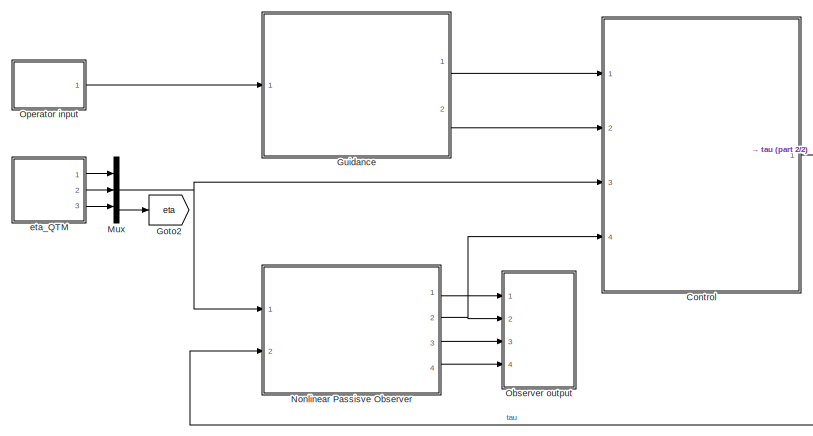
[diagram: root canvas - part 1/2, top left region]
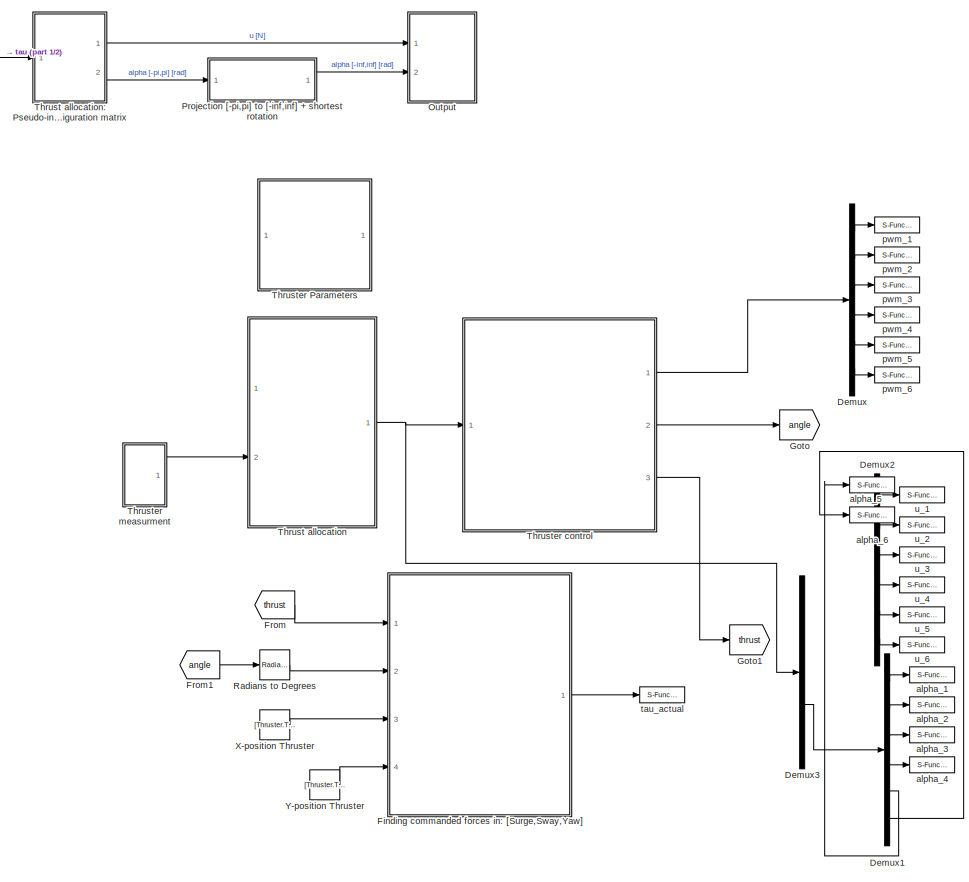
[diagram: root canvas - part 2/2, right side, full height]
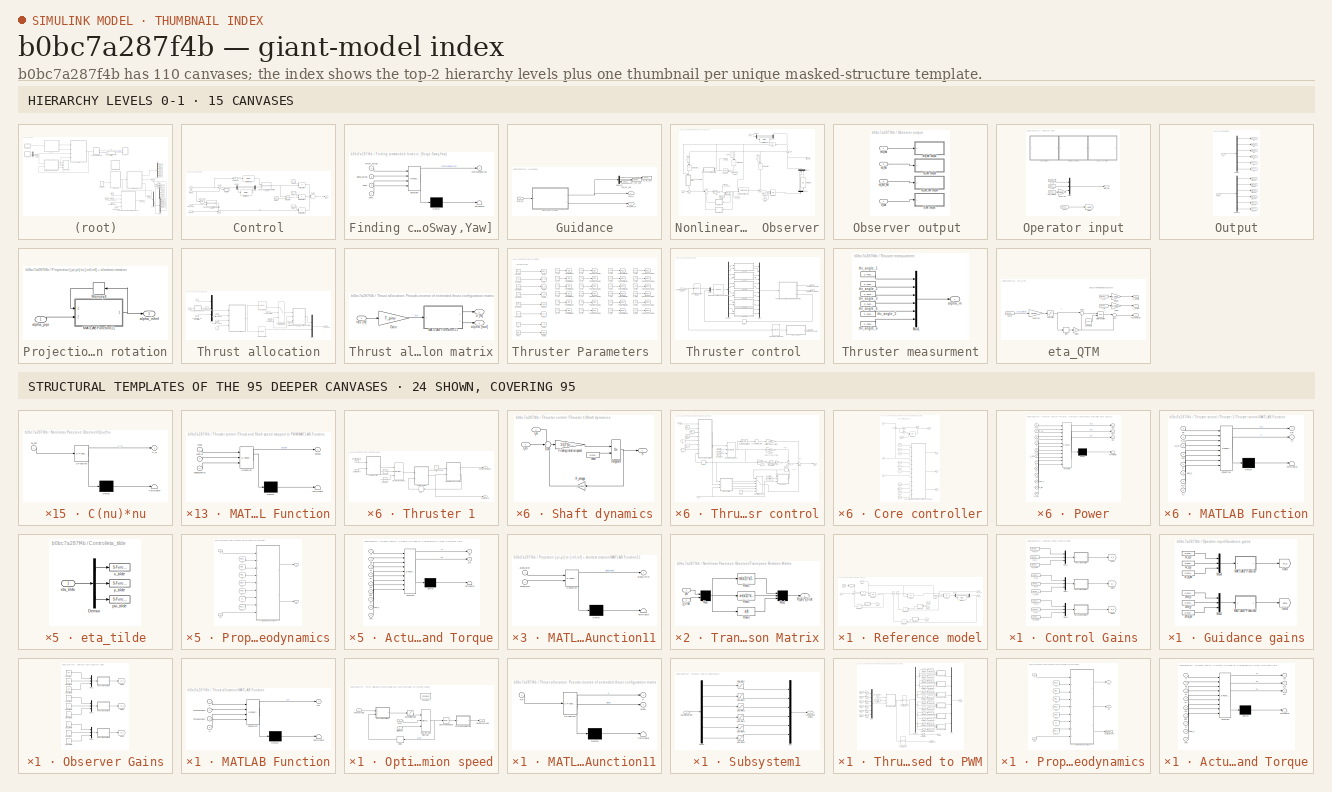
[diagram: thumbnail index - top-2 hierarchy levels (15 canvases) + 24 structural-template representatives of the remaining 95 canvases]
MODEL slx_b0bc7a287f4b
KIND model
CONFIG AbsTol = auto
CONFIG EnableMultiTasking = on
CONFIG FixedStep = 0.01
CONFIG MaxStep = auto
CONFIG MinStep = auto
CONFIG RelTol = 1e-3
CONFIG SampleTimeConstraint = Unconstrained
CONFIG Solver = ode3
CONFIG SolverName = ode3
CONFIG StartTime = 0.0
CONFIG StopTime = inf
BLOCK [SubSystem] Control
  Ports = [4, 1]
  RequestExecContextInheritance = off
  Variant = off
BLOCK [Demux] Control/Demux
  DisplayOption = bar
  Outputs = 3
  Ports = [1, 3]
BLOCK [From] Control/From
  GotoTag = K_p
  TagVisibility = global
BLOCK [From] Control/From1
  GotoTag = K_i
  TagVisibility = global
BLOCK [From] Control/From2
  GotoTag = K_d
  TagVisibility = global
BLOCK [From] Control/From3
  GotoTag = reset
  TagVisibility = global
BLOCK [Integrator] Control/Integrator
  ExternalReset = either
  Ports = [2, 1]
BLOCK [Product] Control/Matrix Multiply
  InputSameDT = off
  Multiplication = Matrix(*)
  OutDataTypeStr = Inherit: Inherit via internal rule
  Ports = [2, 1]
  RndMeth = Floor
  SaturateOnIntegerOverflow = off
BLOCK [Product] Control/Matrix Multiply1
  InputSameDT = off
  Multiplication = Matrix(*)
  OutDataTypeStr = Inherit: Inherit via internal rule
  Ports = [2, 1]
  RndMeth = Floor
  SaturateOnIntegerOverflow = off
BLOCK [Product] Control/Matrix Multiply2
  InputSameDT = off
  Multiplication = Matrix(*)
  OutDataTypeStr = Inherit: Inherit via internal rule
  Ports = [2, 1]
  RndMeth = Floor
  SaturateOnIntegerOverflow = off
BLOCK [Mux] Control/Mux
  DisplayOption = bar
  Inputs = 3
  Ports = [3, 1]
BLOCK [Sum] Control/Sum2
  IconShape = round
  Inputs = |+-
  Ports = [2, 1]
BLOCK [Sum] Control/Sum3
  IconShape = round
  Inputs = |---|
  Ports = [3, 1]
BLOCK [Sum] Control/Sum4
  IconShape = round
  Inputs = -+|
  Ports = [2, 1]
BLOCK [Reference] Control/Transposed rotation matrix in yaw1  REF=marine_gnc/Models/ Kinematics/Transposed rotation  (lib defined in mdl_10d96c221ba8, mdl_45f1105420c6)
 matrix in yaw
  Ports = [2, 1]
  SourceBlock = marine_gnc/Models/ Kinematics/Transposed rotation\n matrix in yaw
BLOCK [Reference] Control/Transposed rotation matrix in yaw2  REF=marine_gnc/Models/ Kinematics/Transposed rotation  (lib defined in mdl_10d96c221ba8, mdl_45f1105420c6)
 matrix in yaw
  Ports = [2, 1]
  SourceBlock = marine_gnc/Models/ Kinematics/Transposed rotation\n matrix in yaw
BLOCK [Reference] Control/[-inf inf] to [-pi pi]  REF=marine_gnc/Utilities/Math Operations/[-inf inf] to [-pi pi]  (lib defined in mdl_10d96c221ba8, mdl_45f1105420c6)
  Ports = [1, 1]
  SourceBlock = marine_gnc/Utilities/Math Operations/[-inf inf] to [-pi pi]
  SourceType = [-inf inf] to [-pi pi]
BLOCK [Reference] Control/[-inf inf] to [-pi pi]1  REF=marine_gnc/Utilities/Math Operations/[-inf inf] to [-pi pi]  (lib defined in mdl_10d96c221ba8, mdl_45f1105420c6)
  Ports = [1, 1]
  SourceBlock = marine_gnc/Utilities/Math Operations/[-inf inf] to [-pi pi]
  SourceType = [-inf inf] to [-pi pi]
BLOCK [Inport] Control/eta
  IconDisplay = Port number
  Port = 3
BLOCK [Inport] Control/eta_d
  IconDisplay = Port number
BLOCK [Inport] Control/eta_dot_d
  IconDisplay = Port number
  Port = 2
BLOCK [SubSystem] Control/eta_tilde
  Ports = [1]
  RequestExecContextInheritance = off
  Variant = off
BLOCK [Demux] Control/eta_tilde/Demux
  DisplayOption = bar
  Outputs = 3
  Ports = [1, 3]
BLOCK [Inport] Control/eta_tilde/eta_tilde
  IconDisplay = Port number
BLOCK [S-Function] Control/eta_tilde/psi_tilde
  CopyFcn = NIVeriStand_MDL_functions('', 'IO_copy');
  DeleteFcn = NIVeriStand_MDL_functions('', 'IO_delete');
  EnableBusSupport = off
  FunctionName = NIVeriStandIO
  MoveFcn = set_param(gcb, 'Mask', 'on');
  Parameters = width dtype portnum stime stype btype
  Ports = [1]
  Priority = 3
  SFcnIsStateOwnerBlock = off
  SFunctionDeploymentMode = off
BLOCK [S-Function] Control/eta_tilde/x_tilde
  CopyFcn = NIVeriStand_MDL_functions('', 'IO_copy');
  DeleteFcn = NIVeriStand_MDL_functions('', 'IO_delete');
  EnableBusSupport = off
  FunctionName = NIVeriStandIO
  MoveFcn = set_param(gcb, 'Mask', 'on');
  Parameters = width dtype portnum stime stype btype
  Ports = [1]
  Priority = 1
  SFcnIsStateOwnerBlock = off
  SFunctionDeploymentMode = off
BLOCK [S-Function] Control/eta_tilde/y_tilde
  CopyFcn = NIVeriStand_MDL_functions('', 'IO_copy');
  DeleteFcn = NIVeriStand_MDL_functions('', 'IO_delete');
  EnableBusSupport = off
  FunctionName = NIVeriStandIO
  MoveFcn = set_param(gcb, 'Mask', 'on');
  Parameters = width dtype portnum stime stype btype
  Ports = [1]
  Priority = 2
  SFcnIsStateOwnerBlock = off
  SFunctionDeploymentMode = off
BLOCK [Inport] Control/nu_hat
  IconDisplay = Port number
  Port = 4
BLOCK [Outport] Control/tau
  IconDisplay = Port number
BLOCK [Fcn] Control/yaw angle
  Expr = u(3)
BLOCK [Fcn] Control/yaw angle1
  Expr = u(3)
BLOCK [Demux] Demux
  Commented = on
  DisplayOption = bar
  Outputs = 6
  Ports = [1, 6]
BLOCK [Demux] Demux1
  Commented = on
  DisplayOption = bar
  Outputs = 6
  Ports = [1, 6]
BLOCK [Demux] Demux2
  Commented = on
  DisplayOption = bar
  Outputs = 6
  Ports = [1, 6]
BLOCK [Demux] Demux3
  Commented = on
  DisplayOption = bar
  Outputs = 2
  Ports = [1, 2]
BLOCK [SubSystem] Finding commanded forces in: [Surge,Sway,Yaw]
  Commented = on
  ErrorFcn = Stateflow.Translate.translate
  PermitHierarchicalResolution = ExplicitOnly
  Ports = [4, 1]
  RequestExecContextInheritance = off
  SFBlockType = MATLAB Function
  TreatAsAtomicUnit = on
  Variant = off
BLOCK [Demux] Finding commanded forces in: [Surge,Sway,Yaw]/ Demux 
  Outputs = 1
  Ports = [1, 1]
BLOCK [S-Function] Finding commanded forces in: [Surge,Sway,Yaw]/ SFunction 
  EnableBusSupport = on
  FunctionName = sf_sfun
  PortCounts = [4 2]
  Ports = [4, 2]
  SFcnIsStateOwnerBlock = off
  SFunctionDeploymentMode = off
  Tag = Stateflow S-Function ctrl_DP 14
BLOCK [Terminator] Finding commanded forces in: [Surge,Sway,Yaw]/ Terminator 
BLOCK [Inport] Finding commanded forces in: [Surge,Sway,Yaw]/PosX
  IconDisplay = Port number
  Port = 3
BLOCK [Inport] Finding commanded forces in: [Surge,Sway,Yaw]/PosY
  IconDisplay = Port number
  Port = 4
BLOCK [Inport] Finding commanded forces in: [Surge,Sway,Yaw]/alpha_actual
  IconDisplay = Port number
  Port = 2
BLOCK [Outport] Finding commanded forces in: [Surge,Sway,Yaw]/commanded_tau
  IconDisplay = Port number
BLOCK [Inport] Finding commanded forces in: [Surge,Sway,Yaw]/thrust_actual
  IconDisplay = Port number
BLOCK [From] From
  Commented = on
  GotoTag = thrust
BLOCK [From] From1
  Commented = on
  GotoTag = angle
BLOCK [Goto] Goto
  Commented = on
  GotoTag = angle
BLOCK [Goto] Goto1
  Commented = on
  GotoTag = thrust
BLOCK [Goto] Goto2
  GotoTag = eta
  TagVisibility = global
BLOCK [SubSystem] Guidance
  Ports = [1, 2]
  RequestExecContextInheritance = off
  Variant = off
BLOCK [Demux] Guidance/Demux
  DisplayOption = bar
  Outputs = 3
  Ports = [1, 3]
BLOCK [SubSystem] Guidance/Reference model
  Ports = [1, 2]
  RequestExecContextInheritance = off
  Variant = off
BLOCK [Demux] Guidance/Reference model/Demux1
  DisplayOption = bar
  Outputs = 3
  Ports = [1, 3]
BLOCK [From] Guidance/Reference model/From
  GotoTag = eta
  TagVisibility = global
BLOCK [From] Guidance/Reference model/From1
  GotoTag = reset
  TagVisibility = global
BLOCK [From] Guidance/Reference model/From2
  GotoTag = w_d
  TagVisibility = global
BLOCK [From] Guidance/Reference model/From3
  GotoTag = w_d
  TagVisibility = global
BLOCK [From] Guidance/Reference model/From4
  GotoTag = w_d
  TagVisibility = global
BLOCK [From] Guidance/Reference model/From5
  GotoTag = w_d
  TagVisibility = global
BLOCK [From] Guidance/Reference model/From6
  GotoTag = zeta
  TagVisibility = global
BLOCK [Integrator] Guidance/Reference model/Integrator1
  ExternalReset = either
  InitialConditionSource = external
  Ports = [3, 1]
BLOCK [Integrator] Guidance/Reference model/Integrator2
  ExternalReset = either
  Ports = [2, 1]
BLOCK [Integrator] Guidance/Reference model/Integrator3
  ExternalReset = either
  Ports = [2, 1]
BLOCK [Product] Guidance/Reference model/Matrix Multiply
  InputSameDT = off
  Multiplication = Matrix(*)
  OutDataTypeStr = Inherit: Inherit via internal rule
  Ports = [2, 1]
  RndMeth = Floor
  SaturateOnIntegerOverflow = off
BLOCK [Product] Guidance/Reference model/Matrix Multiply1
  InputSameDT = off
  Multiplication = Matrix(*)
  OutDataTypeStr = Inherit: Inherit via internal rule
  Ports = [2, 1]
  RndMeth = Floor
  SaturateOnIntegerOverflow = off
BLOCK [Product] Guidance/Reference model/Matrix Multiply2
  InputSameDT = off
  Multiplication = Matrix(*)
  OutDataTypeStr = Inherit: Inherit via internal rule
  Ports = [2, 1]
  RndMeth = Floor
  SaturateOnIntegerOverflow = off
BLOCK [Product] Guidance/Reference model/Matrix Multiply5
  InputSameDT = off
  Multiplication = Matrix(*)
  OutDataTypeStr = Inherit: Inherit via internal rule
  Ports = [2, 1]
  RndMeth = Floor
  SaturateOnIntegerOverflow = off
BLOCK [Mux] Guidance/Reference model/Mux1
  DisplayOption = bar
  Inputs = 3
  Ports = [3, 1]
BLOCK [Sum] Guidance/Reference model/Sum
  IconShape = round
  InputSameDT = off
  Inputs = |+-
  OutDataTypeStr = Inherit: Inherit via internal rule
  Ports = [2, 1]
  SaturateOnIntegerOverflow = off
BLOCK [Sum] Guidance/Reference model/Sum2
  IconShape = round
  Inputs = |+-
  Ports = [2, 1]
BLOCK [Sum] Guidance/Reference model/Sum5
  IconShape = round
  Inputs = |+-
  Ports = [2, 1]
BLOCK [Reference] Guidance/Reference model/[-inf inf] to [-pi pi]1  REF=marine_gnc/Utilities/Math Operations/[-inf inf] to [-pi pi]  (lib defined in mdl_10d96c221ba8, mdl_45f1105420c6)
  Ports = [1, 1]
  SourceBlock = marine_gnc/Utilities/Math Operations/[-inf inf] to [-pi pi]
  SourceType = [-inf inf] to [-pi pi]
BLOCK [Outport] Guidance/Reference model/eta_d
  IconDisplay = Port number
  InitialOutput = 0
BLOCK [Outport] Guidance/Reference model/eta_dot_d
  IconDisplay = Port number
  InitialOutput = 0
  Port = 2
BLOCK [Inport] Guidance/Reference model/eta_ref
  IconDisplay = Port number
BLOCK [SubSystem] Guidance/Reference model/w_d*w_d
  ErrorFcn = Stateflow.Translate.translate
  PermitHierarchicalResolution = ExplicitOnly
  Ports = [1, 1]
  RequestExecContextInheritance = off
  SFBlockType = MATLAB Function
  TreatAsAtomicUnit = on
  Variant = off
BLOCK [Demux] Guidance/Reference model/w_d*w_d/ Demux 
  Outputs = 1
  Ports = [1, 1]
BLOCK [S-Function] Guidance/Reference model/w_d*w_d/ SFunction 
  EnableBusSupport = on
  FunctionName = sf_sfun
  PortCounts = [1 2]
  Ports = [1, 2]
  SFcnIsStateOwnerBlock = off
  SFunctionDeploymentMode = off
  Tag = Stateflow S-Function ctrl_DP 51
BLOCK [Terminator] Guidance/Reference model/w_d*w_d/ Terminator 
BLOCK [Inport] Guidance/Reference model/w_d*w_d/w_d
  IconDisplay = Port number
BLOCK [Outport] Guidance/Reference model/w_d*w_d/y
  IconDisplay = Port number
BLOCK [SubSystem] Guidance/Reference model/w_d*w_d1
  ErrorFcn = Stateflow.Translate.translate
  PermitHierarchicalResolution = ExplicitOnly
  Ports = [2, 1]
  RequestExecContextInheritance = off
  SFBlockType = MATLAB Function
  TreatAsAtomicUnit = on
  Variant = off
BLOCK [Demux] Guidance/Reference model/w_d*w_d1/ Demux 
  Outputs = 1
  Ports = [1, 1]
BLOCK [S-Function] Guidance/Reference model/w_d*w_d1/ SFunction 
  EnableBusSupport = on
  FunctionName = sf_sfun
  PortCounts = [2 2]
  Ports = [2, 2]
  SFcnIsStateOwnerBlock = off
  SFunctionDeploymentMode = off
  Tag = Stateflow S-Function ctrl_DP 52
BLOCK [Terminator] Guidance/Reference model/w_d*w_d1/ Terminator 
BLOCK [Inport] Guidance/Reference model/w_d*w_d1/w_d
  IconDisplay = Port number
BLOCK [Outport] Guidance/Reference model/w_d*w_d1/y
  IconDisplay = Port number
BLOCK [Inport] Guidance/Reference model/w_d*w_d1/zeta
  IconDisplay = Port number
  Port = 2
BLOCK [SubSystem] Guidance/Reference model/w_d^-2
  ErrorFcn = Stateflow.Translate.translate
  PermitHierarchicalResolution = ExplicitOnly
  Ports = [1, 1]
  RequestExecContextInheritance = off
  SFBlockType = MATLAB Function
  TreatAsAtomicUnit = on
  Variant = off
BLOCK [Demux] Guidance/Reference model/w_d^-2/ Demux 
  Outputs = 1
  Ports = [1, 1]
BLOCK [S-Function] Guidance/Reference model/w_d^-2/ SFunction 
  EnableBusSupport = on
  FunctionName = sf_sfun
  PortCounts = [1 2]
  Ports = [1, 2]
  SFcnIsStateOwnerBlock = off
  SFunctionDeploymentMode = off
  Tag = Stateflow S-Function ctrl_DP 53
BLOCK [Terminator] Guidance/Reference model/w_d^-2/ Terminator 
BLOCK [Inport] Guidance/Reference model/w_d^-2/w_d
  IconDisplay = Port number
BLOCK [Outport] Guidance/Reference model/w_d^-2/y
  IconDisplay = Port number
BLOCK [SubSystem] Guidance/Reference model/w_d^3
  ErrorFcn = Stateflow.Translate.translate
  PermitHierarchicalResolution = ExplicitOnly
  Ports = [1, 1]
  RequestExecContextInheritance = off
  SFBlockType = MATLAB Function
  TreatAsAtomicUnit = on
  Variant = off
BLOCK [Demux] Guidance/Reference model/w_d^3/ Demux 
  Outputs = 1
  Ports = [1, 1]
BLOCK [S-Function] Guidance/Reference model/w_d^3/ SFunction 
  EnableBusSupport = on
  FunctionName = sf_sfun
  PortCounts = [1 2]
  Ports = [1, 2]
  SFcnIsStateOwnerBlock = off
  SFunctionDeploymentMode = off
  Tag = Stateflow S-Function ctrl_DP 54
BLOCK [Terminator] Guidance/Reference model/w_d^3/ Terminator 
BLOCK [Inport] Guidance/Reference model/w_d^3/w_d
  IconDisplay = Port number
BLOCK [Outport] Guidance/Reference model/w_d^3/y
  IconDisplay = Port number
BLOCK [Outport] Guidance/eta_d
  IconDisplay = Port number
BLOCK [Outport] Guidance/eta_dot_d
  IconDisplay = Port number
  Port = 2
BLOCK [Inport] Guidance/eta_ref 
  IconDisplay = Port number
BLOCK [S-Function] Guidance/psi_ref_out
  CopyFcn = NIVeriStand_MDL_functions('', 'IO_copy');
  DeleteFcn = NIVeriStand_MDL_functions('', 'IO_delete');
  EnableBusSupport = off
  FunctionName = NIVeriStandIO
  MoveFcn = set_param(gcb, 'Mask', 'on');
  Parameters = width dtype portnum stime stype btype
  Ports = [1]
  Priority = 3
  SFcnIsStateOwnerBlock = off
  SFunctionDeploymentMode = off
BLOCK [S-Function] Guidance/x_ref_out
  CopyFcn = NIVeriStand_MDL_functions('', 'IO_copy');
  DeleteFcn = NIVeriStand_MDL_functions('', 'IO_delete');
  EnableBusSupport = off
  FunctionName = NIVeriStandIO
  MoveFcn = set_param(gcb, 'Mask', 'on');
  Parameters = width dtype portnum stime stype btype
  Ports = [1]
  Priority = 1
  SFcnIsStateOwnerBlock = off
  SFunctionDeploymentMode = off
BLOCK [S-Function] Guidance/y_ref_out
  CopyFcn = NIVeriStand_MDL_functions('', 'IO_copy');
  DeleteFcn = NIVeriStand_MDL_functions('', 'IO_delete');
  EnableBusSupport = off
  FunctionName = NIVeriStandIO
  MoveFcn = set_param(gcb, 'Mask', 'on');
  Parameters = width dtype portnum stime stype btype
  Ports = [1]
  Priority = 2
  SFcnIsStateOwnerBlock = off
  SFunctionDeploymentMode = off
BLOCK [Mux] Mux
  DisplayOption = bar
  Inputs = 3
  Ports = [3, 1]
BLOCK [SubSystem] Nonlinear Passisve Observer
  Ports = [2, 4]
  RequestExecContextInheritance = off
  Variant = off
BLOCK [SubSystem] Nonlinear Passisve Observer/C(nu)*nu
  ErrorFcn = Stateflow.Translate.translate
  PermitHierarchicalResolution = ExplicitOnly
  Ports = [1, 1]
  RequestExecContextInheritance = off
  SFBlockType = MATLAB Function
  TreatAsAtomicUnit = on
  Variant = off
BLOCK [Demux] Nonlinear Passisve Observer/C(nu)*nu/ Demux 
  Outputs = 1
  Ports = [1, 1]
BLOCK [S-Function] Nonlinear Passisve Observer/C(nu)*nu/ SFunction 
  EnableBusSupport = on
  FunctionName = sf_sfun
  PortCounts = [1 2]
  Ports = [1, 2]
  SFcnIsStateOwnerBlock = off
  SFunctionDeploymentMode = off
  Tag = Stateflow S-Function ctrl_DP 65
BLOCK [Terminator] Nonlinear Passisve Observer/C(nu)*nu/ Terminator 
BLOCK [Outport] Nonlinear Passisve Observer/C(nu)*nu/C_nl
  IconDisplay = Port number
BLOCK [Inport] Nonlinear Passisve Observer/C(nu)*nu/nu_hat
  IconDisplay = Port number
BLOCK [SubSystem] Nonlinear Passisve Observer/D(nu)*nu
  ErrorFcn = Stateflow.Translate.translate
  PermitHierarchicalResolution = ExplicitOnly
  Ports = [1, 1]
  RequestExecContextInheritance = off
  SFBlockType = MATLAB Function
  TreatAsAtomicUnit = on
  Variant = off
BLOCK [Demux] Nonlinear Passisve Observer/D(nu)*nu/ Demux 
  Outputs = 1
  Ports = [1, 1]
BLOCK [S-Function] Nonlinear Passisve Observer/D(nu)*nu/ SFunction 
  EnableBusSupport = on
  FunctionName = sf_sfun
  PortCounts = [1 2]
  Ports = [1, 2]
  SFcnIsStateOwnerBlock = off
  SFunctionDeploymentMode = off
  Tag = Stateflow S-Function ctrl_DP 66
BLOCK [Terminator] Nonlinear Passisve Observer/D(nu)*nu/ Terminator 
BLOCK [Outport] Nonlinear Passisve Observer/D(nu)*nu/D_nl
  IconDisplay = Port number
BLOCK [Inport] Nonlinear Passisve Observer/D(nu)*nu/nu_hat
  IconDisplay = Port number
BLOCK [Demux] Nonlinear Passisve Observer/Demux
  DisplayOption = bar
  Outputs = 3
  Ports = [1, 3]
BLOCK [Demux] Nonlinear Passisve Observer/Demux1
  DisplayOption = bar
  Outputs = 3
  Ports = [1, 3]
BLOCK [Fcn] Nonlinear Passisve Observer/Fcn
  Expr = u(3)
BLOCK [From] Nonlinear Passisve Observer/From
  GotoTag = eta
  TagVisibility = global
BLOCK [From] Nonlinear Passisve Observer/From1
  GotoTag = reset
  TagVisibility = global
BLOCK [From] Nonlinear Passisve Observer/From2
  GotoTag = reset
  TagVisibility = global
BLOCK [From] Nonlinear Passisve Observer/From3
  GotoTag = K_2
  TagVisibility = global
BLOCK [From] Nonlinear Passisve Observer/From4
  GotoTag = K_3
  TagVisibility = global
BLOCK [From] Nonlinear Passisve Observer/From5
  GotoTag = K_4
  TagVisibility = global
BLOCK [From] Nonlinear Passisve Observer/From6
  GotoTag = reset
  TagVisibility = global
BLOCK [Integrator] Nonlinear Passisve Observer/Integrator
  ExternalReset = either
  InitialConditionSource = external
  Ports = [3, 1]
BLOCK [Integrator] Nonlinear Passisve Observer/Integrator1
  ExternalReset = either
  InitialCondition = [0 0 0]'
  Ports = [2, 1]
BLOCK [Integrator] Nonlinear Passisve Observer/Integrator2
  ExternalReset = either
  InitialCondition = [0 0 0]'
  Ports = [2, 1]
BLOCK [Gain] Nonlinear Passisve Observer/M^-1
  Gain = [0.008021948049864 0 0;0 0.010098125265799 1.104781662647098e-04;0 3.303823257820844e-05 0.020839338676560]
  Multiplication = Matrix(K*u)
  OutDataTypeStr = Inherit: Inherit via internal rule
  ParamDataTypeStr = Inherit: Inherit via internal rule
  SaturateOnIntegerOverflow = off
BLOCK [Product] Nonlinear Passisve Observer/Matrix Multiply
  InputSameDT = off
  Multiplication = Matrix(*)
  OutDataTypeStr = Inherit: Inherit via internal rule
  Ports = [2, 1]
  RndMeth = Floor
  SaturateOnIntegerOverflow = off
BLOCK [Product] Nonlinear Passisve Observer/Matrix Multiply1
  InputSameDT = off
  Multiplication = Matrix(*)
  OutDataTypeStr = Inherit: Inherit via internal rule
  Ports = [2, 1]
  RndMeth = Floor
  SaturateOnIntegerOverflow = off
BLOCK [Product] Nonlinear Passisve Observer/Matrix Multiply2
  InputSameDT = off
  Multiplication = Matrix(*)
  OutDataTypeStr = Inherit: Inherit via internal rule
  Ports = [2, 1]
  RndMeth = Floor
  SaturateOnIntegerOverflow = off
BLOCK [Mux] Nonlinear Passisve Observer/Mux1
  DisplayOption = bar
  Inputs = 3
  Ports = [3, 1]
BLOCK [Mux] Nonlinear Passisve Observer/Mux2
  DisplayOption = bar
  Inputs = 3
  Ports = [3, 1]
BLOCK [Reference] Nonlinear Passisve Observer/Rotation matrix in yaw 1  REF=marine_gnc/Models/ Kinematics/Rotation matrix  (lib defined in mdl_10d96c221ba8, mdl_45f1105420c6)
in yaw 
  Ports = [2, 1]
  SourceBlock = marine_gnc/Models/ Kinematics/Rotation matrix\nin yaw
BLOCK [Sum] Nonlinear Passisve Observer/Sum
  IconShape = round
  InputSameDT = off
  Inputs = +|-
  OutDataTypeStr = Inherit: Inherit via internal rule
  Ports = [2, 1]
  SaturateOnIntegerOverflow = off
BLOCK [Sum] Nonlinear Passisve Observer/Sum1
  IconShape = round
  InputSameDT = off
  Inputs = ++|
  OutDataTypeStr = Inherit: Inherit via internal rule
  Ports = [2, 1]
  SaturateOnIntegerOverflow = off
BLOCK [Sum] Nonlinear Passisve Observer/Sum2
  IconShape = round
  InputSameDT = off
  Inputs = ++|
  OutDataTypeStr = Inherit: Inherit via internal rule
  Ports = [2, 1]
  SaturateOnIntegerOverflow = off
BLOCK [Sum] Nonlinear Passisve Observer/Sum3
  IconShape = round
  InputSameDT = off
  Inputs = +|+|--
  OutDataTypeStr = Inherit: Inherit via internal rule
  Ports = [4, 1]
  SaturateOnIntegerOverflow = off
BLOCK [SubSystem] Nonlinear Passisve Observer/Transpose Rotation Matrix
  Ports = [2, 1]
  RequestExecContextInheritance = off
  Variant = off
BLOCK [Mux] Nonlinear Passisve Observer/Transpose Rotation Matrix/Mux
  Inputs = 2
  Ports = [2, 1]
BLOCK [Mux] Nonlinear Passisve Observer/Transpose Rotation Matrix/Mux1
  Inputs = 3
  Ports = [3, 1]
BLOCK [Outport] Nonlinear Passisve Observer/Transpose Rotation Matrix/R(psi)'*y_tilde
  IconDisplay = Port number
BLOCK [Fcn] Nonlinear Passisve Observer/Transpose Rotation Matrix/Row1
  Expr = cos(u(1))*u(2)+sin(u(1))*u(3)
BLOCK [Fcn] Nonlinear Passisve Observer/Transpose Rotation Matrix/Row2
  Expr = -sin(u(1))*u(2)+cos(u(1))*u(3)
BLOCK [Fcn] Nonlinear Passisve Observer/Transpose Rotation Matrix/Row3
  Expr = u(4)
BLOCK [Inport] Nonlinear Passisve Observer/Transpose Rotation Matrix/psi
  IconDisplay = Port number
BLOCK [Inport] Nonlinear Passisve Observer/Transpose Rotation Matrix/y_tilde
  IconDisplay = Port number
  Port = 2
BLOCK [SubSystem] Nonlinear Passisve Observer/Transpose Rotation matrix
  Ports = [2, 1]
  RequestExecContextInheritance = off
  Variant = off
BLOCK [Mux] Nonlinear Passisve Observer/Transpose Rotation matrix/Mux
  Inputs = 2
  Ports = [2, 1]
BLOCK [Mux] Nonlinear Passisve Observer/Transpose Rotation matrix/Mux1
  Inputs = 3
  Ports = [3, 1]
BLOCK [Outport] Nonlinear Passisve Observer/Transpose Rotation matrix/R(psi)'*b_hat
  IconDisplay = Port number
BLOCK [Fcn] Nonlinear Passisve Observer/Transpose Rotation matrix/Row1
  Expr = cos(u(1))*u(2)+sin(u(1))*u(3)
BLOCK [Fcn] Nonlinear Passisve Observer/Transpose Rotation matrix/Row2
  Expr = -sin(u(1))*u(2)+cos(u(1))*u(3)
BLOCK [Fcn] Nonlinear Passisve Observer/Transpose Rotation matrix/Row3
  Expr = u(4)
BLOCK [Inport] Nonlinear Passisve Observer/Transpose Rotation matrix/b_hat
  IconDisplay = Port number
  Port = 2
BLOCK [Inport] Nonlinear Passisve Observer/Transpose Rotation matrix/psi
  IconDisplay = Port number
BLOCK [Reference] Nonlinear Passisve Observer/[-inf inf] to [-pi pi]  REF=marine_gnc/Utilities/Math Operations/[-inf inf] to [-pi pi]  (lib defined in mdl_10d96c221ba8, mdl_45f1105420c6)
  Ports = [1, 1]
  SourceBlock = marine_gnc/Utilities/Math Operations/[-inf inf] to [-pi pi]
  SourceType = [-inf inf] to [-pi pi]
BLOCK [Reference] Nonlinear Passisve Observer/[-inf inf] to [-pi pi]1  REF=marine_gnc/Utilities/Math Operations/[-inf inf] to [-pi pi]  (lib defined in mdl_10d96c221ba8, mdl_45f1105420c6)
  Ports = [1, 1]
  SourceBlock = marine_gnc/Utilities/Math Operations/[-inf inf] to [-pi pi]
  SourceType = [-inf inf] to [-pi pi]
BLOCK [Outport] Nonlinear Passisve Observer/b_hat
  IconDisplay = Port number
  Port = 4
BLOCK [Inport] Nonlinear Passisve Observer/eta
  IconDisplay = Port number
BLOCK [Outport] Nonlinear Passisve Observer/eta_hat
  IconDisplay = Port number
BLOCK [Outport] Nonlinear Passisve Observer/nu_dot_hat
  IconDisplay = Port number
  Port = 3
BLOCK [Outport] Nonlinear Passisve Observer/nu_hat
  IconDisplay = Port number
  Port = 2
BLOCK [Inport] Nonlinear Passisve Observer/tau
  IconDisplay = Port number
  Port = 2
BLOCK [SubSystem] Observer output 
  Ports = [4]
  RequestExecContextInheritance = off
  Variant = off
BLOCK [Inport] Observer output /b_hat
  IconDisplay = Port number
  Port = 4
BLOCK [SubSystem] Observer output /b_hat output
  Ports = [1]
  RequestExecContextInheritance = off
  Variant = off
BLOCK [Demux] Observer output /b_hat output/Demux
  DisplayOption = bar
  Outputs = 3
  Ports = [1, 3]
BLOCK [Inport] Observer output /b_hat output/b_hat
  IconDisplay = Port number
BLOCK [S-Function] Observer output /b_hat output/b_psi_hat
  CopyFcn = NIVeriStand_MDL_functions('', 'IO_copy');
  DeleteFcn = NIVeriStand_MDL_functions('', 'IO_delete');
  EnableBusSupport = off
  FunctionName = NIVeriStandIO
  MoveFcn = set_param(gcb, 'Mask', 'on');
  Parameters = width dtype portnum stime stype btype
  Ports = [1]
  Priority = 3
  SFcnIsStateOwnerBlock = off
  SFunctionDeploymentMode = off
BLOCK [S-Function] Observer output /b_hat output/b_x_hat
  CopyFcn = NIVeriStand_MDL_functions('', 'IO_copy');
  DeleteFcn = NIVeriStand_MDL_functions('', 'IO_delete');
  EnableBusSupport = off
  FunctionName = NIVeriStandIO
  MoveFcn = set_param(gcb, 'Mask', 'on');
  Parameters = width dtype portnum stime stype btype
  Ports = [1]
  Priority = 1
  SFcnIsStateOwnerBlock = off
  SFunctionDeploymentMode = off
BLOCK [S-Function] Observer output /b_hat output/b_y_hat
  CopyFcn = NIVeriStand_MDL_functions('', 'IO_copy');
  DeleteFcn = NIVeriStand_MDL_functions('', 'IO_delete');
  EnableBusSupport = off
  FunctionName = NIVeriStandIO
  MoveFcn = set_param(gcb, 'Mask', 'on');
  Parameters = width dtype portnum stime stype btype
  Ports = [1]
  Priority = 2
  SFcnIsStateOwnerBlock = off
  SFunctionDeploymentMode = off
BLOCK [Inport] Observer output /eta_hat
  IconDisplay = Port number
BLOCK [SubSystem] Observer output /eta_hat output
  Ports = [1]
  RequestExecContextInheritance = off
  Variant = off
BLOCK [Demux] Observer output /eta_hat output/Demux
  DisplayOption = bar
  Outputs = 3
  Ports = [1, 3]
BLOCK [Inport] Observer output /eta_hat output/eta-_hat
  IconDisplay = Port number
BLOCK [S-Function] Observer output /eta_hat output/psi_hat
  CopyFcn = NIVeriStand_MDL_functions('', 'IO_copy');
  DeleteFcn = NIVeriStand_MDL_functions('', 'IO_delete');
  EnableBusSupport = off
  FunctionName = NIVeriStandIO
  MoveFcn = set_param(gcb, 'Mask', 'on');
  Parameters = width dtype portnum stime stype btype
  Ports = [1]
  Priority = 3
  SFcnIsStateOwnerBlock = off
  SFunctionDeploymentMode = off
BLOCK [S-Function] Observer output /eta_hat output/x_hat
  CopyFcn = NIVeriStand_MDL_functions('', 'IO_copy');
  DeleteFcn = NIVeriStand_MDL_functions('', 'IO_delete');
  EnableBusSupport = off
  FunctionName = NIVeriStandIO
  MoveFcn = set_param(gcb, 'Mask', 'on');
  Parameters = width dtype portnum stime stype btype
  Ports = [1]
  Priority = 1
  SFcnIsStateOwnerBlock = off
  SFunctionDeploymentMode = off
BLOCK [S-Function] Observer output /eta_hat output/y_hat
  CopyFcn = NIVeriStand_MDL_functions('', 'IO_copy');
  DeleteFcn = NIVeriStand_MDL_functions('', 'IO_delete');
  EnableBusSupport = off
  FunctionName = NIVeriStandIO
  MoveFcn = set_param(gcb, 'Mask', 'on');
  Parameters = width dtype portnum stime stype btype
  Ports = [1]
  Priority = 2
  SFcnIsStateOwnerBlock = off
  SFunctionDeploymentMode = off
BLOCK [Inport] Observer output /nu_dot_hat
  IconDisplay = Port number
  Port = 3
BLOCK [SubSystem] Observer output /nu_dot_hat output
  Ports = [1]
  RequestExecContextInheritance = off
  Variant = off
BLOCK [Demux] Observer output /nu_dot_hat output/Demux
  DisplayOption = bar
  Outputs = 3
  Ports = [1, 3]
BLOCK [Inport] Observer output /nu_dot_hat output/nu_dot_hat
  IconDisplay = Port number
BLOCK [S-Function] Observer output /nu_dot_hat output/r_dot_hat
  CopyFcn = NIVeriStand_MDL_functions('', 'IO_copy');
  DeleteFcn = NIVeriStand_MDL_functions('', 'IO_delete');
  EnableBusSupport = off
  FunctionName = NIVeriStandIO
  MoveFcn = set_param(gcb, 'Mask', 'on');
  Parameters = width dtype portnum stime stype btype
  Ports = [1]
  Priority = 3
  SFcnIsStateOwnerBlock = off
  SFunctionDeploymentMode = off
BLOCK [S-Function] Observer output /nu_dot_hat output/u_dot_hat
  CopyFcn = NIVeriStand_MDL_functions('', 'IO_copy');
  DeleteFcn = NIVeriStand_MDL_functions('', 'IO_delete');
  EnableBusSupport = off
  FunctionName = NIVeriStandIO
  MoveFcn = set_param(gcb, 'Mask', 'on');
  Parameters = width dtype portnum stime stype btype
  Ports = [1]
  Priority = 1
  SFcnIsStateOwnerBlock = off
  SFunctionDeploymentMode = off
BLOCK [S-Function] Observer output /nu_dot_hat output/v_dot_hat
  CopyFcn = NIVeriStand_MDL_functions('', 'IO_copy');
  DeleteFcn = NIVeriStand_MDL_functions('', 'IO_delete');
  EnableBusSupport = off
  FunctionName = NIVeriStandIO
  MoveFcn = set_param(gcb, 'Mask', 'on');
  Parameters = width dtype portnum stime stype btype
  Ports = [1]
  Priority = 2
  SFcnIsStateOwnerBlock = off
  SFunctionDeploymentMode = off
BLOCK [Inport] Observer output /nu_hat
  IconDisplay = Port number
  Port = 2
BLOCK [SubSystem] Observer output /nu_hat output
  Ports = [1]
  RequestExecContextInheritance = off
  Variant = off
BLOCK [Demux] Observer output /nu_hat output/Demux
  DisplayOption = bar
  Outputs = 3
  Ports = [1, 3]
BLOCK [Inport] Observer output /nu_hat output/nu_hat
  IconDisplay = Port number
BLOCK [S-Function] Observer output /nu_hat output/r_hat
  CopyFcn = NIVeriStand_MDL_functions('', 'IO_copy');
  DeleteFcn = NIVeriStand_MDL_functions('', 'IO_delete');
  EnableBusSupport = off
  FunctionName = NIVeriStandIO
  MoveFcn = set_param(gcb, 'Mask', 'on');
  Parameters = width dtype portnum stime stype btype
  Ports = [1]
  Priority = 3
  SFcnIsStateOwnerBlock = off
  SFunctionDeploymentMode = off
BLOCK [S-Function] Observer output /nu_hat output/u_hat
  CopyFcn = NIVeriStand_MDL_functions('', 'IO_copy');
  DeleteFcn = NIVeriStand_MDL_functions('', 'IO_delete');
  EnableBusSupport = off
  FunctionName = NIVeriStandIO
  MoveFcn = set_param(gcb, 'Mask', 'on');
  Parameters = width dtype portnum stime stype btype
  Ports = [1]
  Priority = 1
  SFcnIsStateOwnerBlock = off
  SFunctionDeploymentMode = off
BLOCK [S-Function] Observer output /nu_hat output/v_hat
  CopyFcn = NIVeriStand_MDL_functions('', 'IO_copy');
  DeleteFcn = NIVeriStand_MDL_functions('', 'IO_delete');
  EnableBusSupport = off
  FunctionName = NIVeriStandIO
  MoveFcn = set_param(gcb, 'Mask', 'on');
  Parameters = width dtype portnum stime stype btype
  Ports = [1]
  Priority = 2
  SFcnIsStateOwnerBlock = off
  SFunctionDeploymentMode = off
BLOCK [SubSystem] Operator input
  Ports = [0, 1]
  RequestExecContextInheritance = off
  Variant = off
BLOCK [SubSystem] Operator input/Control Gains
  Ports = []
  RequestExecContextInheritance = off
  Variant = off
BLOCK [Goto] Operator input/Control Gains/Goto2
  GotoTag = K_p
  TagVisibility = global
BLOCK [Goto] Operator input/Control Gains/Goto3
  GotoTag = K_i
  TagVisibility = global
BLOCK [Goto] Operator input/Control Gains/Goto4
  GotoTag = K_d
  TagVisibility = global
BLOCK [S-Function] Operator input/Control Gains/K_d_psi
  CopyFcn = NIVeriStand_MDL_functions('', 'IO_copy');
  DeleteFcn = NIVeriStand_MDL_functions('', 'IO_delete');
  EnableBusSupport = off
  FunctionName = NIVeriStandIO
  MoveFcn = set_param(gcb, 'Mask', 'on');
  Parameters = width dtype portnum stime stype btype
  Ports = [0, 1]
  Priority = 7
  SFcnIsStateOwnerBlock = off
  SFunctionDeploymentMode = off
BLOCK [S-Function] Operator input/Control Gains/K_d_x
  CopyFcn = NIVeriStand_MDL_functions('', 'IO_copy');
  DeleteFcn = NIVeriStand_MDL_functions('', 'IO_delete');
  EnableBusSupport = off
  FunctionName = NIVeriStandIO
  MoveFcn = set_param(gcb, 'Mask', 'on');
  Parameters = width dtype portnum stime stype btype
  Ports = [0, 1]
  Priority = 8
  SFcnIsStateOwnerBlock = off
  SFunctionDeploymentMode = off
BLOCK [S-Function] Operator input/Control Gains/K_d_y
  CopyFcn = NIVeriStand_MDL_functions('', 'IO_copy');
  DeleteFcn = NIVeriStand_MDL_functions('', 'IO_delete');
  EnableBusSupport = off
  FunctionName = NIVeriStandIO
  MoveFcn = set_param(gcb, 'Mask', 'on');
  Parameters = width dtype portnum stime stype btype
  Ports = [0, 1]
  Priority = 9
  SFcnIsStateOwnerBlock = off
  SFunctionDeploymentMode = off
BLOCK [S-Function] Operator input/Control Gains/K_i_psi
  CopyFcn = NIVeriStand_MDL_functions('', 'IO_copy');
  DeleteFcn = NIVeriStand_MDL_functions('', 'IO_delete');
  EnableBusSupport = off
  FunctionName = NIVeriStandIO
  MoveFcn = set_param(gcb, 'Mask', 'on');
  Parameters = width dtype portnum stime stype btype
  Ports = [0, 1]
  Priority = 4
  SFcnIsStateOwnerBlock = off
  SFunctionDeploymentMode = off
BLOCK [S-Function] Operator input/Control Gains/K_i_x
  CopyFcn = NIVeriStand_MDL_functions('', 'IO_copy');
  DeleteFcn = NIVeriStand_MDL_functions('', 'IO_delete');
  EnableBusSupport = off
  FunctionName = NIVeriStandIO
  MoveFcn = set_param(gcb, 'Mask', 'on');
  Parameters = width dtype portnum stime stype btype
  Ports = [0, 1]
  Priority = 5
  SFcnIsStateOwnerBlock = off
  SFunctionDeploymentMode = off
BLOCK [S-Function] Operator input/Control Gains/K_i_y
  CopyFcn = NIVeriStand_MDL_functions('', 'IO_copy');
  DeleteFcn = NIVeriStand_MDL_functions('', 'IO_delete');
  EnableBusSupport = off
  FunctionName = NIVeriStandIO
  MoveFcn = set_param(gcb, 'Mask', 'on');
  Parameters = width dtype portnum stime stype btype
  Ports = [0, 1]
  Priority = 6
  SFcnIsStateOwnerBlock = off
  SFunctionDeploymentMode = off
BLOCK [S-Function] Operator input/Control Gains/K_p_psi
  CopyFcn = NIVeriStand_MDL_functions('', 'IO_copy');
  DeleteFcn = NIVeriStand_MDL_functions('', 'IO_delete');
  EnableBusSupport = off
  FunctionName = NIVeriStandIO
  MoveFcn = set_param(gcb, 'Mask', 'on');
  Parameters = width dtype portnum stime stype btype
  Ports = [0, 1]
  Priority = 3
  SFcnIsStateOwnerBlock = off
  SFunctionDeploymentMode = off
BLOCK [S-Function] Operator input/Control Gains/K_p_x
  CopyFcn = NIVeriStand_MDL_functions('', 'IO_copy');
  DeleteFcn = NIVeriStand_MDL_functions('', 'IO_delete');
  EnableBusSupport = off
  FunctionName = NIVeriStandIO
  MoveFcn = set_param(gcb, 'Mask', 'on');
  Parameters = width dtype portnum stime stype btype
  Ports = [0, 1]
  Priority = 1
  SFcnIsStateOwnerBlock = off
  SFunctionDeploymentMode = off
BLOCK [S-Function] Operator input/Control Gains/K_p_y
  CopyFcn = NIVeriStand_MDL_functions('', 'IO_copy');
  DeleteFcn = NIVeriStand_MDL_functions('', 'IO_delete');
  EnableBusSupport = off
  FunctionName = NIVeriStandIO
  MoveFcn = set_param(gcb, 'Mask', 'on');
  Parameters = width dtype portnum stime stype btype
  Ports = [0, 1]
  Priority = 2
  SFcnIsStateOwnerBlock = off
  SFunctionDeploymentMode = off
BLOCK [SubSystem] Operator input/Control Gains/MATLAB Function
  ErrorFcn = Stateflow.Translate.translate
  PermitHierarchicalResolution = ExplicitOnly
  Ports = [1, 1]
  RequestExecContextInheritance = off
  SFBlockType = MATLAB Function
  TreatAsAtomicUnit = on
  Variant = off
BLOCK [Demux] Operator input/Control Gains/MATLAB Function/ Demux 
  Outputs = 1
  Ports = [1, 1]
BLOCK [S-Function] Operator input/Control Gains/MATLAB Function/ SFunction 
  EnableBusSupport = on
  FunctionName = sf_sfun
  PortCounts = [1 2]
  Ports = [1, 2]
  SFcnIsStateOwnerBlock = off
  SFunctionDeploymentMode = off
  Tag = Stateflow S-Function ctrl_DP 2
BLOCK [Terminator] Operator input/Control Gains/MATLAB Function/ Terminator 
BLOCK [Inport] Operator input/Control Gains/MATLAB Function/u
  IconDisplay = Port number
BLOCK [Outport] Operator input/Control Gains/MATLAB Function/y
  IconDisplay = Port number
BLOCK [SubSystem] Operator input/Control Gains/MATLAB Function1
  ErrorFcn = Stateflow.Translate.translate
  PermitHierarchicalResolution = ExplicitOnly
  Ports = [1, 1]
  RequestExecContextInheritance = off
  SFBlockType = MATLAB Function
  TreatAsAtomicUnit = on
  Variant = off
BLOCK [Demux] Operator input/Control Gains/MATLAB Function1/ Demux 
  Outputs = 1
  Ports = [1, 1]
BLOCK [S-Function] Operator input/Control Gains/MATLAB Function1/ SFunction 
  EnableBusSupport = on
  FunctionName = sf_sfun
  PortCounts = [1 2]
  Ports = [1, 2]
  SFcnIsStateOwnerBlock = off
  SFunctionDeploymentMode = off
  Tag = Stateflow S-Function ctrl_DP 1
BLOCK [Terminator] Operator input/Control Gains/MATLAB Function1/ Terminator 
BLOCK [Inport] Operator input/Control Gains/MATLAB Function1/u
  IconDisplay = Port number
BLOCK [Outport] Operator input/Control Gains/MATLAB Function1/y
  IconDisplay = Port number
BLOCK [SubSystem] Operator input/Control Gains/MATLAB Function2
  ErrorFcn = Stateflow.Translate.translate
  PermitHierarchicalResolution = ExplicitOnly
  Ports = [1, 1]
  RequestExecContextInheritance = off
  SFBlockType = MATLAB Function
  TreatAsAtomicUnit = on
  Variant = off
BLOCK [Demux] Operator input/Control Gains/MATLAB Function2/ Demux 
  Outputs = 1
  Ports = [1, 1]
BLOCK [S-Function] Operator input/Control Gains/MATLAB Function2/ SFunction 
  EnableBusSupport = on
  FunctionName = sf_sfun
  PortCounts = [1 2]
  Ports = [1, 2]
  SFcnIsStateOwnerBlock = off
  SFunctionDeploymentMode = off
  Tag = Stateflow S-Function ctrl_DP 3
BLOCK [Terminator] Operator input/Control Gains/MATLAB Function2/ Terminator 
BLOCK [Inport] Operator input/Control Gains/MATLAB Function2/u
  IconDisplay = Port number
BLOCK [Outport] Operator input/Control Gains/MATLAB Function2/y
  IconDisplay = Port number
BLOCK [Mux] Operator input/Control Gains/Mux1
  DisplayOption = bar
  Inputs = 3
  Ports = [3, 1]
BLOCK [Mux] Operator input/Control Gains/Mux2
  DisplayOption = bar
  Inputs = 3
  Ports = [3, 1]
BLOCK [Mux] Operator input/Control Gains/Mux3
  DisplayOption = bar
  Inputs = 3
  Ports = [3, 1]
BLOCK [Goto] Operator input/Goto3
  GotoTag = reset
  TagVisibility = global
BLOCK [SubSystem] Operator input/Guidance gains
  Ports = []
  RequestExecContextInheritance = off
  Variant = off
BLOCK [Goto] Operator input/Guidance gains/Goto
  GotoTag = w_d
  TagVisibility = global
BLOCK [Goto] Operator input/Guidance gains/Goto1
  GotoTag = zeta
  TagVisibility = global
BLOCK [SubSystem] Operator input/Guidance gains/MATLAB Function
  ErrorFcn = Stateflow.Translate.translate
  PermitHierarchicalResolution = ExplicitOnly
  Ports = [1, 1]
  RequestExecContextInheritance = off
  SFBlockType = MATLAB Function
  TreatAsAtomicUnit = on
  Variant = off
BLOCK [Demux] Operator input/Guidance gains/MATLAB Function/ Demux 
  Outputs = 1
  Ports = [1, 1]
BLOCK [S-Function] Operator input/Guidance gains/MATLAB Function/ SFunction 
  EnableBusSupport = on
  FunctionName = sf_sfun
  PortCounts = [1 2]
  Ports = [1, 2]
  SFcnIsStateOwnerBlock = off
  SFunctionDeploymentMode = off
  Tag = Stateflow S-Function ctrl_DP 16
BLOCK [Terminator] Operator input/Guidance gains/MATLAB Function/ Terminator 
BLOCK [Inport] Operator input/Guidance gains/MATLAB Function/u
  IconDisplay = Port number
BLOCK [Outport] Operator input/Guidance gains/MATLAB Function/y
  IconDisplay = Port number
BLOCK [SubSystem] Operator input/Guidance gains/MATLAB Function1
  ErrorFcn = Stateflow.Translate.translate
  PermitHierarchicalResolution = ExplicitOnly
  Ports = [1, 1]
  RequestExecContextInheritance = off
  SFBlockType = MATLAB Function
  TreatAsAtomicUnit = on
  Variant = off
BLOCK [Demux] Operator input/Guidance gains/MATLAB Function1/ Demux 
  Outputs = 1
  Ports = [1, 1]
BLOCK [S-Function] Operator input/Guidance gains/MATLAB Function1/ SFunction 
  EnableBusSupport = on
  FunctionName = sf_sfun
  PortCounts = [1 2]
  Ports = [1, 2]
  SFcnIsStateOwnerBlock = off
  SFunctionDeploymentMode = off
  Tag = Stateflow S-Function ctrl_DP 17
BLOCK [Terminator] Operator input/Guidance gains/MATLAB Function1/ Terminator 
BLOCK [Inport] Operator input/Guidance gains/MATLAB Function1/u
  IconDisplay = Port number
BLOCK [Outport] Operator input/Guidance gains/MATLAB Function1/y
  IconDisplay = Port number
BLOCK [Mux] Operator input/Guidance gains/Mux4
  DisplayOption = bar
  Inputs = 3
  Ports = [3, 1]
BLOCK [Mux] Operator input/Guidance gains/Mux5
  DisplayOption = bar
  Inputs = 3
  Ports = [3, 1]
BLOCK [S-Function] Operator input/Guidance gains/w_d_psi
  CopyFcn = NIVeriStand_MDL_functions('', 'IO_copy');
  DeleteFcn = NIVeriStand_MDL_functions('', 'IO_delete');
  EnableBusSupport = off
  FunctionName = NIVeriStandIO
  MoveFcn = set_param(gcb, 'Mask', 'on');
  Parameters = width dtype portnum stime stype btype
  Ports = [0, 1]
  Priority = 3
  SFcnIsStateOwnerBlock = off
  SFunctionDeploymentMode = off
BLOCK [S-Function] Operator input/Guidance gains/w_d_x
  CopyFcn = NIVeriStand_MDL_functions('', 'IO_copy');
  DeleteFcn = NIVeriStand_MDL_functions('', 'IO_delete');
  EnableBusSupport = off
  FunctionName = NIVeriStandIO
  MoveFcn = set_param(gcb, 'Mask', 'on');
  Parameters = width dtype portnum stime stype btype
  Ports = [0, 1]
  Priority = 1
  SFcnIsStateOwnerBlock = off
  SFunctionDeploymentMode = off
BLOCK [S-Function] Operator input/Guidance gains/w_d_y
  CopyFcn = NIVeriStand_MDL_functions('', 'IO_copy');
  DeleteFcn = NIVeriStand_MDL_functions('', 'IO_delete');
  EnableBusSupport = off
  FunctionName = NIVeriStandIO
  MoveFcn = set_param(gcb, 'Mask', 'on');
  Parameters = width dtype portnum stime stype btype
  Ports = [0, 1]
  Priority = 2
  SFcnIsStateOwnerBlock = off
  SFunctionDeploymentMode = off
BLOCK [S-Function] Operator input/Guidance gains/zeta_psi
  CopyFcn = NIVeriStand_MDL_functions('', 'IO_copy');
  DeleteFcn = NIVeriStand_MDL_functions('', 'IO_delete');
  EnableBusSupport = off
  FunctionName = NIVeriStandIO
  MoveFcn = set_param(gcb, 'Mask', 'on');
  Parameters = width dtype portnum stime stype btype
  Ports = [0, 1]
  Priority = 4
  SFcnIsStateOwnerBlock = off
  SFunctionDeploymentMode = off
BLOCK [S-Function] Operator input/Guidance gains/zeta_x
  CopyFcn = NIVeriStand_MDL_functions('', 'IO_copy');
  DeleteFcn = NIVeriStand_MDL_functions('', 'IO_delete');
  EnableBusSupport = off
  FunctionName = NIVeriStandIO
  MoveFcn = set_param(gcb, 'Mask', 'on');
  Parameters = width dtype portnum stime stype btype
  Ports = [0, 1]
  Priority = 5
  SFcnIsStateOwnerBlock = off
  SFunctionDeploymentMode = off
BLOCK [S-Function] Operator input/Guidance gains/zeta_y
  CopyFcn = NIVeriStand_MDL_functions('', 'IO_copy');
  DeleteFcn = NIVeriStand_MDL_functions('', 'IO_delete');
  EnableBusSupport = off
  FunctionName = NIVeriStandIO
  MoveFcn = set_param(gcb, 'Mask', 'on');
  Parameters = width dtype portnum stime stype btype
  Ports = [0, 1]
  Priority = 6
  SFcnIsStateOwnerBlock = off
  SFunctionDeploymentMode = off
BLOCK [Mux] Operator input/Mux
  DisplayOption = bar
  Inputs = 3
  Ports = [3, 1]
BLOCK [SubSystem] Operator input/Observer Gains
  Ports = []
  RequestExecContextInheritance = off
  Variant = off
BLOCK [Constant] Operator input/Observer Gains/Constant
  Value = 50
BLOCK [Constant] Operator input/Observer Gains/Constant1
  Value = 50
BLOCK [Constant] Operator input/Observer Gains/Constant2
  Value = 50
BLOCK [Constant] Operator input/Observer Gains/Constant3
BLOCK [Constant] Operator input/Observer Gains/Constant4
BLOCK [Constant] Operator input/Observer Gains/Constant5
BLOCK [Constant] Operator input/Observer Gains/Constant6
BLOCK [Constant] Operator input/Observer Gains/Constant7
BLOCK [Constant] Operator input/Observer Gains/Constant8
BLOCK [Goto] Operator input/Observer Gains/Goto2
  GotoTag = K_2
  TagVisibility = global
BLOCK [Goto] Operator input/Observer Gains/Goto3
  GotoTag = K_3
  TagVisibility = global
BLOCK [Goto] Operator input/Observer Gains/Goto4
  GotoTag = K_4
  TagVisibility = global
BLOCK [SubSystem] Operator input/Observer Gains/MATLAB Function
  ErrorFcn = Stateflow.Translate.translate
  PermitHierarchicalResolution = ExplicitOnly
  Ports = [1, 1]
  RequestExecContextInheritance = off
  SFBlockType = MATLAB Function
  TreatAsAtomicUnit = on
  Variant = off
BLOCK [Demux] Operator input/Observer Gains/MATLAB Function/ Demux 
  Outputs = 1
  Ports = [1, 1]
BLOCK [S-Function] Operator input/Observer Gains/MATLAB Function/ SFunction 
  EnableBusSupport = on
  FunctionName = sf_sfun
  PortCounts = [1 2]
  Ports = [1, 2]
  SFcnIsStateOwnerBlock = off
  SFunctionDeploymentMode = off
  Tag = Stateflow S-Function ctrl_DP 24
BLOCK [Terminator] Operator input/Observer Gains/MATLAB Function/ Terminator 
BLOCK [Inport] Operator input/Observer Gains/MATLAB Function/u
  IconDisplay = Port number
BLOCK [Outport] Operator input/Observer Gains/MATLAB Function/y
  IconDisplay = Port number
BLOCK [SubSystem] Operator input/Observer Gains/MATLAB Function1
  ErrorFcn = Stateflow.Translate.translate
  PermitHierarchicalResolution = ExplicitOnly
  Ports = [1, 1]
  RequestExecContextInheritance = off
  SFBlockType = MATLAB Function
  TreatAsAtomicUnit = on
  Variant = off
BLOCK [Demux] Operator input/Observer Gains/MATLAB Function1/ Demux 
  Outputs = 1
  Ports = [1, 1]
BLOCK [S-Function] Operator input/Observer Gains/MATLAB Function1/ SFunction 
  EnableBusSupport = on
  FunctionName = sf_sfun
  PortCounts = [1 2]
  Ports = [1, 2]
  SFcnIsStateOwnerBlock = off
  SFunctionDeploymentMode = off
  Tag = Stateflow S-Function ctrl_DP 30
BLOCK [Terminator] Operator input/Observer Gains/MATLAB Function1/ Terminator 
BLOCK [Inport] Operator input/Observer Gains/MATLAB Function1/u
  IconDisplay = Port number
BLOCK [Outport] Operator input/Observer Gains/MATLAB Function1/y
  IconDisplay = Port number
BLOCK [SubSystem] Operator input/Observer Gains/MATLAB Function2
  ErrorFcn = Stateflow.Translate.translate
  PermitHierarchicalResolution = ExplicitOnly
  Ports = [1, 1]
  RequestExecContextInheritance = off
  SFBlockType = MATLAB Function
  TreatAsAtomicUnit = on
  Variant = off
BLOCK [Demux] Operator input/Observer Gains/MATLAB Function2/ Demux 
  Outputs = 1
  Ports = [1, 1]
BLOCK [S-Function] Operator input/Observer Gains/MATLAB Function2/ SFunction 
  EnableBusSupport = on
  FunctionName = sf_sfun
  PortCounts = [1 2]
  Ports = [1, 2]
  SFcnIsStateOwnerBlock = off
  SFunctionDeploymentMode = off
  Tag = Stateflow S-Function ctrl_DP 31
BLOCK [Terminator] Operator input/Observer Gains/MATLAB Function2/ Terminator 
BLOCK [Inport] Operator input/Observer Gains/MATLAB Function2/u
  IconDisplay = Port number
BLOCK [Outport] Operator input/Observer Gains/MATLAB Function2/y
  IconDisplay = Port number
BLOCK [Mux] Operator input/Observer Gains/Mux1
  DisplayOption = bar
  Inputs = 3
  Ports = [3, 1]
BLOCK [Mux] Operator input/Observer Gains/Mux2
  DisplayOption = bar
  Inputs = 3
  Ports = [3, 1]
BLOCK [Mux] Operator input/Observer Gains/Mux3
  DisplayOption = bar
  Inputs = 3
  Ports = [3, 1]
BLOCK [Gain] Operator input/deg2rad
  Gain = pi/180
  OutDataTypeStr = Inherit: Inherit via internal rule
  ParamDataTypeStr = Inherit: Inherit via internal rule
  SaturateOnIntegerOverflow = off
BLOCK [Outport] Operator input/eta_ref
  IconDisplay = Port number
BLOCK [S-Function] Operator input/psi_ref [deg]
  CopyFcn = NIVeriStand_MDL_functions('', 'IO_copy');
  DeleteFcn = NIVeriStand_MDL_functions('', 'IO_delete');
  EnableBusSupport = off
  FunctionName = NIVeriStandIO
  MoveFcn = set_param(gcb, 'Mask', 'on');
  Parameters = width dtype portnum stime stype btype
  Ports = [0, 1]
  Priority = 2
  SFcnIsStateOwnerBlock = off
  SFunctionDeploymentMode = off
BLOCK [S-Function] Operator input/reset
  CopyFcn = NIVeriStand_MDL_functions('', 'IO_copy');
  DeleteFcn = NIVeriStand_MDL_functions('', 'IO_delete');
  EnableBusSupport = off
  FunctionName = NIVeriStandIO
  MoveFcn = set_param(gcb, 'Mask', 'on');
  Parameters = width dtype portnum stime stype btype
  Ports = [0, 1]
  Priority = 1
  SFcnIsStateOwnerBlock = off
  SFunctionDeploymentMode = off
BLOCK [S-Function] Operator input/x_ref
  CopyFcn = NIVeriStand_MDL_functions('', 'IO_copy');
  DeleteFcn = NIVeriStand_MDL_functions('', 'IO_delete');
  EnableBusSupport = off
  FunctionName = NIVeriStandIO
  MoveFcn = set_param(gcb, 'Mask', 'on');
  Parameters = width dtype portnum stime stype btype
  Ports = [0, 1]
  Priority = 3
  SFcnIsStateOwnerBlock = off
  SFunctionDeploymentMode = off
BLOCK [S-Function] Operator input/y_ref
  CopyFcn = NIVeriStand_MDL_functions('', 'IO_copy');
  DeleteFcn = NIVeriStand_MDL_functions('', 'IO_delete');
  EnableBusSupport = off
  FunctionName = NIVeriStandIO
  MoveFcn = set_param(gcb, 'Mask', 'on');
  Parameters = width dtype portnum stime stype btype
  Ports = [0, 1]
  Priority = 4
  SFcnIsStateOwnerBlock = off
  SFunctionDeploymentMode = off
BLOCK [SubSystem] Output
  Ports = [2]
  RequestExecContextInheritance = off
  Variant = off
BLOCK [Demux] Output/Demux
  DisplayOption = bar
  Outputs = 6
  Ports = [1, 6]
BLOCK [Demux] Output/Demux1
  DisplayOption = bar
  Outputs = 6
  Ports = [1, 6]
BLOCK [Inport] Output/alpha
  IconDisplay = Port number
  Port = 2
BLOCK [S-Function] Output/alpha1
  CopyFcn = NIVeriStand_MDL_functions('', 'IO_copy');
  DeleteFcn = NIVeriStand_MDL_functions('', 'IO_delete');
  EnableBusSupport = off
  FunctionName = NIVeriStandIO
  MoveFcn = set_param(gcb, 'Mask', 'on');
  Parameters = width dtype portnum stime stype btype
  Ports = [1]
  Priority = 1
  SFcnIsStateOwnerBlock = off
  SFunctionDeploymentMode = off
BLOCK [S-Function] Output/alpha2
  CopyFcn = NIVeriStand_MDL_functions('', 'IO_copy');
  DeleteFcn = NIVeriStand_MDL_functions('', 'IO_delete');
  EnableBusSupport = off
  FunctionName = NIVeriStandIO
  MoveFcn = set_param(gcb, 'Mask', 'on');
  Parameters = width dtype portnum stime stype btype
  Ports = [1]
  Priority = 2
  SFcnIsStateOwnerBlock = off
  SFunctionDeploymentMode = off
BLOCK [S-Function] Output/alpha3
  CopyFcn = NIVeriStand_MDL_functions('', 'IO_copy');
  DeleteFcn = NIVeriStand_MDL_functions('', 'IO_delete');
  EnableBusSupport = off
  FunctionName = NIVeriStandIO
  MoveFcn = set_param(gcb, 'Mask', 'on');
  Parameters = width dtype portnum stime stype btype
  Ports = [1]
  Priority = 3
  SFcnIsStateOwnerBlock = off
  SFunctionDeploymentMode = off
BLOCK [S-Function] Output/alpha4
  CopyFcn = NIVeriStand_MDL_functions('', 'IO_copy');
  DeleteFcn = NIVeriStand_MDL_functions('', 'IO_delete');
  EnableBusSupport = off
  FunctionName = NIVeriStandIO
  MoveFcn = set_param(gcb, 'Mask', 'on');
  Parameters = width dtype portnum stime stype btype
  Ports = [1]
  Priority = 4
  SFcnIsStateOwnerBlock = off
  SFunctionDeploymentMode = off
BLOCK [S-Function] Output/alpha5
  CopyFcn = NIVeriStand_MDL_functions('', 'IO_copy');
  DeleteFcn = NIVeriStand_MDL_functions('', 'IO_delete');
  EnableBusSupport = off
  FunctionName = NIVeriStandIO
  MoveFcn = set_param(gcb, 'Mask', 'on');
  Parameters = width dtype portnum stime stype btype
  Ports = [1]
  Priority = 5
  SFcnIsStateOwnerBlock = off
  SFunctionDeploymentMode = off
BLOCK [S-Function] Output/alpha6
  CopyFcn = NIVeriStand_MDL_functions('', 'IO_copy');
  DeleteFcn = NIVeriStand_MDL_functions('', 'IO_delete');
  EnableBusSupport = off
  FunctionName = NIVeriStandIO
  MoveFcn = set_param(gcb, 'Mask', 'on');
  Parameters = width dtype portnum stime stype btype
  Ports = [1]
  Priority = 6
  SFcnIsStateOwnerBlock = off
  SFunctionDeploymentMode = off
BLOCK [Inport] Output/u
  IconDisplay = Port number
BLOCK [S-Function] Output/u1
  CopyFcn = NIVeriStand_MDL_functions('', 'IO_copy');
  DeleteFcn = NIVeriStand_MDL_functions('', 'IO_delete');
  EnableBusSupport = off
  FunctionName = NIVeriStandIO
  MoveFcn = set_param(gcb, 'Mask', 'on');
  Parameters = width dtype portnum stime stype btype
  Ports = [1]
  Priority = 7
  SFcnIsStateOwnerBlock = off
  SFunctionDeploymentMode = off
BLOCK [S-Function] Output/u2
  CopyFcn = NIVeriStand_MDL_functions('', 'IO_copy');
  DeleteFcn = NIVeriStand_MDL_functions('', 'IO_delete');
  EnableBusSupport = off
  FunctionName = NIVeriStandIO
  MoveFcn = set_param(gcb, 'Mask', 'on');
  Parameters = width dtype portnum stime stype btype
  Ports = [1]
  Priority = 8
  SFcnIsStateOwnerBlock = off
  SFunctionDeploymentMode = off
BLOCK [S-Function] Output/u3
  CopyFcn = NIVeriStand_MDL_functions('', 'IO_copy');
  DeleteFcn = NIVeriStand_MDL_functions('', 'IO_delete');
  EnableBusSupport = off
  FunctionName = NIVeriStandIO
  MoveFcn = set_param(gcb, 'Mask', 'on');
  Parameters = width dtype portnum stime stype btype
  Ports = [1]
  Priority = 9
  SFcnIsStateOwnerBlock = off
  SFunctionDeploymentMode = off
BLOCK [S-Function] Output/u4
  CopyFcn = NIVeriStand_MDL_functions('', 'IO_copy');
  DeleteFcn = NIVeriStand_MDL_functions('', 'IO_delete');
  EnableBusSupport = off
  FunctionName = NIVeriStandIO
  MoveFcn = set_param(gcb, 'Mask', 'on');
  Parameters = width dtype portnum stime stype btype
  Ports = [1]
  Priority = 10
  SFcnIsStateOwnerBlock = off
  SFunctionDeploymentMode = off
BLOCK [S-Function] Output/u5
  CopyFcn = NIVeriStand_MDL_functions('', 'IO_copy');
  DeleteFcn = NIVeriStand_MDL_functions('', 'IO_delete');
  EnableBusSupport = off
  FunctionName = NIVeriStandIO
  MoveFcn = set_param(gcb, 'Mask', 'on');
  Parameters = width dtype portnum stime stype btype
  Ports = [1]
  Priority = 11
  SFcnIsStateOwnerBlock = off
  SFunctionDeploymentMode = off
BLOCK [S-Function] Output/u6
  CopyFcn = NIVeriStand_MDL_functions('', 'IO_copy');
  DeleteFcn = NIVeriStand_MDL_functions('', 'IO_delete');
  EnableBusSupport = off
  FunctionName = NIVeriStandIO
  MoveFcn = set_param(gcb, 'Mask', 'on');
  Parameters = width dtype portnum stime stype btype
  Ports = [1]
  Priority = 12
  SFcnIsStateOwnerBlock = off
  SFunctionDeploymentMode = off
BLOCK [SubSystem] Projection [-pi,pi] to [-inf,inf] + shortest rotation
  Ports = [1, 1]
  RequestExecContextInheritance = off
  Variant = off
BLOCK [SubSystem] Projection [-pi,pi] to [-inf,inf] + shortest rotation/MATLAB Function11
  ErrorFcn = Stateflow.Translate.translate
  PermitHierarchicalResolution = ExplicitOnly
  Ports = [2, 1]
  RequestExecContextInheritance = off
  SFBlockType = MATLAB Function
  TreatAsAtomicUnit = on
  Variant = off
BLOCK [Demux] Projection [-pi,pi] to [-inf,inf] + shortest rotation/MATLAB Function11/ Demux 
  Outputs = 1
  Ports = [1, 1]
BLOCK [S-Function] Projection [-pi,pi] to [-inf,inf] + shortest rotation/MATLAB Function11/ SFunction 
  EnableBusSupport = on
  FunctionName = sf_sfun
  PortCounts = [2 2]
  Ports = [2, 2]
  SFcnIsStateOwnerBlock = off
  SFunctionDeploymentMode = off
  Tag = Stateflow S-Function ctrl_DP 33
BLOCK [Terminator] Projection [-pi,pi] to [-inf,inf] + shortest rotation/MATLAB Function11/ Terminator 
BLOCK [Outport] Projection [-pi,pi] to [-inf,inf] + shortest rotation/MATLAB Function11/alpha_infinf
  IconDisplay = Port number
BLOCK [Inport] Projection [-pi,pi] to [-inf,inf] + shortest rotation/MATLAB Function11/alpha_pipi
  IconDisplay = Port number
  Port = 2
BLOCK [Inport] Projection [-pi,pi] to [-inf,inf] + shortest rotation/MATLAB Function11/alpha_prev
  IconDisplay = Port number
BLOCK [Memory] Projection [-pi,pi] to [-inf,inf] + shortest rotation/Memory4
  X0 = [0 0 0 0 0 0]'
BLOCK [Outport] Projection [-pi,pi] to [-inf,inf] + shortest rotation/alpha_infinf
  IconDisplay = Port number
BLOCK [Inport] Projection [-pi,pi] to [-inf,inf] + shortest rotation/alpha_pipi
  IconDisplay = Port number
BLOCK [Reference] Radians to Degrees  REF=simulink_extras/Transformations/Radians
to Degrees
  Commented = on
  Ports = [1, 1]
  SourceBlock = simulink_extras/Transformations/Radians\nto Degrees
  SourceType = RadiansToDegrees
BLOCK [SubSystem] Thrust allocation
  Commented = on
  Ports = [2, 1]
  RequestExecContextInheritance = off
  Variant = off
BLOCK [Selector] Thrust allocation/  Thrust calculated
  IndexOptions = Index vector (dialog)
  Indices = [7 8 9 10 11 12]
  InputPortWidth = 12
  OutputSizes = 1
  Ports = [1, 1]
BLOCK [Selector] Thrust allocation/ Angle calculated
  IndexOptions = Index vector (dialog)
  Indices = [1 2 3 4 5 6]
  InputPortWidth = 12
  OutputSizes = 1
  Ports = [1, 1]
BLOCK [S-Function] Thrust allocation/Angle_controller
  CopyFcn = NIVeriStand_MDL_functions('', 'IO_copy');
  DeleteFcn = NIVeriStand_MDL_functions('', 'IO_delete');
  EnableBusSupport = off
  FunctionName = NIVeriStandIO
  MoveFcn = set_param(gcb, 'Mask', 'on');
  Parameters = width dtype portnum stime stype btype
  Ports = [0, 1]
  Priority = 2
  SFcnIsStateOwnerBlock = off
  SFunctionDeploymentMode = off
BLOCK [Inport] Thrust allocation/Angles
  IconDisplay = Port number
  Port = 2
BLOCK [Constant] Thrust allocation/C
  Value = C
BLOCK [Switch] Thrust allocation/Choosing Fixed // Azimuth angle
  InputSameDT = off
  SaturateOnIntegerOverflow = off
  Threshold = 1
BLOCK [Constant] Thrust allocation/Constant to avoid singularities
  Value = eps
BLOCK [SubSystem] Thrust allocation/MATLAB Function
  ErrorFcn = Stateflow.Translate.translate
  PermitHierarchicalResolution = ExplicitOnly
  Ports = [4, 1]
  RequestExecContextInheritance = off
  SFBlockType = MATLAB Function
  TreatAsAtomicUnit = on
  Variant = off
BLOCK [Demux] Thrust allocation/MATLAB Function/ Demux 
  Outputs = 1
  Ports = [1, 1]
BLOCK [S-Function] Thrust allocation/MATLAB Function/ SFunction 
  EnableBusSupport = on
  FunctionName = sf_sfun
  PortCounts = [4 2]
  Ports = [4, 2]
  SFcnIsStateOwnerBlock = off
  SFunctionDeploymentMode = off
  Tag = Stateflow S-Function ctrl_DP 7
BLOCK [Terminator] Thrust allocation/MATLAB Function/ Terminator 
BLOCK [Inport] Thrust allocation/MATLAB Function/C
  IconDisplay = Port number
  Port = 4
BLOCK [Inport] Thrust allocation/MATLAB Function/ThrusterPosX
  IconDisplay = Port number
  Port = 2
BLOCK [Inport] Thrust allocation/MATLAB Function/ThrusterPosY
  IconDisplay = Port number
  Port = 3
BLOCK [Outport] Thrust allocation/MATLAB Function/sys
  IconDisplay = Port number
BLOCK [Inport] Thrust allocation/MATLAB Function/u
  IconDisplay = Port number
BLOCK [Mux] Thrust allocation/Mux
  DisplayOption = bar
  Inputs = 3
  Ports = [3, 1]
BLOCK [Mux] Thrust allocation/Mux2
  DisplayOption = bar
  Inputs = 2
  Ports = [2, 1]
BLOCK [SubSystem] Thrust allocation/Optimal angle path and constraints on rotation speed
  Ports = [3, 1]
  RequestExecContextInheritance = off
  TreatAsAtomicUnit = on
  Variant = off
BLOCK [Reference] Thrust allocation/Optimal angle path and constraints on rotation speed/Degrees to Radians  REF=simulink_extras/Transformations/Degrees to
Radians
  Ports = [1, 1]
  SourceBlock = simulink_extras/Transformations/Degrees to\nRadians
  SourceType = DegreesToRadians
BLOCK [Delay] Thrust allocation/Optimal angle path and constraints on rotation speed/Delay
  DelayLength = 1
  InitialCondition = 0
  InputPortMap = u0
  Ports = [1, 1]
BLOCK [Inport] Thrust allocation/Optimal angle path and constraints on rotation speed/Desired Angle
  IconDisplay = Port number
  Partition = on
  PartitionDimension = 1
  PartitionWidth = 1
BLOCK [DiscreteIntegrator] Thrust allocation/Optimal angle path and constraints on rotation speed/Discrete-Time Integrator
  ExternalReset = either
  ICPrevOutput = DiscIntNeverNeededParam
  ICPrevScaledInput = DiscIntNeverNeededParam
  InitialConditionSetting = State (most efficient)
  InitialConditionSource = external
  Ports = [3, 1]
  SampleTime = 0.01
BLOCK [SubSystem] Thrust allocation/Optimal angle path and constraints on rotation speed/Ensuring angle is [-pi pi]
  ErrorFcn = Stateflow.Translate.translate
  PermitHierarchicalResolution = ExplicitOnly
  Ports = [1, 1]
  RequestExecContextInheritance = off
  SFBlockType = MATLAB Function
  TreatAsAtomicUnit = on
  Variant = off
BLOCK [Demux] Thrust allocation/Optimal angle path and constraints on rotation speed/Ensuring angle is [-pi pi]/ Demux 
  Outputs = 1
  Ports = [1, 1]
BLOCK [S-Function] Thrust allocation/Optimal angle path and constraints on rotation speed/Ensuring angle is [-pi pi]/ SFunction 
  EnableBusSupport = on
  FunctionName = sf_sfun
  PortCounts = [1 2]
  Ports = [1, 2]
  SFcnIsStateOwnerBlock = off
  SFunctionDeploymentMode = off
  Tag = Stateflow S-Function ctrl_DP 4
BLOCK [Terminator] Thrust allocation/Optimal angle path and constraints on rotation speed/Ensuring angle is [-pi pi]/ Terminator 
BLOCK [Inport] Thrust allocation/Optimal angle path and constraints on rotation speed/Ensuring angle is [-pi pi]/angle
  IconDisplay = Port number
BLOCK [Outport] Thrust allocation/Optimal angle path and constraints on rotation speed/Ensuring angle is [-pi pi]/y
  IconDisplay = Port number
BLOCK [ForEach] Thrust allocation/Optimal angle path and constraints on rotation speed/For Each
  DisableCoverage = on
  IndexMode = One-based
  Ports = []
BLOCK [SubSystem] Thrust allocation/Optimal angle path and constraints on rotation speed/MATLAB Function1
  ErrorFcn = Stateflow.Translate.translate
  PermitHierarchicalResolution = ExplicitOnly
  Ports = [2, 1]
  RequestExecContextInheritance = off
  SFBlockType = MATLAB Function
  TreatAsAtomicUnit = on
  Variant = off
BLOCK [Demux] Thrust allocation/Optimal angle path and constraints on rotation speed/MATLAB Function1/ Demux 
  Outputs = 1
  Ports = [1, 1]
BLOCK [S-Function] Thrust allocation/Optimal angle path and constraints on rotation speed/MATLAB Function1/ SFunction 
  EnableBusSupport = on
  FunctionName = sf_sfun
  PortCounts = [2 2]
  Ports = [2, 2]
  SFcnIsStateOwnerBlock = off
  SFunctionDeploymentMode = off
  Tag = Stateflow S-Function ctrl_DP 6
BLOCK [Terminator] Thrust allocation/Optimal angle path and constraints on rotation speed/MATLAB Function1/ Terminator 
BLOCK [Inport] Thrust allocation/Optimal angle path and constraints on rotation speed/MATLAB Function1/actual
  IconDisplay = Port number
  Port = 2
BLOCK [Inport] Thrust allocation/Optimal angle path and constraints on rotation speed/MATLAB Function1/desired
  IconDisplay = Port number
BLOCK [Outport] Thrust allocation/Optimal angle path and constraints on rotation speed/MATLAB Function1/psi_D
  IconDisplay = Port number
BLOCK [Saturate] Thrust allocation/Optimal angle path and constraints on rotation speed/Max Rotation Rate
  InputPortMap = u0
  LowerLimit = -Max_rotation
  Ports = [1, 1]
  UpperLimit = Max_rotation
BLOCK [Outport] Thrust allocation/Optimal angle path and constraints on rotation speed/commanded Angle
  ConcatenationDimension = 1
  IconDisplay = Port number
BLOCK [Inport] Thrust allocation/Optimal angle path and constraints on rotation speed/initial angle 
  IconDisplay = Port number
  Partition = on
  PartitionDimension = 1
  PartitionWidth = 1
  Port = 2
BLOCK [Inport] Thrust allocation/Optimal angle path and constraints on rotation speed/reset
  IconDisplay = Port number
  Partition = on
  PartitionDimension = 1
  PartitionWidth = 1
  Port = 3
BLOCK [Reference] Thrust allocation/Radians to Degrees  REF=simulink_extras/Transformations/Radians
to Degrees
  Ports = [1, 1]
  SourceBlock = simulink_extras/Transformations/Radians\nto Degrees
  SourceType = RadiansToDegrees
BLOCK [Constant] Thrust allocation/X-position Thruster
  Value = [Thruster.T1(1) Thruster.T2(1) Thruster.T3(1) Thruster.T4(1) Thruster.T5(1) Thruster.T6(1)]
BLOCK [Constant] Thrust allocation/Y-position Thruster
  Value = [Thruster.T1(2) Thruster.T2(2) Thruster.T3(2) Thruster.T4(2) Thruster.T5(2) Thruster.T6(2)]
BLOCK [SubSystem] Thrust allocation/angle between [-180 180]
  ErrorFcn = Stateflow.Translate.translate
  PermitHierarchicalResolution = ExplicitOnly
  Ports = [1, 1]
  RequestExecContextInheritance = off
  SFBlockType = MATLAB Function
  TreatAsAtomicUnit = on
  Variant = off
BLOCK [Demux] Thrust allocation/angle between [-180 180]/ Demux 
  Outputs = 1
  Ports = [1, 1]
BLOCK [S-Function] Thrust allocation/angle between [-180 180]/ SFunction 
  EnableBusSupport = on
  FunctionName = sf_sfun
  PortCounts = [1 2]
  Ports = [1, 2]
  SFcnIsStateOwnerBlock = off
  SFunctionDeploymentMode = off
  Tag = Stateflow S-Function ctrl_DP 15
BLOCK [Terminator] Thrust allocation/angle between [-180 180]/ Terminator 
BLOCK [Inport] Thrust allocation/angle between [-180 180]/angle
  IconDisplay = Port number
BLOCK [Outport] Thrust allocation/angle between [-180 180]/y
  IconDisplay = Port number
BLOCK [Constant] Thrust allocation/constant angle
  Value = [Thruster.T1(3) Thruster.T2(3) Thruster.T3(3) Thruster.T4(3) Thruster.T5(3) Thruster.T6(3)]
BLOCK [S-Function] Thrust allocation/reset
  CopyFcn = NIVeriStand_MDL_functions('', 'IO_copy');
  DeleteFcn = NIVeriStand_MDL_functions('', 'IO_delete');
  EnableBusSupport = off
  FunctionName = NIVeriStandIO
  MoveFcn = set_param(gcb, 'Mask', 'on');
  Parameters = width dtype portnum stime stype btype
  Ports = [0, 1]
  Priority = 1
  SFcnIsStateOwnerBlock = off
  SFunctionDeploymentMode = off
BLOCK [Inport] Thrust allocation/tau
  IconDisplay = Port number
BLOCK [Outport] Thrust allocation/u_d & angle
  IconDisplay = Port number
BLOCK [SubSystem] Thrust allocation: Pseudo-inverse of extended thrust configuration matrix
  Ports = [1, 2]
  RequestExecContextInheritance = off
  Variant = off
BLOCK [Gain] Thrust allocation: Pseudo-inverse of extended thrust configuration matrix/Gain
  Gain = T_pinv
  Multiplication = Matrix(K*u)
  OutDataTypeStr = Inherit: Inherit via internal rule
  ParamDataTypeStr = Inherit: Inherit via internal rule
  SaturateOnIntegerOverflow = off
BLOCK [SubSystem] Thrust allocation: Pseudo-inverse of extended thrust configuration matrix/MATLAB Function11
  ErrorFcn = Stateflow.Translate.translate
  PermitHierarchicalResolution = ExplicitOnly
  Ports = [1, 2]
  RequestExecContextInheritance = off
  SFBlockType = MATLAB Function
  TreatAsAtomicUnit = on
  Variant = off
BLOCK [Demux] Thrust allocation: Pseudo-inverse of extended thrust configuration matrix/MATLAB Function11/ Demux 
  Outputs = 1
  Ports = [1, 1]
BLOCK [S-Function] Thrust allocation: Pseudo-inverse of extended thrust configuration matrix/MATLAB Function11/ SFunction 
  EnableBusSupport = on
  FunctionName = sf_sfun
  PortCounts = [1 3]
  Ports = [1, 3]
  SFcnIsStateOwnerBlock = off
  SFunctionDeploymentMode = off
  Tag = Stateflow S-Function ctrl_DP 38
BLOCK [Terminator] Thrust allocation: Pseudo-inverse of extended thrust configuration matrix/MATLAB Function11/ Terminator 
BLOCK [Outport] Thrust allocation: Pseudo-inverse of extended thrust configuration matrix/MATLAB Function11/alpha
  IconDisplay = Port number
  Port = 2
BLOCK [Outport] Thrust allocation: Pseudo-inverse of extended thrust configuration matrix/MATLAB Function11/u
  IconDisplay = Port number
BLOCK [Inport] Thrust allocation: Pseudo-inverse of extended thrust configuration matrix/MATLAB Function11/u_e
  IconDisplay = Port number
BLOCK [Outport] Thrust allocation: Pseudo-inverse of extended thrust configuration matrix/alpha [rad]
  IconDisplay = Port number
  Port = 2
BLOCK [Inport] Thrust allocation: Pseudo-inverse of extended thrust configuration matrix/tau [N]
  IconDisplay = Port number
BLOCK [Outport] Thrust allocation: Pseudo-inverse of extended thrust configuration matrix/u [N]
  IconDisplay = Port number
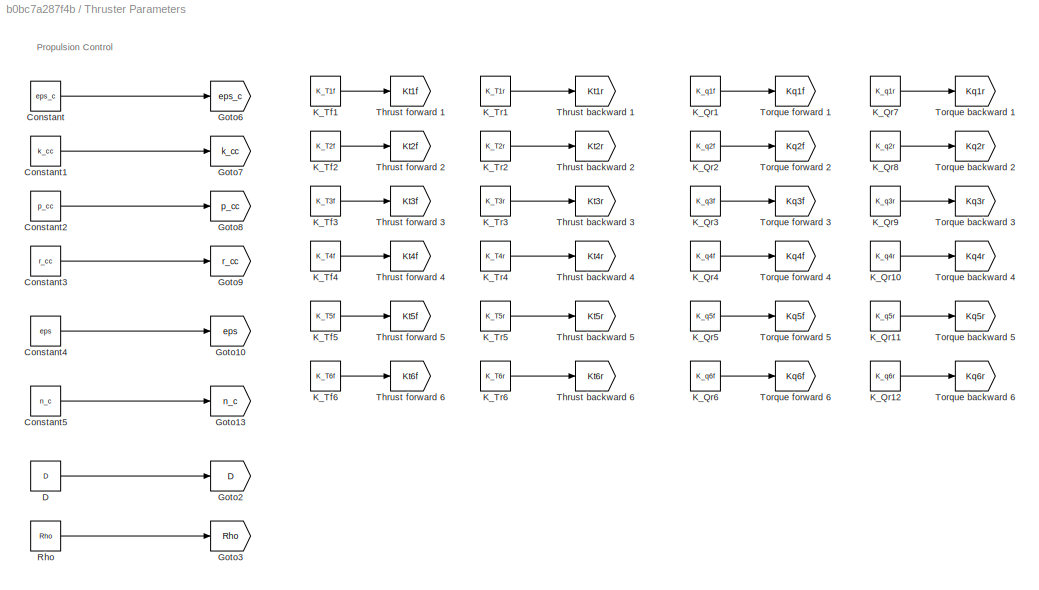
BLOCK [SubSystem] Thruster Parameters 
  Commented = on
  Ports = []
  RequestExecContextInheritance = off
  Variant = off
BLOCK [Constant] Thruster Parameters /Constant
  Value = eps_c
BLOCK [Constant] Thruster Parameters /Constant1
  Value = k_cc
BLOCK [Constant] Thruster Parameters /Constant2
  Value = p_cc
BLOCK [Constant] Thruster Parameters /Constant3
  Value = r_cc
BLOCK [Constant] Thruster Parameters /Constant4
  Value = eps
BLOCK [Constant] Thruster Parameters /Constant5
  Value = n_c
BLOCK [Constant] Thruster Parameters /D
  Value = D
BLOCK [Goto] Thruster Parameters /Goto10
  GotoTag = eps
  TagVisibility = global
BLOCK [Goto] Thruster Parameters /Goto13
  GotoTag = n_c
  TagVisibility = global
BLOCK [Goto] Thruster Parameters /Goto2
  GotoTag = D
  TagVisibility = global
BLOCK [Goto] Thruster Parameters /Goto3
  GotoTag = Rho
  TagVisibility = global
BLOCK [Goto] Thruster Parameters /Goto6
  GotoTag = eps_c
  TagVisibility = global
BLOCK [Goto] Thruster Parameters /Goto7
  GotoTag = k_cc
  TagVisibility = global
BLOCK [Goto] Thruster Parameters /Goto8
  GotoTag = p_cc
  TagVisibility = global
BLOCK [Goto] Thruster Parameters /Goto9
  GotoTag = r_cc
  TagVisibility = global
BLOCK [Constant] Thruster Parameters /K_Qr1
  Value = K_q1f
BLOCK [Constant] Thruster Parameters /K_Qr10
  Value = K_q4r
BLOCK [Constant] Thruster Parameters /K_Qr11
  Value = K_q5r
BLOCK [Constant] Thruster Parameters /K_Qr12
  Value = K_q6r
BLOCK [Constant] Thruster Parameters /K_Qr2
  Value = K_q2f
BLOCK [Constant] Thruster Parameters /K_Qr3
  Value = K_q3f
BLOCK [Constant] Thruster Parameters /K_Qr4
  Value = K_q4f
BLOCK [Constant] Thruster Parameters /K_Qr5
  Value = K_q5f
BLOCK [Constant] Thruster Parameters /K_Qr6
  Value = K_q6f
BLOCK [Constant] Thruster Parameters /K_Qr7
  Value = K_q1r
BLOCK [Constant] Thruster Parameters /K_Qr8
  Value = K_q2r
BLOCK [Constant] Thruster Parameters /K_Qr9
  Value = K_q3r
BLOCK [Constant] Thruster Parameters /K_Tf1
  Value = K_T1f
BLOCK [Constant] Thruster Parameters /K_Tf2
  Value = K_T2f
BLOCK [Constant] Thruster Parameters /K_Tf3
  Value = K_T3f
BLOCK [Constant] Thruster Parameters /K_Tf4
  Value = K_T4f
BLOCK [Constant] Thruster Parameters /K_Tf5
  Value = K_T5f
BLOCK [Constant] Thruster Parameters /K_Tf6
  Value = K_T6f
BLOCK [Constant] Thruster Parameters /K_Tr1
  Value = K_T1r
BLOCK [Constant] Thruster Parameters /K_Tr2
  Value = K_T2r
BLOCK [Constant] Thruster Parameters /K_Tr3
  Value = K_T3r
BLOCK [Constant] Thruster Parameters /K_Tr4
  Value = K_T4r
BLOCK [Constant] Thruster Parameters /K_Tr5
  Value = K_T5r
BLOCK [Constant] Thruster Parameters /K_Tr6
  Value = K_T6r
BLOCK [Constant] Thruster Parameters /Rho
  Value = Rho
BLOCK [Goto] Thruster Parameters /Thrust backward 1
  GotoTag = Kt1r
  TagVisibility = global
BLOCK [Goto] Thruster Parameters /Thrust backward 2
  GotoTag = Kt2r
  TagVisibility = global
BLOCK [Goto] Thruster Parameters /Thrust backward 3
  GotoTag = Kt3r
  TagVisibility = global
BLOCK [Goto] Thruster Parameters /Thrust backward 4
  GotoTag = Kt4r
  TagVisibility = global
BLOCK [Goto] Thruster Parameters /Thrust backward 5
  GotoTag = Kt5r
  TagVisibility = global
BLOCK [Goto] Thruster Parameters /Thrust backward 6
  GotoTag = Kt6r
  TagVisibility = global
BLOCK [Goto] Thruster Parameters /Thrust forward 1
  GotoTag = Kt1f
  TagVisibility = global
BLOCK [Goto] Thruster Parameters /Thrust forward 2
  GotoTag = Kt2f
  TagVisibility = global
BLOCK [Goto] Thruster Parameters /Thrust forward 3
  GotoTag = Kt3f
  TagVisibility = global
BLOCK [Goto] Thruster Parameters /Thrust forward 4
  GotoTag = Kt4f
  TagVisibility = global
BLOCK [Goto] Thruster Parameters /Thrust forward 5
  GotoTag = Kt5f
  TagVisibility = global
BLOCK [Goto] Thruster Parameters /Thrust forward 6
  GotoTag = Kt6f
  TagVisibility = global
BLOCK [Goto] Thruster Parameters /Torque backward 1
  GotoTag = Kq1r
  TagVisibility = global
BLOCK [Goto] Thruster Parameters /Torque backward 2
  GotoTag = Kq2r
  TagVisibility = global
BLOCK [Goto] Thruster Parameters /Torque backward 3
  GotoTag = Kq3r
  TagVisibility = global
BLOCK [Goto] Thruster Parameters /Torque backward 4
  GotoTag = Kq4r
  TagVisibility = global
BLOCK [Goto] Thruster Parameters /Torque backward 5
  GotoTag = Kq5r
  TagVisibility = global
BLOCK [Goto] Thruster Parameters /Torque backward 6
  GotoTag = Kq6r
  TagVisibility = global
BLOCK [Goto] Thruster Parameters /Torque forward 1
  GotoTag = Kq1f
  TagVisibility = global
BLOCK [Goto] Thruster Parameters /Torque forward 2
  GotoTag = Kq2f
  TagVisibility = global
BLOCK [Goto] Thruster Parameters /Torque forward 3
  GotoTag = Kq3f
  TagVisibility = global
BLOCK [Goto] Thruster Parameters /Torque forward 4
  GotoTag = Kq4f
  TagVisibility = global
BLOCK [Goto] Thruster Parameters /Torque forward 5
  GotoTag = Kq5f
  TagVisibility = global
BLOCK [Goto] Thruster Parameters /Torque forward 6
  GotoTag = Kq6f
  TagVisibility = global
BLOCK [SubSystem] Thruster control 
  Commented = on
  Ports = [1, 3]
  RequestExecContextInheritance = off
  Variant = off
BLOCK [Outport] Thruster control /Commanded angle
  IconDisplay = Port number
  Port = 2
BLOCK [Outport] Thruster control /Commanded pwm 
  IconDisplay = Port number
BLOCK [Outport] Thruster control /Commanded thrust
  IconDisplay = Port number
  Port = 3
BLOCK [Delay] Thruster control /Delay
  DelayLength = 1
  InitialCondition = 0
  InputPortMap = u0
  Ports = [1, 1]
BLOCK [Demux] Thruster control /Demux
  DisplayOption = bar
  Outputs = 12
  Ports = [1, 12]
BLOCK [Inport] Thruster control /Desired thrust and angle 
  IconDisplay = Port number
BLOCK [Selector] Thruster control /Mapping shaft speed and thrust
  IndexOptions = Index vector (dialog)
  Indices = [1 7 2  8 3 9 4 10 5 11 6 12]
  InputPortWidth = 12
  OutputSizes = 1
  Ports = [1, 1]
BLOCK [Mux] Thruster control /Mux
  DisplayOption = bar
  Inputs = 12
  Ports = [12, 1]
BLOCK [Mux] Thruster control /Mux1
  DisplayOption = bar
  Inputs = 2
  Ports = [2, 1]
BLOCK [Selector] Thruster control /Selecting Desired thrust1
  IndexOptions = Index vector (dialog)
  Indices = [7 8 9 10 11 12]
  InputPortWidth = 12
  OutputSizes = 1
  Ports = [1, 1]
BLOCK [Selector] Thruster control /Selecting actual angle
  IndexOptions = Index vector (dialog)
  Indices = [1 2 3 4 5 6]
  InputPortWidth = 12
  OutputSizes = 1
  Ports = [1, 1]
BLOCK [SubSystem] Thruster control /Subsystem1
  Ports = [1, 1]
  RequestExecContextInheritance = off
  Variant = off
BLOCK [Inport] Thruster control /Subsystem1/Calculated angles
  IconDisplay = Port number
BLOCK [Outport] Thruster control /Subsystem1/Commanded angles
  IconDisplay = Port number
BLOCK [Demux] Thruster control /Subsystem1/Demux
  DisplayOption = bar
  Outputs = 6
  Ports = [1, 6]
BLOCK [Mux] Thruster control /Subsystem1/Mux
  DisplayOption = bar
  Inputs = 6
  Ports = [6, 1]
BLOCK [Saturate] Thruster control /Subsystem1/Saturation 1
  InputPortMap = u0
  LowerLimit = -pi
  Ports = [1, 1]
  UpperLimit = pi
BLOCK [Saturate] Thruster control /Subsystem1/Saturation 2
  InputPortMap = u0
  LowerLimit = -pi
  Ports = [1, 1]
  UpperLimit = pi
BLOCK [Saturate] Thruster control /Subsystem1/Saturation 3
  InputPortMap = u0
  LowerLimit = -pi
  Ports = [1, 1]
  UpperLimit = pi
BLOCK [Saturate] Thruster control /Subsystem1/Saturation 4
  InputPortMap = u0
  LowerLimit = -pi
  Ports = [1, 1]
  UpperLimit = pi
BLOCK [Saturate] Thruster control /Subsystem1/Saturation 5
  InputPortMap = u0
  LowerLimit = -pi
  Ports = [1, 1]
  UpperLimit = pi
BLOCK [Saturate] Thruster control /Subsystem1/Saturation 6
  InputPortMap = u0
  LowerLimit = -pi
  Ports = [1, 1]
  UpperLimit = pi
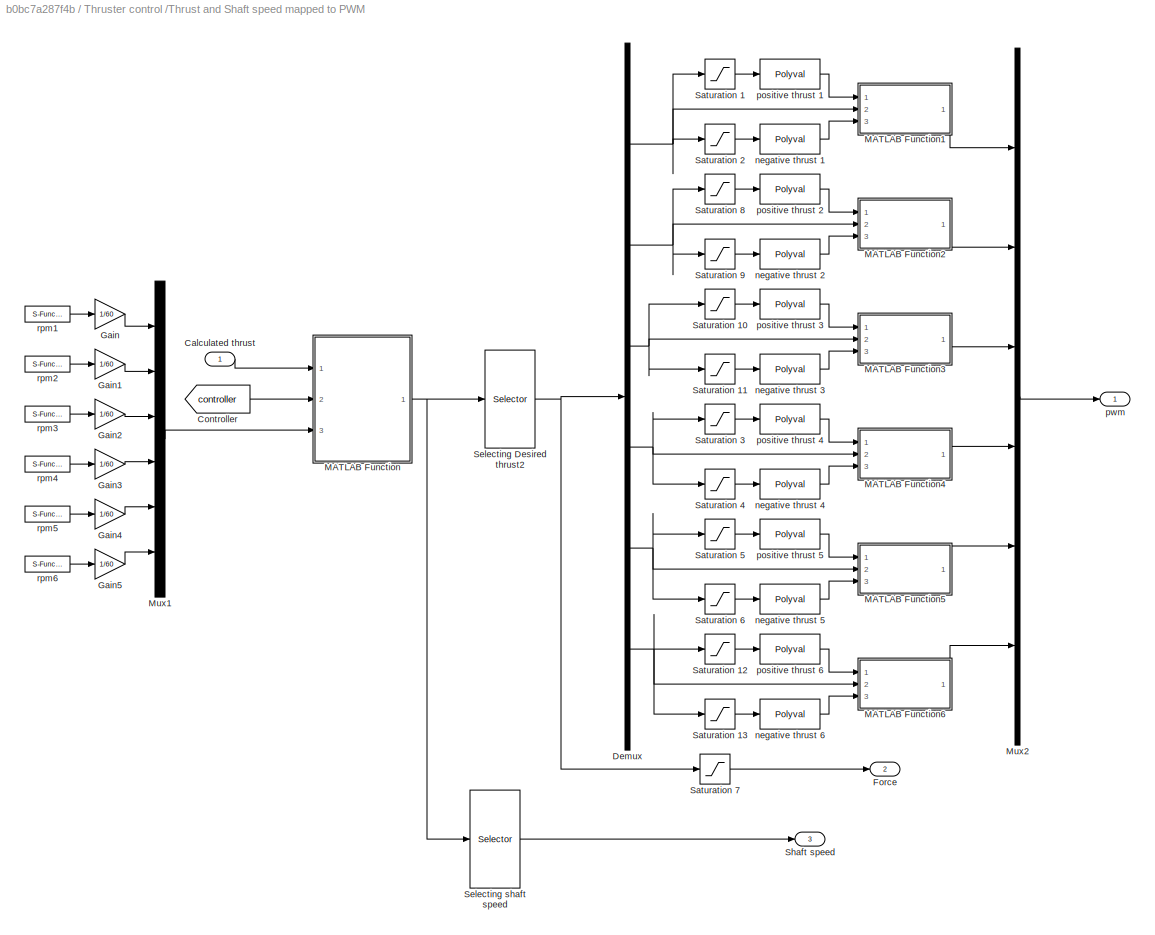
BLOCK [SubSystem] Thruster control /Thrust and Shaft speed mapped to PWM
  Ports = [1, 3]
  RequestExecContextInheritance = off
  Variant = off
BLOCK [Inport] Thruster control /Thrust and Shaft speed mapped to PWM/Calculated thrust
  IconDisplay = Port number
BLOCK [From] Thruster control /Thrust and Shaft speed mapped to PWM/Controller
  GotoTag = controller
BLOCK [Demux] Thruster control /Thrust and Shaft speed mapped to PWM/Demux
  DisplayOption = bar
  Outputs = 6
  Ports = [1, 6]
BLOCK [Outport] Thruster control /Thrust and Shaft speed mapped to PWM/Force
  IconDisplay = Port number
  Port = 2
BLOCK [Gain] Thruster control /Thrust and Shaft speed mapped to PWM/Gain
  Gain = 1/60
  OutDataTypeStr = Inherit: Inherit via internal rule
  ParamDataTypeStr = Inherit: Inherit via internal rule
  SaturateOnIntegerOverflow = off
BLOCK [Gain] Thruster control /Thrust and Shaft speed mapped to PWM/Gain1
  Gain = 1/60
  OutDataTypeStr = Inherit: Inherit via internal rule
  ParamDataTypeStr = Inherit: Inherit via internal rule
  SaturateOnIntegerOverflow = off
BLOCK [Gain] Thruster control /Thrust and Shaft speed mapped to PWM/Gain2
  Gain = 1/60
  OutDataTypeStr = Inherit: Inherit via internal rule
  ParamDataTypeStr = Inherit: Inherit via internal rule
  SaturateOnIntegerOverflow = off
BLOCK [Gain] Thruster control /Thrust and Shaft speed mapped to PWM/Gain3
  Gain = 1/60
  OutDataTypeStr = Inherit: Inherit via internal rule
  ParamDataTypeStr = Inherit: Inherit via internal rule
  SaturateOnIntegerOverflow = off
BLOCK [Gain] Thruster control /Thrust and Shaft speed mapped to PWM/Gain4
  Gain = 1/60
  OutDataTypeStr = Inherit: Inherit via internal rule
  ParamDataTypeStr = Inherit: Inherit via internal rule
  SaturateOnIntegerOverflow = off
BLOCK [Gain] Thruster control /Thrust and Shaft speed mapped to PWM/Gain5
  Gain = 1/60
  OutDataTypeStr = Inherit: Inherit via internal rule
  ParamDataTypeStr = Inherit: Inherit via internal rule
  SaturateOnIntegerOverflow = off
BLOCK [SubSystem] Thruster control /Thrust and Shaft speed mapped to PWM/MATLAB Function
  ErrorFcn = Stateflow.Translate.translate
  PermitHierarchicalResolution = ExplicitOnly
  Ports = [3, 1]
  RequestExecContextInheritance = off
  SFBlockType = MATLAB Function
  TreatAsAtomicUnit = on
  Variant = off
BLOCK [Demux] Thruster control /Thrust and Shaft speed mapped to PWM/MATLAB Function/ Demux 
  Outputs = 1
  Ports = [1, 1]
BLOCK [S-Function] Thruster control /Thrust and Shaft speed mapped to PWM/MATLAB Function/ SFunction 
  EnableBusSupport = on
  FunctionName = sf_sfun
  PortCounts = [3 2]
  Ports = [3, 2]
  SFcnIsStateOwnerBlock = off
  SFunctionDeploymentMode = off
  Tag = Stateflow S-Function ctrl_DP 28
BLOCK [Terminator] Thruster control /Thrust and Shaft speed mapped to PWM/MATLAB Function/ Terminator 
BLOCK [Inport] Thruster control /Thrust and Shaft speed mapped to PWM/MATLAB Function/control
  IconDisplay = Port number
  Port = 2
BLOCK [Inport] Thruster control /Thrust and Shaft speed mapped to PWM/MATLAB Function/input
  IconDisplay = Port number
BLOCK [Outport] Thruster control /Thrust and Shaft speed mapped to PWM/MATLAB Function/output
  IconDisplay = Port number
BLOCK [Inport] Thruster control /Thrust and Shaft speed mapped to PWM/MATLAB Function/speedcontrol
  IconDisplay = Port number
  Port = 3
BLOCK [SubSystem] Thruster control /Thrust and Shaft speed mapped to PWM/MATLAB Function1
  ErrorFcn = Stateflow.Translate.translate
  PermitHierarchicalResolution = ExplicitOnly
  Ports = [3, 1]
  RequestExecContextInheritance = off
  SFBlockType = MATLAB Function
  TreatAsAtomicUnit = on
  Variant = off
BLOCK [Demux] Thruster control /Thrust and Shaft speed mapped to PWM/MATLAB Function1/ Demux 
  Outputs = 1
  Ports = [1, 1]
BLOCK [S-Function] Thruster control /Thrust and Shaft speed mapped to PWM/MATLAB Function1/ SFunction 
  EnableBusSupport = on
  FunctionName = sf_sfun
  PortCounts = [3 2]
  Ports = [3, 2]
  SFcnIsStateOwnerBlock = off
  SFunctionDeploymentMode = off
  Tag = Stateflow S-Function ctrl_DP 5
BLOCK [Terminator] Thruster control /Thrust and Shaft speed mapped to PWM/MATLAB Function1/ Terminator 
BLOCK [Inport] Thruster control /Thrust and Shaft speed mapped to PWM/MATLAB Function1/Tc_in1
  IconDisplay = Port number
BLOCK [Inport] Thruster control /Thrust and Shaft speed mapped to PWM/MATLAB Function1/Tc_in2
  IconDisplay = Port number
  Port = 3
BLOCK [Outport] Thruster control /Thrust and Shaft speed mapped to PWM/MATLAB Function1/Tc_out
  IconDisplay = Port number
BLOCK [Inport] Thruster control /Thrust and Shaft speed mapped to PWM/MATLAB Function1/signal
  IconDisplay = Port number
  Port = 2
BLOCK [SubSystem] Thruster control /Thrust and Shaft speed mapped to PWM/MATLAB Function2
  ErrorFcn = Stateflow.Translate.translate
  PermitHierarchicalResolution = ExplicitOnly
  Ports = [3, 1]
  RequestExecContextInheritance = off
  SFBlockType = MATLAB Function
  TreatAsAtomicUnit = on
  Variant = off
BLOCK [Demux] Thruster control /Thrust and Shaft speed mapped to PWM/MATLAB Function2/ Demux 
  Outputs = 1
  Ports = [1, 1]
BLOCK [S-Function] Thruster control /Thrust and Shaft speed mapped to PWM/MATLAB Function2/ SFunction 
  EnableBusSupport = on
  FunctionName = sf_sfun
  PortCounts = [3 2]
  Ports = [3, 2]
  SFcnIsStateOwnerBlock = off
  SFunctionDeploymentMode = off
  Tag = Stateflow S-Function ctrl_DP 12
BLOCK [Terminator] Thruster control /Thrust and Shaft speed mapped to PWM/MATLAB Function2/ Terminator 
BLOCK [Inport] Thruster control /Thrust and Shaft speed mapped to PWM/MATLAB Function2/Tc_in1
  IconDisplay = Port number
BLOCK [Inport] Thruster control /Thrust and Shaft speed mapped to PWM/MATLAB Function2/Tc_in2
  IconDisplay = Port number
  Port = 3
BLOCK [Outport] Thruster control /Thrust and Shaft speed mapped to PWM/MATLAB Function2/Tc_out
  IconDisplay = Port number
BLOCK [Inport] Thruster control /Thrust and Shaft speed mapped to PWM/MATLAB Function2/signal
  IconDisplay = Port number
  Port = 2
BLOCK [SubSystem] Thruster control /Thrust and Shaft speed mapped to PWM/MATLAB Function3
  ErrorFcn = Stateflow.Translate.translate
  PermitHierarchicalResolution = ExplicitOnly
  Ports = [3, 1]
  RequestExecContextInheritance = off
  SFBlockType = MATLAB Function
  TreatAsAtomicUnit = on
  Variant = off
BLOCK [Demux] Thruster control /Thrust and Shaft speed mapped to PWM/MATLAB Function3/ Demux 
  Outputs = 1
  Ports = [1, 1]
BLOCK [S-Function] Thruster control /Thrust and Shaft speed mapped to PWM/MATLAB Function3/ SFunction 
  EnableBusSupport = on
  FunctionName = sf_sfun
  PortCounts = [3 2]
  Ports = [3, 2]
  SFcnIsStateOwnerBlock = off
  SFunctionDeploymentMode = off
  Tag = Stateflow S-Function ctrl_DP 18
BLOCK [Terminator] Thruster control /Thrust and Shaft speed mapped to PWM/MATLAB Function3/ Terminator 
BLOCK [Inport] Thruster control /Thrust and Shaft speed mapped to PWM/MATLAB Function3/Tc_in1
  IconDisplay = Port number
BLOCK [Inport] Thruster control /Thrust and Shaft speed mapped to PWM/MATLAB Function3/Tc_in2
  IconDisplay = Port number
  Port = 3
BLOCK [Outport] Thruster control /Thrust and Shaft speed mapped to PWM/MATLAB Function3/Tc_out
  IconDisplay = Port number
BLOCK [Inport] Thruster control /Thrust and Shaft speed mapped to PWM/MATLAB Function3/signal
  IconDisplay = Port number
  Port = 2
BLOCK [SubSystem] Thruster control /Thrust and Shaft speed mapped to PWM/MATLAB Function4
  ErrorFcn = Stateflow.Translate.translate
  PermitHierarchicalResolution = ExplicitOnly
  Ports = [3, 1]
  RequestExecContextInheritance = off
  SFBlockType = MATLAB Function
  TreatAsAtomicUnit = on
  Variant = off
BLOCK [Demux] Thruster control /Thrust and Shaft speed mapped to PWM/MATLAB Function4/ Demux 
  Outputs = 1
  Ports = [1, 1]
BLOCK [S-Function] Thruster control /Thrust and Shaft speed mapped to PWM/MATLAB Function4/ SFunction 
  EnableBusSupport = on
  FunctionName = sf_sfun
  PortCounts = [3 2]
  Ports = [3, 2]
  SFcnIsStateOwnerBlock = off
  SFunctionDeploymentMode = off
  Tag = Stateflow S-Function ctrl_DP 22
BLOCK [Terminator] Thruster control /Thrust and Shaft speed mapped to PWM/MATLAB Function4/ Terminator 
BLOCK [Inport] Thruster control /Thrust and Shaft speed mapped to PWM/MATLAB Function4/Tc_in1
  IconDisplay = Port number
BLOCK [Inport] Thruster control /Thrust and Shaft speed mapped to PWM/MATLAB Function4/Tc_in2
  IconDisplay = Port number
  Port = 3
BLOCK [Outport] Thruster control /Thrust and Shaft speed mapped to PWM/MATLAB Function4/Tc_out
  IconDisplay = Port number
BLOCK [Inport] Thruster control /Thrust and Shaft speed mapped to PWM/MATLAB Function4/signal
  IconDisplay = Port number
  Port = 2
BLOCK [SubSystem] Thruster control /Thrust and Shaft speed mapped to PWM/MATLAB Function5
  ErrorFcn = Stateflow.Translate.translate
  PermitHierarchicalResolution = ExplicitOnly
  Ports = [3, 1]
  RequestExecContextInheritance = off
  SFBlockType = MATLAB Function
  TreatAsAtomicUnit = on
  Variant = off
BLOCK [Demux] Thruster control /Thrust and Shaft speed mapped to PWM/MATLAB Function5/ Demux 
  Outputs = 1
  Ports = [1, 1]
BLOCK [S-Function] Thruster control /Thrust and Shaft speed mapped to PWM/MATLAB Function5/ SFunction 
  EnableBusSupport = on
  FunctionName = sf_sfun
  PortCounts = [3 2]
  Ports = [3, 2]
  SFcnIsStateOwnerBlock = off
  SFunctionDeploymentMode = off
  Tag = Stateflow S-Function ctrl_DP 25
BLOCK [Terminator] Thruster control /Thrust and Shaft speed mapped to PWM/MATLAB Function5/ Terminator 
BLOCK [Inport] Thruster control /Thrust and Shaft speed mapped to PWM/MATLAB Function5/Tc_in1
  IconDisplay = Port number
BLOCK [Inport] Thruster control /Thrust and Shaft speed mapped to PWM/MATLAB Function5/Tc_in2
  IconDisplay = Port number
  Port = 3
BLOCK [Outport] Thruster control /Thrust and Shaft speed mapped to PWM/MATLAB Function5/Tc_out
  IconDisplay = Port number
BLOCK [Inport] Thruster control /Thrust and Shaft speed mapped to PWM/MATLAB Function5/signal
  IconDisplay = Port number
  Port = 2
BLOCK [SubSystem] Thruster control /Thrust and Shaft speed mapped to PWM/MATLAB Function6
  ErrorFcn = Stateflow.Translate.translate
  PermitHierarchicalResolution = ExplicitOnly
  Ports = [3, 1]
  RequestExecContextInheritance = off
  SFBlockType = MATLAB Function
  TreatAsAtomicUnit = on
  Variant = off
BLOCK [Demux] Thruster control /Thrust and Shaft speed mapped to PWM/MATLAB Function6/ Demux 
  Outputs = 1
  Ports = [1, 1]
BLOCK [S-Function] Thruster control /Thrust and Shaft speed mapped to PWM/MATLAB Function6/ SFunction 
  EnableBusSupport = on
  FunctionName = sf_sfun
  PortCounts = [3 2]
  Ports = [3, 2]
  SFcnIsStateOwnerBlock = off
  SFunctionDeploymentMode = off
  Tag = Stateflow S-Function ctrl_DP 29
BLOCK [Terminator] Thruster control /Thrust and Shaft speed mapped to PWM/MATLAB Function6/ Terminator 
BLOCK [Inport] Thruster control /Thrust and Shaft speed mapped to PWM/MATLAB Function6/Tc_in1
  IconDisplay = Port number
BLOCK [Inport] Thruster control /Thrust and Shaft speed mapped to PWM/MATLAB Function6/Tc_in2
  IconDisplay = Port number
  Port = 3
BLOCK [Outport] Thruster control /Thrust and Shaft speed mapped to PWM/MATLAB Function6/Tc_out
  IconDisplay = Port number
BLOCK [Inport] Thruster control /Thrust and Shaft speed mapped to PWM/MATLAB Function6/signal
  IconDisplay = Port number
  Port = 2
BLOCK [Mux] Thruster control /Thrust and Shaft speed mapped to PWM/Mux1
  DisplayOption = bar
  Inputs = 6
  Ports = [6, 1]
BLOCK [Mux] Thruster control /Thrust and Shaft speed mapped to PWM/Mux2
  DisplayOption = bar
  Inputs = 6
  Ports = [6, 1]
BLOCK [Saturate] Thruster control /Thrust and Shaft speed mapped to PWM/Saturation 1
  InputPortMap = u0
  LowerLimit = 0
  Ports = [1, 1]
  UpperLimit = Max_thrust
BLOCK [Saturate] Thruster control /Thrust and Shaft speed mapped to PWM/Saturation 10
  InputPortMap = u0
  LowerLimit = 0
  Ports = [1, 1]
  UpperLimit = Max_thrust
BLOCK [Saturate] Thruster control /Thrust and Shaft speed mapped to PWM/Saturation 11
  InputPortMap = u0
  LowerLimit = Min_thrust
  Ports = [1, 1]
  UpperLimit = 0
BLOCK [Saturate] Thruster control /Thrust and Shaft speed mapped to PWM/Saturation 12
  InputPortMap = u0
  LowerLimit = 0
  Ports = [1, 1]
  UpperLimit = Max_thrust
BLOCK [Saturate] Thruster control /Thrust and Shaft speed mapped to PWM/Saturation 13
  InputPortMap = u0
  LowerLimit = Min_thrust
  Ports = [1, 1]
  UpperLimit = 0
BLOCK [Saturate] Thruster control /Thrust and Shaft speed mapped to PWM/Saturation 2
  InputPortMap = u0
  LowerLimit = Min_thrust
  Ports = [1, 1]
  UpperLimit = 0
BLOCK [Saturate] Thruster control /Thrust and Shaft speed mapped to PWM/Saturation 3
  InputPortMap = u0
  LowerLimit = 0
  Ports = [1, 1]
  UpperLimit = Max_thrust
BLOCK [Saturate] Thruster control /Thrust and Shaft speed mapped to PWM/Saturation 4
  InputPortMap = u0
  LowerLimit = Min_thrust
  Ports = [1, 1]
  UpperLimit = 0
BLOCK [Saturate] Thruster control /Thrust and Shaft speed mapped to PWM/Saturation 5
  InputPortMap = u0
  LowerLimit = 0
  Ports = [1, 1]
  UpperLimit = Max_thrust
BLOCK [Saturate] Thruster control /Thrust and Shaft speed mapped to PWM/Saturation 6
  InputPortMap = u0
  LowerLimit = Min_thrust
  Ports = [1, 1]
  UpperLimit = 0
BLOCK [Saturate] Thruster control /Thrust and Shaft speed mapped to PWM/Saturation 7
  InputPortMap = u0
  LowerLimit = -Max_thrust
  Ports = [1, 1]
  UpperLimit = Max_thrust
BLOCK [Saturate] Thruster control /Thrust and Shaft speed mapped to PWM/Saturation 8
  InputPortMap = u0
  LowerLimit = 0
  Ports = [1, 1]
  UpperLimit = Max_thrust
BLOCK [Saturate] Thruster control /Thrust and Shaft speed mapped to PWM/Saturation 9
  InputPortMap = u0
  LowerLimit = Min_thrust
  Ports = [1, 1]
  UpperLimit = 0
BLOCK [Selector] Thruster control /Thrust and Shaft speed mapped to PWM/Selecting Desired thrust2
  IndexOptions = Index vector (dialog)
  Indices = [1 3 5 7 9 11]
  InputPortWidth = 12
  OutputSizes = 1
  Ports = [1, 1]
BLOCK [Selector] Thruster control /Thrust and Shaft speed mapped to PWM/Selecting shaft speed
  IndexOptions = Index vector (dialog)
  Indices = [2 4 6 8 10 12]
  InputPortWidth = 12
  OutputSizes = 1
  Ports = [1, 1]
BLOCK [Outport] Thruster control /Thrust and Shaft speed mapped to PWM/Shaft speed 
  IconDisplay = Port number
  Port = 3
BLOCK [Polyval] Thruster control /Thrust and Shaft speed mapped to PWM/negative thrust 1
  Coefs = pwm_thr1_backward
BLOCK [Polyval] Thruster control /Thrust and Shaft speed mapped to PWM/negative thrust 2
  Coefs = pwm_thr2_backward
BLOCK [Polyval] Thruster control /Thrust and Shaft speed mapped to PWM/negative thrust 3
  Coefs = pwm_thr3_backward
BLOCK [Polyval] Thruster control /Thrust and Shaft speed mapped to PWM/negative thrust 4
  Coefs = pwm_thr4_backward
BLOCK [Polyval] Thruster control /Thrust and Shaft speed mapped to PWM/negative thrust 5
  Coefs = pwm_thr5_backward
BLOCK [Polyval] Thruster control /Thrust and Shaft speed mapped to PWM/negative thrust 6
  Coefs = pwm_thr6_backward
BLOCK [Polyval] Thruster control /Thrust and Shaft speed mapped to PWM/positive thrust 1
  Coefs = pwm_thr1_forward
BLOCK [Polyval] Thruster control /Thrust and Shaft speed mapped to PWM/positive thrust 2
  Coefs = pwm_thr2_forward
BLOCK [Polyval] Thruster control /Thrust and Shaft speed mapped to PWM/positive thrust 3
  Coefs = pwm_thr3_forward
BLOCK [Polyval] Thruster control /Thrust and Shaft speed mapped to PWM/positive thrust 4
  Coefs = pwm_thr4_forward
BLOCK [Polyval] Thruster control /Thrust and Shaft speed mapped to PWM/positive thrust 5
  Coefs = pwm_thr5_forward
BLOCK [Polyval] Thruster control /Thrust and Shaft speed mapped to PWM/positive thrust 6
  Coefs = pwm_thr6_forward
BLOCK [Outport] Thruster control /Thrust and Shaft speed mapped to PWM/pwm
  IconDisplay = Port number
BLOCK [S-Function] Thruster control /Thrust and Shaft speed mapped to PWM/rpm1 
  CopyFcn = NIVeriStand_MDL_functions('', 'IO_copy');
  DeleteFcn = NIVeriStand_MDL_functions('', 'IO_delete');
  EnableBusSupport = off
  FunctionName = NIVeriStandIO
  MoveFcn = set_param(gcb, 'Mask', 'on');
  Parameters = width dtype portnum stime stype btype
  Ports = [0, 1]
  Priority = 1
  SFcnIsStateOwnerBlock = off
  SFunctionDeploymentMode = off
BLOCK [S-Function] Thruster control /Thrust and Shaft speed mapped to PWM/rpm2
  CopyFcn = NIVeriStand_MDL_functions('', 'IO_copy');
  DeleteFcn = NIVeriStand_MDL_functions('', 'IO_delete');
  EnableBusSupport = off
  FunctionName = NIVeriStandIO
  MoveFcn = set_param(gcb, 'Mask', 'on');
  Parameters = width dtype portnum stime stype btype
  Ports = [0, 1]
  Priority = 2
  SFcnIsStateOwnerBlock = off
  SFunctionDeploymentMode = off
BLOCK [S-Function] Thruster control /Thrust and Shaft speed mapped to PWM/rpm3
  CopyFcn = NIVeriStand_MDL_functions('', 'IO_copy');
  DeleteFcn = NIVeriStand_MDL_functions('', 'IO_delete');
  EnableBusSupport = off
  FunctionName = NIVeriStandIO
  MoveFcn = set_param(gcb, 'Mask', 'on');
  Parameters = width dtype portnum stime stype btype
  Ports = [0, 1]
  Priority = 3
  SFcnIsStateOwnerBlock = off
  SFunctionDeploymentMode = off
BLOCK [S-Function] Thruster control /Thrust and Shaft speed mapped to PWM/rpm4
  CopyFcn = NIVeriStand_MDL_functions('', 'IO_copy');
  DeleteFcn = NIVeriStand_MDL_functions('', 'IO_delete');
  EnableBusSupport = off
  FunctionName = NIVeriStandIO
  MoveFcn = set_param(gcb, 'Mask', 'on');
  Parameters = width dtype portnum stime stype btype
  Ports = [0, 1]
  Priority = 4
  SFcnIsStateOwnerBlock = off
  SFunctionDeploymentMode = off
BLOCK [S-Function] Thruster control /Thrust and Shaft speed mapped to PWM/rpm5
  CopyFcn = NIVeriStand_MDL_functions('', 'IO_copy');
  DeleteFcn = NIVeriStand_MDL_functions('', 'IO_delete');
  EnableBusSupport = off
  FunctionName = NIVeriStandIO
  MoveFcn = set_param(gcb, 'Mask', 'on');
  Parameters = width dtype portnum stime stype btype
  Ports = [0, 1]
  Priority = 5
  SFcnIsStateOwnerBlock = off
  SFunctionDeploymentMode = off
BLOCK [S-Function] Thruster control /Thrust and Shaft speed mapped to PWM/rpm6
  CopyFcn = NIVeriStand_MDL_functions('', 'IO_copy');
  DeleteFcn = NIVeriStand_MDL_functions('', 'IO_delete');
  EnableBusSupport = off
  FunctionName = NIVeriStandIO
  MoveFcn = set_param(gcb, 'Mask', 'on');
  Parameters = width dtype portnum stime stype btype
  Ports = [0, 1]
  Priority = 6
  SFcnIsStateOwnerBlock = off
  SFunctionDeploymentMode = off
BLOCK [SubSystem] Thruster control /Thruster 1
  AttributesFormatString = %<MinAlgLoopOccurrences>
  Ports = [2, 2]
  RequestExecContextInheritance = off
  Variant = off
BLOCK [Outport] Thruster control /Thruster 1/Commanded thrust 
  IconDisplay = Port number
BLOCK [Constant] Thruster control /Thruster 1/Constant
  Value = hd2.den{1,1}
BLOCK [Constant] Thruster control /Thruster 1/Constant1
  Value = hd2.num{1,1}
BLOCK [Delay] Thruster control /Thruster 1/Delay
  DelayLength = 1
  InitialCondition = 0
  InputPortMap = u0
  Ports = [1, 1]
BLOCK [Inport] Thruster control /Thruster 1/Desired thrust 1
  IconDisplay = Port number
BLOCK [DiscreteTransferFcn] Thruster control /Thruster 1/Discrete Transfer Fcn
  Denominator = [0.2 1]
  DenominatorSource = Input port
  InputPortMap = u0,p1,p3
  NumeratorSource = Input port
  Ports = [3, 1]
  SampleTime = 0.01
  a0EqualsOne = on
BLOCK [Constant] Thruster control /Thruster 1/Losses (placeholder)
  Value = 0
BLOCK [SubSystem] Thruster control /Thruster 1/Propeller Hydrodynamics
  Ports = [2, 2]
  RequestExecContextInheritance = off
  Variant = off
BLOCK [SubSystem] Thruster control /Thruster 1/Propeller Hydrodynamics/Actual Force and Torque
  ErrorFcn = Stateflow.Translate.translate
  PermitHierarchicalResolution = ExplicitOnly
  Ports = [9, 3]
  RequestExecContextInheritance = off
  SFBlockType = MATLAB Function
  TreatAsAtomicUnit = on
  Variant = off
BLOCK [Demux] Thruster control /Thruster 1/Propeller Hydrodynamics/Actual Force and Torque/ Demux 
  Outputs = 1
  Ports = [1, 1]
BLOCK [S-Function] Thruster control /Thruster 1/Propeller Hydrodynamics/Actual Force and Torque/ SFunction 
  EnableBusSupport = on
  FunctionName = sf_sfun
  PortCounts = [9 4]
  Ports = [9, 4]
  SFcnIsStateOwnerBlock = off
  SFunctionDeploymentMode = off
  Tag = Stateflow S-Function ctrl_DP 8
BLOCK [Terminator] Thruster control /Thruster 1/Propeller Hydrodynamics/Actual Force and Torque/ Terminator 
BLOCK [Inport] Thruster control /Thruster 1/Propeller Hydrodynamics/Actual Force and Torque/D
  IconDisplay = Port number
  Port = 7
BLOCK [Inport] Thruster control /Thruster 1/Propeller Hydrodynamics/Actual Force and Torque/Kq
  IconDisplay = Port number
  Port = 2
BLOCK [Inport] Thruster control /Thruster 1/Propeller Hydrodynamics/Actual Force and Torque/Kqr
  IconDisplay = Port number
  Port = 5
BLOCK [Inport] Thruster control /Thruster 1/Propeller Hydrodynamics/Actual Force and Torque/Kt
  IconDisplay = Port number
  Port = 3
BLOCK [Inport] Thruster control /Thruster 1/Propeller Hydrodynamics/Actual Force and Torque/Ktr
  IconDisplay = Port number
  Port = 4
BLOCK [Outport] Thruster control /Thruster 1/Propeller Hydrodynamics/Actual Force and Torque/Pa
  IconDisplay = Port number
  Port = 3
BLOCK [Outport] Thruster control /Thruster 1/Propeller Hydrodynamics/Actual Force and Torque/Qa
  IconDisplay = Port number
  Port = 2
BLOCK [Inport] Thruster control /Thruster 1/Propeller Hydrodynamics/Actual Force and Torque/Rho
  IconDisplay = Port number
  Port = 6
BLOCK [Outport] Thruster control /Thruster 1/Propeller Hydrodynamics/Actual Force and Torque/Ta
  IconDisplay = Port number
BLOCK [Inport] Thruster control /Thruster 1/Propeller Hydrodynamics/Actual Force and Torque/env
  IconDisplay = Port number
  Port = 9
BLOCK [Inport] Thruster control /Thruster 1/Propeller Hydrodynamics/Actual Force and Torque/eps_c
  IconDisplay = Port number
  Port = 8
BLOCK [Inport] Thruster control /Thruster 1/Propeller Hydrodynamics/Actual Force and Torque/n
  IconDisplay = Port number
BLOCK [S-Function] Thruster control /Thruster 1/Propeller Hydrodynamics/Control_test_Pa
  CopyFcn = NIVeriStand_MDL_functions('', 'IO_copy');
  DeleteFcn = NIVeriStand_MDL_functions('', 'IO_delete');
  EnableBusSupport = off
  FunctionName = NIVeriStandIO
  MoveFcn = set_param(gcb, 'Mask', 'on');
  Parameters = width dtype portnum stime stype btype
  Ports = [1]
  Priority = 1
  SFcnIsStateOwnerBlock = off
  SFunctionDeploymentMode = off
BLOCK [From] Thruster control /Thruster 1/Propeller Hydrodynamics/D
  GotoTag = D
  TagVisibility = global
BLOCK [From] Thruster control /Thruster 1/Propeller Hydrodynamics/Kq
  GotoTag = Kq1f
  TagVisibility = global
BLOCK [From] Thruster control /Thruster 1/Propeller Hydrodynamics/Kq1
  GotoTag = Kq1r
  TagVisibility = global
BLOCK [From] Thruster control /Thruster 1/Propeller Hydrodynamics/Kt
  GotoTag = Kt1f
  TagVisibility = global
BLOCK [From] Thruster control /Thruster 1/Propeller Hydrodynamics/Kt1
  GotoTag = Kt1r
  TagVisibility = global
BLOCK [Outport] Thruster control /Thruster 1/Propeller Hydrodynamics/Qa
  IconDisplay = Port number
  Port = 2
BLOCK [From] Thruster control /Thruster 1/Propeller Hydrodynamics/Rho
  GotoTag = Rho
  TagVisibility = global
BLOCK [Outport] Thruster control /Thruster 1/Propeller Hydrodynamics/Ta
  IconDisplay = Port number
BLOCK [Inport] Thruster control /Thruster 1/Propeller Hydrodynamics/env
  IconDisplay = Port number
BLOCK [From] Thruster control /Thruster 1/Propeller Hydrodynamics/eps_c
  GotoTag = eps_c
  TagVisibility = global
BLOCK [Inport] Thruster control /Thruster 1/Propeller Hydrodynamics/n
  IconDisplay = Port number
  Port = 2
BLOCK [SubSystem] Thruster control /Thruster 1/Shaft dynamics
  Ports = [2, 1]
  RequestExecContextInheritance = off
  Variant = off
BLOCK [Gain] Thruster control /Thruster 1/Shaft dynamics/Finding rotation speed
  Gain = 1/(2*pi*I_s)
  OutDataTypeStr = Inherit: Inherit via internal rule
  ParamDataTypeStr = Inherit: Inherit via internal rule
  SaturateOnIntegerOverflow = off
BLOCK [Integrator] Thruster control /Thruster 1/Shaft dynamics/Integrator
  ExternalReset = either
  Ports = [2, 1]
BLOCK [Gain] Thruster control /Thruster 1/Shaft dynamics/K_omega
  Gain = K_omega*2*pi
  OutDataTypeStr = Inherit: Inherit via internal rule
  ParamDataTypeStr = Inherit: Inherit via internal rule
  SaturateOnIntegerOverflow = off
BLOCK [Inport] Thruster control /Thruster 1/Shaft dynamics/Qa
  IconDisplay = Port number
  Port = 2
BLOCK [Inport] Thruster control /Thruster 1/Shaft dynamics/Qm
  IconDisplay = Port number
BLOCK [Sum] Thruster control /Thruster 1/Shaft dynamics/Sum
  IconShape = round
  InputSameDT = off
  Inputs = -+-
  OutDataTypeStr = Inherit: Inherit via internal rule
  Ports = [3, 1]
  SaturateOnIntegerOverflow = off
BLOCK [Outport] Thruster control /Thruster 1/Shaft dynamics/n
  IconDisplay = Port number
BLOCK [S-Function] Thruster control /Thruster 1/Shaft dynamics/reset
  CopyFcn = NIVeriStand_MDL_functions('', 'IO_copy');
  DeleteFcn = NIVeriStand_MDL_functions('', 'IO_delete');
  EnableBusSupport = off
  FunctionName = NIVeriStandIO
  MoveFcn = set_param(gcb, 'Mask', 'on');
  Parameters = width dtype portnum stime stype btype
  Ports = [0, 1]
  Priority = 1
  SFcnIsStateOwnerBlock = off
  SFunctionDeploymentMode = off
BLOCK [Outport] Thruster control /Thruster 1/Shaft speed
  IconDisplay = Port number
  Port = 2
BLOCK [SubSystem] Thruster control /Thruster 1/Thruster control
  Ports = [2, 1]
  RequestExecContextInheritance = off
  Variant = off
BLOCK [RateLimiter] Thruster control /Thruster 1/Thruster control/Acceleration Limit
  FallingSlewLimit = -Max_Acceleration
  RisingSlewLimit = Max_Acceleration
  SampleTimeMode = inherited
BLOCK [Constant] Thruster control /Thruster 1/Thruster control/Constant1
  Value = hd.num{1,1}
  VectorParams1D = off
BLOCK [Constant] Thruster control /Thruster 1/Thruster control/Constant2
  Value = hd.den{1,1}
  VectorParams1D = off
BLOCK [From] Thruster control /Thruster 1/Thruster control/Controller
  GotoTag = controller
BLOCK [MultiPortSwitch] Thruster control /Thruster 1/Thruster control/Controller chosen
  InputSameDT = off
  Inputs = 5
  Ports = [6, 1]
  SaturateOnIntegerOverflow = off
BLOCK [SubSystem] Thruster control /Thruster 1/Thruster control/Core controller
  Ports = [3, 4]
  RequestExecContextInheritance = off
  Variant = off
BLOCK [SubSystem] Thruster control /Thruster 1/Thruster control/Core controller/Core controller: Torque,Power and Combined Torque//Power
  ErrorFcn = Stateflow.Translate.translate
  PermitHierarchicalResolution = ExplicitOnly
  Ports = [12, 3]
  RequestExecContextInheritance = off
  SFBlockType = MATLAB Function
  TreatAsAtomicUnit = on
  Variant = off
BLOCK [Demux] Thruster control /Thruster 1/Thruster control/Core controller/Core controller: Torque,Power and Combined Torque//Power/ Demux 
  Outputs = 1
  Ports = [1, 1]
BLOCK [S-Function] Thruster control /Thruster 1/Thruster control/Core controller/Core controller: Torque,Power and Combined Torque//Power/ SFunction 
  EnableBusSupport = on
  FunctionName = sf_sfun
  PortCounts = [12 4]
  Ports = [12, 4]
  SFcnIsStateOwnerBlock = off
  SFunctionDeploymentMode = off
  Tag = Stateflow S-Function ctrl_DP 11
BLOCK [Terminator] Thruster control /Thruster 1/Thruster control/Core controller/Core controller: Torque,Power and Combined Torque//Power/ Terminator 
BLOCK [Inport] Thruster control /Thruster 1/Thruster control/Core controller/Core controller: Torque,Power and Combined Torque//Power/D
  IconDisplay = Port number
  Port = 7
BLOCK [Inport] Thruster control /Thruster 1/Thruster control/Core controller/Core controller: Torque,Power and Combined Torque//Power/K_q0
  IconDisplay = Port number
  Port = 6
BLOCK [Inport] Thruster control /Thruster 1/Thruster control/Core controller/Core controller: Torque,Power and Combined Torque//Power/K_q0r
  IconDisplay = Port number
  Port = 12
BLOCK [Inport] Thruster control /Thruster 1/Thruster control/Core controller/Core controller: Torque,Power and Combined Torque//Power/K_t0
  IconDisplay = Port number
  Port = 5
BLOCK [Inport] Thruster control /Thruster 1/Thruster control/Core controller/Core controller: Torque,Power and Combined Torque//Power/K_t0r
  IconDisplay = Port number
  Port = 11
BLOCK [Outport] Thruster control /Thruster 1/Thruster control/Core controller/Core controller: Torque,Power and Combined Torque//Power/Qcc
  IconDisplay = Port number
  Port = 3
BLOCK [Outport] Thruster control /Thruster 1/Thruster control/Core controller/Core controller: Torque,Power and Combined Torque//Power/Qcp
  IconDisplay = Port number
  Port = 2
BLOCK [Outport] Thruster control /Thruster 1/Thruster control/Core controller/Core controller: Torque,Power and Combined Torque//Power/Qcq
  IconDisplay = Port number
BLOCK [Inport] Thruster control /Thruster 1/Thruster control/Core controller/Core controller: Torque,Power and Combined Torque//Power/Tr
  IconDisplay = Port number
  Port = 8
BLOCK [Inport] Thruster control /Thruster 1/Thruster control/Core controller/Core controller: Torque,Power and Combined Torque//Power/eps_c
  IconDisplay = Port number
  Port = 10
BLOCK [Inport] Thruster control /Thruster 1/Thruster control/Core controller/Core controller: Torque,Power and Combined Torque//Power/k_cc
  IconDisplay = Port number
BLOCK [Inport] Thruster control /Thruster 1/Thruster control/Core controller/Core controller: Torque,Power and Combined Torque//Power/n
  IconDisplay = Port number
  Port = 4
BLOCK [Inport] Thruster control /Thruster 1/Thruster control/Core controller/Core controller: Torque,Power and Combined Torque//Power/p_cc
  IconDisplay = Port number
  Port = 2
BLOCK [Inport] Thruster control /Thruster 1/Thruster control/Core controller/Core controller: Torque,Power and Combined Torque//Power/r_cc
  IconDisplay = Port number
  Port = 3
BLOCK [Inport] Thruster control /Thruster 1/Thruster control/Core controller/Core controller: Torque,Power and Combined Torque//Power/rho
  IconDisplay = Port number
  Port = 9
BLOCK [From] Thruster control /Thruster 1/Thruster control/Core controller/D
  GotoTag = D
  TagVisibility = global
BLOCK [Integrator] Thruster control /Thruster 1/Thruster control/Core controller/Integrator
  ExternalReset = either
  LowerSaturationLimit = -Q_max
  Ports = [2, 1]
  UpperSaturationLimit = Q_max
BLOCK [From] Thruster control /Thruster 1/Thruster control/Core controller/K_T
  GotoTag = Kt1f
  TagVisibility = global
BLOCK [From] Thruster control /Thruster 1/Thruster control/Core controller/K_Tr
  GotoTag = Kt1r
  TagVisibility = global
BLOCK [Gain] Thruster control /Thruster 1/Thruster control/Core controller/Ki
  Gain = Kp/0.05
  OutDataTypeStr = Inherit: Inherit via internal rule
  ParamDataTypeStr = Inherit: Inherit via internal rule
  SaturateOnIntegerOverflow = off
BLOCK [Gain] Thruster control /Thruster 1/Thruster control/Core controller/Kp
  Gain = Kp
  OutDataTypeStr = Inherit: Inherit via internal rule
  ParamDataTypeStr = Inherit: Inherit via internal rule
  SaturateOnIntegerOverflow = off
BLOCK [From] Thruster control /Thruster 1/Thruster control/Core controller/Kq
  GotoTag = Kq1f
  TagVisibility = global
BLOCK [From] Thruster control /Thruster 1/Thruster control/Core controller/Kqr 
  GotoTag = Kq1r
  TagVisibility = global
BLOCK [Outport] Thruster control /Thruster 1/Thruster control/Core controller/Q_cn
  IconDisplay = Port number
BLOCK [Outport] Thruster control /Thruster 1/Thruster control/Core controller/Qcc
  IconDisplay = Port number
  Port = 4
BLOCK [Outport] Thruster control /Thruster 1/Thruster control/Core controller/Qcp
  IconDisplay = Port number
  Port = 3
BLOCK [Outport] Thruster control /Thruster 1/Thruster control/Core controller/Qcq
  IconDisplay = Port number
  Port = 2
BLOCK [From] Thruster control /Thruster 1/Thruster control/Core controller/Rho
  GotoTag = Rho
  TagVisibility = global
BLOCK [Sum] Thruster control /Thruster 1/Thruster control/Core controller/Sum
  IconShape = round
  InputSameDT = off
  Inputs = +|-
  OutDataTypeStr = Inherit: Inherit via internal rule
  Ports = [2, 1]
  SaturateOnIntegerOverflow = off
BLOCK [Sum] Thruster control /Thruster 1/Thruster control/Core controller/Sum1
  IconShape = round
  InputSameDT = off
  Inputs = |++
  OutDataTypeStr = Inherit: Inherit via internal rule
  Ports = [2, 1]
  SaturateOnIntegerOverflow = off
BLOCK [Inport] Thruster control /Thruster 1/Thruster control/Core controller/Tr 
  IconDisplay = Port number
  Port = 2
BLOCK [From] Thruster control /Thruster 1/Thruster control/Core controller/eps_c
  GotoTag = eps_c
  TagVisibility = global
BLOCK [From] Thruster control /Thruster 1/Thruster control/Core controller/k
  GotoTag = k_cc
  TagVisibility = global
BLOCK [Inport] Thruster control /Thruster 1/Thruster control/Core controller/n 
  IconDisplay = Port number
  Port = 3
BLOCK [Inport] Thruster control /Thruster 1/Thruster control/Core controller/n_r
  IconDisplay = Port number
BLOCK [From] Thruster control /Thruster 1/Thruster control/Core controller/p
  GotoTag = p_cc
  TagVisibility = global
BLOCK [From] Thruster control /Thruster 1/Thruster control/Core controller/r
  GotoTag = r_cc
  TagVisibility = global
BLOCK [S-Function] Thruster control /Thruster 1/Thruster control/Core controller/reset
  CopyFcn = NIVeriStand_MDL_functions('', 'IO_copy');
  DeleteFcn = NIVeriStand_MDL_functions('', 'IO_delete');
  EnableBusSupport = off
  FunctionName = NIVeriStandIO
  MoveFcn = set_param(gcb, 'Mask', 'on');
  Parameters = width dtype portnum stime stype btype
  Ports = [0, 1]
  Priority = 1
  SFcnIsStateOwnerBlock = off
  SFunctionDeploymentMode = off
BLOCK [From] Thruster control /Thruster 1/Thruster control/D
  GotoTag = D
  TagVisibility = global
BLOCK [Delay] Thruster control /Thruster 1/Thruster control/Delay
  DelayLength = 1
  InitialCondition = 0
  InputPortMap = u0
  Ports = [1, 1]
BLOCK [Reference] Thruster control /Thruster 1/Thruster control/Discrete Derivative  REF=simulink/Discrete/Discrete Derivative
  Ports = [1, 1]
  SourceBlock = simulink/Discrete/Discrete Derivative
  SourceType = Discrete Derivative
BLOCK [DiscreteTransferFcn] Thruster control /Thruster 1/Thruster control/Discrete Transfer Fcn
  Denominator = [1 -1.974 0.9746]
  DenominatorSource = Input port
  InputPortMap = u0,p1,p3
  Numerator = [8.76e-05 0.0003481 8.648e-05]
  NumeratorSource = Input port
  Ports = [3, 1]
  SampleTime = 0.01
  a0EqualsOne = on
BLOCK [Gain] Thruster control /Thruster 1/Thruster control/Inertia compensation
  Gain = I_s*2*pi
  OutDataTypeStr = Inherit: Inherit via internal rule
  ParamDataTypeStr = Inherit: Inherit via internal rule
  SaturateOnIntegerOverflow = off
BLOCK [From] Thruster control /Thruster 1/Thruster control/K_T
  GotoTag = Kt1f
  TagVisibility = global
BLOCK [From] Thruster control /Thruster 1/Thruster control/K_Tr
  GotoTag = Kt1r
  TagVisibility = global
BLOCK [SubSystem] Thruster control /Thruster 1/Thruster control/MATLAB Function
  ErrorFcn = Stateflow.Translate.translate
  PermitHierarchicalResolution = ExplicitOnly
  Ports = [8, 2]
  RequestExecContextInheritance = off
  SFBlockType = MATLAB Function
  TreatAsAtomicUnit = on
  Variant = off
BLOCK [Demux] Thruster control /Thruster 1/Thruster control/MATLAB Function/ Demux 
  Outputs = 1
  Ports = [1, 1]
BLOCK [S-Function] Thruster control /Thruster 1/Thruster control/MATLAB Function/ SFunction 
  EnableBusSupport = on
  FunctionName = sf_sfun
  PortCounts = [8 3]
  Ports = [8, 3]
  SFcnIsStateOwnerBlock = off
  SFunctionDeploymentMode = off
  Tag = Stateflow S-Function ctrl_DP 9
BLOCK [Terminator] Thruster control /Thruster 1/Thruster control/MATLAB Function/ Terminator 
BLOCK [Inport] Thruster control /Thruster 1/Thruster control/MATLAB Function/D
  IconDisplay = Port number
  Port = 5
BLOCK [Inport] Thruster control /Thruster 1/Thruster control/MATLAB Function/K_t0
  IconDisplay = Port number
  Port = 2
BLOCK [Inport] Thruster control /Thruster 1/Thruster control/MATLAB Function/K_t0r
  IconDisplay = Port number
  Port = 3
BLOCK [Outport] Thruster control /Thruster 1/Thruster control/MATLAB Function/T_r
  IconDisplay = Port number
  Port = 2
BLOCK [Inport] Thruster control /Thruster 1/Thruster control/MATLAB Function/Td
  IconDisplay = Port number
BLOCK [Inport] Thruster control /Thruster 1/Thruster control/MATLAB Function/eps_c
  IconDisplay = Port number
  Port = 6
BLOCK [Inport] Thruster control /Thruster 1/Thruster control/MATLAB Function/n_c
  IconDisplay = Port number
  Port = 7
BLOCK [Outport] Thruster control /Thruster 1/Thruster control/MATLAB Function/n_d
  IconDisplay = Port number
BLOCK [Inport] Thruster control /Thruster 1/Thruster control/MATLAB Function/n_r
  IconDisplay = Port number
  Port = 8
BLOCK [Inport] Thruster control /Thruster 1/Thruster control/MATLAB Function/rho
  IconDisplay = Port number
  Port = 4
BLOCK [Memory] Thruster control /Thruster 1/Thruster control/Memory
  InheritSampleTime = on
  X0 = 1
BLOCK [Constant] Thruster control /Thruster 1/Thruster control/NaN
  Value = 0
BLOCK [Outport] Thruster control /Thruster 1/Thruster control/Qc
  IconDisplay = Port number
BLOCK [Gain] Thruster control /Thruster 1/Thruster control/Qf_0
  Gain = Q_f0
  OutDataTypeStr = Inherit: Inherit via internal rule
  ParamDataTypeStr = Inherit: Inherit via internal rule
  SaturateOnIntegerOverflow = off
BLOCK [Gain] Thruster control /Thruster 1/Thruster control/Qff_0(nr)
  Gain = epsilon/n_max
  OutDataTypeStr = Inherit: Inherit via internal rule
  ParamDataTypeStr = Inherit: Inherit via internal rule
  SaturateOnIntegerOverflow = off
BLOCK [Gain] Thruster control /Thruster 1/Thruster control/Qff_1(nr)
  Gain = K_omega*2*pi
  OutDataTypeStr = Inherit: Inherit via internal rule
  ParamDataTypeStr = Inherit: Inherit via internal rule
  SaturateOnIntegerOverflow = off
BLOCK [From] Thruster control /Thruster 1/Thruster control/Rho
  GotoTag = Rho
  TagVisibility = global
BLOCK [Sum] Thruster control /Thruster 1/Thruster control/Sum
  IconShape = round
  InputSameDT = off
  Inputs = +++
  OutDataTypeStr = Inherit: Inherit via internal rule
  Ports = [3, 1]
  SaturateOnIntegerOverflow = off
BLOCK [Sum] Thruster control /Thruster 1/Thruster control/Sum1
  IconShape = round
  InputSameDT = off
  Inputs = ++|
  OutDataTypeStr = Inherit: Inherit via internal rule
  Ports = [2, 1]
  SaturateOnIntegerOverflow = off
BLOCK [SubSystem] Thruster control /Thruster 1/Thruster control/Supervisor
  ErrorFcn = Stateflow.Translate.translate
  PermitHierarchicalResolution = ExplicitOnly
  Ports = [3, 1]
  RequestExecContextInheritance = off
  SFBlockType = MATLAB Function
  TreatAsAtomicUnit = on
  Variant = off
BLOCK [Demux] Thruster control /Thruster 1/Thruster control/Supervisor/ Demux 
  Outputs = 1
  Ports = [1, 1]
BLOCK [S-Function] Thruster control /Thruster 1/Thruster control/Supervisor/ SFunction 
  EnableBusSupport = on
  FunctionName = sf_sfun
  PortCounts = [3 2]
  Ports = [3, 2]
  SFcnIsStateOwnerBlock = off
  SFunctionDeploymentMode = off
  Tag = Stateflow S-Function ctrl_DP 10
BLOCK [Terminator] Thruster control /Thruster 1/Thruster control/Supervisor/ Terminator 
BLOCK [Inport] Thruster control /Thruster 1/Thruster control/Supervisor/control
  IconDisplay = Port number
BLOCK [Inport] Thruster control /Thruster 1/Thruster control/Supervisor/input
  IconDisplay = Port number
  Port = 2
BLOCK [Inport] Thruster control /Thruster 1/Thruster control/Supervisor/n
  IconDisplay = Port number
  Port = 3
BLOCK [Outport] Thruster control /Thruster 1/Thruster control/Supervisor/u
  IconDisplay = Port number
BLOCK [Inport] Thruster control /Thruster 1/Thruster control/T_d 
  IconDisplay = Port number
BLOCK [Trigonometry] Thruster control /Thruster 1/Thruster control/Trigonometric Function
  Operator = tanh
  Ports = [1, 1]
BLOCK [From] Thruster control /Thruster 1/Thruster control/eps_c
  GotoTag = eps_c
  TagVisibility = global
BLOCK [Inport] Thruster control /Thruster 1/Thruster control/n
  IconDisplay = Port number
  Port = 2
BLOCK [From] Thruster control /Thruster 1/Thruster control/n_c
  GotoTag = n_c
  TagVisibility = global
BLOCK [Inport] Thruster control /Thruster 1/shaft speed
  IconDisplay = Port number
  Port = 2
BLOCK [SubSystem] Thruster control /Thruster 2
  AttributesFormatString = %<MinAlgLoopOccurrences>
  Ports = [2, 2]
  RequestExecContextInheritance = off
  Variant = off
BLOCK [Outport] Thruster control /Thruster 2/Commanded thrust 
  IconDisplay = Port number
BLOCK [Constant] Thruster control /Thruster 2/Constant
  Value = hd2.den{1,1}
BLOCK [Constant] Thruster control /Thruster 2/Constant1
  Value = hd2.num{1,1}
BLOCK [Delay] Thruster control /Thruster 2/Delay
  DelayLength = 1
  InitialCondition = 0
  InputPortMap = u0
  Ports = [1, 1]
BLOCK [Inport] Thruster control /Thruster 2/Desired thrust 1
  IconDisplay = Port number
BLOCK [DiscreteTransferFcn] Thruster control /Thruster 2/Discrete Transfer Fcn
  Denominator = [0.2 1]
  DenominatorSource = Input port
  InputPortMap = u0,p1,p3
  NumeratorSource = Input port
  Ports = [3, 1]
  SampleTime = 0.01
  a0EqualsOne = on
BLOCK [Constant] Thruster control /Thruster 2/Losses (placeholder)
  Value = 0
BLOCK [SubSystem] Thruster control /Thruster 2/Propeller Hydrodynamics
  Ports = [2, 2]
  RequestExecContextInheritance = off
  Variant = off
BLOCK [SubSystem] Thruster control /Thruster 2/Propeller Hydrodynamics/Actual Force and Torque
  ErrorFcn = Stateflow.Translate.translate
  PermitHierarchicalResolution = ExplicitOnly
  Ports = [9, 2]
  RequestExecContextInheritance = off
  SFBlockType = MATLAB Function
  TreatAsAtomicUnit = on
  Variant = off
BLOCK [Demux] Thruster control /Thruster 2/Propeller Hydrodynamics/Actual Force and Torque/ Demux 
  Outputs = 1
  Ports = [1, 1]
BLOCK [S-Function] Thruster control /Thruster 2/Propeller Hydrodynamics/Actual Force and Torque/ SFunction 
  EnableBusSupport = on
  FunctionName = sf_sfun
  PortCounts = [9 3]
  Ports = [9, 3]
  SFcnIsStateOwnerBlock = off
  SFunctionDeploymentMode = off
  Tag = Stateflow S-Function ctrl_DP 13
BLOCK [Terminator] Thruster control /Thruster 2/Propeller Hydrodynamics/Actual Force and Torque/ Terminator 
BLOCK [Inport] Thruster control /Thruster 2/Propeller Hydrodynamics/Actual Force and Torque/D
  IconDisplay = Port number
  Port = 7
BLOCK [Inport] Thruster control /Thruster 2/Propeller Hydrodynamics/Actual Force and Torque/Kq
  IconDisplay = Port number
  Port = 2
BLOCK [Inport] Thruster control /Thruster 2/Propeller Hydrodynamics/Actual Force and Torque/Kqr
  IconDisplay = Port number
  Port = 5
BLOCK [Inport] Thruster control /Thruster 2/Propeller Hydrodynamics/Actual Force and Torque/Kt
  IconDisplay = Port number
  Port = 3
BLOCK [Inport] Thruster control /Thruster 2/Propeller Hydrodynamics/Actual Force and Torque/Ktr
  IconDisplay = Port number
  Port = 4
BLOCK [Outport] Thruster control /Thruster 2/Propeller Hydrodynamics/Actual Force and Torque/Qa
  IconDisplay = Port number
  Port = 2
BLOCK [Inport] Thruster control /Thruster 2/Propeller Hydrodynamics/Actual Force and Torque/Rho
  IconDisplay = Port number
  Port = 6
BLOCK [Outport] Thruster control /Thruster 2/Propeller Hydrodynamics/Actual Force and Torque/Ta
  IconDisplay = Port number
BLOCK [Inport] Thruster control /Thruster 2/Propeller Hydrodynamics/Actual Force and Torque/env
  IconDisplay = Port number
  Port = 9
BLOCK [Inport] Thruster control /Thruster 2/Propeller Hydrodynamics/Actual Force and Torque/eps_c
  IconDisplay = Port number
  Port = 8
BLOCK [Inport] Thruster control /Thruster 2/Propeller Hydrodynamics/Actual Force and Torque/n
  IconDisplay = Port number
BLOCK [From] Thruster control /Thruster 2/Propeller Hydrodynamics/D
  GotoTag = D
  TagVisibility = global
BLOCK [From] Thruster control /Thruster 2/Propeller Hydrodynamics/Kq
  GotoTag = Kq2f
  TagVisibility = global
BLOCK [From] Thruster control /Thruster 2/Propeller Hydrodynamics/Kq1
  GotoTag = Kq2r
  TagVisibility = global
BLOCK [From] Thruster control /Thruster 2/Propeller Hydrodynamics/Kt
  GotoTag = Kt2f
  TagVisibility = global
BLOCK [From] Thruster control /Thruster 2/Propeller Hydrodynamics/Kt1
  GotoTag = Kt2r
  TagVisibility = global
BLOCK [Outport] Thruster control /Thruster 2/Propeller Hydrodynamics/Qa
  IconDisplay = Port number
  Port = 2
BLOCK [From] Thruster control /Thruster 2/Propeller Hydrodynamics/Rho
  GotoTag = Rho
  TagVisibility = global
BLOCK [Outport] Thruster control /Thruster 2/Propeller Hydrodynamics/Ta
  IconDisplay = Port number
BLOCK [Inport] Thruster control /Thruster 2/Propeller Hydrodynamics/env
  IconDisplay = Port number
BLOCK [From] Thruster control /Thruster 2/Propeller Hydrodynamics/eps_c
  GotoTag = eps_c
  TagVisibility = global
BLOCK [Inport] Thruster control /Thruster 2/Propeller Hydrodynamics/n
  IconDisplay = Port number
  Port = 2
BLOCK [SubSystem] Thruster control /Thruster 2/Shaft dynamics
  Ports = [2, 1]
  RequestExecContextInheritance = off
  Variant = off
BLOCK [Gain] Thruster control /Thruster 2/Shaft dynamics/Finding rotation speed
  Gain = 1/(2*pi*I_s)
  OutDataTypeStr = Inherit: Inherit via internal rule
  ParamDataTypeStr = Inherit: Inherit via internal rule
  SaturateOnIntegerOverflow = off
BLOCK [Integrator] Thruster control /Thruster 2/Shaft dynamics/Integrator
  ExternalReset = either
  Ports = [2, 1]
BLOCK [Gain] Thruster control /Thruster 2/Shaft dynamics/K_omega
  Gain = K_omega*2*pi
  OutDataTypeStr = Inherit: Inherit via internal rule
  ParamDataTypeStr = Inherit: Inherit via internal rule
  SaturateOnIntegerOverflow = off
BLOCK [Inport] Thruster control /Thruster 2/Shaft dynamics/Qa
  IconDisplay = Port number
  Port = 2
BLOCK [Inport] Thruster control /Thruster 2/Shaft dynamics/Qm
  IconDisplay = Port number
BLOCK [Sum] Thruster control /Thruster 2/Shaft dynamics/Sum
  IconShape = round
  InputSameDT = off
  Inputs = -+-
  OutDataTypeStr = Inherit: Inherit via internal rule
  Ports = [3, 1]
  SaturateOnIntegerOverflow = off
BLOCK [Outport] Thruster control /Thruster 2/Shaft dynamics/n
  IconDisplay = Port number
BLOCK [S-Function] Thruster control /Thruster 2/Shaft dynamics/reset
  CopyFcn = NIVeriStand_MDL_functions('', 'IO_copy');
  DeleteFcn = NIVeriStand_MDL_functions('', 'IO_delete');
  EnableBusSupport = off
  FunctionName = NIVeriStandIO
  MoveFcn = set_param(gcb, 'Mask', 'on');
  Parameters = width dtype portnum stime stype btype
  Ports = [0, 1]
  Priority = 1
  SFcnIsStateOwnerBlock = off
  SFunctionDeploymentMode = off
BLOCK [Outport] Thruster control /Thruster 2/Shaft speed
  IconDisplay = Port number
  Port = 2
BLOCK [SubSystem] Thruster control /Thruster 2/Thruster control
  Ports = [2, 1]
  RequestExecContextInheritance = off
  Variant = off
BLOCK [RateLimiter] Thruster control /Thruster 2/Thruster control/Acceleration Limit
  FallingSlewLimit = -Max_Acceleration
  RisingSlewLimit = Max_Acceleration
  SampleTimeMode = inherited
BLOCK [Constant] Thruster control /Thruster 2/Thruster control/Constant1
  Value = hd.num{1,1}
  VectorParams1D = off
BLOCK [Constant] Thruster control /Thruster 2/Thruster control/Constant2
  Value = hd.den{1,1}
  VectorParams1D = off
BLOCK [From] Thruster control /Thruster 2/Thruster control/Controller
  GotoTag = controller
BLOCK [MultiPortSwitch] Thruster control /Thruster 2/Thruster control/Controller chosen
  InputSameDT = off
  Inputs = 5
  Ports = [6, 1]
  SaturateOnIntegerOverflow = off
BLOCK [SubSystem] Thruster control /Thruster 2/Thruster control/Core controller
  Ports = [3, 4]
  RequestExecContextInheritance = off
  Variant = off
BLOCK [SubSystem] Thruster control /Thruster 2/Thruster control/Core controller/Core controller: Torque,Power and Combined Torque//Power
  ErrorFcn = Stateflow.Translate.translate
  PermitHierarchicalResolution = ExplicitOnly
  Ports = [12, 3]
  RequestExecContextInheritance = off
  SFBlockType = MATLAB Function
  TreatAsAtomicUnit = on
  Variant = off
BLOCK [Demux] Thruster control /Thruster 2/Thruster control/Core controller/Core controller: Torque,Power and Combined Torque//Power/ Demux 
  Outputs = 1
  Ports = [1, 1]
BLOCK [S-Function] Thruster control /Thruster 2/Thruster control/Core controller/Core controller: Torque,Power and Combined Torque//Power/ SFunction 
  EnableBusSupport = on
  FunctionName = sf_sfun
  PortCounts = [12 4]
  Ports = [12, 4]
  SFcnIsStateOwnerBlock = off
  SFunctionDeploymentMode = off
  Tag = Stateflow S-Function ctrl_DP 19
BLOCK [Terminator] Thruster control /Thruster 2/Thruster control/Core controller/Core controller: Torque,Power and Combined Torque//Power/ Terminator 
BLOCK [Inport] Thruster control /Thruster 2/Thruster control/Core controller/Core controller: Torque,Power and Combined Torque//Power/D
  IconDisplay = Port number
  Port = 7
BLOCK [Inport] Thruster control /Thruster 2/Thruster control/Core controller/Core controller: Torque,Power and Combined Torque//Power/K_q0
  IconDisplay = Port number
  Port = 6
BLOCK [Inport] Thruster control /Thruster 2/Thruster control/Core controller/Core controller: Torque,Power and Combined Torque//Power/K_q0r
  IconDisplay = Port number
  Port = 12
BLOCK [Inport] Thruster control /Thruster 2/Thruster control/Core controller/Core controller: Torque,Power and Combined Torque//Power/K_t0
  IconDisplay = Port number
  Port = 5
BLOCK [Inport] Thruster control /Thruster 2/Thruster control/Core controller/Core controller: Torque,Power and Combined Torque//Power/K_t0r
  IconDisplay = Port number
  Port = 11
BLOCK [Outport] Thruster control /Thruster 2/Thruster control/Core controller/Core controller: Torque,Power and Combined Torque//Power/Qcc
  IconDisplay = Port number
  Port = 3
BLOCK [Outport] Thruster control /Thruster 2/Thruster control/Core controller/Core controller: Torque,Power and Combined Torque//Power/Qcp
  IconDisplay = Port number
  Port = 2
BLOCK [Outport] Thruster control /Thruster 2/Thruster control/Core controller/Core controller: Torque,Power and Combined Torque//Power/Qcq
  IconDisplay = Port number
BLOCK [Inport] Thruster control /Thruster 2/Thruster control/Core controller/Core controller: Torque,Power and Combined Torque//Power/Tr
  IconDisplay = Port number
  Port = 8
BLOCK [Inport] Thruster control /Thruster 2/Thruster control/Core controller/Core controller: Torque,Power and Combined Torque//Power/eps_c
  IconDisplay = Port number
  Port = 10
BLOCK [Inport] Thruster control /Thruster 2/Thruster control/Core controller/Core controller: Torque,Power and Combined Torque//Power/k_cc
  IconDisplay = Port number
BLOCK [Inport] Thruster control /Thruster 2/Thruster control/Core controller/Core controller: Torque,Power and Combined Torque//Power/n
  IconDisplay = Port number
  Port = 4
BLOCK [Inport] Thruster control /Thruster 2/Thruster control/Core controller/Core controller: Torque,Power and Combined Torque//Power/p_cc
  IconDisplay = Port number
  Port = 2
BLOCK [Inport] Thruster control /Thruster 2/Thruster control/Core controller/Core controller: Torque,Power and Combined Torque//Power/r_cc
  IconDisplay = Port number
  Port = 3
BLOCK [Inport] Thruster control /Thruster 2/Thruster control/Core controller/Core controller: Torque,Power and Combined Torque//Power/rho
  IconDisplay = Port number
  Port = 9
BLOCK [From] Thruster control /Thruster 2/Thruster control/Core controller/D
  GotoTag = D
  TagVisibility = global
BLOCK [Integrator] Thruster control /Thruster 2/Thruster control/Core controller/Integrator
  ExternalReset = either
  LowerSaturationLimit = -Q_max
  Ports = [2, 1]
  UpperSaturationLimit = Q_max
BLOCK [From] Thruster control /Thruster 2/Thruster control/Core controller/K_T
  GotoTag = Kt2f
  TagVisibility = global
BLOCK [From] Thruster control /Thruster 2/Thruster control/Core controller/K_Tr
  GotoTag = Kt2r
  TagVisibility = global
BLOCK [Gain] Thruster control /Thruster 2/Thruster control/Core controller/Ki
  Gain = Kp/0.05
  OutDataTypeStr = Inherit: Inherit via internal rule
  ParamDataTypeStr = Inherit: Inherit via internal rule
  SaturateOnIntegerOverflow = off
BLOCK [Gain] Thruster control /Thruster 2/Thruster control/Core controller/Kp
  Gain = Kp
  OutDataTypeStr = Inherit: Inherit via internal rule
  ParamDataTypeStr = Inherit: Inherit via internal rule
  SaturateOnIntegerOverflow = off
BLOCK [From] Thruster control /Thruster 2/Thruster control/Core controller/Kq
  GotoTag = Kq2f
  TagVisibility = global
BLOCK [From] Thruster control /Thruster 2/Thruster control/Core controller/Kqr 
  GotoTag = Kq2r
  TagVisibility = global
BLOCK [Outport] Thruster control /Thruster 2/Thruster control/Core controller/Q_cn
  IconDisplay = Port number
BLOCK [Outport] Thruster control /Thruster 2/Thruster control/Core controller/Qcc
  IconDisplay = Port number
  Port = 4
BLOCK [Outport] Thruster control /Thruster 2/Thruster control/Core controller/Qcp
  IconDisplay = Port number
  Port = 3
BLOCK [Outport] Thruster control /Thruster 2/Thruster control/Core controller/Qcq
  IconDisplay = Port number
  Port = 2
BLOCK [From] Thruster control /Thruster 2/Thruster control/Core controller/Rho
  GotoTag = Rho
  TagVisibility = global
BLOCK [Sum] Thruster control /Thruster 2/Thruster control/Core controller/Sum
  IconShape = round
  InputSameDT = off
  Inputs = +|-
  OutDataTypeStr = Inherit: Inherit via internal rule
  Ports = [2, 1]
  SaturateOnIntegerOverflow = off
BLOCK [Sum] Thruster control /Thruster 2/Thruster control/Core controller/Sum1
  IconShape = round
  InputSameDT = off
  Inputs = |++
  OutDataTypeStr = Inherit: Inherit via internal rule
  Ports = [2, 1]
  SaturateOnIntegerOverflow = off
BLOCK [Inport] Thruster control /Thruster 2/Thruster control/Core controller/Tr 
  IconDisplay = Port number
  Port = 2
BLOCK [From] Thruster control /Thruster 2/Thruster control/Core controller/eps_c
  GotoTag = eps_c
  TagVisibility = global
BLOCK [From] Thruster control /Thruster 2/Thruster control/Core controller/k
  GotoTag = k_cc
  TagVisibility = global
BLOCK [Inport] Thruster control /Thruster 2/Thruster control/Core controller/n 
  IconDisplay = Port number
  Port = 3
BLOCK [Inport] Thruster control /Thruster 2/Thruster control/Core controller/n_r
  IconDisplay = Port number
BLOCK [From] Thruster control /Thruster 2/Thruster control/Core controller/p
  GotoTag = p_cc
  TagVisibility = global
BLOCK [From] Thruster control /Thruster 2/Thruster control/Core controller/r
  GotoTag = r_cc
  TagVisibility = global
BLOCK [S-Function] Thruster control /Thruster 2/Thruster control/Core controller/reset
  CopyFcn = NIVeriStand_MDL_functions('', 'IO_copy');
  DeleteFcn = NIVeriStand_MDL_functions('', 'IO_delete');
  EnableBusSupport = off
  FunctionName = NIVeriStandIO
  MoveFcn = set_param(gcb, 'Mask', 'on');
  Parameters = width dtype portnum stime stype btype
  Ports = [0, 1]
  Priority = 1
  SFcnIsStateOwnerBlock = off
  SFunctionDeploymentMode = off
BLOCK [From] Thruster control /Thruster 2/Thruster control/D
  GotoTag = D
  TagVisibility = global
BLOCK [Delay] Thruster control /Thruster 2/Thruster control/Delay
  DelayLength = 1
  InitialCondition = 0
  InputPortMap = u0
  Ports = [1, 1]
BLOCK [Reference] Thruster control /Thruster 2/Thruster control/Discrete Derivative  REF=simulink/Discrete/Discrete Derivative
  Ports = [1, 1]
  SourceBlock = simulink/Discrete/Discrete Derivative
  SourceType = Discrete Derivative
BLOCK [DiscreteTransferFcn] Thruster control /Thruster 2/Thruster control/Discrete Transfer Fcn
  Denominator = [1 -1.974 0.9746]
  DenominatorSource = Input port
  InputPortMap = u0,p1,p3
  Numerator = [8.76e-05 0.0003481 8.648e-05]
  NumeratorSource = Input port
  Ports = [3, 1]
  SampleTime = 0.01
  a0EqualsOne = on
BLOCK [Gain] Thruster control /Thruster 2/Thruster control/Inertia compensation
  Gain = I_s*2*pi
  OutDataTypeStr = Inherit: Inherit via internal rule
  ParamDataTypeStr = Inherit: Inherit via internal rule
  SaturateOnIntegerOverflow = off
BLOCK [From] Thruster control /Thruster 2/Thruster control/K_T
  GotoTag = Kt2f
  TagVisibility = global
BLOCK [From] Thruster control /Thruster 2/Thruster control/K_Tr
  GotoTag = Kt2r
  TagVisibility = global
BLOCK [SubSystem] Thruster control /Thruster 2/Thruster control/MATLAB Function
  ErrorFcn = Stateflow.Translate.translate
  PermitHierarchicalResolution = ExplicitOnly
  Ports = [8, 2]
  RequestExecContextInheritance = off
  SFBlockType = MATLAB Function
  TreatAsAtomicUnit = on
  Variant = off
BLOCK [Demux] Thruster control /Thruster 2/Thruster control/MATLAB Function/ Demux 
  Outputs = 1
  Ports = [1, 1]
BLOCK [S-Function] Thruster control /Thruster 2/Thruster control/MATLAB Function/ SFunction 
  EnableBusSupport = on
  FunctionName = sf_sfun
  PortCounts = [8 3]
  Ports = [8, 3]
  SFcnIsStateOwnerBlock = off
  SFunctionDeploymentMode = off
  Tag = Stateflow S-Function ctrl_DP 20
BLOCK [Terminator] Thruster control /Thruster 2/Thruster control/MATLAB Function/ Terminator 
BLOCK [Inport] Thruster control /Thruster 2/Thruster control/MATLAB Function/D
  IconDisplay = Port number
  Port = 5
BLOCK [Inport] Thruster control /Thruster 2/Thruster control/MATLAB Function/K_t0
  IconDisplay = Port number
  Port = 2
BLOCK [Inport] Thruster control /Thruster 2/Thruster control/MATLAB Function/K_t0r
  IconDisplay = Port number
  Port = 3
BLOCK [Outport] Thruster control /Thruster 2/Thruster control/MATLAB Function/T_r
  IconDisplay = Port number
  Port = 2
BLOCK [Inport] Thruster control /Thruster 2/Thruster control/MATLAB Function/Td
  IconDisplay = Port number
BLOCK [Inport] Thruster control /Thruster 2/Thruster control/MATLAB Function/eps_c
  IconDisplay = Port number
  Port = 6
BLOCK [Inport] Thruster control /Thruster 2/Thruster control/MATLAB Function/n_c
  IconDisplay = Port number
  Port = 7
BLOCK [Outport] Thruster control /Thruster 2/Thruster control/MATLAB Function/n_d
  IconDisplay = Port number
BLOCK [Inport] Thruster control /Thruster 2/Thruster control/MATLAB Function/n_r
  IconDisplay = Port number
  Port = 8
BLOCK [Inport] Thruster control /Thruster 2/Thruster control/MATLAB Function/rho
  IconDisplay = Port number
  Port = 4
BLOCK [Memory] Thruster control /Thruster 2/Thruster control/Memory
  X0 = 1
BLOCK [Constant] Thruster control /Thruster 2/Thruster control/NaN
  Value = 0
BLOCK [Outport] Thruster control /Thruster 2/Thruster control/Qc
  IconDisplay = Port number
BLOCK [Gain] Thruster control /Thruster 2/Thruster control/Qf_0
  Gain = Q_f0
  OutDataTypeStr = Inherit: Inherit via internal rule
  ParamDataTypeStr = Inherit: Inherit via internal rule
  SaturateOnIntegerOverflow = off
BLOCK [Gain] Thruster control /Thruster 2/Thruster control/Qff_0(nr)
  Gain = epsilon/n_max
  OutDataTypeStr = Inherit: Inherit via internal rule
  ParamDataTypeStr = Inherit: Inherit via internal rule
  SaturateOnIntegerOverflow = off
BLOCK [Gain] Thruster control /Thruster 2/Thruster control/Qff_1(nr)
  Gain = K_omega*2*pi
  OutDataTypeStr = Inherit: Inherit via internal rule
  ParamDataTypeStr = Inherit: Inherit via internal rule
  SaturateOnIntegerOverflow = off
BLOCK [From] Thruster control /Thruster 2/Thruster control/Rho
  GotoTag = Rho
  TagVisibility = global
BLOCK [Sum] Thruster control /Thruster 2/Thruster control/Sum
  IconShape = round
  InputSameDT = off
  Inputs = +++
  OutDataTypeStr = Inherit: Inherit via internal rule
  Ports = [3, 1]
  SaturateOnIntegerOverflow = off
BLOCK [Sum] Thruster control /Thruster 2/Thruster control/Sum1
  IconShape = round
  InputSameDT = off
  Inputs = ++|
  OutDataTypeStr = Inherit: Inherit via internal rule
  Ports = [2, 1]
  SaturateOnIntegerOverflow = off
BLOCK [SubSystem] Thruster control /Thruster 2/Thruster control/Supervisor
  ErrorFcn = Stateflow.Translate.translate
  PermitHierarchicalResolution = ExplicitOnly
  Ports = [3, 1]
  RequestExecContextInheritance = off
  SFBlockType = MATLAB Function
  TreatAsAtomicUnit = on
  Variant = off
BLOCK [Demux] Thruster control /Thruster 2/Thruster control/Supervisor/ Demux 
  Outputs = 1
  Ports = [1, 1]
BLOCK [S-Function] Thruster control /Thruster 2/Thruster control/Supervisor/ SFunction 
  EnableBusSupport = on
  FunctionName = sf_sfun
  PortCounts = [3 2]
  Ports = [3, 2]
  SFcnIsStateOwnerBlock = off
  SFunctionDeploymentMode = off
  Tag = Stateflow S-Function ctrl_DP 21
BLOCK [Terminator] Thruster control /Thruster 2/Thruster control/Supervisor/ Terminator 
BLOCK [Inport] Thruster control /Thruster 2/Thruster control/Supervisor/control
  IconDisplay = Port number
BLOCK [Inport] Thruster control /Thruster 2/Thruster control/Supervisor/input
  IconDisplay = Port number
  Port = 2
BLOCK [Inport] Thruster control /Thruster 2/Thruster control/Supervisor/n
  IconDisplay = Port number
  Port = 3
BLOCK [Outport] Thruster control /Thruster 2/Thruster control/Supervisor/u
  IconDisplay = Port number
BLOCK [Inport] Thruster control /Thruster 2/Thruster control/T_d 
  IconDisplay = Port number
BLOCK [Trigonometry] Thruster control /Thruster 2/Thruster control/Trigonometric Function
  Operator = tanh
  Ports = [1, 1]
BLOCK [From] Thruster control /Thruster 2/Thruster control/eps_c
  GotoTag = eps_c
  TagVisibility = global
BLOCK [Inport] Thruster control /Thruster 2/Thruster control/n
  IconDisplay = Port number
  Port = 2
BLOCK [From] Thruster control /Thruster 2/Thruster control/n_c
  GotoTag = n_c
  TagVisibility = global
BLOCK [Inport] Thruster control /Thruster 2/shaft speed
  IconDisplay = Port number
  Port = 2
BLOCK [SubSystem] Thruster control /Thruster 3
  AttributesFormatString = %<MinAlgLoopOccurrences>
  Ports = [2, 2]
  RequestExecContextInheritance = off
  Variant = off
BLOCK [Outport] Thruster control /Thruster 3/Commanded thrust 
  IconDisplay = Port number
BLOCK [Constant] Thruster control /Thruster 3/Constant
  Value = hd2.den{1,1}
BLOCK [Constant] Thruster control /Thruster 3/Constant1
  Value = hd2.num{1,1}
BLOCK [Delay] Thruster control /Thruster 3/Delay
  DelayLength = 1
  InitialCondition = 0
  InputPortMap = u0
  Ports = [1, 1]
BLOCK [Inport] Thruster control /Thruster 3/Desired thrust 1
  IconDisplay = Port number
BLOCK [DiscreteTransferFcn] Thruster control /Thruster 3/Discrete Transfer Fcn
  Denominator = [0.2 1]
  DenominatorSource = Input port
  InputPortMap = u0,p1,p3
  NumeratorSource = Input port
  Ports = [3, 1]
  SampleTime = 0.01
  a0EqualsOne = on
BLOCK [Constant] Thruster control /Thruster 3/Losses (placeholder)
  Value = 0
BLOCK [SubSystem] Thruster control /Thruster 3/Propeller Hydrodynamics
  Ports = [2, 2]
  RequestExecContextInheritance = off
  Variant = off
BLOCK [SubSystem] Thruster control /Thruster 3/Propeller Hydrodynamics/Actual Force and Torque
  ErrorFcn = Stateflow.Translate.translate
  PermitHierarchicalResolution = ExplicitOnly
  Ports = [9, 2]
  RequestExecContextInheritance = off
  SFBlockType = MATLAB Function
  TreatAsAtomicUnit = on
  Variant = off
BLOCK [Demux] Thruster control /Thruster 3/Propeller Hydrodynamics/Actual Force and Torque/ Demux 
  Outputs = 1
  Ports = [1, 1]
BLOCK [S-Function] Thruster control /Thruster 3/Propeller Hydrodynamics/Actual Force and Torque/ SFunction 
  EnableBusSupport = on
  FunctionName = sf_sfun
  PortCounts = [9 3]
  Ports = [9, 3]
  SFcnIsStateOwnerBlock = off
  SFunctionDeploymentMode = off
  Tag = Stateflow S-Function ctrl_DP 23
BLOCK [Terminator] Thruster control /Thruster 3/Propeller Hydrodynamics/Actual Force and Torque/ Terminator 
BLOCK [Inport] Thruster control /Thruster 3/Propeller Hydrodynamics/Actual Force and Torque/D
  IconDisplay = Port number
  Port = 7
BLOCK [Inport] Thruster control /Thruster 3/Propeller Hydrodynamics/Actual Force and Torque/Kq
  IconDisplay = Port number
  Port = 2
BLOCK [Inport] Thruster control /Thruster 3/Propeller Hydrodynamics/Actual Force and Torque/Kqr
  IconDisplay = Port number
  Port = 5
BLOCK [Inport] Thruster control /Thruster 3/Propeller Hydrodynamics/Actual Force and Torque/Kt
  IconDisplay = Port number
  Port = 3
BLOCK [Inport] Thruster control /Thruster 3/Propeller Hydrodynamics/Actual Force and Torque/Ktr
  IconDisplay = Port number
  Port = 4
BLOCK [Outport] Thruster control /Thruster 3/Propeller Hydrodynamics/Actual Force and Torque/Qa
  IconDisplay = Port number
  Port = 2
BLOCK [Inport] Thruster control /Thruster 3/Propeller Hydrodynamics/Actual Force and Torque/Rho
  IconDisplay = Port number
  Port = 6
BLOCK [Outport] Thruster control /Thruster 3/Propeller Hydrodynamics/Actual Force and Torque/Ta
  IconDisplay = Port number
BLOCK [Inport] Thruster control /Thruster 3/Propeller Hydrodynamics/Actual Force and Torque/env
  IconDisplay = Port number
  Port = 9
BLOCK [Inport] Thruster control /Thruster 3/Propeller Hydrodynamics/Actual Force and Torque/eps_c
  IconDisplay = Port number
  Port = 8
BLOCK [Inport] Thruster control /Thruster 3/Propeller Hydrodynamics/Actual Force and Torque/n
  IconDisplay = Port number
BLOCK [From] Thruster control /Thruster 3/Propeller Hydrodynamics/D
  GotoTag = D
  TagVisibility = global
BLOCK [From] Thruster control /Thruster 3/Propeller Hydrodynamics/Kq
  GotoTag = Kq3f
  TagVisibility = global
BLOCK [From] Thruster control /Thruster 3/Propeller Hydrodynamics/Kq1
  GotoTag = Kq3r
  TagVisibility = global
BLOCK [From] Thruster control /Thruster 3/Propeller Hydrodynamics/Kt
  GotoTag = Kt3f
  TagVisibility = global
BLOCK [From] Thruster control /Thruster 3/Propeller Hydrodynamics/Kt1
  GotoTag = Kt3r
  TagVisibility = global
BLOCK [Outport] Thruster control /Thruster 3/Propeller Hydrodynamics/Qa
  IconDisplay = Port number
  Port = 2
BLOCK [From] Thruster control /Thruster 3/Propeller Hydrodynamics/Rho
  GotoTag = Rho
  TagVisibility = global
BLOCK [Outport] Thruster control /Thruster 3/Propeller Hydrodynamics/Ta
  IconDisplay = Port number
BLOCK [Inport] Thruster control /Thruster 3/Propeller Hydrodynamics/env
  IconDisplay = Port number
BLOCK [From] Thruster control /Thruster 3/Propeller Hydrodynamics/eps_c
  GotoTag = eps_c
  TagVisibility = global
BLOCK [Inport] Thruster control /Thruster 3/Propeller Hydrodynamics/n
  IconDisplay = Port number
  Port = 2
BLOCK [SubSystem] Thruster control /Thruster 3/Shaft dynamics
  Ports = [2, 1]
  RequestExecContextInheritance = off
  Variant = off
BLOCK [Gain] Thruster control /Thruster 3/Shaft dynamics/Finding rotation speed
  Gain = 1/(2*pi*I_s)
  OutDataTypeStr = Inherit: Inherit via internal rule
  ParamDataTypeStr = Inherit: Inherit via internal rule
  SaturateOnIntegerOverflow = off
BLOCK [Integrator] Thruster control /Thruster 3/Shaft dynamics/Integrator
  ExternalReset = either
  Ports = [2, 1]
BLOCK [Gain] Thruster control /Thruster 3/Shaft dynamics/K_omega
  Gain = K_omega*2*pi
  OutDataTypeStr = Inherit: Inherit via internal rule
  ParamDataTypeStr = Inherit: Inherit via internal rule
  SaturateOnIntegerOverflow = off
BLOCK [Inport] Thruster control /Thruster 3/Shaft dynamics/Qa
  IconDisplay = Port number
  Port = 2
BLOCK [Inport] Thruster control /Thruster 3/Shaft dynamics/Qm
  IconDisplay = Port number
BLOCK [Sum] Thruster control /Thruster 3/Shaft dynamics/Sum
  IconShape = round
  InputSameDT = off
  Inputs = -+-
  OutDataTypeStr = Inherit: Inherit via internal rule
  Ports = [3, 1]
  SaturateOnIntegerOverflow = off
BLOCK [Outport] Thruster control /Thruster 3/Shaft dynamics/n
  IconDisplay = Port number
BLOCK [S-Function] Thruster control /Thruster 3/Shaft dynamics/reset
  CopyFcn = NIVeriStand_MDL_functions('', 'IO_copy');
  DeleteFcn = NIVeriStand_MDL_functions('', 'IO_delete');
  EnableBusSupport = off
  FunctionName = NIVeriStandIO
  MoveFcn = set_param(gcb, 'Mask', 'on');
  Parameters = width dtype portnum stime stype btype
  Ports = [0, 1]
  Priority = 1
  SFcnIsStateOwnerBlock = off
  SFunctionDeploymentMode = off
BLOCK [Outport] Thruster control /Thruster 3/Shaft speed
  IconDisplay = Port number
  Port = 2
BLOCK [SubSystem] Thruster control /Thruster 3/Thruster control
  Ports = [2, 1]
  RequestExecContextInheritance = off
  Variant = off
BLOCK [RateLimiter] Thruster control /Thruster 3/Thruster control/Acceleration limiter
  FallingSlewLimit = -Max_Acceleration
  RisingSlewLimit = Max_Acceleration
  SampleTimeMode = inherited
BLOCK [Constant] Thruster control /Thruster 3/Thruster control/Constant1
  Value = hd.num{1,1}
  VectorParams1D = off
BLOCK [Constant] Thruster control /Thruster 3/Thruster control/Constant2
  Value = hd.den{1,1}
  VectorParams1D = off
BLOCK [From] Thruster control /Thruster 3/Thruster control/Controller
  GotoTag = controller
BLOCK [MultiPortSwitch] Thruster control /Thruster 3/Thruster control/Controller chosen
  InputSameDT = off
  Inputs = 5
  Ports = [6, 1]
  SaturateOnIntegerOverflow = off
BLOCK [SubSystem] Thruster control /Thruster 3/Thruster control/Core controller
  Ports = [3, 4]
  RequestExecContextInheritance = off
  Variant = off
BLOCK [SubSystem] Thruster control /Thruster 3/Thruster control/Core controller/Core controller: Torque,Power and Combined Torque//Power
  ErrorFcn = Stateflow.Translate.translate
  PermitHierarchicalResolution = ExplicitOnly
  Ports = [12, 3]
  RequestExecContextInheritance = off
  SFBlockType = MATLAB Function
  TreatAsAtomicUnit = on
  Variant = off
BLOCK [Demux] Thruster control /Thruster 3/Thruster control/Core controller/Core controller: Torque,Power and Combined Torque//Power/ Demux 
  Outputs = 1
  Ports = [1, 1]
BLOCK [S-Function] Thruster control /Thruster 3/Thruster control/Core controller/Core controller: Torque,Power and Combined Torque//Power/ SFunction 
  EnableBusSupport = on
  FunctionName = sf_sfun
  PortCounts = [12 4]
  Ports = [12, 4]
  SFcnIsStateOwnerBlock = off
  SFunctionDeploymentMode = off
  Tag = Stateflow S-Function ctrl_DP 26
BLOCK [Terminator] Thruster control /Thruster 3/Thruster control/Core controller/Core controller: Torque,Power and Combined Torque//Power/ Terminator 
BLOCK [Inport] Thruster control /Thruster 3/Thruster control/Core controller/Core controller: Torque,Power and Combined Torque//Power/D
  IconDisplay = Port number
  Port = 7
BLOCK [Inport] Thruster control /Thruster 3/Thruster control/Core controller/Core controller: Torque,Power and Combined Torque//Power/K_q0
  IconDisplay = Port number
  Port = 6
BLOCK [Inport] Thruster control /Thruster 3/Thruster control/Core controller/Core controller: Torque,Power and Combined Torque//Power/K_q0r
  IconDisplay = Port number
  Port = 12
BLOCK [Inport] Thruster control /Thruster 3/Thruster control/Core controller/Core controller: Torque,Power and Combined Torque//Power/K_t0
  IconDisplay = Port number
  Port = 5
BLOCK [Inport] Thruster control /Thruster 3/Thruster control/Core controller/Core controller: Torque,Power and Combined Torque//Power/K_t0r
  IconDisplay = Port number
  Port = 11
BLOCK [Outport] Thruster control /Thruster 3/Thruster control/Core controller/Core controller: Torque,Power and Combined Torque//Power/Qcc
  IconDisplay = Port number
  Port = 3
BLOCK [Outport] Thruster control /Thruster 3/Thruster control/Core controller/Core controller: Torque,Power and Combined Torque//Power/Qcp
  IconDisplay = Port number
  Port = 2
BLOCK [Outport] Thruster control /Thruster 3/Thruster control/Core controller/Core controller: Torque,Power and Combined Torque//Power/Qcq
  IconDisplay = Port number
BLOCK [Inport] Thruster control /Thruster 3/Thruster control/Core controller/Core controller: Torque,Power and Combined Torque//Power/Tr
  IconDisplay = Port number
  Port = 8
BLOCK [Inport] Thruster control /Thruster 3/Thruster control/Core controller/Core controller: Torque,Power and Combined Torque//Power/eps_c
  IconDisplay = Port number
  Port = 10
BLOCK [Inport] Thruster control /Thruster 3/Thruster control/Core controller/Core controller: Torque,Power and Combined Torque//Power/k_cc
  IconDisplay = Port number
BLOCK [Inport] Thruster control /Thruster 3/Thruster control/Core controller/Core controller: Torque,Power and Combined Torque//Power/n
  IconDisplay = Port number
  Port = 4
BLOCK [Inport] Thruster control /Thruster 3/Thruster control/Core controller/Core controller: Torque,Power and Combined Torque//Power/p_cc
  IconDisplay = Port number
  Port = 2
BLOCK [Inport] Thruster control /Thruster 3/Thruster control/Core controller/Core controller: Torque,Power and Combined Torque//Power/r_cc
  IconDisplay = Port number
  Port = 3
BLOCK [Inport] Thruster control /Thruster 3/Thruster control/Core controller/Core controller: Torque,Power and Combined Torque//Power/rho
  IconDisplay = Port number
  Port = 9
BLOCK [From] Thruster control /Thruster 3/Thruster control/Core controller/D
  GotoTag = D
  TagVisibility = global
BLOCK [Integrator] Thruster control /Thruster 3/Thruster control/Core controller/Integrator
  ExternalReset = either
  LowerSaturationLimit = -Q_max
  Ports = [2, 1]
  UpperSaturationLimit = Q_max
BLOCK [Gain] Thruster control /Thruster 3/Thruster control/Core controller/Ki
  Gain = Kp/0.05
  OutDataTypeStr = Inherit: Inherit via internal rule
  ParamDataTypeStr = Inherit: Inherit via internal rule
  SaturateOnIntegerOverflow = off
BLOCK [Gain] Thruster control /Thruster 3/Thruster control/Core controller/Kp
  Gain = Kp
  OutDataTypeStr = Inherit: Inherit via internal rule
  ParamDataTypeStr = Inherit: Inherit via internal rule
  SaturateOnIntegerOverflow = off
BLOCK [From] Thruster control /Thruster 3/Thruster control/Core controller/Kq
  GotoTag = Kq3f
  TagVisibility = global
BLOCK [From] Thruster control /Thruster 3/Thruster control/Core controller/Kqr 
  GotoTag = Kq3r
  TagVisibility = global
BLOCK [From] Thruster control /Thruster 3/Thruster control/Core controller/Kt
  GotoTag = Kt3f
  TagVisibility = global
BLOCK [From] Thruster control /Thruster 3/Thruster control/Core controller/Ktr
  GotoTag = Kt3r
  TagVisibility = global
BLOCK [Outport] Thruster control /Thruster 3/Thruster control/Core controller/Q_cn
  IconDisplay = Port number
BLOCK [Outport] Thruster control /Thruster 3/Thruster control/Core controller/Qcc
  IconDisplay = Port number
  Port = 4
BLOCK [Outport] Thruster control /Thruster 3/Thruster control/Core controller/Qcp
  IconDisplay = Port number
  Port = 3
BLOCK [Outport] Thruster control /Thruster 3/Thruster control/Core controller/Qcq
  IconDisplay = Port number
  Port = 2
BLOCK [From] Thruster control /Thruster 3/Thruster control/Core controller/Rho
  GotoTag = Rho
  TagVisibility = global
BLOCK [Sum] Thruster control /Thruster 3/Thruster control/Core controller/Sum
  IconShape = round
  InputSameDT = off
  Inputs = +|-
  OutDataTypeStr = Inherit: Inherit via internal rule
  Ports = [2, 1]
  SaturateOnIntegerOverflow = off
BLOCK [Sum] Thruster control /Thruster 3/Thruster control/Core controller/Sum1
  IconShape = round
  InputSameDT = off
  Inputs = |++
  OutDataTypeStr = Inherit: Inherit via internal rule
  Ports = [2, 1]
  SaturateOnIntegerOverflow = off
BLOCK [Inport] Thruster control /Thruster 3/Thruster control/Core controller/Tr 
  IconDisplay = Port number
  Port = 2
BLOCK [From] Thruster control /Thruster 3/Thruster control/Core controller/eps_c
  GotoTag = eps_c
  TagVisibility = global
BLOCK [From] Thruster control /Thruster 3/Thruster control/Core controller/k
  GotoTag = k_cc
  TagVisibility = global
BLOCK [Inport] Thruster control /Thruster 3/Thruster control/Core controller/n 
  IconDisplay = Port number
  Port = 3
BLOCK [Inport] Thruster control /Thruster 3/Thruster control/Core controller/n_r
  IconDisplay = Port number
BLOCK [From] Thruster control /Thruster 3/Thruster control/Core controller/p
  GotoTag = p_cc
  TagVisibility = global
BLOCK [From] Thruster control /Thruster 3/Thruster control/Core controller/r
  GotoTag = r_cc
  TagVisibility = global
BLOCK [S-Function] Thruster control /Thruster 3/Thruster control/Core controller/reset
  CopyFcn = NIVeriStand_MDL_functions('', 'IO_copy');
  DeleteFcn = NIVeriStand_MDL_functions('', 'IO_delete');
  EnableBusSupport = off
  FunctionName = NIVeriStandIO
  MoveFcn = set_param(gcb, 'Mask', 'on');
  Parameters = width dtype portnum stime stype btype
  Ports = [0, 1]
  Priority = 1
  SFcnIsStateOwnerBlock = off
  SFunctionDeploymentMode = off
BLOCK [From] Thruster control /Thruster 3/Thruster control/D
  GotoTag = D
  TagVisibility = global
BLOCK [Delay] Thruster control /Thruster 3/Thruster control/Delay
  DelayLength = 1
  InitialCondition = 0
  InputPortMap = u0
  Ports = [1, 1]
BLOCK [Reference] Thruster control /Thruster 3/Thruster control/Discrete Derivative  REF=simulink/Discrete/Discrete Derivative
  Ports = [1, 1]
  SourceBlock = simulink/Discrete/Discrete Derivative
  SourceType = Discrete Derivative
BLOCK [DiscreteTransferFcn] Thruster control /Thruster 3/Thruster control/Discrete Transfer Fcn
  Denominator = [1 -1.974 0.9746]
  DenominatorSource = Input port
  InputPortMap = u0,p1,p3
  Numerator = [8.76e-05 0.0003481 8.648e-05]
  NumeratorSource = Input port
  Ports = [3, 1]
  SampleTime = 0.01
  a0EqualsOne = on
BLOCK [Gain] Thruster control /Thruster 3/Thruster control/Inertia compensation
  Gain = I_s*2*pi
  OutDataTypeStr = Inherit: Inherit via internal rule
  ParamDataTypeStr = Inherit: Inherit via internal rule
  SaturateOnIntegerOverflow = off
BLOCK [From] Thruster control /Thruster 3/Thruster control/K_T
  GotoTag = Kt3f
  TagVisibility = global
BLOCK [From] Thruster control /Thruster 3/Thruster control/K_Tr
  GotoTag = Kt3f
  TagVisibility = global
BLOCK [SubSystem] Thruster control /Thruster 3/Thruster control/MATLAB Function
  ErrorFcn = Stateflow.Translate.translate
  PermitHierarchicalResolution = ExplicitOnly
  Ports = [8, 2]
  RequestExecContextInheritance = off
  SFBlockType = MATLAB Function
  TreatAsAtomicUnit = on
  Variant = off
BLOCK [Demux] Thruster control /Thruster 3/Thruster control/MATLAB Function/ Demux 
  Outputs = 1
  Ports = [1, 1]
BLOCK [S-Function] Thruster control /Thruster 3/Thruster control/MATLAB Function/ SFunction 
  EnableBusSupport = on
  FunctionName = sf_sfun
  PortCounts = [8 3]
  Ports = [8, 3]
  SFcnIsStateOwnerBlock = off
  SFunctionDeploymentMode = off
  Tag = Stateflow S-Function ctrl_DP 27
BLOCK [Terminator] Thruster control /Thruster 3/Thruster control/MATLAB Function/ Terminator 
BLOCK [Inport] Thruster control /Thruster 3/Thruster control/MATLAB Function/D
  IconDisplay = Port number
  Port = 5
BLOCK [Inport] Thruster control /Thruster 3/Thruster control/MATLAB Function/K_t0
  IconDisplay = Port number
  Port = 2
BLOCK [Inport] Thruster control /Thruster 3/Thruster control/MATLAB Function/K_t0r
  IconDisplay = Port number
  Port = 3
BLOCK [Outport] Thruster control /Thruster 3/Thruster control/MATLAB Function/T_r
  IconDisplay = Port number
  Port = 2
BLOCK [Inport] Thruster control /Thruster 3/Thruster control/MATLAB Function/Td
  IconDisplay = Port number
BLOCK [Inport] Thruster control /Thruster 3/Thruster control/MATLAB Function/eps_c
  IconDisplay = Port number
  Port = 6
BLOCK [Inport] Thruster control /Thruster 3/Thruster control/MATLAB Function/n_c
  IconDisplay = Port number
  Port = 7
BLOCK [Outport] Thruster control /Thruster 3/Thruster control/MATLAB Function/n_d
  IconDisplay = Port number
BLOCK [Inport] Thruster control /Thruster 3/Thruster control/MATLAB Function/n_r
  IconDisplay = Port number
  Port = 8
BLOCK [Inport] Thruster control /Thruster 3/Thruster control/MATLAB Function/rho
  IconDisplay = Port number
  Port = 4
BLOCK [Memory] Thruster control /Thruster 3/Thruster control/Memory
  X0 = 1
BLOCK [Constant] Thruster control /Thruster 3/Thruster control/NaN
  Value = 0
BLOCK [Outport] Thruster control /Thruster 3/Thruster control/Qc
  IconDisplay = Port number
BLOCK [Gain] Thruster control /Thruster 3/Thruster control/Qf_0
  Gain = Q_f0
  OutDataTypeStr = Inherit: Inherit via internal rule
  ParamDataTypeStr = Inherit: Inherit via internal rule
  SaturateOnIntegerOverflow = off
BLOCK [Gain] Thruster control /Thruster 3/Thruster control/Qff_0(nr)
  Gain = epsilon/n_max
  OutDataTypeStr = Inherit: Inherit via internal rule
  ParamDataTypeStr = Inherit: Inherit via internal rule
  SaturateOnIntegerOverflow = off
BLOCK [Gain] Thruster control /Thruster 3/Thruster control/Qff_1(nr)
  Gain = K_omega*2*pi
  OutDataTypeStr = Inherit: Inherit via internal rule
  ParamDataTypeStr = Inherit: Inherit via internal rule
  SaturateOnIntegerOverflow = off
BLOCK [From] Thruster control /Thruster 3/Thruster control/Rho
  GotoTag = Rho
  TagVisibility = global
BLOCK [Sum] Thruster control /Thruster 3/Thruster control/Sum
  IconShape = round
  InputSameDT = off
  Inputs = +++
  OutDataTypeStr = Inherit: Inherit via internal rule
  Ports = [3, 1]
  SaturateOnIntegerOverflow = off
BLOCK [Sum] Thruster control /Thruster 3/Thruster control/Sum1
  IconShape = round
  InputSameDT = off
  Inputs = ++|
  OutDataTypeStr = Inherit: Inherit via internal rule
  Ports = [2, 1]
  SaturateOnIntegerOverflow = off
BLOCK [SubSystem] Thruster control /Thruster 3/Thruster control/Supervisor
  ErrorFcn = Stateflow.Translate.translate
  PermitHierarchicalResolution = ExplicitOnly
  Ports = [3, 1]
  RequestExecContextInheritance = off
  SFBlockType = MATLAB Function
  TreatAsAtomicUnit = on
  Variant = off
BLOCK [Demux] Thruster control /Thruster 3/Thruster control/Supervisor/ Demux 
  Outputs = 1
  Ports = [1, 1]
BLOCK [S-Function] Thruster control /Thruster 3/Thruster control/Supervisor/ SFunction 
  EnableBusSupport = on
  FunctionName = sf_sfun
  PortCounts = [3 2]
  Ports = [3, 2]
  SFcnIsStateOwnerBlock = off
  SFunctionDeploymentMode = off
  Tag = Stateflow S-Function ctrl_DP 32
BLOCK [Terminator] Thruster control /Thruster 3/Thruster control/Supervisor/ Terminator 
BLOCK [Inport] Thruster control /Thruster 3/Thruster control/Supervisor/control
  IconDisplay = Port number
BLOCK [Inport] Thruster control /Thruster 3/Thruster control/Supervisor/input
  IconDisplay = Port number
  Port = 2
BLOCK [Inport] Thruster control /Thruster 3/Thruster control/Supervisor/n
  IconDisplay = Port number
  Port = 3
BLOCK [Outport] Thruster control /Thruster 3/Thruster control/Supervisor/u
  IconDisplay = Port number
BLOCK [Inport] Thruster control /Thruster 3/Thruster control/T_d 
  IconDisplay = Port number
BLOCK [Trigonometry] Thruster control /Thruster 3/Thruster control/Trigonometric Function
  Operator = tanh
  Ports = [1, 1]
BLOCK [From] Thruster control /Thruster 3/Thruster control/eps_c
  GotoTag = eps_c
  TagVisibility = global
BLOCK [Inport] Thruster control /Thruster 3/Thruster control/n
  IconDisplay = Port number
  Port = 2
BLOCK [From] Thruster control /Thruster 3/Thruster control/n_c
  GotoTag = n_c
  TagVisibility = global
BLOCK [Inport] Thruster control /Thruster 3/shaft speed
  IconDisplay = Port number
  Port = 2
BLOCK [SubSystem] Thruster control /Thruster 4
  AttributesFormatString = %<MinAlgLoopOccurrences>
  Ports = [2, 2]
  RequestExecContextInheritance = off
  Variant = off
BLOCK [Outport] Thruster control /Thruster 4/Commanded thrust 
  IconDisplay = Port number
BLOCK [Constant] Thruster control /Thruster 4/Constant
  Value = hd2.den{1,1}
BLOCK [Constant] Thruster control /Thruster 4/Constant1
  Value = hd2.num{1,1}
BLOCK [Delay] Thruster control /Thruster 4/Delay
  DelayLength = 1
  InitialCondition = 0
  InputPortMap = u0
  Ports = [1, 1]
BLOCK [Inport] Thruster control /Thruster 4/Desired thrust 1
  IconDisplay = Port number
BLOCK [DiscreteTransferFcn] Thruster control /Thruster 4/Discrete Transfer Fcn
  Denominator = [0.2 1]
  DenominatorSource = Input port
  InputPortMap = u0,p1,p3
  NumeratorSource = Input port
  Ports = [3, 1]
  SampleTime = 0.01
  a0EqualsOne = on
BLOCK [Constant] Thruster control /Thruster 4/Losses (placeholder)
  Value = 0
BLOCK [SubSystem] Thruster control /Thruster 4/Propeller Hydrodynamics
  Ports = [2, 2]
  RequestExecContextInheritance = off
  Variant = off
BLOCK [SubSystem] Thruster control /Thruster 4/Propeller Hydrodynamics/Actual Force and Torque
  ErrorFcn = Stateflow.Translate.translate
  PermitHierarchicalResolution = ExplicitOnly
  Ports = [9, 2]
  RequestExecContextInheritance = off
  SFBlockType = MATLAB Function
  TreatAsAtomicUnit = on
  Variant = off
BLOCK [Demux] Thruster control /Thruster 4/Propeller Hydrodynamics/Actual Force and Torque/ Demux 
  Outputs = 1
  Ports = [1, 1]
BLOCK [S-Function] Thruster control /Thruster 4/Propeller Hydrodynamics/Actual Force and Torque/ SFunction 
  EnableBusSupport = on
  FunctionName = sf_sfun
  PortCounts = [9 3]
  Ports = [9, 3]
  SFcnIsStateOwnerBlock = off
  SFunctionDeploymentMode = off
  Tag = Stateflow S-Function ctrl_DP 34
BLOCK [Terminator] Thruster control /Thruster 4/Propeller Hydrodynamics/Actual Force and Torque/ Terminator 
BLOCK [Inport] Thruster control /Thruster 4/Propeller Hydrodynamics/Actual Force and Torque/D
  IconDisplay = Port number
  Port = 7
BLOCK [Inport] Thruster control /Thruster 4/Propeller Hydrodynamics/Actual Force and Torque/Kq
  IconDisplay = Port number
  Port = 2
BLOCK [Inport] Thruster control /Thruster 4/Propeller Hydrodynamics/Actual Force and Torque/Kqr
  IconDisplay = Port number
  Port = 5
BLOCK [Inport] Thruster control /Thruster 4/Propeller Hydrodynamics/Actual Force and Torque/Kt
  IconDisplay = Port number
  Port = 3
BLOCK [Inport] Thruster control /Thruster 4/Propeller Hydrodynamics/Actual Force and Torque/Ktr
  IconDisplay = Port number
  Port = 4
BLOCK [Outport] Thruster control /Thruster 4/Propeller Hydrodynamics/Actual Force and Torque/Qa
  IconDisplay = Port number
  Port = 2
BLOCK [Inport] Thruster control /Thruster 4/Propeller Hydrodynamics/Actual Force and Torque/Rho
  IconDisplay = Port number
  Port = 6
BLOCK [Outport] Thruster control /Thruster 4/Propeller Hydrodynamics/Actual Force and Torque/Ta
  IconDisplay = Port number
BLOCK [Inport] Thruster control /Thruster 4/Propeller Hydrodynamics/Actual Force and Torque/env
  IconDisplay = Port number
  Port = 9
BLOCK [Inport] Thruster control /Thruster 4/Propeller Hydrodynamics/Actual Force and Torque/eps_c
  IconDisplay = Port number
  Port = 8
BLOCK [Inport] Thruster control /Thruster 4/Propeller Hydrodynamics/Actual Force and Torque/n
  IconDisplay = Port number
BLOCK [From] Thruster control /Thruster 4/Propeller Hydrodynamics/D
  GotoTag = D
  TagVisibility = global
BLOCK [From] Thruster control /Thruster 4/Propeller Hydrodynamics/Kq
  GotoTag = Kq4f
  TagVisibility = global
BLOCK [From] Thruster control /Thruster 4/Propeller Hydrodynamics/Kq1
  GotoTag = Kq4r
  TagVisibility = global
BLOCK [From] Thruster control /Thruster 4/Propeller Hydrodynamics/Kt
  GotoTag = Kt4f
  TagVisibility = global
BLOCK [From] Thruster control /Thruster 4/Propeller Hydrodynamics/Kt1
  GotoTag = Kt4r
  TagVisibility = global
BLOCK [Outport] Thruster control /Thruster 4/Propeller Hydrodynamics/Qa
  IconDisplay = Port number
  Port = 2
BLOCK [From] Thruster control /Thruster 4/Propeller Hydrodynamics/Rho
  GotoTag = Rho
  TagVisibility = global
BLOCK [Outport] Thruster control /Thruster 4/Propeller Hydrodynamics/Ta
  IconDisplay = Port number
BLOCK [Inport] Thruster control /Thruster 4/Propeller Hydrodynamics/env
  IconDisplay = Port number
BLOCK [From] Thruster control /Thruster 4/Propeller Hydrodynamics/eps_c
  GotoTag = eps_c
  TagVisibility = global
BLOCK [Inport] Thruster control /Thruster 4/Propeller Hydrodynamics/n
  IconDisplay = Port number
  Port = 2
BLOCK [SubSystem] Thruster control /Thruster 4/Shaft dynamics
  Ports = [2, 1]
  RequestExecContextInheritance = off
  Variant = off
BLOCK [Gain] Thruster control /Thruster 4/Shaft dynamics/Finding rotation speed
  Gain = 1/(2*pi*I_s)
  OutDataTypeStr = Inherit: Inherit via internal rule
  ParamDataTypeStr = Inherit: Inherit via internal rule
  SaturateOnIntegerOverflow = off
BLOCK [Integrator] Thruster control /Thruster 4/Shaft dynamics/Integrator
  ExternalReset = either
  Ports = [2, 1]
BLOCK [Gain] Thruster control /Thruster 4/Shaft dynamics/K_omega
  Gain = K_omega*2*pi
  OutDataTypeStr = Inherit: Inherit via internal rule
  ParamDataTypeStr = Inherit: Inherit via internal rule
  SaturateOnIntegerOverflow = off
BLOCK [Inport] Thruster control /Thruster 4/Shaft dynamics/Qa
  IconDisplay = Port number
  Port = 2
BLOCK [Inport] Thruster control /Thruster 4/Shaft dynamics/Qm
  IconDisplay = Port number
BLOCK [Sum] Thruster control /Thruster 4/Shaft dynamics/Sum
  IconShape = round
  InputSameDT = off
  Inputs = -+-
  OutDataTypeStr = Inherit: Inherit via internal rule
  Ports = [3, 1]
  SaturateOnIntegerOverflow = off
BLOCK [Outport] Thruster control /Thruster 4/Shaft dynamics/n
  IconDisplay = Port number
BLOCK [S-Function] Thruster control /Thruster 4/Shaft dynamics/reset
  CopyFcn = NIVeriStand_MDL_functions('', 'IO_copy');
  DeleteFcn = NIVeriStand_MDL_functions('', 'IO_delete');
  EnableBusSupport = off
  FunctionName = NIVeriStandIO
  MoveFcn = set_param(gcb, 'Mask', 'on');
  Parameters = width dtype portnum stime stype btype
  Ports = [0, 1]
  Priority = 1
  SFcnIsStateOwnerBlock = off
  SFunctionDeploymentMode = off
BLOCK [Outport] Thruster control /Thruster 4/Shaft speed
  IconDisplay = Port number
  Port = 2
BLOCK [SubSystem] Thruster control /Thruster 4/Thruster control
  Ports = [2, 1]
  RequestExecContextInheritance = off
  Variant = off
BLOCK [RateLimiter] Thruster control /Thruster 4/Thruster control/Acceleration limiter
  FallingSlewLimit = -Max_Acceleration
  RisingSlewLimit = Max_Acceleration
  SampleTimeMode = inherited
BLOCK [Constant] Thruster control /Thruster 4/Thruster control/Constant1
  Value = hd.num{1,1}
  VectorParams1D = off
BLOCK [Constant] Thruster control /Thruster 4/Thruster control/Constant2
  Value = hd.den{1,1}
  VectorParams1D = off
BLOCK [From] Thruster control /Thruster 4/Thruster control/Controller
  GotoTag = controller
BLOCK [MultiPortSwitch] Thruster control /Thruster 4/Thruster control/Controller chosen
  InputSameDT = off
  Inputs = 5
  Ports = [6, 1]
  SaturateOnIntegerOverflow = off
BLOCK [SubSystem] Thruster control /Thruster 4/Thruster control/Core controller
  Ports = [3, 4]
  RequestExecContextInheritance = off
  Variant = off
BLOCK [SubSystem] Thruster control /Thruster 4/Thruster control/Core controller/Core controller: Torque,Power and Combined Torque//Power
  ErrorFcn = Stateflow.Translate.translate
  PermitHierarchicalResolution = ExplicitOnly
  Ports = [12, 3]
  RequestExecContextInheritance = off
  SFBlockType = MATLAB Function
  TreatAsAtomicUnit = on
  Variant = off
BLOCK [Demux] Thruster control /Thruster 4/Thruster control/Core controller/Core controller: Torque,Power and Combined Torque//Power/ Demux 
  Outputs = 1
  Ports = [1, 1]
BLOCK [S-Function] Thruster control /Thruster 4/Thruster control/Core controller/Core controller: Torque,Power and Combined Torque//Power/ SFunction 
  EnableBusSupport = on
  FunctionName = sf_sfun
  PortCounts = [12 4]
  Ports = [12, 4]
  SFcnIsStateOwnerBlock = off
  SFunctionDeploymentMode = off
  Tag = Stateflow S-Function ctrl_DP 35
BLOCK [Terminator] Thruster control /Thruster 4/Thruster control/Core controller/Core controller: Torque,Power and Combined Torque//Power/ Terminator 
BLOCK [Inport] Thruster control /Thruster 4/Thruster control/Core controller/Core controller: Torque,Power and Combined Torque//Power/D
  IconDisplay = Port number
  Port = 7
BLOCK [Inport] Thruster control /Thruster 4/Thruster control/Core controller/Core controller: Torque,Power and Combined Torque//Power/K_q0
  IconDisplay = Port number
  Port = 6
BLOCK [Inport] Thruster control /Thruster 4/Thruster control/Core controller/Core controller: Torque,Power and Combined Torque//Power/K_q0r
  IconDisplay = Port number
  Port = 12
BLOCK [Inport] Thruster control /Thruster 4/Thruster control/Core controller/Core controller: Torque,Power and Combined Torque//Power/K_t0
  IconDisplay = Port number
  Port = 5
BLOCK [Inport] Thruster control /Thruster 4/Thruster control/Core controller/Core controller: Torque,Power and Combined Torque//Power/K_t0r
  IconDisplay = Port number
  Port = 11
BLOCK [Outport] Thruster control /Thruster 4/Thruster control/Core controller/Core controller: Torque,Power and Combined Torque//Power/Qcc
  IconDisplay = Port number
  Port = 3
BLOCK [Outport] Thruster control /Thruster 4/Thruster control/Core controller/Core controller: Torque,Power and Combined Torque//Power/Qcp
  IconDisplay = Port number
  Port = 2
BLOCK [Outport] Thruster control /Thruster 4/Thruster control/Core controller/Core controller: Torque,Power and Combined Torque//Power/Qcq
  IconDisplay = Port number
BLOCK [Inport] Thruster control /Thruster 4/Thruster control/Core controller/Core controller: Torque,Power and Combined Torque//Power/Tr
  IconDisplay = Port number
  Port = 8
BLOCK [Inport] Thruster control /Thruster 4/Thruster control/Core controller/Core controller: Torque,Power and Combined Torque//Power/eps_c
  IconDisplay = Port number
  Port = 10
BLOCK [Inport] Thruster control /Thruster 4/Thruster control/Core controller/Core controller: Torque,Power and Combined Torque//Power/k_cc
  IconDisplay = Port number
BLOCK [Inport] Thruster control /Thruster 4/Thruster control/Core controller/Core controller: Torque,Power and Combined Torque//Power/n
  IconDisplay = Port number
  Port = 4
BLOCK [Inport] Thruster control /Thruster 4/Thruster control/Core controller/Core controller: Torque,Power and Combined Torque//Power/p_cc
  IconDisplay = Port number
  Port = 2
BLOCK [Inport] Thruster control /Thruster 4/Thruster control/Core controller/Core controller: Torque,Power and Combined Torque//Power/r_cc
  IconDisplay = Port number
  Port = 3
BLOCK [Inport] Thruster control /Thruster 4/Thruster control/Core controller/Core controller: Torque,Power and Combined Torque//Power/rho
  IconDisplay = Port number
  Port = 9
BLOCK [From] Thruster control /Thruster 4/Thruster control/Core controller/D
  GotoTag = D
  TagVisibility = global
BLOCK [Integrator] Thruster control /Thruster 4/Thruster control/Core controller/Integrator
  ExternalReset = either
  LowerSaturationLimit = -Q_max
  Ports = [2, 1]
  UpperSaturationLimit = Q_max
BLOCK [Gain] Thruster control /Thruster 4/Thruster control/Core controller/Ki
  Gain = Kp/0.05
  OutDataTypeStr = Inherit: Inherit via internal rule
  ParamDataTypeStr = Inherit: Inherit via internal rule
  SaturateOnIntegerOverflow = off
BLOCK [Gain] Thruster control /Thruster 4/Thruster control/Core controller/Kp
  Gain = Kp
  OutDataTypeStr = Inherit: Inherit via internal rule
  ParamDataTypeStr = Inherit: Inherit via internal rule
  SaturateOnIntegerOverflow = off
BLOCK [From] Thruster control /Thruster 4/Thruster control/Core controller/Kq
  GotoTag = Kq4f
  TagVisibility = global
BLOCK [From] Thruster control /Thruster 4/Thruster control/Core controller/Kqr 
  GotoTag = Kq4r
  TagVisibility = global
BLOCK [From] Thruster control /Thruster 4/Thruster control/Core controller/Kt
  GotoTag = Kt4f
  TagVisibility = global
BLOCK [From] Thruster control /Thruster 4/Thruster control/Core controller/Ktr
  GotoTag = Kt4r
  TagVisibility = global
BLOCK [Outport] Thruster control /Thruster 4/Thruster control/Core controller/Q_cn
  IconDisplay = Port number
BLOCK [Outport] Thruster control /Thruster 4/Thruster control/Core controller/Qcc
  IconDisplay = Port number
  Port = 4
BLOCK [Outport] Thruster control /Thruster 4/Thruster control/Core controller/Qcp
  IconDisplay = Port number
  Port = 3
BLOCK [Outport] Thruster control /Thruster 4/Thruster control/Core controller/Qcq
  IconDisplay = Port number
  Port = 2
BLOCK [From] Thruster control /Thruster 4/Thruster control/Core controller/Rho
  GotoTag = Rho
  TagVisibility = global
BLOCK [Sum] Thruster control /Thruster 4/Thruster control/Core controller/Sum
  IconShape = round
  InputSameDT = off
  Inputs = +|-
  OutDataTypeStr = Inherit: Inherit via internal rule
  Ports = [2, 1]
  SaturateOnIntegerOverflow = off
BLOCK [Sum] Thruster control /Thruster 4/Thruster control/Core controller/Sum1
  IconShape = round
  InputSameDT = off
  Inputs = |++
  OutDataTypeStr = Inherit: Inherit via internal rule
  Ports = [2, 1]
  SaturateOnIntegerOverflow = off
BLOCK [Inport] Thruster control /Thruster 4/Thruster control/Core controller/Tr 
  IconDisplay = Port number
  Port = 2
BLOCK [From] Thruster control /Thruster 4/Thruster control/Core controller/eps_c
  GotoTag = eps_c
  TagVisibility = global
BLOCK [From] Thruster control /Thruster 4/Thruster control/Core controller/k
  GotoTag = k_cc
  TagVisibility = global
BLOCK [Inport] Thruster control /Thruster 4/Thruster control/Core controller/n 
  IconDisplay = Port number
  Port = 3
BLOCK [Inport] Thruster control /Thruster 4/Thruster control/Core controller/n_r
  IconDisplay = Port number
BLOCK [From] Thruster control /Thruster 4/Thruster control/Core controller/p
  GotoTag = p_cc
  TagVisibility = global
BLOCK [From] Thruster control /Thruster 4/Thruster control/Core controller/r
  GotoTag = r_cc
  TagVisibility = global
BLOCK [S-Function] Thruster control /Thruster 4/Thruster control/Core controller/reset
  CopyFcn = NIVeriStand_MDL_functions('', 'IO_copy');
  DeleteFcn = NIVeriStand_MDL_functions('', 'IO_delete');
  EnableBusSupport = off
  FunctionName = NIVeriStandIO
  MoveFcn = set_param(gcb, 'Mask', 'on');
  Parameters = width dtype portnum stime stype btype
  Ports = [0, 1]
  Priority = 1
  SFcnIsStateOwnerBlock = off
  SFunctionDeploymentMode = off
BLOCK [From] Thruster control /Thruster 4/Thruster control/D
  GotoTag = D
  TagVisibility = global
BLOCK [Delay] Thruster control /Thruster 4/Thruster control/Delay
  DelayLength = 1
  InitialCondition = 0
  InputPortMap = u0
  Ports = [1, 1]
BLOCK [Reference] Thruster control /Thruster 4/Thruster control/Discrete Derivative  REF=simulink/Discrete/Discrete Derivative
  Ports = [1, 1]
  SourceBlock = simulink/Discrete/Discrete Derivative
  SourceType = Discrete Derivative
BLOCK [DiscreteTransferFcn] Thruster control /Thruster 4/Thruster control/Discrete Transfer Fcn
  Denominator = [1 -1.974 0.9746]
  DenominatorSource = Input port
  InputPortMap = u0,p1,p3
  Numerator = [8.76e-05 0.0003481 8.648e-05]
  NumeratorSource = Input port
  Ports = [3, 1]
  SampleTime = 0.01
  a0EqualsOne = on
BLOCK [Gain] Thruster control /Thruster 4/Thruster control/Inertia compensation
  Gain = I_s*2*pi
  OutDataTypeStr = Inherit: Inherit via internal rule
  ParamDataTypeStr = Inherit: Inherit via internal rule
  SaturateOnIntegerOverflow = off
BLOCK [From] Thruster control /Thruster 4/Thruster control/K_T
  GotoTag = Kt4f
  TagVisibility = global
BLOCK [From] Thruster control /Thruster 4/Thruster control/K_Tr
  GotoTag = Kt4r
  TagVisibility = global
BLOCK [SubSystem] Thruster control /Thruster 4/Thruster control/MATLAB Function
  ErrorFcn = Stateflow.Translate.translate
  PermitHierarchicalResolution = ExplicitOnly
  Ports = [8, 2]
  RequestExecContextInheritance = off
  SFBlockType = MATLAB Function
  TreatAsAtomicUnit = on
  Variant = off
BLOCK [Demux] Thruster control /Thruster 4/Thruster control/MATLAB Function/ Demux 
  Outputs = 1
  Ports = [1, 1]
BLOCK [S-Function] Thruster control /Thruster 4/Thruster control/MATLAB Function/ SFunction 
  EnableBusSupport = on
  FunctionName = sf_sfun
  PortCounts = [8 3]
  Ports = [8, 3]
  SFcnIsStateOwnerBlock = off
  SFunctionDeploymentMode = off
  Tag = Stateflow S-Function ctrl_DP 36
BLOCK [Terminator] Thruster control /Thruster 4/Thruster control/MATLAB Function/ Terminator 
BLOCK [Inport] Thruster control /Thruster 4/Thruster control/MATLAB Function/D
  IconDisplay = Port number
  Port = 5
BLOCK [Inport] Thruster control /Thruster 4/Thruster control/MATLAB Function/K_t0
  IconDisplay = Port number
  Port = 2
BLOCK [Inport] Thruster control /Thruster 4/Thruster control/MATLAB Function/K_t0r
  IconDisplay = Port number
  Port = 3
BLOCK [Outport] Thruster control /Thruster 4/Thruster control/MATLAB Function/T_r
  IconDisplay = Port number
  Port = 2
BLOCK [Inport] Thruster control /Thruster 4/Thruster control/MATLAB Function/Td
  IconDisplay = Port number
BLOCK [Inport] Thruster control /Thruster 4/Thruster control/MATLAB Function/eps_c
  IconDisplay = Port number
  Port = 6
BLOCK [Inport] Thruster control /Thruster 4/Thruster control/MATLAB Function/n_c
  IconDisplay = Port number
  Port = 7
BLOCK [Outport] Thruster control /Thruster 4/Thruster control/MATLAB Function/n_d
  IconDisplay = Port number
BLOCK [Inport] Thruster control /Thruster 4/Thruster control/MATLAB Function/n_r
  IconDisplay = Port number
  Port = 8
BLOCK [Inport] Thruster control /Thruster 4/Thruster control/MATLAB Function/rho
  IconDisplay = Port number
  Port = 4
BLOCK [Memory] Thruster control /Thruster 4/Thruster control/Memory
  X0 = 1
BLOCK [Constant] Thruster control /Thruster 4/Thruster control/NaN
  Value = 0
BLOCK [Outport] Thruster control /Thruster 4/Thruster control/Qc
  IconDisplay = Port number
BLOCK [Gain] Thruster control /Thruster 4/Thruster control/Qf_0
  Gain = Q_f0
  OutDataTypeStr = Inherit: Inherit via internal rule
  ParamDataTypeStr = Inherit: Inherit via internal rule
  SaturateOnIntegerOverflow = off
BLOCK [Gain] Thruster control /Thruster 4/Thruster control/Qff_0(nr)
  Gain = epsilon/n_max
  OutDataTypeStr = Inherit: Inherit via internal rule
  ParamDataTypeStr = Inherit: Inherit via internal rule
  SaturateOnIntegerOverflow = off
BLOCK [Gain] Thruster control /Thruster 4/Thruster control/Qff_1(nr)
  Gain = K_omega*2*pi
  OutDataTypeStr = Inherit: Inherit via internal rule
  ParamDataTypeStr = Inherit: Inherit via internal rule
  SaturateOnIntegerOverflow = off
BLOCK [From] Thruster control /Thruster 4/Thruster control/Rho
  GotoTag = Rho
  TagVisibility = global
BLOCK [Sum] Thruster control /Thruster 4/Thruster control/Sum
  IconShape = round
  InputSameDT = off
  Inputs = +++
  OutDataTypeStr = Inherit: Inherit via internal rule
  Ports = [3, 1]
  SaturateOnIntegerOverflow = off
BLOCK [Sum] Thruster control /Thruster 4/Thruster control/Sum1
  IconShape = round
  InputSameDT = off
  Inputs = ++|
  OutDataTypeStr = Inherit: Inherit via internal rule
  Ports = [2, 1]
  SaturateOnIntegerOverflow = off
BLOCK [SubSystem] Thruster control /Thruster 4/Thruster control/Supervisor
  ErrorFcn = Stateflow.Translate.translate
  PermitHierarchicalResolution = ExplicitOnly
  Ports = [3, 1]
  RequestExecContextInheritance = off
  SFBlockType = MATLAB Function
  TreatAsAtomicUnit = on
  Variant = off
BLOCK [Demux] Thruster control /Thruster 4/Thruster control/Supervisor/ Demux 
  Outputs = 1
  Ports = [1, 1]
BLOCK [S-Function] Thruster control /Thruster 4/Thruster control/Supervisor/ SFunction 
  EnableBusSupport = on
  FunctionName = sf_sfun
  PortCounts = [3 2]
  Ports = [3, 2]
  SFcnIsStateOwnerBlock = off
  SFunctionDeploymentMode = off
  Tag = Stateflow S-Function ctrl_DP 37
BLOCK [Terminator] Thruster control /Thruster 4/Thruster control/Supervisor/ Terminator 
BLOCK [Inport] Thruster control /Thruster 4/Thruster control/Supervisor/control
  IconDisplay = Port number
BLOCK [Inport] Thruster control /Thruster 4/Thruster control/Supervisor/input
  IconDisplay = Port number
  Port = 2
BLOCK [Inport] Thruster control /Thruster 4/Thruster control/Supervisor/n
  IconDisplay = Port number
  Port = 3
BLOCK [Outport] Thruster control /Thruster 4/Thruster control/Supervisor/u
  IconDisplay = Port number
BLOCK [Inport] Thruster control /Thruster 4/Thruster control/T_d 
  IconDisplay = Port number
BLOCK [Trigonometry] Thruster control /Thruster 4/Thruster control/Trigonometric Function
  Operator = tanh
  Ports = [1, 1]
BLOCK [From] Thruster control /Thruster 4/Thruster control/eps_c
  GotoTag = eps_c
  TagVisibility = global
BLOCK [Inport] Thruster control /Thruster 4/Thruster control/n
  IconDisplay = Port number
  Port = 2
BLOCK [From] Thruster control /Thruster 4/Thruster control/n_c
  GotoTag = n_c
  TagVisibility = global
BLOCK [Inport] Thruster control /Thruster 4/shaft speed
  IconDisplay = Port number
  Port = 2
BLOCK [SubSystem] Thruster control /Thruster 5
  AttributesFormatString = %<MinAlgLoopOccurrences>
  Ports = [2, 2]
  RequestExecContextInheritance = off
  Variant = off
BLOCK [Outport] Thruster control /Thruster 5/Commanded thrust 
  IconDisplay = Port number
BLOCK [Constant] Thruster control /Thruster 5/Constant
  Value = hd2.den{1,1}
BLOCK [Constant] Thruster control /Thruster 5/Constant1
  Value = hd2.num{1,1}
BLOCK [Delay] Thruster control /Thruster 5/Delay
  DelayLength = 1
  InitialCondition = 0
  InputPortMap = u0
  Ports = [1, 1]
BLOCK [Inport] Thruster control /Thruster 5/Desired thrust 1
  IconDisplay = Port number
BLOCK [DiscreteTransferFcn] Thruster control /Thruster 5/Discrete Transfer Fcn
  Denominator = [0.2 1]
  DenominatorSource = Input port
  InputPortMap = u0,p1,p3
  NumeratorSource = Input port
  Ports = [3, 1]
  SampleTime = 0.01
  a0EqualsOne = on
BLOCK [Constant] Thruster control /Thruster 5/Losses (placeholder)
  Value = 0
BLOCK [SubSystem] Thruster control /Thruster 5/Propeller Hydrodynamics
  Ports = [2, 2]
  RequestExecContextInheritance = off
  Variant = off
BLOCK [SubSystem] Thruster control /Thruster 5/Propeller Hydrodynamics/Actual Force and Torque
  ErrorFcn = Stateflow.Translate.translate
  PermitHierarchicalResolution = ExplicitOnly
  Ports = [9, 2]
  RequestExecContextInheritance = off
  SFBlockType = MATLAB Function
  TreatAsAtomicUnit = on
  Variant = off
BLOCK [Demux] Thruster control /Thruster 5/Propeller Hydrodynamics/Actual Force and Torque/ Demux 
  Outputs = 1
  Ports = [1, 1]
BLOCK [S-Function] Thruster control /Thruster 5/Propeller Hydrodynamics/Actual Force and Torque/ SFunction 
  EnableBusSupport = on
  FunctionName = sf_sfun
  PortCounts = [9 3]
  Ports = [9, 3]
  SFcnIsStateOwnerBlock = off
  SFunctionDeploymentMode = off
  Tag = Stateflow S-Function ctrl_DP 39
BLOCK [Terminator] Thruster control /Thruster 5/Propeller Hydrodynamics/Actual Force and Torque/ Terminator 
BLOCK [Inport] Thruster control /Thruster 5/Propeller Hydrodynamics/Actual Force and Torque/D
  IconDisplay = Port number
  Port = 7
BLOCK [Inport] Thruster control /Thruster 5/Propeller Hydrodynamics/Actual Force and Torque/Kq
  IconDisplay = Port number
  Port = 2
BLOCK [Inport] Thruster control /Thruster 5/Propeller Hydrodynamics/Actual Force and Torque/Kqr
  IconDisplay = Port number
  Port = 5
BLOCK [Inport] Thruster control /Thruster 5/Propeller Hydrodynamics/Actual Force and Torque/Kt
  IconDisplay = Port number
  Port = 3
BLOCK [Inport] Thruster control /Thruster 5/Propeller Hydrodynamics/Actual Force and Torque/Ktr
  IconDisplay = Port number
  Port = 4
BLOCK [Outport] Thruster control /Thruster 5/Propeller Hydrodynamics/Actual Force and Torque/Qa
  IconDisplay = Port number
  Port = 2
BLOCK [Inport] Thruster control /Thruster 5/Propeller Hydrodynamics/Actual Force and Torque/Rho
  IconDisplay = Port number
  Port = 6
BLOCK [Outport] Thruster control /Thruster 5/Propeller Hydrodynamics/Actual Force and Torque/Ta
  IconDisplay = Port number
BLOCK [Inport] Thruster control /Thruster 5/Propeller Hydrodynamics/Actual Force and Torque/env
  IconDisplay = Port number
  Port = 9
BLOCK [Inport] Thruster control /Thruster 5/Propeller Hydrodynamics/Actual Force and Torque/eps_c
  IconDisplay = Port number
  Port = 8
BLOCK [Inport] Thruster control /Thruster 5/Propeller Hydrodynamics/Actual Force and Torque/n
  IconDisplay = Port number
BLOCK [From] Thruster control /Thruster 5/Propeller Hydrodynamics/D
  GotoTag = D
  TagVisibility = global
BLOCK [From] Thruster control /Thruster 5/Propeller Hydrodynamics/Kq
  GotoTag = Kq5f
  TagVisibility = global
BLOCK [From] Thruster control /Thruster 5/Propeller Hydrodynamics/Kq1
  GotoTag = Kq5r
  TagVisibility = global
BLOCK [From] Thruster control /Thruster 5/Propeller Hydrodynamics/Kt
  GotoTag = Kt5f
  TagVisibility = global
BLOCK [From] Thruster control /Thruster 5/Propeller Hydrodynamics/Kt1
  GotoTag = Kt5r
  TagVisibility = global
BLOCK [Outport] Thruster control /Thruster 5/Propeller Hydrodynamics/Qa
  IconDisplay = Port number
  Port = 2
BLOCK [From] Thruster control /Thruster 5/Propeller Hydrodynamics/Rho
  GotoTag = Rho
  TagVisibility = global
BLOCK [Outport] Thruster control /Thruster 5/Propeller Hydrodynamics/Ta
  IconDisplay = Port number
BLOCK [Inport] Thruster control /Thruster 5/Propeller Hydrodynamics/env
  IconDisplay = Port number
BLOCK [From] Thruster control /Thruster 5/Propeller Hydrodynamics/eps_c
  GotoTag = eps_c
  TagVisibility = global
BLOCK [Inport] Thruster control /Thruster 5/Propeller Hydrodynamics/n
  IconDisplay = Port number
  Port = 2
BLOCK [SubSystem] Thruster control /Thruster 5/Shaft dynamics
  Ports = [2, 1]
  RequestExecContextInheritance = off
  Variant = off
BLOCK [Gain] Thruster control /Thruster 5/Shaft dynamics/Finding rotation speed
  Gain = 1/(2*pi*I_s)
  OutDataTypeStr = Inherit: Inherit via internal rule
  ParamDataTypeStr = Inherit: Inherit via internal rule
  SaturateOnIntegerOverflow = off
BLOCK [Integrator] Thruster control /Thruster 5/Shaft dynamics/Integrator
  ExternalReset = either
  Ports = [2, 1]
BLOCK [Gain] Thruster control /Thruster 5/Shaft dynamics/K_omega
  Gain = K_omega*2*pi
  OutDataTypeStr = Inherit: Inherit via internal rule
  ParamDataTypeStr = Inherit: Inherit via internal rule
  SaturateOnIntegerOverflow = off
BLOCK [Inport] Thruster control /Thruster 5/Shaft dynamics/Qa
  IconDisplay = Port number
  Port = 2
BLOCK [Inport] Thruster control /Thruster 5/Shaft dynamics/Qm
  IconDisplay = Port number
BLOCK [Sum] Thruster control /Thruster 5/Shaft dynamics/Sum
  IconShape = round
  InputSameDT = off
  Inputs = -+-
  OutDataTypeStr = Inherit: Inherit via internal rule
  Ports = [3, 1]
  SaturateOnIntegerOverflow = off
BLOCK [Outport] Thruster control /Thruster 5/Shaft dynamics/n
  IconDisplay = Port number
BLOCK [S-Function] Thruster control /Thruster 5/Shaft dynamics/reset
  CopyFcn = NIVeriStand_MDL_functions('', 'IO_copy');
  DeleteFcn = NIVeriStand_MDL_functions('', 'IO_delete');
  EnableBusSupport = off
  FunctionName = NIVeriStandIO
  MoveFcn = set_param(gcb, 'Mask', 'on');
  Parameters = width dtype portnum stime stype btype
  Ports = [0, 1]
  Priority = 1
  SFcnIsStateOwnerBlock = off
  SFunctionDeploymentMode = off
BLOCK [Outport] Thruster control /Thruster 5/Shaft speed
  IconDisplay = Port number
  Port = 2
BLOCK [SubSystem] Thruster control /Thruster 5/Thruster control
  Ports = [2, 1]
  RequestExecContextInheritance = off
  Variant = off
BLOCK [RateLimiter] Thruster control /Thruster 5/Thruster control/Acceleration limiter
  FallingSlewLimit = -Max_Acceleration
  RisingSlewLimit = Max_Acceleration
  SampleTimeMode = inherited
BLOCK [Constant] Thruster control /Thruster 5/Thruster control/Constant1
  Value = hd.num{1,1}
  VectorParams1D = off
BLOCK [Constant] Thruster control /Thruster 5/Thruster control/Constant2
  Value = hd.den{1,1}
  VectorParams1D = off
BLOCK [From] Thruster control /Thruster 5/Thruster control/Controller
  GotoTag = controller
BLOCK [MultiPortSwitch] Thruster control /Thruster 5/Thruster control/Controller chosen
  InputSameDT = off
  Inputs = 5
  Ports = [6, 1]
  SaturateOnIntegerOverflow = off
BLOCK [SubSystem] Thruster control /Thruster 5/Thruster control/Core controller
  Ports = [3, 4]
  RequestExecContextInheritance = off
  Variant = off
BLOCK [SubSystem] Thruster control /Thruster 5/Thruster control/Core controller/Core controller: Torque,Power and Combined Torque//Power
  ErrorFcn = Stateflow.Translate.translate
  PermitHierarchicalResolution = ExplicitOnly
  Ports = [12, 3]
  RequestExecContextInheritance = off
  SFBlockType = MATLAB Function
  TreatAsAtomicUnit = on
  Variant = off
BLOCK [Demux] Thruster control /Thruster 5/Thruster control/Core controller/Core controller: Torque,Power and Combined Torque//Power/ Demux 
  Outputs = 1
  Ports = [1, 1]
BLOCK [S-Function] Thruster control /Thruster 5/Thruster control/Core controller/Core controller: Torque,Power and Combined Torque//Power/ SFunction 
  EnableBusSupport = on
  FunctionName = sf_sfun
  PortCounts = [12 4]
  Ports = [12, 4]
  SFcnIsStateOwnerBlock = off
  SFunctionDeploymentMode = off
  Tag = Stateflow S-Function ctrl_DP 40
BLOCK [Terminator] Thruster control /Thruster 5/Thruster control/Core controller/Core controller: Torque,Power and Combined Torque//Power/ Terminator 
BLOCK [Inport] Thruster control /Thruster 5/Thruster control/Core controller/Core controller: Torque,Power and Combined Torque//Power/D
  IconDisplay = Port number
  Port = 7
BLOCK [Inport] Thruster control /Thruster 5/Thruster control/Core controller/Core controller: Torque,Power and Combined Torque//Power/K_q0
  IconDisplay = Port number
  Port = 6
BLOCK [Inport] Thruster control /Thruster 5/Thruster control/Core controller/Core controller: Torque,Power and Combined Torque//Power/K_q0r
  IconDisplay = Port number
  Port = 12
BLOCK [Inport] Thruster control /Thruster 5/Thruster control/Core controller/Core controller: Torque,Power and Combined Torque//Power/K_t0
  IconDisplay = Port number
  Port = 5
BLOCK [Inport] Thruster control /Thruster 5/Thruster control/Core controller/Core controller: Torque,Power and Combined Torque//Power/K_t0r
  IconDisplay = Port number
  Port = 11
BLOCK [Outport] Thruster control /Thruster 5/Thruster control/Core controller/Core controller: Torque,Power and Combined Torque//Power/Qcc
  IconDisplay = Port number
  Port = 3
BLOCK [Outport] Thruster control /Thruster 5/Thruster control/Core controller/Core controller: Torque,Power and Combined Torque//Power/Qcp
  IconDisplay = Port number
  Port = 2
BLOCK [Outport] Thruster control /Thruster 5/Thruster control/Core controller/Core controller: Torque,Power and Combined Torque//Power/Qcq
  IconDisplay = Port number
BLOCK [Inport] Thruster control /Thruster 5/Thruster control/Core controller/Core controller: Torque,Power and Combined Torque//Power/Tr
  IconDisplay = Port number
  Port = 8
BLOCK [Inport] Thruster control /Thruster 5/Thruster control/Core controller/Core controller: Torque,Power and Combined Torque//Power/eps_c
  IconDisplay = Port number
  Port = 10
BLOCK [Inport] Thruster control /Thruster 5/Thruster control/Core controller/Core controller: Torque,Power and Combined Torque//Power/k_cc
  IconDisplay = Port number
BLOCK [Inport] Thruster control /Thruster 5/Thruster control/Core controller/Core controller: Torque,Power and Combined Torque//Power/n
  IconDisplay = Port number
  Port = 4
BLOCK [Inport] Thruster control /Thruster 5/Thruster control/Core controller/Core controller: Torque,Power and Combined Torque//Power/p_cc
  IconDisplay = Port number
  Port = 2
BLOCK [Inport] Thruster control /Thruster 5/Thruster control/Core controller/Core controller: Torque,Power and Combined Torque//Power/r_cc
  IconDisplay = Port number
  Port = 3
BLOCK [Inport] Thruster control /Thruster 5/Thruster control/Core controller/Core controller: Torque,Power and Combined Torque//Power/rho
  IconDisplay = Port number
  Port = 9
BLOCK [From] Thruster control /Thruster 5/Thruster control/Core controller/D
  GotoTag = D
  TagVisibility = global
BLOCK [Integrator] Thruster control /Thruster 5/Thruster control/Core controller/Integrator
  ExternalReset = either
  LowerSaturationLimit = -Q_max
  Ports = [2, 1]
  UpperSaturationLimit = Q_max
BLOCK [Gain] Thruster control /Thruster 5/Thruster control/Core controller/Ki
  Gain = Kp/0.05
  OutDataTypeStr = Inherit: Inherit via internal rule
  ParamDataTypeStr = Inherit: Inherit via internal rule
  SaturateOnIntegerOverflow = off
BLOCK [Gain] Thruster control /Thruster 5/Thruster control/Core controller/Kp
  Gain = Kp
  OutDataTypeStr = Inherit: Inherit via internal rule
  ParamDataTypeStr = Inherit: Inherit via internal rule
  SaturateOnIntegerOverflow = off
BLOCK [From] Thruster control /Thruster 5/Thruster control/Core controller/Kq
  GotoTag = Kq5f
  TagVisibility = global
BLOCK [From] Thruster control /Thruster 5/Thruster control/Core controller/Kqr 
  GotoTag = Kq5r
  TagVisibility = global
BLOCK [From] Thruster control /Thruster 5/Thruster control/Core controller/Kt
  GotoTag = Kt5f
  TagVisibility = global
BLOCK [From] Thruster control /Thruster 5/Thruster control/Core controller/Ktr
  GotoTag = Kt5r
  TagVisibility = global
BLOCK [Outport] Thruster control /Thruster 5/Thruster control/Core controller/Q_cn
  IconDisplay = Port number
BLOCK [Outport] Thruster control /Thruster 5/Thruster control/Core controller/Qcc
  IconDisplay = Port number
  Port = 4
BLOCK [Outport] Thruster control /Thruster 5/Thruster control/Core controller/Qcp
  IconDisplay = Port number
  Port = 3
BLOCK [Outport] Thruster control /Thruster 5/Thruster control/Core controller/Qcq
  IconDisplay = Port number
  Port = 2
BLOCK [From] Thruster control /Thruster 5/Thruster control/Core controller/Rho
  GotoTag = Rho
  TagVisibility = global
BLOCK [Sum] Thruster control /Thruster 5/Thruster control/Core controller/Sum
  IconShape = round
  InputSameDT = off
  Inputs = +|-
  OutDataTypeStr = Inherit: Inherit via internal rule
  Ports = [2, 1]
  SaturateOnIntegerOverflow = off
BLOCK [Sum] Thruster control /Thruster 5/Thruster control/Core controller/Sum1
  IconShape = round
  InputSameDT = off
  Inputs = |++
  OutDataTypeStr = Inherit: Inherit via internal rule
  Ports = [2, 1]
  SaturateOnIntegerOverflow = off
BLOCK [Inport] Thruster control /Thruster 5/Thruster control/Core controller/Tr 
  IconDisplay = Port number
  Port = 2
BLOCK [From] Thruster control /Thruster 5/Thruster control/Core controller/eps_c
  GotoTag = eps_c
  TagVisibility = global
BLOCK [From] Thruster control /Thruster 5/Thruster control/Core controller/k
  GotoTag = k_cc
  TagVisibility = global
BLOCK [Inport] Thruster control /Thruster 5/Thruster control/Core controller/n 
  IconDisplay = Port number
  Port = 3
BLOCK [Inport] Thruster control /Thruster 5/Thruster control/Core controller/n_r
  IconDisplay = Port number
BLOCK [From] Thruster control /Thruster 5/Thruster control/Core controller/p
  GotoTag = p_cc
  TagVisibility = global
BLOCK [From] Thruster control /Thruster 5/Thruster control/Core controller/r
  GotoTag = r_cc
  TagVisibility = global
BLOCK [S-Function] Thruster control /Thruster 5/Thruster control/Core controller/reset
  CopyFcn = NIVeriStand_MDL_functions('', 'IO_copy');
  DeleteFcn = NIVeriStand_MDL_functions('', 'IO_delete');
  EnableBusSupport = off
  FunctionName = NIVeriStandIO
  MoveFcn = set_param(gcb, 'Mask', 'on');
  Parameters = width dtype portnum stime stype btype
  Ports = [0, 1]
  Priority = 1
  SFcnIsStateOwnerBlock = off
  SFunctionDeploymentMode = off
BLOCK [From] Thruster control /Thruster 5/Thruster control/D
  GotoTag = D
  TagVisibility = global
BLOCK [Delay] Thruster control /Thruster 5/Thruster control/Delay
  DelayLength = 1
  InitialCondition = 0
  InputPortMap = u0
  Ports = [1, 1]
BLOCK [Reference] Thruster control /Thruster 5/Thruster control/Discrete Derivative  REF=simulink/Discrete/Discrete Derivative
  Ports = [1, 1]
  SourceBlock = simulink/Discrete/Discrete Derivative
  SourceType = Discrete Derivative
BLOCK [DiscreteTransferFcn] Thruster control /Thruster 5/Thruster control/Discrete Transfer Fcn
  Denominator = [1 -1.974 0.9746]
  DenominatorSource = Input port
  InputPortMap = u0,p1,p3
  Numerator = [8.76e-05 0.0003481 8.648e-05]
  NumeratorSource = Input port
  Ports = [3, 1]
  SampleTime = 0.01
  a0EqualsOne = on
BLOCK [Gain] Thruster control /Thruster 5/Thruster control/Inertia compensation
  Gain = I_s*2*pi
  OutDataTypeStr = Inherit: Inherit via internal rule
  ParamDataTypeStr = Inherit: Inherit via internal rule
  SaturateOnIntegerOverflow = off
BLOCK [From] Thruster control /Thruster 5/Thruster control/K_T
  GotoTag = Kt5f
  TagVisibility = global
BLOCK [From] Thruster control /Thruster 5/Thruster control/K_Tr
  GotoTag = Kt5r
  TagVisibility = global
BLOCK [SubSystem] Thruster control /Thruster 5/Thruster control/MATLAB Function
  ErrorFcn = Stateflow.Translate.translate
  PermitHierarchicalResolution = ExplicitOnly
  Ports = [8, 2]
  RequestExecContextInheritance = off
  SFBlockType = MATLAB Function
  TreatAsAtomicUnit = on
  Variant = off
BLOCK [Demux] Thruster control /Thruster 5/Thruster control/MATLAB Function/ Demux 
  Outputs = 1
  Ports = [1, 1]
BLOCK [S-Function] Thruster control /Thruster 5/Thruster control/MATLAB Function/ SFunction 
  EnableBusSupport = on
  FunctionName = sf_sfun
  PortCounts = [8 3]
  Ports = [8, 3]
  SFcnIsStateOwnerBlock = off
  SFunctionDeploymentMode = off
  Tag = Stateflow S-Function ctrl_DP 41
BLOCK [Terminator] Thruster control /Thruster 5/Thruster control/MATLAB Function/ Terminator 
BLOCK [Inport] Thruster control /Thruster 5/Thruster control/MATLAB Function/D
  IconDisplay = Port number
  Port = 5
BLOCK [Inport] Thruster control /Thruster 5/Thruster control/MATLAB Function/K_t0
  IconDisplay = Port number
  Port = 2
BLOCK [Inport] Thruster control /Thruster 5/Thruster control/MATLAB Function/K_t0r
  IconDisplay = Port number
  Port = 3
BLOCK [Outport] Thruster control /Thruster 5/Thruster control/MATLAB Function/T_r
  IconDisplay = Port number
  Port = 2
BLOCK [Inport] Thruster control /Thruster 5/Thruster control/MATLAB Function/Td
  IconDisplay = Port number
BLOCK [Inport] Thruster control /Thruster 5/Thruster control/MATLAB Function/eps_c
  IconDisplay = Port number
  Port = 6
BLOCK [Inport] Thruster control /Thruster 5/Thruster control/MATLAB Function/n_c
  IconDisplay = Port number
  Port = 7
BLOCK [Outport] Thruster control /Thruster 5/Thruster control/MATLAB Function/n_d
  IconDisplay = Port number
BLOCK [Inport] Thruster control /Thruster 5/Thruster control/MATLAB Function/n_r
  IconDisplay = Port number
  Port = 8
BLOCK [Inport] Thruster control /Thruster 5/Thruster control/MATLAB Function/rho
  IconDisplay = Port number
  Port = 4
BLOCK [Memory] Thruster control /Thruster 5/Thruster control/Memory
  X0 = 1
BLOCK [Constant] Thruster control /Thruster 5/Thruster control/NaN
  Value = 0
BLOCK [Outport] Thruster control /Thruster 5/Thruster control/Qc
  IconDisplay = Port number
BLOCK [Gain] Thruster control /Thruster 5/Thruster control/Qf_0
  Gain = Q_f0
  OutDataTypeStr = Inherit: Inherit via internal rule
  ParamDataTypeStr = Inherit: Inherit via internal rule
  SaturateOnIntegerOverflow = off
BLOCK [Gain] Thruster control /Thruster 5/Thruster control/Qff_0(nr)
  Gain = epsilon/n_max
  OutDataTypeStr = Inherit: Inherit via internal rule
  ParamDataTypeStr = Inherit: Inherit via internal rule
  SaturateOnIntegerOverflow = off
BLOCK [Gain] Thruster control /Thruster 5/Thruster control/Qff_1(nr)
  Gain = K_omega*2*pi
  OutDataTypeStr = Inherit: Inherit via internal rule
  ParamDataTypeStr = Inherit: Inherit via internal rule
  SaturateOnIntegerOverflow = off
BLOCK [From] Thruster control /Thruster 5/Thruster control/Rho
  GotoTag = Rho
  TagVisibility = global
BLOCK [Sum] Thruster control /Thruster 5/Thruster control/Sum
  IconShape = round
  InputSameDT = off
  Inputs = +++
  OutDataTypeStr = Inherit: Inherit via internal rule
  Ports = [3, 1]
  SaturateOnIntegerOverflow = off
BLOCK [Sum] Thruster control /Thruster 5/Thruster control/Sum1
  IconShape = round
  InputSameDT = off
  Inputs = ++|
  OutDataTypeStr = Inherit: Inherit via internal rule
  Ports = [2, 1]
  SaturateOnIntegerOverflow = off
BLOCK [SubSystem] Thruster control /Thruster 5/Thruster control/Supervisor
  ErrorFcn = Stateflow.Translate.translate
  PermitHierarchicalResolution = ExplicitOnly
  Ports = [3, 1]
  RequestExecContextInheritance = off
  SFBlockType = MATLAB Function
  TreatAsAtomicUnit = on
  Variant = off
BLOCK [Demux] Thruster control /Thruster 5/Thruster control/Supervisor/ Demux 
  Outputs = 1
  Ports = [1, 1]
BLOCK [S-Function] Thruster control /Thruster 5/Thruster control/Supervisor/ SFunction 
  EnableBusSupport = on
  FunctionName = sf_sfun
  PortCounts = [3 2]
  Ports = [3, 2]
  SFcnIsStateOwnerBlock = off
  SFunctionDeploymentMode = off
  Tag = Stateflow S-Function ctrl_DP 42
BLOCK [Terminator] Thruster control /Thruster 5/Thruster control/Supervisor/ Terminator 
BLOCK [Inport] Thruster control /Thruster 5/Thruster control/Supervisor/control
  IconDisplay = Port number
BLOCK [Inport] Thruster control /Thruster 5/Thruster control/Supervisor/input
  IconDisplay = Port number
  Port = 2
BLOCK [Inport] Thruster control /Thruster 5/Thruster control/Supervisor/n
  IconDisplay = Port number
  Port = 3
BLOCK [Outport] Thruster control /Thruster 5/Thruster control/Supervisor/u
  IconDisplay = Port number
BLOCK [Inport] Thruster control /Thruster 5/Thruster control/T_d 
  IconDisplay = Port number
BLOCK [Trigonometry] Thruster control /Thruster 5/Thruster control/Trigonometric Function
  Operator = tanh
  Ports = [1, 1]
BLOCK [From] Thruster control /Thruster 5/Thruster control/eps_c
  GotoTag = eps_c
  TagVisibility = global
BLOCK [Inport] Thruster control /Thruster 5/Thruster control/n
  IconDisplay = Port number
  Port = 2
BLOCK [From] Thruster control /Thruster 5/Thruster control/n_c
  GotoTag = n_c
  TagVisibility = global
BLOCK [Inport] Thruster control /Thruster 5/shaft speed
  IconDisplay = Port number
  Port = 2
BLOCK [SubSystem] Thruster control /Thruster 6
  AttributesFormatString = %<MinAlgLoopOccurrences>
  Ports = [2, 2]
  RequestExecContextInheritance = off
  Variant = off
BLOCK [Outport] Thruster control /Thruster 6/Commanded thrust 
  IconDisplay = Port number
BLOCK [Constant] Thruster control /Thruster 6/Constant
  Value = hd2.den{1,1}
BLOCK [Constant] Thruster control /Thruster 6/Constant1
  Value = hd2.num{1,1}
BLOCK [Delay] Thruster control /Thruster 6/Delay
  DelayLength = 1
  InitialCondition = 0
  InputPortMap = u0
  Ports = [1, 1]
BLOCK [Inport] Thruster control /Thruster 6/Desired thrust 1
  IconDisplay = Port number
BLOCK [DiscreteTransferFcn] Thruster control /Thruster 6/Discrete Transfer Fcn
  Denominator = [0.2 1]
  DenominatorSource = Input port
  InputPortMap = u0,p1,p3
  NumeratorSource = Input port
  Ports = [3, 1]
  SampleTime = 0.01
  a0EqualsOne = on
BLOCK [Constant] Thruster control /Thruster 6/Losses (placeholder)
  Value = 0
BLOCK [SubSystem] Thruster control /Thruster 6/Propeller Hydrodynamics
  Ports = [2, 2]
  RequestExecContextInheritance = off
  Variant = off
BLOCK [SubSystem] Thruster control /Thruster 6/Propeller Hydrodynamics/Actual Force and Torque
  ErrorFcn = Stateflow.Translate.translate
  PermitHierarchicalResolution = ExplicitOnly
  Ports = [9, 2]
  RequestExecContextInheritance = off
  SFBlockType = MATLAB Function
  TreatAsAtomicUnit = on
  Variant = off
BLOCK [Demux] Thruster control /Thruster 6/Propeller Hydrodynamics/Actual Force and Torque/ Demux 
  Outputs = 1
  Ports = [1, 1]
BLOCK [S-Function] Thruster control /Thruster 6/Propeller Hydrodynamics/Actual Force and Torque/ SFunction 
  EnableBusSupport = on
  FunctionName = sf_sfun
  PortCounts = [9 3]
  Ports = [9, 3]
  SFcnIsStateOwnerBlock = off
  SFunctionDeploymentMode = off
  Tag = Stateflow S-Function ctrl_DP 44
BLOCK [Terminator] Thruster control /Thruster 6/Propeller Hydrodynamics/Actual Force and Torque/ Terminator 
BLOCK [Inport] Thruster control /Thruster 6/Propeller Hydrodynamics/Actual Force and Torque/D
  IconDisplay = Port number
  Port = 7
BLOCK [Inport] Thruster control /Thruster 6/Propeller Hydrodynamics/Actual Force and Torque/Kq
  IconDisplay = Port number
  Port = 2
BLOCK [Inport] Thruster control /Thruster 6/Propeller Hydrodynamics/Actual Force and Torque/Kqr
  IconDisplay = Port number
  Port = 5
BLOCK [Inport] Thruster control /Thruster 6/Propeller Hydrodynamics/Actual Force and Torque/Kt
  IconDisplay = Port number
  Port = 3
BLOCK [Inport] Thruster control /Thruster 6/Propeller Hydrodynamics/Actual Force and Torque/Ktr
  IconDisplay = Port number
  Port = 4
BLOCK [Outport] Thruster control /Thruster 6/Propeller Hydrodynamics/Actual Force and Torque/Qa
  IconDisplay = Port number
  Port = 2
BLOCK [Inport] Thruster control /Thruster 6/Propeller Hydrodynamics/Actual Force and Torque/Rho
  IconDisplay = Port number
  Port = 6
BLOCK [Outport] Thruster control /Thruster 6/Propeller Hydrodynamics/Actual Force and Torque/Ta
  IconDisplay = Port number
BLOCK [Inport] Thruster control /Thruster 6/Propeller Hydrodynamics/Actual Force and Torque/env
  IconDisplay = Port number
  Port = 9
BLOCK [Inport] Thruster control /Thruster 6/Propeller Hydrodynamics/Actual Force and Torque/eps_c
  IconDisplay = Port number
  Port = 8
BLOCK [Inport] Thruster control /Thruster 6/Propeller Hydrodynamics/Actual Force and Torque/n
  IconDisplay = Port number
BLOCK [From] Thruster control /Thruster 6/Propeller Hydrodynamics/D
  GotoTag = D
  TagVisibility = global
BLOCK [From] Thruster control /Thruster 6/Propeller Hydrodynamics/Kq
  GotoTag = Kq6f
  TagVisibility = global
BLOCK [From] Thruster control /Thruster 6/Propeller Hydrodynamics/Kq1
  GotoTag = Kq6r
  TagVisibility = global
BLOCK [From] Thruster control /Thruster 6/Propeller Hydrodynamics/Kt
  GotoTag = Kt6f
  TagVisibility = global
BLOCK [From] Thruster control /Thruster 6/Propeller Hydrodynamics/Kt1
  GotoTag = Kt6r
  TagVisibility = global
BLOCK [Outport] Thruster control /Thruster 6/Propeller Hydrodynamics/Qa
  IconDisplay = Port number
  Port = 2
BLOCK [From] Thruster control /Thruster 6/Propeller Hydrodynamics/Rho
  GotoTag = Rho
  TagVisibility = global
BLOCK [Outport] Thruster control /Thruster 6/Propeller Hydrodynamics/Ta
  IconDisplay = Port number
BLOCK [Inport] Thruster control /Thruster 6/Propeller Hydrodynamics/env
  IconDisplay = Port number
BLOCK [From] Thruster control /Thruster 6/Propeller Hydrodynamics/eps_c
  GotoTag = eps_c
  TagVisibility = global
BLOCK [Inport] Thruster control /Thruster 6/Propeller Hydrodynamics/n
  IconDisplay = Port number
  Port = 2
BLOCK [SubSystem] Thruster control /Thruster 6/Shaft dynamics
  Ports = [2, 1]
  RequestExecContextInheritance = off
  Variant = off
BLOCK [Gain] Thruster control /Thruster 6/Shaft dynamics/Finding rotation speed
  Gain = 1/(2*pi*I_s)
  OutDataTypeStr = Inherit: Inherit via internal rule
  ParamDataTypeStr = Inherit: Inherit via internal rule
  SaturateOnIntegerOverflow = off
BLOCK [Integrator] Thruster control /Thruster 6/Shaft dynamics/Integrator
  ExternalReset = either
  Ports = [2, 1]
BLOCK [Gain] Thruster control /Thruster 6/Shaft dynamics/K_omega
  Gain = K_omega*2*pi
  OutDataTypeStr = Inherit: Inherit via internal rule
  ParamDataTypeStr = Inherit: Inherit via internal rule
  SaturateOnIntegerOverflow = off
BLOCK [Inport] Thruster control /Thruster 6/Shaft dynamics/Qa
  IconDisplay = Port number
  Port = 2
BLOCK [Inport] Thruster control /Thruster 6/Shaft dynamics/Qm
  IconDisplay = Port number
BLOCK [Sum] Thruster control /Thruster 6/Shaft dynamics/Sum
  IconShape = round
  InputSameDT = off
  Inputs = -+-
  OutDataTypeStr = Inherit: Inherit via internal rule
  Ports = [3, 1]
  SaturateOnIntegerOverflow = off
BLOCK [Outport] Thruster control /Thruster 6/Shaft dynamics/n
  IconDisplay = Port number
BLOCK [S-Function] Thruster control /Thruster 6/Shaft dynamics/reset
  CopyFcn = NIVeriStand_MDL_functions('', 'IO_copy');
  DeleteFcn = NIVeriStand_MDL_functions('', 'IO_delete');
  EnableBusSupport = off
  FunctionName = NIVeriStandIO
  MoveFcn = set_param(gcb, 'Mask', 'on');
  Parameters = width dtype portnum stime stype btype
  Ports = [0, 1]
  Priority = 1
  SFcnIsStateOwnerBlock = off
  SFunctionDeploymentMode = off
BLOCK [Outport] Thruster control /Thruster 6/Shaft speed
  IconDisplay = Port number
  Port = 2
BLOCK [SubSystem] Thruster control /Thruster 6/Thruster control
  Ports = [2, 1]
  RequestExecContextInheritance = off
  Variant = off
BLOCK [RateLimiter] Thruster control /Thruster 6/Thruster control/Acceleration limiter
  FallingSlewLimit = -Max_Acceleration
  RisingSlewLimit = Max_Acceleration
  SampleTimeMode = inherited
BLOCK [Constant] Thruster control /Thruster 6/Thruster control/Constant1
  Value = hd.num{1,1}
  VectorParams1D = off
BLOCK [Constant] Thruster control /Thruster 6/Thruster control/Constant2
  Value = hd.den{1,1}
  VectorParams1D = off
BLOCK [From] Thruster control /Thruster 6/Thruster control/Controller
  GotoTag = controller
BLOCK [MultiPortSwitch] Thruster control /Thruster 6/Thruster control/Controller chosen
  InputSameDT = off
  Inputs = 5
  Ports = [6, 1]
  SaturateOnIntegerOverflow = off
BLOCK [SubSystem] Thruster control /Thruster 6/Thruster control/Core controller
  Ports = [3, 4]
  RequestExecContextInheritance = off
  Variant = off
BLOCK [SubSystem] Thruster control /Thruster 6/Thruster control/Core controller/Core controller: Torque,Power and Combined Torque//Power
  ErrorFcn = Stateflow.Translate.translate
  PermitHierarchicalResolution = ExplicitOnly
  Ports = [12, 3]
  RequestExecContextInheritance = off
  SFBlockType = MATLAB Function
  TreatAsAtomicUnit = on
  Variant = off
BLOCK [Demux] Thruster control /Thruster 6/Thruster control/Core controller/Core controller: Torque,Power and Combined Torque//Power/ Demux 
  Outputs = 1
  Ports = [1, 1]
BLOCK [S-Function] Thruster control /Thruster 6/Thruster control/Core controller/Core controller: Torque,Power and Combined Torque//Power/ SFunction 
  EnableBusSupport = on
  FunctionName = sf_sfun
  PortCounts = [12 4]
  Ports = [12, 4]
  SFcnIsStateOwnerBlock = off
  SFunctionDeploymentMode = off
  Tag = Stateflow S-Function ctrl_DP 45
BLOCK [Terminator] Thruster control /Thruster 6/Thruster control/Core controller/Core controller: Torque,Power and Combined Torque//Power/ Terminator 
BLOCK [Inport] Thruster control /Thruster 6/Thruster control/Core controller/Core controller: Torque,Power and Combined Torque//Power/D
  IconDisplay = Port number
  Port = 7
BLOCK [Inport] Thruster control /Thruster 6/Thruster control/Core controller/Core controller: Torque,Power and Combined Torque//Power/K_q0
  IconDisplay = Port number
  Port = 6
BLOCK [Inport] Thruster control /Thruster 6/Thruster control/Core controller/Core controller: Torque,Power and Combined Torque//Power/K_q0r
  IconDisplay = Port number
  Port = 12
BLOCK [Inport] Thruster control /Thruster 6/Thruster control/Core controller/Core controller: Torque,Power and Combined Torque//Power/K_t0
  IconDisplay = Port number
  Port = 5
BLOCK [Inport] Thruster control /Thruster 6/Thruster control/Core controller/Core controller: Torque,Power and Combined Torque//Power/K_t0r
  IconDisplay = Port number
  Port = 11
BLOCK [Outport] Thruster control /Thruster 6/Thruster control/Core controller/Core controller: Torque,Power and Combined Torque//Power/Qcc
  IconDisplay = Port number
  Port = 3
BLOCK [Outport] Thruster control /Thruster 6/Thruster control/Core controller/Core controller: Torque,Power and Combined Torque//Power/Qcp
  IconDisplay = Port number
  Port = 2
BLOCK [Outport] Thruster control /Thruster 6/Thruster control/Core controller/Core controller: Torque,Power and Combined Torque//Power/Qcq
  IconDisplay = Port number
BLOCK [Inport] Thruster control /Thruster 6/Thruster control/Core controller/Core controller: Torque,Power and Combined Torque//Power/Tr
  IconDisplay = Port number
  Port = 8
BLOCK [Inport] Thruster control /Thruster 6/Thruster control/Core controller/Core controller: Torque,Power and Combined Torque//Power/eps_c
  IconDisplay = Port number
  Port = 10
BLOCK [Inport] Thruster control /Thruster 6/Thruster control/Core controller/Core controller: Torque,Power and Combined Torque//Power/k_cc
  IconDisplay = Port number
BLOCK [Inport] Thruster control /Thruster 6/Thruster control/Core controller/Core controller: Torque,Power and Combined Torque//Power/n
  IconDisplay = Port number
  Port = 4
BLOCK [Inport] Thruster control /Thruster 6/Thruster control/Core controller/Core controller: Torque,Power and Combined Torque//Power/p_cc
  IconDisplay = Port number
  Port = 2
BLOCK [Inport] Thruster control /Thruster 6/Thruster control/Core controller/Core controller: Torque,Power and Combined Torque//Power/r_cc
  IconDisplay = Port number
  Port = 3
BLOCK [Inport] Thruster control /Thruster 6/Thruster control/Core controller/Core controller: Torque,Power and Combined Torque//Power/rho
  IconDisplay = Port number
  Port = 9
BLOCK [From] Thruster control /Thruster 6/Thruster control/Core controller/D
  GotoTag = D
  TagVisibility = global
BLOCK [Integrator] Thruster control /Thruster 6/Thruster control/Core controller/Integrator
  ExternalReset = either
  LowerSaturationLimit = -Q_max
  Ports = [2, 1]
  UpperSaturationLimit = Q_max
BLOCK [Gain] Thruster control /Thruster 6/Thruster control/Core controller/Ki
  Gain = Kp/0.05
  OutDataTypeStr = Inherit: Inherit via internal rule
  ParamDataTypeStr = Inherit: Inherit via internal rule
  SaturateOnIntegerOverflow = off
BLOCK [Gain] Thruster control /Thruster 6/Thruster control/Core controller/Kp
  Gain = Kp
  OutDataTypeStr = Inherit: Inherit via internal rule
  ParamDataTypeStr = Inherit: Inherit via internal rule
  SaturateOnIntegerOverflow = off
BLOCK [From] Thruster control /Thruster 6/Thruster control/Core controller/Kq
  GotoTag = Kq6f
  TagVisibility = global
BLOCK [From] Thruster control /Thruster 6/Thruster control/Core controller/Kqr 
  GotoTag = Kq6r
  TagVisibility = global
BLOCK [From] Thruster control /Thruster 6/Thruster control/Core controller/Kt
  GotoTag = Kt6f
  TagVisibility = global
BLOCK [From] Thruster control /Thruster 6/Thruster control/Core controller/Ktr
  GotoTag = Kt6r
  TagVisibility = global
BLOCK [Outport] Thruster control /Thruster 6/Thruster control/Core controller/Q_cn
  IconDisplay = Port number
BLOCK [Outport] Thruster control /Thruster 6/Thruster control/Core controller/Qcc
  IconDisplay = Port number
  Port = 4
BLOCK [Outport] Thruster control /Thruster 6/Thruster control/Core controller/Qcp
  IconDisplay = Port number
  Port = 3
BLOCK [Outport] Thruster control /Thruster 6/Thruster control/Core controller/Qcq
  IconDisplay = Port number
  Port = 2
BLOCK [From] Thruster control /Thruster 6/Thruster control/Core controller/Rho
  GotoTag = Rho
  TagVisibility = global
BLOCK [Sum] Thruster control /Thruster 6/Thruster control/Core controller/Sum
  IconShape = round
  InputSameDT = off
  Inputs = +|-
  OutDataTypeStr = Inherit: Inherit via internal rule
  Ports = [2, 1]
  SaturateOnIntegerOverflow = off
BLOCK [Sum] Thruster control /Thruster 6/Thruster control/Core controller/Sum1
  IconShape = round
  InputSameDT = off
  Inputs = |++
  OutDataTypeStr = Inherit: Inherit via internal rule
  Ports = [2, 1]
  SaturateOnIntegerOverflow = off
BLOCK [Inport] Thruster control /Thruster 6/Thruster control/Core controller/Tr 
  IconDisplay = Port number
  Port = 2
BLOCK [From] Thruster control /Thruster 6/Thruster control/Core controller/eps_c
  GotoTag = eps_c
  TagVisibility = global
BLOCK [From] Thruster control /Thruster 6/Thruster control/Core controller/k
  GotoTag = k_cc
  TagVisibility = global
BLOCK [Inport] Thruster control /Thruster 6/Thruster control/Core controller/n 
  IconDisplay = Port number
  Port = 3
BLOCK [Inport] Thruster control /Thruster 6/Thruster control/Core controller/n_r
  IconDisplay = Port number
BLOCK [From] Thruster control /Thruster 6/Thruster control/Core controller/p
  GotoTag = p_cc
  TagVisibility = global
BLOCK [From] Thruster control /Thruster 6/Thruster control/Core controller/r
  GotoTag = r_cc
  TagVisibility = global
BLOCK [S-Function] Thruster control /Thruster 6/Thruster control/Core controller/reset
  CopyFcn = NIVeriStand_MDL_functions('', 'IO_copy');
  DeleteFcn = NIVeriStand_MDL_functions('', 'IO_delete');
  EnableBusSupport = off
  FunctionName = NIVeriStandIO
  MoveFcn = set_param(gcb, 'Mask', 'on');
  Parameters = width dtype portnum stime stype btype
  Ports = [0, 1]
  Priority = 1
  SFcnIsStateOwnerBlock = off
  SFunctionDeploymentMode = off
BLOCK [From] Thruster control /Thruster 6/Thruster control/D
  GotoTag = D
  TagVisibility = global
BLOCK [Delay] Thruster control /Thruster 6/Thruster control/Delay
  DelayLength = 1
  InitialCondition = 0
  InputPortMap = u0
  Ports = [1, 1]
BLOCK [Reference] Thruster control /Thruster 6/Thruster control/Discrete Derivative  REF=simulink/Discrete/Discrete Derivative
  Ports = [1, 1]
  SourceBlock = simulink/Discrete/Discrete Derivative
  SourceType = Discrete Derivative
BLOCK [DiscreteTransferFcn] Thruster control /Thruster 6/Thruster control/Discrete Transfer Fcn
  Denominator = [1 -1.974 0.9746]
  DenominatorSource = Input port
  InputPortMap = u0,p1,p3
  Numerator = [8.76e-05 0.0003481 8.648e-05]
  NumeratorSource = Input port
  Ports = [3, 1]
  SampleTime = 0.01
  a0EqualsOne = on
BLOCK [Gain] Thruster control /Thruster 6/Thruster control/Inertia compensation
  Gain = I_s*2*pi
  OutDataTypeStr = Inherit: Inherit via internal rule
  ParamDataTypeStr = Inherit: Inherit via internal rule
  SaturateOnIntegerOverflow = off
BLOCK [From] Thruster control /Thruster 6/Thruster control/K_T
  GotoTag = Kt6f
  TagVisibility = global
BLOCK [From] Thruster control /Thruster 6/Thruster control/K_Tr
  GotoTag = Kt6r
  TagVisibility = global
BLOCK [SubSystem] Thruster control /Thruster 6/Thruster control/MATLAB Function
  ErrorFcn = Stateflow.Translate.translate
  PermitHierarchicalResolution = ExplicitOnly
  Ports = [8, 2]
  RequestExecContextInheritance = off
  SFBlockType = MATLAB Function
  TreatAsAtomicUnit = on
  Variant = off
BLOCK [Demux] Thruster control /Thruster 6/Thruster control/MATLAB Function/ Demux 
  Outputs = 1
  Ports = [1, 1]
BLOCK [S-Function] Thruster control /Thruster 6/Thruster control/MATLAB Function/ SFunction 
  EnableBusSupport = on
  FunctionName = sf_sfun
  PortCounts = [8 3]
  Ports = [8, 3]
  SFcnIsStateOwnerBlock = off
  SFunctionDeploymentMode = off
  Tag = Stateflow S-Function ctrl_DP 46
BLOCK [Terminator] Thruster control /Thruster 6/Thruster control/MATLAB Function/ Terminator 
BLOCK [Inport] Thruster control /Thruster 6/Thruster control/MATLAB Function/D
  IconDisplay = Port number
  Port = 5
BLOCK [Inport] Thruster control /Thruster 6/Thruster control/MATLAB Function/K_t0
  IconDisplay = Port number
  Port = 2
BLOCK [Inport] Thruster control /Thruster 6/Thruster control/MATLAB Function/K_t0r
  IconDisplay = Port number
  Port = 3
BLOCK [Outport] Thruster control /Thruster 6/Thruster control/MATLAB Function/T_r
  IconDisplay = Port number
  Port = 2
BLOCK [Inport] Thruster control /Thruster 6/Thruster control/MATLAB Function/Td
  IconDisplay = Port number
BLOCK [Inport] Thruster control /Thruster 6/Thruster control/MATLAB Function/eps_c
  IconDisplay = Port number
  Port = 6
BLOCK [Inport] Thruster control /Thruster 6/Thruster control/MATLAB Function/n_c
  IconDisplay = Port number
  Port = 7
BLOCK [Outport] Thruster control /Thruster 6/Thruster control/MATLAB Function/n_d
  IconDisplay = Port number
BLOCK [Inport] Thruster control /Thruster 6/Thruster control/MATLAB Function/n_r
  IconDisplay = Port number
  Port = 8
BLOCK [Inport] Thruster control /Thruster 6/Thruster control/MATLAB Function/rho
  IconDisplay = Port number
  Port = 4
BLOCK [Memory] Thruster control /Thruster 6/Thruster control/Memory
  X0 = 1
BLOCK [Constant] Thruster control /Thruster 6/Thruster control/NaN
  Value = 0
BLOCK [Outport] Thruster control /Thruster 6/Thruster control/Qc
  IconDisplay = Port number
BLOCK [Gain] Thruster control /Thruster 6/Thruster control/Qf_0
  Gain = Q_f0
  OutDataTypeStr = Inherit: Inherit via internal rule
  ParamDataTypeStr = Inherit: Inherit via internal rule
  SaturateOnIntegerOverflow = off
BLOCK [Gain] Thruster control /Thruster 6/Thruster control/Qff_0(nr)
  Gain = epsilon/n_max
  OutDataTypeStr = Inherit: Inherit via internal rule
  ParamDataTypeStr = Inherit: Inherit via internal rule
  SaturateOnIntegerOverflow = off
BLOCK [Gain] Thruster control /Thruster 6/Thruster control/Qff_1(nr)
  Gain = K_omega*2*pi
  OutDataTypeStr = Inherit: Inherit via internal rule
  ParamDataTypeStr = Inherit: Inherit via internal rule
  SaturateOnIntegerOverflow = off
BLOCK [From] Thruster control /Thruster 6/Thruster control/Rho
  GotoTag = Rho
  TagVisibility = global
BLOCK [Sum] Thruster control /Thruster 6/Thruster control/Sum
  IconShape = round
  InputSameDT = off
  Inputs = +++
  OutDataTypeStr = Inherit: Inherit via internal rule
  Ports = [3, 1]
  SaturateOnIntegerOverflow = off
BLOCK [Sum] Thruster control /Thruster 6/Thruster control/Sum1
  IconShape = round
  InputSameDT = off
  Inputs = ++|
  OutDataTypeStr = Inherit: Inherit via internal rule
  Ports = [2, 1]
  SaturateOnIntegerOverflow = off
BLOCK [SubSystem] Thruster control /Thruster 6/Thruster control/Supervisor
  ErrorFcn = Stateflow.Translate.translate
  PermitHierarchicalResolution = ExplicitOnly
  Ports = [3, 1]
  RequestExecContextInheritance = off
  SFBlockType = MATLAB Function
  TreatAsAtomicUnit = on
  Variant = off
BLOCK [Demux] Thruster control /Thruster 6/Thruster control/Supervisor/ Demux 
  Outputs = 1
  Ports = [1, 1]
BLOCK [S-Function] Thruster control /Thruster 6/Thruster control/Supervisor/ SFunction 
  EnableBusSupport = on
  FunctionName = sf_sfun
  PortCounts = [3 2]
  Ports = [3, 2]
  SFcnIsStateOwnerBlock = off
  SFunctionDeploymentMode = off
  Tag = Stateflow S-Function ctrl_DP 47
BLOCK [Terminator] Thruster control /Thruster 6/Thruster control/Supervisor/ Terminator 
BLOCK [Inport] Thruster control /Thruster 6/Thruster control/Supervisor/control
  IconDisplay = Port number
BLOCK [Inport] Thruster control /Thruster 6/Thruster control/Supervisor/input
  IconDisplay = Port number
  Port = 2
BLOCK [Inport] Thruster control /Thruster 6/Thruster control/Supervisor/n
  IconDisplay = Port number
  Port = 3
BLOCK [Outport] Thruster control /Thruster 6/Thruster control/Supervisor/u
  IconDisplay = Port number
BLOCK [Inport] Thruster control /Thruster 6/Thruster control/T_d 
  IconDisplay = Port number
BLOCK [Trigonometry] Thruster control /Thruster 6/Thruster control/Trigonometric Function
  Operator = tanh
  Ports = [1, 1]
BLOCK [From] Thruster control /Thruster 6/Thruster control/eps_c
  GotoTag = eps_c
  TagVisibility = global
BLOCK [Inport] Thruster control /Thruster 6/Thruster control/n
  IconDisplay = Port number
  Port = 2
BLOCK [From] Thruster control /Thruster 6/Thruster control/n_c
  GotoTag = n_c
  TagVisibility = global
BLOCK [Inport] Thruster control /Thruster 6/shaft speed
  IconDisplay = Port number
  Port = 2
BLOCK [SubSystem] Thruster measurment
  Commented = on
  Ports = [0, 1]
  RequestExecContextInheritance = off
  Variant = off
BLOCK [Mux] Thruster measurment/Mux1
  DisplayOption = bar
  Inputs = 6
  Ports = [6, 1]
BLOCK [Outport] Thruster measurment/alpha_m
  IconDisplay = Port number
BLOCK [S-Function] Thruster measurment/thr_angle_1
  CopyFcn = NIVeriStand_MDL_functions('', 'IO_copy');
  DeleteFcn = NIVeriStand_MDL_functions('', 'IO_delete');
  EnableBusSupport = off
  FunctionName = NIVeriStandIO
  MoveFcn = set_param(gcb, 'Mask', 'on');
  Parameters = width dtype portnum stime stype btype
  Ports = [0, 1]
  Priority = 1
  SFcnIsStateOwnerBlock = off
  SFunctionDeploymentMode = off
BLOCK [S-Function] Thruster measurment/thr_angle_2
  CopyFcn = NIVeriStand_MDL_functions('', 'IO_copy');
  DeleteFcn = NIVeriStand_MDL_functions('', 'IO_delete');
  EnableBusSupport = off
  FunctionName = NIVeriStandIO
  MoveFcn = set_param(gcb, 'Mask', 'on');
  Parameters = width dtype portnum stime stype btype
  Ports = [0, 1]
  Priority = 2
  SFcnIsStateOwnerBlock = off
  SFunctionDeploymentMode = off
BLOCK [S-Function] Thruster measurment/thr_angle_3
  CopyFcn = NIVeriStand_MDL_functions('', 'IO_copy');
  DeleteFcn = NIVeriStand_MDL_functions('', 'IO_delete');
  EnableBusSupport = off
  FunctionName = NIVeriStandIO
  MoveFcn = set_param(gcb, 'Mask', 'on');
  Parameters = width dtype portnum stime stype btype
  Ports = [0, 1]
  Priority = 3
  SFcnIsStateOwnerBlock = off
  SFunctionDeploymentMode = off
BLOCK [S-Function] Thruster measurment/thr_angle_4
  CopyFcn = NIVeriStand_MDL_functions('', 'IO_copy');
  DeleteFcn = NIVeriStand_MDL_functions('', 'IO_delete');
  EnableBusSupport = off
  FunctionName = NIVeriStandIO
  MoveFcn = set_param(gcb, 'Mask', 'on');
  Parameters = width dtype portnum stime stype btype
  Ports = [0, 1]
  Priority = 4
  SFcnIsStateOwnerBlock = off
  SFunctionDeploymentMode = off
BLOCK [S-Function] Thruster measurment/thr_angle_5
  CopyFcn = NIVeriStand_MDL_functions('', 'IO_copy');
  DeleteFcn = NIVeriStand_MDL_functions('', 'IO_delete');
  EnableBusSupport = off
  FunctionName = NIVeriStandIO
  MoveFcn = set_param(gcb, 'Mask', 'on');
  Parameters = width dtype portnum stime stype btype
  Ports = [0, 1]
  Priority = 5
  SFcnIsStateOwnerBlock = off
  SFunctionDeploymentMode = off
BLOCK [S-Function] Thruster measurment/thr_angle_6
  CopyFcn = NIVeriStand_MDL_functions('', 'IO_copy');
  DeleteFcn = NIVeriStand_MDL_functions('', 'IO_delete');
  EnableBusSupport = off
  FunctionName = NIVeriStandIO
  MoveFcn = set_param(gcb, 'Mask', 'on');
  Parameters = width dtype portnum stime stype btype
  Ports = [0, 1]
  Priority = 6
  SFcnIsStateOwnerBlock = off
  SFunctionDeploymentMode = off
BLOCK [Constant] X-position Thruster
  Commented = on
  Value = [Thruster.T1(1) Thruster.T2(1) Thruster.T3(1) Thruster.T4(1) Thruster.T5(1) Thruster.T6(1)]
BLOCK [Constant] Y-position Thruster
  Commented = on
  Value = [Thruster.T1(2) Thruster.T2(2) Thruster.T3(2) Thruster.T4(2) Thruster.T5(2) Thruster.T6(2)]
BLOCK [S-Function] alpha_1
  Commented = on
  CopyFcn = NIVeriStand_MDL_functions('', 'IO_copy');
  DeleteFcn = NIVeriStand_MDL_functions('', 'IO_delete');
  EnableBusSupport = off
  FunctionName = NIVeriStandIO
  MoveFcn = set_param(gcb, 'Mask', 'on');
  Parameters = width dtype portnum stime stype btype
  Ports = [1]
  Priority = 1
  SFcnIsStateOwnerBlock = off
  SFunctionDeploymentMode = off
BLOCK [S-Function] alpha_2
  Commented = on
  CopyFcn = NIVeriStand_MDL_functions('', 'IO_copy');
  DeleteFcn = NIVeriStand_MDL_functions('', 'IO_delete');
  EnableBusSupport = off
  FunctionName = NIVeriStandIO
  MoveFcn = set_param(gcb, 'Mask', 'on');
  Parameters = width dtype portnum stime stype btype
  Ports = [1]
  Priority = 6
  SFcnIsStateOwnerBlock = off
  SFunctionDeploymentMode = off
BLOCK [S-Function] alpha_3
  Commented = on
  CopyFcn = NIVeriStand_MDL_functions('', 'IO_copy');
  DeleteFcn = NIVeriStand_MDL_functions('', 'IO_delete');
  EnableBusSupport = off
  FunctionName = NIVeriStandIO
  MoveFcn = set_param(gcb, 'Mask', 'on');
  Parameters = width dtype portnum stime stype btype
  Ports = [1]
  Priority = 8
  SFcnIsStateOwnerBlock = off
  SFunctionDeploymentMode = off
BLOCK [S-Function] alpha_4
  Commented = on
  CopyFcn = NIVeriStand_MDL_functions('', 'IO_copy');
  DeleteFcn = NIVeriStand_MDL_functions('', 'IO_delete');
  EnableBusSupport = off
  FunctionName = NIVeriStandIO
  MoveFcn = set_param(gcb, 'Mask', 'on');
  Parameters = width dtype portnum stime stype btype
  Ports = [1]
  Priority = 9
  SFcnIsStateOwnerBlock = off
  SFunctionDeploymentMode = off
BLOCK [S-Function] alpha_5
  Commented = on
  CopyFcn = NIVeriStand_MDL_functions('', 'IO_copy');
  DeleteFcn = NIVeriStand_MDL_functions('', 'IO_delete');
  EnableBusSupport = off
  FunctionName = NIVeriStandIO
  MoveFcn = set_param(gcb, 'Mask', 'on');
  Parameters = width dtype portnum stime stype btype
  Ports = [1]
  Priority = 10
  SFcnIsStateOwnerBlock = off
  SFunctionDeploymentMode = off
BLOCK [S-Function] alpha_6
  Commented = on
  CopyFcn = NIVeriStand_MDL_functions('', 'IO_copy');
  DeleteFcn = NIVeriStand_MDL_functions('', 'IO_delete');
  EnableBusSupport = off
  FunctionName = NIVeriStandIO
  MoveFcn = set_param(gcb, 'Mask', 'on');
  Parameters = width dtype portnum stime stype btype
  Ports = [1]
  Priority = 11
  SFcnIsStateOwnerBlock = off
  SFunctionDeploymentMode = off
BLOCK [SubSystem] eta_QTM
  Ports = [0, 3]
  RequestExecContextInheritance = off
  Variant = off
BLOCK [Constant] eta_QTM/Constant1
  Value = 2*pi
BLOCK [Gain] eta_QTM/Gain1
  Gain = 1/1000
  OutDataTypeStr = Inherit: Inherit via internal rule
  ParamDataTypeStr = Inherit: Inherit via internal rule
  SaturateOnIntegerOverflow = off
BLOCK [Gain] eta_QTM/Gain6
  Gain = pi
BLOCK [Math] eta_QTM/Math Function
  Operator = rem
  Ports = [2, 1]
BLOCK [Saturate] eta_QTM/Saturation
  InputPortMap = u0
  LowerLimit = -1e10
  Ports = [1, 1]
  UpperLimit = 1e10
BLOCK [Signum] eta_QTM/Sign
BLOCK [Sum] eta_QTM/Sum
  IconShape = round
  InputSameDT = off
  Inputs = |+-
  OutDataTypeStr = Inherit: Inherit via internal rule
  Ports = [2, 1]
BLOCK [Sum] eta_QTM/Sum1
  IconShape = round
  InputSameDT = off
  Inputs = |++
  OutDataTypeStr = Inherit: Inherit via internal rule
  Ports = [2, 1]
BLOCK [Gain] eta_QTM/deg2rad
  Gain = pi/180
  OutDataTypeStr = Inherit: Inherit via internal rule
  ParamDataTypeStr = Inherit: Inherit via internal rule
  SaturateOnIntegerOverflow = off
BLOCK [Gain] eta_QTM/mm2m
  Gain = 1/1000
  OutDataTypeStr = Inherit: Inherit via internal rule
  ParamDataTypeStr = Inherit: Inherit via internal rule
  SaturateOnIntegerOverflow = off
BLOCK [Outport] eta_QTM/psi_QTM [rad]
  IconDisplay = Port number
  Port = 3
BLOCK [S-Function] eta_QTM/psi_m
  CopyFcn = NIVeriStand_MDL_functions('', 'IO_copy');
  DeleteFcn = NIVeriStand_MDL_functions('', 'IO_delete');
  EnableBusSupport = off
  FunctionName = NIVeriStandIO
  MoveFcn = set_param(gcb, 'Mask', 'on');
  Parameters = width dtype portnum stime stype btype
  Ports = [0, 1]
  Priority = 3
  SFcnIsStateOwnerBlock = off
  SFunctionDeploymentMode = off
BLOCK [Outport] eta_QTM/x_QTM [m]
  IconDisplay = Port number
BLOCK [S-Function] eta_QTM/x_m
  CopyFcn = NIVeriStand_MDL_functions('', 'IO_copy');
  DeleteFcn = NIVeriStand_MDL_functions('', 'IO_delete');
  EnableBusSupport = off
  FunctionName = NIVeriStandIO
  MoveFcn = set_param(gcb, 'Mask', 'on');
  Parameters = width dtype portnum stime stype btype
  Ports = [0, 1]
  Priority = 1
  SFcnIsStateOwnerBlock = off
  SFunctionDeploymentMode = off
BLOCK [Outport] eta_QTM/y_QTM [m]
  IconDisplay = Port number
  Port = 2
BLOCK [S-Function] eta_QTM/y_m
  CopyFcn = NIVeriStand_MDL_functions('', 'IO_copy');
  DeleteFcn = NIVeriStand_MDL_functions('', 'IO_delete');
  EnableBusSupport = off
  FunctionName = NIVeriStandIO
  MoveFcn = set_param(gcb, 'Mask', 'on');
  Parameters = width dtype portnum stime stype btype
  Ports = [0, 1]
  Priority = 2
  SFcnIsStateOwnerBlock = off
  SFunctionDeploymentMode = off
BLOCK [S-Function] pwm_1
  Commented = on
  CopyFcn = NIVeriStand_MDL_functions('', 'IO_copy');
  DeleteFcn = NIVeriStand_MDL_functions('', 'IO_delete');
  EnableBusSupport = off
  FunctionName = NIVeriStandIO
  MoveFcn = set_param(gcb, 'Mask', 'on');
  Parameters = width dtype portnum stime stype btype
  Ports = [1]
  Priority = 18
  SFcnIsStateOwnerBlock = off
  SFunctionDeploymentMode = off
BLOCK [S-Function] pwm_2
  Commented = on
  CopyFcn = NIVeriStand_MDL_functions('', 'IO_copy');
  DeleteFcn = NIVeriStand_MDL_functions('', 'IO_delete');
  EnableBusSupport = off
  FunctionName = NIVeriStandIO
  MoveFcn = set_param(gcb, 'Mask', 'on');
  Parameters = width dtype portnum stime stype btype
  Ports = [1]
  Priority = 2
  SFcnIsStateOwnerBlock = off
  SFunctionDeploymentMode = off
BLOCK [S-Function] pwm_3
  Commented = on
  CopyFcn = NIVeriStand_MDL_functions('', 'IO_copy');
  DeleteFcn = NIVeriStand_MDL_functions('', 'IO_delete');
  EnableBusSupport = off
  FunctionName = NIVeriStandIO
  MoveFcn = set_param(gcb, 'Mask', 'on');
  Parameters = width dtype portnum stime stype btype
  Ports = [1]
  Priority = 3
  SFcnIsStateOwnerBlock = off
  SFunctionDeploymentMode = off
BLOCK [S-Function] pwm_4
  Commented = on
  CopyFcn = NIVeriStand_MDL_functions('', 'IO_copy');
  DeleteFcn = NIVeriStand_MDL_functions('', 'IO_delete');
  EnableBusSupport = off
  FunctionName = NIVeriStandIO
  MoveFcn = set_param(gcb, 'Mask', 'on');
  Parameters = width dtype portnum stime stype btype
  Ports = [1]
  Priority = 4
  SFcnIsStateOwnerBlock = off
  SFunctionDeploymentMode = off
BLOCK [S-Function] pwm_5
  Commented = on
  CopyFcn = NIVeriStand_MDL_functions('', 'IO_copy');
  DeleteFcn = NIVeriStand_MDL_functions('', 'IO_delete');
  EnableBusSupport = off
  FunctionName = NIVeriStandIO
  MoveFcn = set_param(gcb, 'Mask', 'on');
  Parameters = width dtype portnum stime stype btype
  Ports = [1]
  Priority = 5
  SFcnIsStateOwnerBlock = off
  SFunctionDeploymentMode = off
BLOCK [S-Function] pwm_6
  Commented = on
  CopyFcn = NIVeriStand_MDL_functions('', 'IO_copy');
  DeleteFcn = NIVeriStand_MDL_functions('', 'IO_delete');
  EnableBusSupport = off
  FunctionName = NIVeriStandIO
  MoveFcn = set_param(gcb, 'Mask', 'on');
  Parameters = width dtype portnum stime stype btype
  Ports = [1]
  Priority = 7
  SFcnIsStateOwnerBlock = off
  SFunctionDeploymentMode = off
BLOCK [S-Function] tau_actual
  Commented = on
  CopyFcn = NIVeriStand_MDL_functions('', 'IO_copy');
  DeleteFcn = NIVeriStand_MDL_functions('', 'IO_delete');
  EnableBusSupport = off
  FunctionName = NIVeriStandIO
  MoveFcn = set_param(gcb, 'Mask', 'on');
  Parameters = width dtype portnum stime stype btype
  Ports = [1]
  Priority = 19
  SFcnIsStateOwnerBlock = off
  SFunctionDeploymentMode = off
BLOCK [S-Function] u_1
  Commented = on
  CopyFcn = NIVeriStand_MDL_functions('', 'IO_copy');
  DeleteFcn = NIVeriStand_MDL_functions('', 'IO_delete');
  EnableBusSupport = off
  FunctionName = NIVeriStandIO
  MoveFcn = set_param(gcb, 'Mask', 'on');
  Parameters = width dtype portnum stime stype btype
  Ports = [1]
  Priority = 12
  SFcnIsStateOwnerBlock = off
  SFunctionDeploymentMode = off
BLOCK [S-Function] u_2
  Commented = on
  CopyFcn = NIVeriStand_MDL_functions('', 'IO_copy');
  DeleteFcn = NIVeriStand_MDL_functions('', 'IO_delete');
  EnableBusSupport = off
  FunctionName = NIVeriStandIO
  MoveFcn = set_param(gcb, 'Mask', 'on');
  Parameters = width dtype portnum stime stype btype
  Ports = [1]
  Priority = 16
  SFcnIsStateOwnerBlock = off
  SFunctionDeploymentMode = off
BLOCK [S-Function] u_3
  Commented = on
  CopyFcn = NIVeriStand_MDL_functions('', 'IO_copy');
  DeleteFcn = NIVeriStand_MDL_functions('', 'IO_delete');
  EnableBusSupport = off
  FunctionName = NIVeriStandIO
  MoveFcn = set_param(gcb, 'Mask', 'on');
  Parameters = width dtype portnum stime stype btype
  Ports = [1]
  Priority = 17
  SFcnIsStateOwnerBlock = off
  SFunctionDeploymentMode = off
BLOCK [S-Function] u_4
  Commented = on
  CopyFcn = NIVeriStand_MDL_functions('', 'IO_copy');
  DeleteFcn = NIVeriStand_MDL_functions('', 'IO_delete');
  EnableBusSupport = off
  FunctionName = NIVeriStandIO
  MoveFcn = set_param(gcb, 'Mask', 'on');
  Parameters = width dtype portnum stime stype btype
  Ports = [1]
  Priority = 13
  SFcnIsStateOwnerBlock = off
  SFunctionDeploymentMode = off
BLOCK [S-Function] u_5
  Commented = on
  CopyFcn = NIVeriStand_MDL_functions('', 'IO_copy');
  DeleteFcn = NIVeriStand_MDL_functions('', 'IO_delete');
  EnableBusSupport = off
  FunctionName = NIVeriStandIO
  MoveFcn = set_param(gcb, 'Mask', 'on');
  Parameters = width dtype portnum stime stype btype
  Ports = [1]
  Priority = 14
  SFcnIsStateOwnerBlock = off
  SFunctionDeploymentMode = off
BLOCK [S-Function] u_6
  Commented = on
  CopyFcn = NIVeriStand_MDL_functions('', 'IO_copy');
  DeleteFcn = NIVeriStand_MDL_functions('', 'IO_delete');
  EnableBusSupport = off
  FunctionName = NIVeriStandIO
  MoveFcn = set_param(gcb, 'Mask', 'on');
  Parameters = width dtype portnum stime stype btype
  Ports = [1]
  Priority = 15
  SFcnIsStateOwnerBlock = off
  SFunctionDeploymentMode = off
ANNOTATION Thruster Parameters : Propulsion Control
ANNOTATION Thruster control /Thruster 1/Thruster control: Friction compensation
ANNOTATION Thruster control /Thruster 1/Thruster control: Q_ci
ANNOTATION Thruster control /Thruster 1/Thruster control: Q_ff
ANNOTATION Thruster control /Thruster 1/Thruster control: Q_ff0
ANNOTATION Thruster control /Thruster 1/Thruster control: Q_ff1
ANNOTATION Thruster control /Thruster 1/Thruster control: Q_if
ANNOTATION Thruster control /Thruster 1/Thruster control/Core controller: Core controller: Shaft speed
ANNOTATION Thruster control /Thruster 2/Thruster control: Friction compensation
ANNOTATION Thruster control /Thruster 2/Thruster control: Q_ci
ANNOTATION Thruster control /Thruster 2/Thruster control: Q_ff
ANNOTATION Thruster control /Thruster 2/Thruster control: Q_ff0
ANNOTATION Thruster control /Thruster 2/Thruster control: Q_ff1
ANNOTATION Thruster control /Thruster 2/Thruster control: Q_if
ANNOTATION Thruster control /Thruster 2/Thruster control/Core controller: Core controller: Shaft speed
ANNOTATION Thruster control /Thruster 3/Thruster control: Friction compensation
ANNOTATION Thruster control /Thruster 3/Thruster control: Q_ci
ANNOTATION Thruster control /Thruster 3/Thruster control: Q_ff
ANNOTATION Thruster control /Thruster 3/Thruster control: Q_ff0
ANNOTATION Thruster control /Thruster 3/Thruster control: Q_ff1
ANNOTATION Thruster control /Thruster 3/Thruster control: Q_if
ANNOTATION Thruster control /Thruster 3/Thruster control/Core controller: Core controller: Shaft speed
ANNOTATION Thruster control /Thruster 4/Thruster control: Friction compensation
ANNOTATION Thruster control /Thruster 4/Thruster control: Q_ci
ANNOTATION Thruster control /Thruster 4/Thruster control: Q_ff
ANNOTATION Thruster control /Thruster 4/Thruster control: Q_ff0
ANNOTATION Thruster control /Thruster 4/Thruster control: Q_ff1
ANNOTATION Thruster control /Thruster 4/Thruster control: Q_if
ANNOTATION Thruster control /Thruster 4/Thruster control/Core controller: Core controller: Shaft speed
ANNOTATION Thruster control /Thruster 5/Thruster control: Friction compensation
ANNOTATION Thruster control /Thruster 5/Thruster control: Q_ci
ANNOTATION Thruster control /Thruster 5/Thruster control: Q_ff
ANNOTATION Thruster control /Thruster 5/Thruster control: Q_ff0
ANNOTATION Thruster control /Thruster 5/Thruster control: Q_ff1
ANNOTATION Thruster control /Thruster 5/Thruster control: Q_if
ANNOTATION Thruster control /Thruster 5/Thruster control/Core controller: Core controller: Shaft speed
ANNOTATION Thruster control /Thruster 6/Thruster control: Friction compensation
ANNOTATION Thruster control /Thruster 6/Thruster control: Q_ci
ANNOTATION Thruster control /Thruster 6/Thruster control: Q_ff
ANNOTATION Thruster control /Thruster 6/Thruster control: Q_ff0
ANNOTATION Thruster control /Thruster 6/Thruster control: Q_ff1
ANNOTATION Thruster control /Thruster 6/Thruster control: Q_if
ANNOTATION Thruster control /Thruster 6/Thruster control/Core controller: Core controller: Shaft speed
ANNOTATION eta_QTM: Measurements in mm and degrees
ANNOTATION eta_QTM: r
ANNOTATION eta_QTM: x
LINE Control/Demux:1 -> Control/Mux:1
LINE Control/Demux:2 -> Control/Mux:2
LINE Control/Demux:3 -> Control/[-inf inf] to [-pi pi]:1
LINE Control/From1:1 -> Control/Matrix Multiply1:1
LINE Control/From2:1 -> Control/Matrix Multiply2:1
LINE Control/From3:1 -> Control/Integrator:2
LINE Control/From:1 -> Control/Matrix Multiply:1
LINE Control/Integrator:1 -> Control/Matrix Multiply1:2
LINE Control/Matrix Multiply1:1 -> Control/Sum3:2
LINE Control/Matrix Multiply2:1 -> Control/Sum3:3
LINE Control/Matrix Multiply:1 -> Control/Sum3:1
LINE Control/Mux:1 -> Control/Transposed rotation matrix in yaw1:2
NET Control/Sum2:1 -> Control/Demux:1, Control/eta_tilde:1
LINE Control/Sum3:1 -> Control/tau:1
LINE Control/Sum4:1 -> Control/Matrix Multiply2:2
NET Control/Transposed rotation matrix in yaw1:1 -> Control/Integrator:1, Control/Matrix Multiply:2
LINE Control/Transposed rotation matrix in yaw2:1 -> Control/Sum4:1
LINE Control/[-inf inf] to [-pi pi]1:1 -> Control/Transposed rotation matrix in yaw1:1
LINE Control/[-inf inf] to [-pi pi]:1 -> Control/Mux:3
NET Control/eta:1 -> Control/Sum2:1, Control/yaw angle:1
NET Control/eta_d:1 -> Control/Sum2:2, Control/yaw angle1:1
LINE Control/eta_dot_d:1 -> Control/Transposed rotation matrix in yaw2:2
LINE Control/eta_tilde/Demux:1 -> Control/eta_tilde/x_tilde:1
LINE Control/eta_tilde/Demux:2 -> Control/eta_tilde/y_tilde:1
LINE Control/eta_tilde/Demux:3 -> Control/eta_tilde/psi_tilde:1
LINE Control/eta_tilde/eta_tilde:1 -> Control/eta_tilde/Demux:1
LINE Control/nu_hat:1 -> Control/Sum4:2
LINE Control/yaw angle1:1 -> Control/Transposed rotation matrix in yaw2:1
LINE Control/yaw angle:1 -> Control/[-inf inf] to [-pi pi]1:1
NET Control:1 -> Nonlinear Passisve Observer:2, Thrust allocation: Pseudo-inverse of extended thrust configuration matrix:1
LINE Demux1:1 -> alpha_1:1
LINE Demux1:2 -> alpha_2:1
LINE Demux1:3 -> alpha_3:1
LINE Demux1:4 -> alpha_4:1
LINE Demux1:5 -> alpha_5:1
LINE Demux1:6 -> alpha_6:1
LINE Demux2:1 -> u_1:1
LINE Demux2:2 -> u_2:1
LINE Demux2:3 -> u_3:1
LINE Demux2:4 -> u_4:1
LINE Demux2:5 -> u_5:1
LINE Demux2:6 -> u_6:1
LINE Demux3:2 -> Demux1:1
LINE Demux:1 -> pwm_1:1
LINE Demux:2 -> pwm_2:1
LINE Demux:3 -> pwm_3:1
LINE Demux:4 -> pwm_4:1
LINE Demux:5 -> pwm_5:1
LINE Demux:6 -> pwm_6:1
LINE Finding commanded forces in: [Surge,Sway,Yaw]:1 -> tau_actual:1
LINE From1:1 -> Radians to Degrees:1
LINE From:1 -> Finding commanded forces in: [Surge,Sway,Yaw]:1
LINE Guidance/Demux:1 -> Guidance/x_ref_out:1
LINE Guidance/Demux:2 -> Guidance/y_ref_out:1
LINE Guidance/Demux:3 -> Guidance/psi_ref_out:1
LINE Guidance/Reference model/Demux1:1 -> Guidance/Reference model/Mux1:1
LINE Guidance/Reference model/Demux1:2 -> Guidance/Reference model/Mux1:2
LINE Guidance/Reference model/Demux1:3 -> Guidance/Reference model/[-inf inf] to [-pi pi]1:1
NET Guidance/Reference model/From1:1 -> Guidance/Reference model/Integrator1:2, Guidance/Reference model/Integrator2:2, Guidance/Reference model/Integrator3:2
LINE Guidance/Reference model/From2:1 -> Guidance/Reference model/w_d^3:1
LINE Guidance/Reference model/From3:1 -> Guidance/Reference model/w_d^-2:1
LINE Guidance/Reference model/From4:1 -> Guidance/Reference model/w_d*w_d:1
LINE Guidance/Reference model/From5:1 -> Guidance/Reference model/w_d*w_d1:1
LINE Guidance/Reference model/From6:1 -> Guidance/Reference model/w_d*w_d1:2
LINE Guidance/Reference model/From:1 -> Guidance/Reference model/Integrator1:3
LINE Guidance/Reference model/Integrator1:1 -> Guidance/Reference model/Demux1:1
NET Guidance/Reference model/Integrator2:1 -> Guidance/Reference model/Matrix Multiply1:2, Guidance/Reference model/Sum2:1
NET Guidance/Reference model/Integrator3:1 -> Guidance/Reference model/Integrator1:1, Guidance/Reference model/Matrix Multiply5:2, Guidance/Reference model/eta_dot_d:1
LINE Guidance/Reference model/Matrix Multiply1:1 -> Guidance/Reference model/Sum:2
LINE Guidance/Reference model/Matrix Multiply2:1 -> Guidance/Reference model/Sum2:2
LINE Guidance/Reference model/Matrix Multiply5:1 -> Guidance/Reference model/Sum5:2
LINE Guidance/Reference model/Matrix Multiply:1 -> Guidance/Reference model/Integrator2:1
NET Guidance/Reference model/Mux1:1 -> Guidance/Reference model/Matrix Multiply2:2, Guidance/Reference model/eta_d:1
LINE Guidance/Reference model/Sum2:1 -> Guidance/Reference model/Sum5:1
LINE Guidance/Reference model/Sum5:1 -> Guidance/Reference model/Integrator3:1
LINE Guidance/Reference model/Sum:1 -> Guidance/Reference model/Matrix Multiply:2
LINE Guidance/Reference model/[-inf inf] to [-pi pi]1:1 -> Guidance/Reference model/Mux1:3
LINE Guidance/Reference model/eta_ref:1 -> Guidance/Reference model/Sum:1
LINE Guidance/Reference model/w_d*w_d1:1 -> Guidance/Reference model/Matrix Multiply5:1
LINE Guidance/Reference model/w_d*w_d:1 -> Guidance/Reference model/Matrix Multiply2:1
LINE Guidance/Reference model/w_d^-2:1 -> Guidance/Reference model/Matrix Multiply1:1
LINE Guidance/Reference model/w_d^3:1 -> Guidance/Reference model/Matrix Multiply:1
NET Guidance/Reference model:1 -> Guidance/Demux:1, Guidance/eta_d:1
LINE Guidance/Reference model:2 -> Guidance/eta_dot_d:1
LINE Guidance/eta_ref :1 -> Guidance/Reference model:1
LINE Guidance:1 -> Control:1
LINE Guidance:2 -> Control:2
NET Mux:1 -> Control:3, Goto2:1, Nonlinear Passisve Observer:1
LINE Nonlinear Passisve Observer/C(nu)*nu:1 -> Nonlinear Passisve Observer/Sum3:4
LINE Nonlinear Passisve Observer/D(nu)*nu:1 -> Nonlinear Passisve Observer/Sum3:3
LINE Nonlinear Passisve Observer/Demux1:1 -> Nonlinear Passisve Observer/Mux1:1
LINE Nonlinear Passisve Observer/Demux1:2 -> Nonlinear Passisve Observer/Mux1:2
LINE Nonlinear Passisve Observer/Demux1:3 -> Nonlinear Passisve Observer/[-inf inf] to [-pi pi]1:1
LINE Nonlinear Passisve Observer/Demux:1 -> Nonlinear Passisve Observer/Mux2:1
LINE Nonlinear Passisve Observer/Demux:2 -> Nonlinear Passisve Observer/Mux2:2
LINE Nonlinear Passisve Observer/Demux:3 -> Nonlinear Passisve Observer/[-inf inf] to [-pi pi]:1
NET Nonlinear Passisve Observer/Fcn:1 -> Nonlinear Passisve Observer/Rotation matrix in yaw 1:1, Nonlinear Passisve Observer/Transpose Rotation Matrix:1, Nonlinear Passisve Observer/Transpose Rotation matrix:1
LINE Nonlinear Passisve Observer/From1:1 -> Nonlinear Passisve Observer/Integrator:2
LINE Nonlinear Passisve Observer/From2:1 -> Nonlinear Passisve Observer/Integrator1:2
LINE Nonlinear Passisve Observer/From3:1 -> Nonlinear Passisve Observer/Matrix Multiply:1
LINE Nonlinear Passisve Observer/From4:1 -> Nonlinear Passisve Observer/Matrix Multiply1:1
LINE Nonlinear Passisve Observer/From5:1 -> Nonlinear Passisve Observer/Matrix Multiply2:1
LINE Nonlinear Passisve Observer/From6:1 -> Nonlinear Passisve Observer/Integrator2:2
LINE Nonlinear Passisve Observer/From:1 -> Nonlinear Passisve Observer/Integrator:3
NET Nonlinear Passisve Observer/Integrator1:1 -> Nonlinear Passisve Observer/C(nu)*nu:1, Nonlinear Passisve Observer/D(nu)*nu:1, Nonlinear Passisve Observer/Rotation matrix in yaw 1:2, Nonlinear Passisve Observer/nu_hat:1
NET Nonlinear Passisve Observer/Integrator2:1 -> Nonlinear Passisve Observer/Transpose Rotation matrix:2, Nonlinear Passisve Observer/b_hat:1
LINE Nonlinear Passisve Observer/Integrator:1 -> Nonlinear Passisve Observer/Demux:1
NET Nonlinear Passisve Observer/M^-1:1 -> Nonlinear Passisve Observer/Integrator1:1, Nonlinear Passisve Observer/nu_dot_hat:1
LINE Nonlinear Passisve Observer/Matrix Multiply1:1 -> Nonlinear Passisve Observer/Integrator2:1
LINE Nonlinear Passisve Observer/Matrix Multiply2:1 -> Nonlinear Passisve Observer/Transpose Rotation Matrix:2
LINE Nonlinear Passisve Observer/Matrix Multiply:1 -> Nonlinear Passisve Observer/Sum1:1
NET Nonlinear Passisve Observer/Mux1:1 -> Nonlinear Passisve Observer/Fcn:1, Nonlinear Passisve Observer/Sum:1
NET Nonlinear Passisve Observer/Mux2:1 -> Nonlinear Passisve Observer/Sum:2, Nonlinear Passisve Observer/eta_hat:1
LINE Nonlinear Passisve Observer/Rotation matrix in yaw 1:1 -> Nonlinear Passisve Observer/Sum1:2
LINE Nonlinear Passisve Observer/Sum1:1 -> Nonlinear Passisve Observer/Integrator:1
LINE Nonlinear Passisve Observer/Sum2:1 -> Nonlinear Passisve Observer/Sum3:2
LINE Nonlinear Passisve Observer/Sum3:1 -> Nonlinear Passisve Observer/M^-1:1
NET Nonlinear Passisve Observer/Sum:1 -> Nonlinear Passisve Observer/Matrix Multiply1:2, Nonlinear Passisve Observer/Matrix Multiply2:2, Nonlinear Passisve Observer/Matrix Multiply:2
LINE Nonlinear Passisve Observer/Transpose Rotation Matrix/Mux1:1 -> Nonlinear Passisve Observer/Transpose Rotation Matrix/R(psi)'*y_tilde:1
NET Nonlinear Passisve Observer/Transpose Rotation Matrix/Mux:1 -> Nonlinear Passisve Observer/Transpose Rotation Matrix/Row1:1, Nonlinear Passisve Observer/Transpose Rotation Matrix/Row2:1, Nonlinear Passisve Observer/Transpose Rotation Matrix/Row3:1
LINE Nonlinear Passisve Observer/Transpose Rotation Matrix/Row1:1 -> Nonlinear Passisve Observer/Transpose Rotation Matrix/Mux1:1
LINE Nonlinear Passisve Observer/Transpose Rotation Matrix/Row2:1 -> Nonlinear Passisve Observer/Transpose Rotation Matrix/Mux1:2
LINE Nonlinear Passisve Observer/Transpose Rotation Matrix/Row3:1 -> Nonlinear Passisve Observer/Transpose Rotation Matrix/Mux1:3
LINE Nonlinear Passisve Observer/Transpose Rotation Matrix/psi:1 -> Nonlinear Passisve Observer/Transpose Rotation Matrix/Mux:1
LINE Nonlinear Passisve Observer/Transpose Rotation Matrix/y_tilde:1 -> Nonlinear Passisve Observer/Transpose Rotation Matrix/Mux:2
LINE Nonlinear Passisve Observer/Transpose Rotation Matrix:1 -> Nonlinear Passisve Observer/Sum2:1
LINE Nonlinear Passisve Observer/Transpose Rotation matrix/Mux1:1 -> Nonlinear Passisve Observer/Transpose Rotation matrix/R(psi)'*b_hat:1
NET Nonlinear Passisve Observer/Transpose Rotation matrix/Mux:1 -> Nonlinear Passisve Observer/Transpose Rotation matrix/Row1:1, Nonlinear Passisve Observer/Transpose Rotation matrix/Row2:1, Nonlinear Passisve Observer/Transpose Rotation matrix/Row3:1
LINE Nonlinear Passisve Observer/Transpose Rotation matrix/Row1:1 -> Nonlinear Passisve Observer/Transpose Rotation matrix/Mux1:1
LINE Nonlinear Passisve Observer/Transpose Rotation matrix/Row2:1 -> Nonlinear Passisve Observer/Transpose Rotation matrix/Mux1:2
LINE Nonlinear Passisve Observer/Transpose Rotation matrix/Row3:1 -> Nonlinear Passisve Observer/Transpose Rotation matrix/Mux1:3
LINE Nonlinear Passisve Observer/Transpose Rotation matrix/b_hat:1 -> Nonlinear Passisve Observer/Transpose Rotation matrix/Mux:2
LINE Nonlinear Passisve Observer/Transpose Rotation matrix/psi:1 -> Nonlinear Passisve Observer/Transpose Rotation matrix/Mux:1
LINE Nonlinear Passisve Observer/Transpose Rotation matrix:1 -> Nonlinear Passisve Observer/Sum3:1
LINE Nonlinear Passisve Observer/[-inf inf] to [-pi pi]1:1 -> Nonlinear Passisve Observer/Mux1:3
LINE Nonlinear Passisve Observer/[-inf inf] to [-pi pi]:1 -> Nonlinear Passisve Observer/Mux2:3
LINE Nonlinear Passisve Observer/eta:1 -> Nonlinear Passisve Observer/Demux1:1
LINE Nonlinear Passisve Observer/tau:1 -> Nonlinear Passisve Observer/Sum2:2
LINE Nonlinear Passisve Observer:1 -> Observer output :1
NET Nonlinear Passisve Observer:2 -> Control:4, Observer output :2
LINE Nonlinear Passisve Observer:3 -> Observer output :3
LINE Nonlinear Passisve Observer:4 -> Observer output :4
LINE Observer output /b_hat output/Demux:1 -> Observer output /b_hat output/b_x_hat:1
LINE Observer output /b_hat output/Demux:2 -> Observer output /b_hat output/b_y_hat:1
LINE Observer output /b_hat output/Demux:3 -> Observer output /b_hat output/b_psi_hat:1
LINE Observer output /b_hat output/b_hat:1 -> Observer output /b_hat output/Demux:1
LINE Observer output /b_hat:1 -> Observer output /b_hat output:1
LINE Observer output /eta_hat output/Demux:1 -> Observer output /eta_hat output/x_hat:1
LINE Observer output /eta_hat output/Demux:2 -> Observer output /eta_hat output/y_hat:1
LINE Observer output /eta_hat output/Demux:3 -> Observer output /eta_hat output/psi_hat:1
LINE Observer output /eta_hat output/eta-_hat:1 -> Observer output /eta_hat output/Demux:1
LINE Observer output /eta_hat:1 -> Observer output /eta_hat output:1
LINE Observer output /nu_dot_hat output/Demux:1 -> Observer output /nu_dot_hat output/u_dot_hat:1
LINE Observer output /nu_dot_hat output/Demux:2 -> Observer output /nu_dot_hat output/v_dot_hat:1
LINE Observer output /nu_dot_hat output/Demux:3 -> Observer output /nu_dot_hat output/r_dot_hat:1
LINE Observer output /nu_dot_hat output/nu_dot_hat:1 -> Observer output /nu_dot_hat output/Demux:1
LINE Observer output /nu_dot_hat:1 -> Observer output /nu_dot_hat output:1
LINE Observer output /nu_hat output/Demux:1 -> Observer output /nu_hat output/u_hat:1
LINE Observer output /nu_hat output/Demux:2 -> Observer output /nu_hat output/v_hat:1
LINE Observer output /nu_hat output/Demux:3 -> Observer output /nu_hat output/r_hat:1
LINE Observer output /nu_hat output/nu_hat:1 -> Observer output /nu_hat output/Demux:1
LINE Observer output /nu_hat:1 -> Observer output /nu_hat output:1
LINE Operator input/Control Gains/K_d_psi:1 -> Operator input/Control Gains/Mux3:3
LINE Operator input/Control Gains/K_d_x:1 -> Operator input/Control Gains/Mux3:1
LINE Operator input/Control Gains/K_d_y:1 -> Operator input/Control Gains/Mux3:2
LINE Operator input/Control Gains/K_i_psi:1 -> Operator input/Control Gains/Mux2:3
LINE Operator input/Control Gains/K_i_x:1 -> Operator input/Control Gains/Mux2:1
LINE Operator input/Control Gains/K_i_y:1 -> Operator input/Control Gains/Mux2:2
LINE Operator input/Control Gains/K_p_psi:1 -> Operator input/Control Gains/Mux1:3
LINE Operator input/Control Gains/K_p_x:1 -> Operator input/Control Gains/Mux1:1
LINE Operator input/Control Gains/K_p_y:1 -> Operator input/Control Gains/Mux1:2
LINE Operator input/Control Gains/MATLAB Function1:1 -> Operator input/Control Gains/Goto3:1
LINE Operator input/Control Gains/MATLAB Function2:1 -> Operator input/Control Gains/Goto4:1
LINE Operator input/Control Gains/MATLAB Function:1 -> Operator input/Control Gains/Goto2:1
LINE Operator input/Control Gains/Mux1:1 -> Operator input/Control Gains/MATLAB Function:1
LINE Operator input/Control Gains/Mux2:1 -> Operator input/Control Gains/MATLAB Function1:1
LINE Operator input/Control Gains/Mux3:1 -> Operator input/Control Gains/MATLAB Function2:1
LINE Operator input/Guidance gains/MATLAB Function1:1 -> Operator input/Guidance gains/Goto1:1
LINE Operator input/Guidance gains/MATLAB Function:1 -> Operator input/Guidance gains/Goto:1
LINE Operator input/Guidance gains/Mux4:1 -> Operator input/Guidance gains/MATLAB Function:1
LINE Operator input/Guidance gains/Mux5:1 -> Operator input/Guidance gains/MATLAB Function1:1
LINE Operator input/Guidance gains/w_d_psi:1 -> Operator input/Guidance gains/Mux4:3
LINE Operator input/Guidance gains/w_d_x:1 -> Operator input/Guidance gains/Mux4:1
LINE Operator input/Guidance gains/w_d_y:1 -> Operator input/Guidance gains/Mux4:2
LINE Operator input/Guidance gains/zeta_psi:1 -> Operator input/Guidance gains/Mux5:3
LINE Operator input/Guidance gains/zeta_x:1 -> Operator input/Guidance gains/Mux5:1
LINE Operator input/Guidance gains/zeta_y:1 -> Operator input/Guidance gains/Mux5:2
LINE Operator input/Mux:1 -> Operator input/eta_ref:1
LINE Operator input/Observer Gains/Constant1:1 -> Operator input/Observer Gains/Mux1:2
LINE Operator input/Observer Gains/Constant2:1 -> Operator input/Observer Gains/Mux1:3
LINE Operator input/Observer Gains/Constant3:1 -> Operator input/Observer Gains/Mux2:1
LINE Operator input/Observer Gains/Constant4:1 -> Operator input/Observer Gains/Mux2:2
LINE Operator input/Observer Gains/Constant5:1 -> Operator input/Observer Gains/Mux2:3
LINE Operator input/Observer Gains/Constant6:1 -> Operator input/Observer Gains/Mux3:1
LINE Operator input/Observer Gains/Constant7:1 -> Operator input/Observer Gains/Mux3:2
LINE Operator input/Observer Gains/Constant8:1 -> Operator input/Observer Gains/Mux3:3
LINE Operator input/Observer Gains/Constant:1 -> Operator input/Observer Gains/Mux1:1
LINE Operator input/Observer Gains/MATLAB Function1:1 -> Operator input/Observer Gains/Goto3:1
LINE Operator input/Observer Gains/MATLAB Function2:1 -> Operator input/Observer Gains/Goto4:1
LINE Operator input/Observer Gains/MATLAB Function:1 -> Operator input/Observer Gains/Goto2:1
LINE Operator input/Observer Gains/Mux1:1 -> Operator input/Observer Gains/MATLAB Function:1
LINE Operator input/Observer Gains/Mux2:1 -> Operator input/Observer Gains/MATLAB Function1:1
LINE Operator input/Observer Gains/Mux3:1 -> Operator input/Observer Gains/MATLAB Function2:1
LINE Operator input/deg2rad:1 -> Operator input/Mux:3
LINE Operator input/psi_ref [deg]:1 -> Operator input/deg2rad:1
LINE Operator input/reset:1 -> Operator input/Goto3:1
LINE Operator input/x_ref:1 -> Operator input/Mux:1
LINE Operator input/y_ref:1 -> Operator input/Mux:2
LINE Operator input:1 -> Guidance:1
LINE Output/Demux1:1 -> Output/alpha1:1
LINE Output/Demux1:2 -> Output/alpha2:1
LINE Output/Demux1:3 -> Output/alpha3:1
LINE Output/Demux1:4 -> Output/alpha4:1
LINE Output/Demux1:5 -> Output/alpha5:1
LINE Output/Demux1:6 -> Output/alpha6:1
LINE Output/Demux:1 -> Output/u1:1
LINE Output/Demux:2 -> Output/u2:1
LINE Output/Demux:3 -> Output/u3:1
LINE Output/Demux:4 -> Output/u4:1
LINE Output/Demux:5 -> Output/u5:1
LINE Output/Demux:6 -> Output/u6:1
LINE Output/alpha:1 -> Output/Demux1:1
LINE Output/u:1 -> Output/Demux:1
NET Projection [-pi,pi] to [-inf,inf] + shortest rotation/MATLAB Function11:1 -> Projection [-pi,pi] to [-inf,inf] + shortest rotation/Memory4:1, Projection [-pi,pi] to [-inf,inf] + shortest rotation/alpha_infinf:1
LINE Projection [-pi,pi] to [-inf,inf] + shortest rotation/Memory4:1 -> Projection [-pi,pi] to [-inf,inf] + shortest rotation/MATLAB Function11:1
LINE Projection [-pi,pi] to [-inf,inf] + shortest rotation/alpha_pipi:1 -> Projection [-pi,pi] to [-inf,inf] + shortest rotation/MATLAB Function11:2
LINE Projection [-pi,pi] to [-inf,inf] + shortest rotation:1 -> Output:2
LINE Radians to Degrees:1 -> Finding commanded forces in: [Surge,Sway,Yaw]:2
LINE Thrust allocation/  Thrust calculated:1 -> Thrust allocation/Mux2:2
LINE Thrust allocation/ Angle calculated:1 -> Thrust allocation/Choosing Fixed // Azimuth angle:1
LINE Thrust allocation/Angle_controller:1 -> Thrust allocation/Choosing Fixed // Azimuth angle:2
LINE Thrust allocation/Angles:1 -> Thrust allocation/angle between [-180 180]:1
LINE Thrust allocation/C:1 -> Thrust allocation/MATLAB Function:4
LINE Thrust allocation/Choosing Fixed // Azimuth angle:1 -> Thrust allocation/Optimal angle path and constraints on rotation speed:1
LINE Thrust allocation/Constant to avoid singularities:1 -> Thrust allocation/Mux:3
NET Thrust allocation/MATLAB Function:1 -> Thrust allocation/  Thrust calculated:1, Thrust allocation/ Angle calculated:1
LINE Thrust allocation/Mux2:1 -> Thrust allocation/u_d & angle:1
LINE Thrust allocation/Mux:1 -> Thrust allocation/MATLAB Function:1
LINE Thrust allocation/Optimal angle path and constraints on rotation speed/Degrees to Radians:1 -> Thrust allocation/Optimal angle path and constraints on rotation speed/Ensuring angle is [-pi pi]:1
LINE Thrust allocation/Optimal angle path and constraints on rotation speed/Delay:1 -> Thrust allocation/Optimal angle path and constraints on rotation speed/MATLAB Function1:2
LINE Thrust allocation/Optimal angle path and constraints on rotation speed/Desired Angle:1 -> Thrust allocation/Optimal angle path and constraints on rotation speed/MATLAB Function1:1
NET Thrust allocation/Optimal angle path and constraints on rotation speed/Discrete-Time Integrator:1 -> Thrust allocation/Optimal angle path and constraints on rotation speed/Degrees to Radians:1, Thrust allocation/Optimal angle path and constraints on rotation speed/Delay:1
LINE Thrust allocation/Optimal angle path and constraints on rotation speed/Ensuring angle is [-pi pi]:1 -> Thrust allocation/Optimal angle path and constraints on rotation speed/commanded Angle:1
LINE Thrust allocation/Optimal angle path and constraints on rotation speed/MATLAB Function1:1 -> Thrust allocation/Optimal angle path and constraints on rotation speed/Max Rotation Rate:1
LINE Thrust allocation/Optimal angle path and constraints on rotation speed/Max Rotation Rate:1 -> Thrust allocation/Optimal angle path and constraints on rotation speed/Discrete-Time Integrator:1
LINE Thrust allocation/Optimal angle path and constraints on rotation speed/initial angle :1 -> Thrust allocation/Optimal angle path and constraints on rotation speed/Discrete-Time Integrator:3
LINE Thrust allocation/Optimal angle path and constraints on rotation speed/reset:1 -> Thrust allocation/Optimal angle path and constraints on rotation speed/Discrete-Time Integrator:2
LINE Thrust allocation/Optimal angle path and constraints on rotation speed:1 -> Thrust allocation/Mux2:1
LINE Thrust allocation/Radians to Degrees:1 -> Thrust allocation/Mux:2
LINE Thrust allocation/X-position Thruster:1 -> Thrust allocation/MATLAB Function:2
LINE Thrust allocation/Y-position Thruster:1 -> Thrust allocation/MATLAB Function:3
LINE Thrust allocation/angle between [-180 180]:1 -> Thrust allocation/Radians to Degrees:1
NET Thrust allocation/constant angle:1 -> Thrust allocation/Choosing Fixed // Azimuth angle:3, Thrust allocation/Optimal angle path and constraints on rotation speed:2
LINE Thrust allocation/reset:1 -> Thrust allocation/Optimal angle path and constraints on rotation speed:3
LINE Thrust allocation/tau:1 -> Thrust allocation/Mux:1
LINE Thrust allocation: Pseudo-inverse of extended thrust configuration matrix/Gain:1 -> Thrust allocation: Pseudo-inverse of extended thrust configuration matrix/MATLAB Function11:1
LINE Thrust allocation: Pseudo-inverse of extended thrust configuration matrix/MATLAB Function11:1 -> Thrust allocation: Pseudo-inverse of extended thrust configuration matrix/u [N]:1
LINE Thrust allocation: Pseudo-inverse of extended thrust configuration matrix/MATLAB Function11:2 -> Thrust allocation: Pseudo-inverse of extended thrust configuration matrix/alpha [rad]:1
LINE Thrust allocation: Pseudo-inverse of extended thrust configuration matrix/tau [N]:1 -> Thrust allocation: Pseudo-inverse of extended thrust configuration matrix/Gain:1
LINE Thrust allocation: Pseudo-inverse of extended thrust configuration matrix:1 -> Output:1
LINE Thrust allocation: Pseudo-inverse of extended thrust configuration matrix:2 -> Projection [-pi,pi] to [-inf,inf] + shortest rotation:1
NET Thrust allocation:1 -> Demux3:1, Thruster control :1
LINE Thruster Parameters /Constant1:1 -> Thruster Parameters /Goto7:1
LINE Thruster Parameters /Constant2:1 -> Thruster Parameters /Goto8:1
LINE Thruster Parameters /Constant3:1 -> Thruster Parameters /Goto9:1
LINE Thruster Parameters /Constant4:1 -> Thruster Parameters /Goto10:1
LINE Thruster Parameters /Constant5:1 -> Thruster Parameters /Goto13:1
LINE Thruster Parameters /Constant:1 -> Thruster Parameters /Goto6:1
LINE Thruster Parameters /D:1 -> Thruster Parameters /Goto2:1
LINE Thruster Parameters /K_Qr10:1 -> Thruster Parameters /Torque backward 4:1
LINE Thruster Parameters /K_Qr11:1 -> Thruster Parameters /Torque backward 5:1
LINE Thruster Parameters /K_Qr12:1 -> Thruster Parameters /Torque backward 6:1
LINE Thruster Parameters /K_Qr1:1 -> Thruster Parameters /Torque forward 1:1
LINE Thruster Parameters /K_Qr2:1 -> Thruster Parameters /Torque forward 2:1
LINE Thruster Parameters /K_Qr3:1 -> Thruster Parameters /Torque forward 3:1
LINE Thruster Parameters /K_Qr4:1 -> Thruster Parameters /Torque forward 4:1
LINE Thruster Parameters /K_Qr5:1 -> Thruster Parameters /Torque forward 5:1
LINE Thruster Parameters /K_Qr6:1 -> Thruster Parameters /Torque forward 6:1
LINE Thruster Parameters /K_Qr7:1 -> Thruster Parameters /Torque backward 1:1
LINE Thruster Parameters /K_Qr8:1 -> Thruster Parameters /Torque backward 2:1
LINE Thruster Parameters /K_Qr9:1 -> Thruster Parameters /Torque backward 3:1
LINE Thruster Parameters /K_Tf1:1 -> Thruster Parameters /Thrust forward 1:1
LINE Thruster Parameters /K_Tf2:1 -> Thruster Parameters /Thrust forward 2:1
LINE Thruster Parameters /K_Tf3:1 -> Thruster Parameters /Thrust forward 3:1
LINE Thruster Parameters /K_Tf4:1 -> Thruster Parameters /Thrust forward 4:1
LINE Thruster Parameters /K_Tf5:1 -> Thruster Parameters /Thrust forward 5:1
LINE Thruster Parameters /K_Tf6:1 -> Thruster Parameters /Thrust forward 6:1
LINE Thruster Parameters /K_Tr1:1 -> Thruster Parameters /Thrust backward 1:1
LINE Thruster Parameters /K_Tr2:1 -> Thruster Parameters /Thrust backward 2:1
LINE Thruster Parameters /K_Tr3:1 -> Thruster Parameters /Thrust backward 3:1
LINE Thruster Parameters /K_Tr4:1 -> Thruster Parameters /Thrust backward 4:1
LINE Thruster Parameters /K_Tr5:1 -> Thruster Parameters /Thrust backward 5:1
LINE Thruster Parameters /K_Tr6:1 -> Thruster Parameters /Thrust backward 6:1
LINE Thruster Parameters /Rho:1 -> Thruster Parameters /Goto3:1
LINE Thruster control /Delay:1 -> Thruster control /Mux1:2
LINE Thruster control /Demux:1 -> Thruster control /Thruster 1:1
LINE Thruster control /Demux:10 -> Thruster control /Thruster 5:2
LINE Thruster control /Demux:11 -> Thruster control /Thruster 6:1
LINE Thruster control /Demux:12 -> Thruster control /Thruster 6:2
LINE Thruster control /Demux:2 -> Thruster control /Thruster 1:2
LINE Thruster control /Demux:3 -> Thruster control /Thruster 2:1
LINE Thruster control /Demux:4 -> Thruster control /Thruster 2:2
LINE Thruster control /Demux:5 -> Thruster control /Thruster 3:1
LINE Thruster control /Demux:6 -> Thruster control /Thruster 3:2
LINE Thruster control /Demux:7 -> Thruster control /Thruster 4:1
LINE Thruster control /Demux:8 -> Thruster control /Thruster 4:2
LINE Thruster control /Demux:9 -> Thruster control /Thruster 5:1
NET Thruster control /Desired thrust and angle :1 -> Thruster control /Selecting Desired thrust1:1, Thruster control /Selecting actual angle:1
LINE Thruster control /Mapping shaft speed and thrust:1 -> Thruster control /Demux:1
LINE Thruster control /Mux1:1 -> Thruster control /Mapping shaft speed and thrust:1
LINE Thruster control /Mux:1 -> Thruster control /Thrust and Shaft speed mapped to PWM:1
LINE Thruster control /Selecting Desired thrust1:1 -> Thruster control /Mux1:1
LINE Thruster control /Selecting actual angle:1 -> Thruster control /Subsystem1:1
LINE Thruster control /Subsystem1/Calculated angles:1 -> Thruster control /Subsystem1/Demux:1
LINE Thruster control /Subsystem1/Demux:1 -> Thruster control /Subsystem1/Saturation 1:1
LINE Thruster control /Subsystem1/Demux:2 -> Thruster control /Subsystem1/Saturation 2:1
LINE Thruster control /Subsystem1/Demux:3 -> Thruster control /Subsystem1/Saturation 3:1
LINE Thruster control /Subsystem1/Demux:4 -> Thruster control /Subsystem1/Saturation 4:1
LINE Thruster control /Subsystem1/Demux:5 -> Thruster control /Subsystem1/Saturation 5:1
LINE Thruster control /Subsystem1/Demux:6 -> Thruster control /Subsystem1/Saturation 6:1
LINE Thruster control /Subsystem1/Mux:1 -> Thruster control /Subsystem1/Commanded angles:1
LINE Thruster control /Subsystem1/Saturation 1:1 -> Thruster control /Subsystem1/Mux:1
LINE Thruster control /Subsystem1/Saturation 2:1 -> Thruster control /Subsystem1/Mux:2
LINE Thruster control /Subsystem1/Saturation 3:1 -> Thruster control /Subsystem1/Mux:3
LINE Thruster control /Subsystem1/Saturation 4:1 -> Thruster control /Subsystem1/Mux:4
LINE Thruster control /Subsystem1/Saturation 5:1 -> Thruster control /Subsystem1/Mux:5
LINE Thruster control /Subsystem1/Saturation 6:1 -> Thruster control /Subsystem1/Mux:6
LINE Thruster control /Subsystem1:1 -> Thruster control /Commanded angle:1
LINE Thruster control /Thrust and Shaft speed mapped to PWM/Calculated thrust:1 -> Thruster control /Thrust and Shaft speed mapped to PWM/MATLAB Function:1
LINE Thruster control /Thrust and Shaft speed mapped to PWM/Controller:1 -> Thruster control /Thrust and Shaft speed mapped to PWM/MATLAB Function:2
NET Thruster control /Thrust and Shaft speed mapped to PWM/Demux:1 -> Thruster control /Thrust and Shaft speed mapped to PWM/MATLAB Function1:2, Thruster control /Thrust and Shaft speed mapped to PWM/Saturation 1:1, Thruster control /Thrust and Shaft speed mapped to PWM/Saturation 2:1
NET Thruster control /Thrust and Shaft speed mapped to PWM/Demux:2 -> Thruster control /Thrust and Shaft speed mapped to PWM/MATLAB Function2:2, Thruster control /Thrust and Shaft speed mapped to PWM/Saturation 8:1, Thruster control /Thrust and Shaft speed mapped to PWM/Saturation 9:1
NET Thruster control /Thrust and Shaft speed mapped to PWM/Demux:3 -> Thruster control /Thrust and Shaft speed mapped to PWM/MATLAB Function3:2, Thruster control /Thrust and Shaft speed mapped to PWM/Saturation 10:1, Thruster control /Thrust and Shaft speed mapped to PWM/Saturation 11:1
NET Thruster control /Thrust and Shaft speed mapped to PWM/Demux:4 -> Thruster control /Thrust and Shaft speed mapped to PWM/MATLAB Function4:2, Thruster control /Thrust and Shaft speed mapped to PWM/Saturation 3:1, Thruster control /Thrust and Shaft speed mapped to PWM/Saturation 4:1
NET Thruster control /Thrust and Shaft speed mapped to PWM/Demux:5 -> Thruster control /Thrust and Shaft speed mapped to PWM/MATLAB Function5:2, Thruster control /Thrust and Shaft speed mapped to PWM/Saturation 5:1, Thruster control /Thrust and Shaft speed mapped to PWM/Saturation 6:1
NET Thruster control /Thrust and Shaft speed mapped to PWM/Demux:6 -> Thruster control /Thrust and Shaft speed mapped to PWM/MATLAB Function6:2, Thruster control /Thrust and Shaft speed mapped to PWM/Saturation 12:1, Thruster control /Thrust and Shaft speed mapped to PWM/Saturation 13:1
LINE Thruster control /Thrust and Shaft speed mapped to PWM/Gain1:1 -> Thruster control /Thrust and Shaft speed mapped to PWM/Mux1:2
LINE Thruster control /Thrust and Shaft speed mapped to PWM/Gain2:1 -> Thruster control /Thrust and Shaft speed mapped to PWM/Mux1:3
LINE Thruster control /Thrust and Shaft speed mapped to PWM/Gain3:1 -> Thruster control /Thrust and Shaft speed mapped to PWM/Mux1:4
LINE Thruster control /Thrust and Shaft speed mapped to PWM/Gain4:1 -> Thruster control /Thrust and Shaft speed mapped to PWM/Mux1:5
LINE Thruster control /Thrust and Shaft speed mapped to PWM/Gain5:1 -> Thruster control /Thrust and Shaft speed mapped to PWM/Mux1:6
LINE Thruster control /Thrust and Shaft speed mapped to PWM/Gain:1 -> Thruster control /Thrust and Shaft speed mapped to PWM/Mux1:1
LINE Thruster control /Thrust and Shaft speed mapped to PWM/MATLAB Function1:1 -> Thruster control /Thrust and Shaft speed mapped to PWM/Mux2:1
LINE Thruster control /Thrust and Shaft speed mapped to PWM/MATLAB Function2:1 -> Thruster control /Thrust and Shaft speed mapped to PWM/Mux2:2
LINE Thruster control /Thrust and Shaft speed mapped to PWM/MATLAB Function3:1 -> Thruster control /Thrust and Shaft speed mapped to PWM/Mux2:3
LINE Thruster control /Thrust and Shaft speed mapped to PWM/MATLAB Function4:1 -> Thruster control /Thrust and Shaft speed mapped to PWM/Mux2:4
LINE Thruster control /Thrust and Shaft speed mapped to PWM/MATLAB Function5:1 -> Thruster control /Thrust and Shaft speed mapped to PWM/Mux2:5
LINE Thruster control /Thrust and Shaft speed mapped to PWM/MATLAB Function6:1 -> Thruster control /Thrust and Shaft speed mapped to PWM/Mux2:6
NET Thruster control /Thrust and Shaft speed mapped to PWM/MATLAB Function:1 -> Thruster control /Thrust and Shaft speed mapped to PWM/Selecting Desired thrust2:1, Thruster control /Thrust and Shaft speed mapped to PWM/Selecting shaft speed:1
LINE Thruster control /Thrust and Shaft speed mapped to PWM/Mux1:1 -> Thruster control /Thrust and Shaft speed mapped to PWM/MATLAB Function:3
LINE Thruster control /Thrust and Shaft speed mapped to PWM/Mux2:1 -> Thruster control /Thrust and Shaft speed mapped to PWM/pwm:1
LINE Thruster control /Thrust and Shaft speed mapped to PWM/Saturation 10:1 -> Thruster control /Thrust and Shaft speed mapped to PWM/positive thrust 3:1
LINE Thruster control /Thrust and Shaft speed mapped to PWM/Saturation 11:1 -> Thruster control /Thrust and Shaft speed mapped to PWM/negative thrust 3:1
LINE Thruster control /Thrust and Shaft speed mapped to PWM/Saturation 12:1 -> Thruster control /Thrust and Shaft speed mapped to PWM/positive thrust 6:1
LINE Thruster control /Thrust and Shaft speed mapped to PWM/Saturation 13:1 -> Thruster control /Thrust and Shaft speed mapped to PWM/negative thrust 6:1
LINE Thruster control /Thrust and Shaft speed mapped to PWM/Saturation 1:1 -> Thruster control /Thrust and Shaft speed mapped to PWM/positive thrust 1:1
LINE Thruster control /Thrust and Shaft speed mapped to PWM/Saturation 2:1 -> Thruster control /Thrust and Shaft speed mapped to PWM/negative thrust 1:1
LINE Thruster control /Thrust and Shaft speed mapped to PWM/Saturation 3:1 -> Thruster control /Thrust and Shaft speed mapped to PWM/positive thrust 4:1
LINE Thruster control /Thrust and Shaft speed mapped to PWM/Saturation 4:1 -> Thruster control /Thrust and Shaft speed mapped to PWM/negative thrust 4:1
LINE Thruster control /Thrust and Shaft speed mapped to PWM/Saturation 5:1 -> Thruster control /Thrust and Shaft speed mapped to PWM/positive thrust 5:1
LINE Thruster control /Thrust and Shaft speed mapped to PWM/Saturation 6:1 -> Thruster control /Thrust and Shaft speed mapped to PWM/negative thrust 5:1
LINE Thruster control /Thrust and Shaft speed mapped to PWM/Saturation 7:1 -> Thruster control /Thrust and Shaft speed mapped to PWM/Force:1
LINE Thruster control /Thrust and Shaft speed mapped to PWM/Saturation 8:1 -> Thruster control /Thrust and Shaft speed mapped to PWM/positive thrust 2:1
LINE Thruster control /Thrust and Shaft speed mapped to PWM/Saturation 9:1 -> Thruster control /Thrust and Shaft speed mapped to PWM/negative thrust 2:1
NET Thruster control /Thrust and Shaft speed mapped to PWM/Selecting Desired thrust2:1 -> Thruster control /Thrust and Shaft speed mapped to PWM/Demux:1, Thruster control /Thrust and Shaft speed mapped to PWM/Saturation 7:1
LINE Thruster control /Thrust and Shaft speed mapped to PWM/Selecting shaft speed:1 -> Thruster control /Thrust and Shaft speed mapped to PWM/Shaft speed :1
LINE Thruster control /Thrust and Shaft speed mapped to PWM/negative thrust 1:1 -> Thruster control /Thrust and Shaft speed mapped to PWM/MATLAB Function1:3
LINE Thruster control /Thrust and Shaft speed mapped to PWM/negative thrust 2:1 -> Thruster control /Thrust and Shaft speed mapped to PWM/MATLAB Function2:3
LINE Thruster control /Thrust and Shaft speed mapped to PWM/negative thrust 3:1 -> Thruster control /Thrust and Shaft speed mapped to PWM/MATLAB Function3:3
LINE Thruster control /Thrust and Shaft speed mapped to PWM/negative thrust 4:1 -> Thruster control /Thrust and Shaft speed mapped to PWM/MATLAB Function4:3
LINE Thruster control /Thrust and Shaft speed mapped to PWM/negative thrust 5:1 -> Thruster control /Thrust and Shaft speed mapped to PWM/MATLAB Function5:3
LINE Thruster control /Thrust and Shaft speed mapped to PWM/negative thrust 6:1 -> Thruster control /Thrust and Shaft speed mapped to PWM/MATLAB Function6:3
LINE Thruster control /Thrust and Shaft speed mapped to PWM/positive thrust 1:1 -> Thruster control /Thrust and Shaft speed mapped to PWM/MATLAB Function1:1
LINE Thruster control /Thrust and Shaft speed mapped to PWM/positive thrust 2:1 -> Thruster control /Thrust and Shaft speed mapped to PWM/MATLAB Function2:1
LINE Thruster control /Thrust and Shaft speed mapped to PWM/positive thrust 3:1 -> Thruster control /Thrust and Shaft speed mapped to PWM/MATLAB Function3:1
LINE Thruster control /Thrust and Shaft speed mapped to PWM/positive thrust 4:1 -> Thruster control /Thrust and Shaft speed mapped to PWM/MATLAB Function4:1
LINE Thruster control /Thrust and Shaft speed mapped to PWM/positive thrust 5:1 -> Thruster control /Thrust and Shaft speed mapped to PWM/MATLAB Function5:1
LINE Thruster control /Thrust and Shaft speed mapped to PWM/positive thrust 6:1 -> Thruster control /Thrust and Shaft speed mapped to PWM/MATLAB Function6:1
LINE Thruster control /Thrust and Shaft speed mapped to PWM/rpm1 :1 -> Thruster control /Thrust and Shaft speed mapped to PWM/Gain:1
LINE Thruster control /Thrust and Shaft speed mapped to PWM/rpm2:1 -> Thruster control /Thrust and Shaft speed mapped to PWM/Gain1:1
LINE Thruster control /Thrust and Shaft speed mapped to PWM/rpm3:1 -> Thruster control /Thrust and Shaft speed mapped to PWM/Gain2:1
LINE Thruster control /Thrust and Shaft speed mapped to PWM/rpm4:1 -> Thruster control /Thrust and Shaft speed mapped to PWM/Gain3:1
LINE Thruster control /Thrust and Shaft speed mapped to PWM/rpm5:1 -> Thruster control /Thrust and Shaft speed mapped to PWM/Gain4:1
LINE Thruster control /Thrust and Shaft speed mapped to PWM/rpm6:1 -> Thruster control /Thrust and Shaft speed mapped to PWM/Gain5:1
LINE Thruster control /Thrust and Shaft speed mapped to PWM:1 -> Thruster control /Commanded pwm :1
LINE Thruster control /Thrust and Shaft speed mapped to PWM:2 -> Thruster control /Commanded thrust:1
LINE Thruster control /Thrust and Shaft speed mapped to PWM:3 -> Thruster control /Delay:1
LINE Thruster control /Thruster 1/Constant1:1 -> Thruster control /Thruster 1/Discrete Transfer Fcn:2
LINE Thruster control /Thruster 1/Constant:1 -> Thruster control /Thruster 1/Discrete Transfer Fcn:3
LINE Thruster control /Thruster 1/Delay:1 -> Thruster control /Thruster 1/Shaft dynamics:2
LINE Thruster control /Thruster 1/Desired thrust 1:1 -> Thruster control /Thruster 1/Thruster control:1
LINE Thruster control /Thruster 1/Discrete Transfer Fcn:1 -> Thruster control /Thruster 1/Shaft dynamics:1
LINE Thruster control /Thruster 1/Losses (placeholder):1 -> Thruster control /Thruster 1/Propeller Hydrodynamics:1
LINE Thruster control /Thruster 1/Propeller Hydrodynamics/Actual Force and Torque:1 -> Thruster control /Thruster 1/Propeller Hydrodynamics/Ta:1
LINE Thruster control /Thruster 1/Propeller Hydrodynamics/Actual Force and Torque:2 -> Thruster control /Thruster 1/Propeller Hydrodynamics/Qa:1
LINE Thruster control /Thruster 1/Propeller Hydrodynamics/Actual Force and Torque:3 -> Thruster control /Thruster 1/Propeller Hydrodynamics/Control_test_Pa:1
LINE Thruster control /Thruster 1/Propeller Hydrodynamics/D:1 -> Thruster control /Thruster 1/Propeller Hydrodynamics/Actual Force and Torque:7
LINE Thruster control /Thruster 1/Propeller Hydrodynamics/Kq1:1 -> Thruster control /Thruster 1/Propeller Hydrodynamics/Actual Force and Torque:5
LINE Thruster control /Thruster 1/Propeller Hydrodynamics/Kq:1 -> Thruster control /Thruster 1/Propeller Hydrodynamics/Actual Force and Torque:2
LINE Thruster control /Thruster 1/Propeller Hydrodynamics/Kt1:1 -> Thruster control /Thruster 1/Propeller Hydrodynamics/Actual Force and Torque:4
LINE Thruster control /Thruster 1/Propeller Hydrodynamics/Kt:1 -> Thruster control /Thruster 1/Propeller Hydrodynamics/Actual Force and Torque:3
LINE Thruster control /Thruster 1/Propeller Hydrodynamics/Rho:1 -> Thruster control /Thruster 1/Propeller Hydrodynamics/Actual Force and Torque:6
LINE Thruster control /Thruster 1/Propeller Hydrodynamics/env:1 -> Thruster control /Thruster 1/Propeller Hydrodynamics/Actual Force and Torque:9
LINE Thruster control /Thruster 1/Propeller Hydrodynamics/eps_c:1 -> Thruster control /Thruster 1/Propeller Hydrodynamics/Actual Force and Torque:8
LINE Thruster control /Thruster 1/Propeller Hydrodynamics/n:1 -> Thruster control /Thruster 1/Propeller Hydrodynamics/Actual Force and Torque:1
LINE Thruster control /Thruster 1/Propeller Hydrodynamics:1 -> Thruster control /Thruster 1/Commanded thrust :1
LINE Thruster control /Thruster 1/Propeller Hydrodynamics:2 -> Thruster control /Thruster 1/Delay:1
LINE Thruster control /Thruster 1/Shaft dynamics/Finding rotation speed:1 -> Thruster control /Thruster 1/Shaft dynamics/Integrator:1
NET Thruster control /Thruster 1/Shaft dynamics/Integrator:1 -> Thruster control /Thruster 1/Shaft dynamics/K_omega:1, Thruster control /Thruster 1/Shaft dynamics/n:1
LINE Thruster control /Thruster 1/Shaft dynamics/K_omega:1 -> Thruster control /Thruster 1/Shaft dynamics/Sum:3
LINE Thruster control /Thruster 1/Shaft dynamics/Qa:1 -> Thruster control /Thruster 1/Shaft dynamics/Sum:1
LINE Thruster control /Thruster 1/Shaft dynamics/Qm:1 -> Thruster control /Thruster 1/Shaft dynamics/Sum:2
LINE Thruster control /Thruster 1/Shaft dynamics/Sum:1 -> Thruster control /Thruster 1/Shaft dynamics/Finding rotation speed:1
LINE Thruster control /Thruster 1/Shaft dynamics/reset:1 -> Thruster control /Thruster 1/Shaft dynamics/Integrator:2
NET Thruster control /Thruster 1/Shaft dynamics:1 -> Thruster control /Thruster 1/Propeller Hydrodynamics:2, Thruster control /Thruster 1/Shaft speed:1
LINE Thruster control /Thruster 1/Thruster control/Acceleration Limit:1 -> Thruster control /Thruster 1/Thruster control/Inertia compensation:1
LINE Thruster control /Thruster 1/Thruster control/Constant1:1 -> Thruster control /Thruster 1/Thruster control/Discrete Transfer Fcn:2
LINE Thruster control /Thruster 1/Thruster control/Constant2:1 -> Thruster control /Thruster 1/Thruster control/Discrete Transfer Fcn:3
LINE Thruster control /Thruster 1/Thruster control/Controller chosen:1 -> Thruster control /Thruster 1/Thruster control/Sum:3
LINE Thruster control /Thruster 1/Thruster control/Controller:1 -> Thruster control /Thruster 1/Thruster control/Supervisor:2
LINE Thruster control /Thruster 1/Thruster control/Core controller/Core controller: Torque,Power and Combined Torque//Power:1 -> Thruster control /Thruster 1/Thruster control/Core controller/Qcq:1
LINE Thruster control /Thruster 1/Thruster control/Core controller/Core controller: Torque,Power and Combined Torque//Power:2 -> Thruster control /Thruster 1/Thruster control/Core controller/Qcp:1
LINE Thruster control /Thruster 1/Thruster control/Core controller/Core controller: Torque,Power and Combined Torque//Power:3 -> Thruster control /Thruster 1/Thruster control/Core controller/Qcc:1
LINE Thruster control /Thruster 1/Thruster control/Core controller/D:1 -> Thruster control /Thruster 1/Thruster control/Core controller/Core controller: Torque,Power and Combined Torque//Power:7
LINE Thruster control /Thruster 1/Thruster control/Core controller/Integrator:1 -> Thruster control /Thruster 1/Thruster control/Core controller/Sum1:2
LINE Thruster control /Thruster 1/Thruster control/Core controller/K_T:1 -> Thruster control /Thruster 1/Thruster control/Core controller/Core controller: Torque,Power and Combined Torque//Power:5
LINE Thruster control /Thruster 1/Thruster control/Core controller/K_Tr:1 -> Thruster control /Thruster 1/Thruster control/Core controller/Core controller: Torque,Power and Combined Torque//Power:11
LINE Thruster control /Thruster 1/Thruster control/Core controller/Ki:1 -> Thruster control /Thruster 1/Thruster control/Core controller/Integrator:1
LINE Thruster control /Thruster 1/Thruster control/Core controller/Kp:1 -> Thruster control /Thruster 1/Thruster control/Core controller/Sum1:1
LINE Thruster control /Thruster 1/Thruster control/Core controller/Kq:1 -> Thruster control /Thruster 1/Thruster control/Core controller/Core controller: Torque,Power and Combined Torque//Power:6
LINE Thruster control /Thruster 1/Thruster control/Core controller/Kqr :1 -> Thruster control /Thruster 1/Thruster control/Core controller/Core controller: Torque,Power and Combined Torque//Power:12
LINE Thruster control /Thruster 1/Thruster control/Core controller/Rho:1 -> Thruster control /Thruster 1/Thruster control/Core controller/Core controller: Torque,Power and Combined Torque//Power:9
LINE Thruster control /Thruster 1/Thruster control/Core controller/Sum1:1 -> Thruster control /Thruster 1/Thruster control/Core controller/Q_cn:1
NET Thruster control /Thruster 1/Thruster control/Core controller/Sum:1 -> Thruster control /Thruster 1/Thruster control/Core controller/Ki:1, Thruster control /Thruster 1/Thruster control/Core controller/Kp:1
LINE Thruster control /Thruster 1/Thruster control/Core controller/Tr :1 -> Thruster control /Thruster 1/Thruster control/Core controller/Core controller: Torque,Power and Combined Torque//Power:8
LINE Thruster control /Thruster 1/Thruster control/Core controller/eps_c:1 -> Thruster control /Thruster 1/Thruster control/Core controller/Core controller: Torque,Power and Combined Torque//Power:10
LINE Thruster control /Thruster 1/Thruster control/Core controller/k:1 -> Thruster control /Thruster 1/Thruster control/Core controller/Core controller: Torque,Power and Combined Torque//Power:1
NET Thruster control /Thruster 1/Thruster control/Core controller/n :1 -> Thruster control /Thruster 1/Thruster control/Core controller/Core controller: Torque,Power and Combined Torque//Power:4, Thruster control /Thruster 1/Thruster control/Core controller/Sum:2
LINE Thruster control /Thruster 1/Thruster control/Core controller/n_r:1 -> Thruster control /Thruster 1/Thruster control/Core controller/Sum:1
LINE Thruster control /Thruster 1/Thruster control/Core controller/p:1 -> Thruster control /Thruster 1/Thruster control/Core controller/Core controller: Torque,Power and Combined Torque//Power:2
LINE Thruster control /Thruster 1/Thruster control/Core controller/r:1 -> Thruster control /Thruster 1/Thruster control/Core controller/Core controller: Torque,Power and Combined Torque//Power:3
LINE Thruster control /Thruster 1/Thruster control/Core controller/reset:1 -> Thruster control /Thruster 1/Thruster control/Core controller/Integrator:2
LINE Thruster control /Thruster 1/Thruster control/Core controller:1 -> Thruster control /Thruster 1/Thruster control/Controller chosen:2
LINE Thruster control /Thruster 1/Thruster control/Core controller:2 -> Thruster control /Thruster 1/Thruster control/Controller chosen:3
LINE Thruster control /Thruster 1/Thruster control/Core controller:3 -> Thruster control /Thruster 1/Thruster control/Controller chosen:4
LINE Thruster control /Thruster 1/Thruster control/Core controller:4 -> Thruster control /Thruster 1/Thruster control/Controller chosen:5
LINE Thruster control /Thruster 1/Thruster control/D:1 -> Thruster control /Thruster 1/Thruster control/MATLAB Function:5
LINE Thruster control /Thruster 1/Thruster control/Delay:1 -> Thruster control /Thruster 1/Thruster control/MATLAB Function:8
LINE Thruster control /Thruster 1/Thruster control/Discrete Derivative:1 -> Thruster control /Thruster 1/Thruster control/Acceleration Limit:1
NET Thruster control /Thruster 1/Thruster control/Discrete Transfer Fcn:1 -> Thruster control /Thruster 1/Thruster control/Core controller:1, Thruster control /Thruster 1/Thruster control/Delay:1, Thruster control /Thruster 1/Thruster control/Discrete Derivative:1, Thruster control /Thruster 1/Thruster control/Qff_0(nr):1, Thruster control /Thruster 1/Thruster control/Qff_1(nr):1
LINE Thruster control /Thruster 1/Thruster control/Inertia compensation:1 -> Thruster control /Thruster 1/Thruster control/Sum:1
LINE Thruster control /Thruster 1/Thruster control/K_T:1 -> Thruster control /Thruster 1/Thruster control/MATLAB Function:2
LINE Thruster control /Thruster 1/Thruster control/K_Tr:1 -> Thruster control /Thruster 1/Thruster control/MATLAB Function:3
LINE Thruster control /Thruster 1/Thruster control/MATLAB Function:1 -> Thruster control /Thruster 1/Thruster control/Discrete Transfer Fcn:1
LINE Thruster control /Thruster 1/Thruster control/MATLAB Function:2 -> Thruster control /Thruster 1/Thruster control/Core controller:2
NET Thruster control /Thruster 1/Thruster control/Memory:1 -> Thruster control /Thruster 1/Thruster control/Controller chosen:1, Thruster control /Thruster 1/Thruster control/Supervisor:1
LINE Thruster control /Thruster 1/Thruster control/NaN:1 -> Thruster control /Thruster 1/Thruster control/Controller chosen:6
LINE Thruster control /Thruster 1/Thruster control/Qf_0:1 -> Thruster control /Thruster 1/Thruster control/Sum1:1
LINE Thruster control /Thruster 1/Thruster control/Qff_0(nr):1 -> Thruster control /Thruster 1/Thruster control/Trigonometric Function:1
LINE Thruster control /Thruster 1/Thruster control/Qff_1(nr):1 -> Thruster control /Thruster 1/Thruster control/Sum1:2
LINE Thruster control /Thruster 1/Thruster control/Rho:1 -> Thruster control /Thruster 1/Thruster control/MATLAB Function:4
LINE Thruster control /Thruster 1/Thruster control/Sum1:1 -> Thruster control /Thruster 1/Thruster control/Sum:2
LINE Thruster control /Thruster 1/Thruster control/Sum:1 -> Thruster control /Thruster 1/Thruster control/Qc:1
LINE Thruster control /Thruster 1/Thruster control/Supervisor:1 -> Thruster control /Thruster 1/Thruster control/Memory:1
LINE Thruster control /Thruster 1/Thruster control/T_d :1 -> Thruster control /Thruster 1/Thruster control/MATLAB Function:1
LINE Thruster control /Thruster 1/Thruster control/Trigonometric Function:1 -> Thruster control /Thruster 1/Thruster control/Qf_0:1
LINE Thruster control /Thruster 1/Thruster control/eps_c:1 -> Thruster control /Thruster 1/Thruster control/MATLAB Function:6
NET Thruster control /Thruster 1/Thruster control/n:1 -> Thruster control /Thruster 1/Thruster control/Core controller:3, Thruster control /Thruster 1/Thruster control/Supervisor:3
LINE Thruster control /Thruster 1/Thruster control/n_c:1 -> Thruster control /Thruster 1/Thruster control/MATLAB Function:7
LINE Thruster control /Thruster 1/Thruster control:1 -> Thruster control /Thruster 1/Discrete Transfer Fcn:1
LINE Thruster control /Thruster 1/shaft speed:1 -> Thruster control /Thruster 1/Thruster control:2
LINE Thruster control /Thruster 1:1 -> Thruster control /Mux:1
LINE Thruster control /Thruster 1:2 -> Thruster control /Mux:2
LINE Thruster control /Thruster 2/Constant1:1 -> Thruster control /Thruster 2/Discrete Transfer Fcn:2
LINE Thruster control /Thruster 2/Constant:1 -> Thruster control /Thruster 2/Discrete Transfer Fcn:3
LINE Thruster control /Thruster 2/Delay:1 -> Thruster control /Thruster 2/Shaft dynamics:2
LINE Thruster control /Thruster 2/Desired thrust 1:1 -> Thruster control /Thruster 2/Thruster control:1
LINE Thruster control /Thruster 2/Discrete Transfer Fcn:1 -> Thruster control /Thruster 2/Shaft dynamics:1
LINE Thruster control /Thruster 2/Losses (placeholder):1 -> Thruster control /Thruster 2/Propeller Hydrodynamics:1
LINE Thruster control /Thruster 2/Propeller Hydrodynamics/Actual Force and Torque:1 -> Thruster control /Thruster 2/Propeller Hydrodynamics/Ta:1
LINE Thruster control /Thruster 2/Propeller Hydrodynamics/Actual Force and Torque:2 -> Thruster control /Thruster 2/Propeller Hydrodynamics/Qa:1
LINE Thruster control /Thruster 2/Propeller Hydrodynamics/D:1 -> Thruster control /Thruster 2/Propeller Hydrodynamics/Actual Force and Torque:7
LINE Thruster control /Thruster 2/Propeller Hydrodynamics/Kq1:1 -> Thruster control /Thruster 2/Propeller Hydrodynamics/Actual Force and Torque:5
LINE Thruster control /Thruster 2/Propeller Hydrodynamics/Kq:1 -> Thruster control /Thruster 2/Propeller Hydrodynamics/Actual Force and Torque:2
LINE Thruster control /Thruster 2/Propeller Hydrodynamics/Kt1:1 -> Thruster control /Thruster 2/Propeller Hydrodynamics/Actual Force and Torque:4
LINE Thruster control /Thruster 2/Propeller Hydrodynamics/Kt:1 -> Thruster control /Thruster 2/Propeller Hydrodynamics/Actual Force and Torque:3
LINE Thruster control /Thruster 2/Propeller Hydrodynamics/Rho:1 -> Thruster control /Thruster 2/Propeller Hydrodynamics/Actual Force and Torque:6
LINE Thruster control /Thruster 2/Propeller Hydrodynamics/env:1 -> Thruster control /Thruster 2/Propeller Hydrodynamics/Actual Force and Torque:9
LINE Thruster control /Thruster 2/Propeller Hydrodynamics/eps_c:1 -> Thruster control /Thruster 2/Propeller Hydrodynamics/Actual Force and Torque:8
LINE Thruster control /Thruster 2/Propeller Hydrodynamics/n:1 -> Thruster control /Thruster 2/Propeller Hydrodynamics/Actual Force and Torque:1
LINE Thruster control /Thruster 2/Propeller Hydrodynamics:1 -> Thruster control /Thruster 2/Commanded thrust :1
LINE Thruster control /Thruster 2/Propeller Hydrodynamics:2 -> Thruster control /Thruster 2/Delay:1
LINE Thruster control /Thruster 2/Shaft dynamics/Finding rotation speed:1 -> Thruster control /Thruster 2/Shaft dynamics/Integrator:1
NET Thruster control /Thruster 2/Shaft dynamics/Integrator:1 -> Thruster control /Thruster 2/Shaft dynamics/K_omega:1, Thruster control /Thruster 2/Shaft dynamics/n:1
LINE Thruster control /Thruster 2/Shaft dynamics/K_omega:1 -> Thruster control /Thruster 2/Shaft dynamics/Sum:3
LINE Thruster control /Thruster 2/Shaft dynamics/Qa:1 -> Thruster control /Thruster 2/Shaft dynamics/Sum:1
LINE Thruster control /Thruster 2/Shaft dynamics/Qm:1 -> Thruster control /Thruster 2/Shaft dynamics/Sum:2
LINE Thruster control /Thruster 2/Shaft dynamics/Sum:1 -> Thruster control /Thruster 2/Shaft dynamics/Finding rotation speed:1
LINE Thruster control /Thruster 2/Shaft dynamics/reset:1 -> Thruster control /Thruster 2/Shaft dynamics/Integrator:2
NET Thruster control /Thruster 2/Shaft dynamics:1 -> Thruster control /Thruster 2/Propeller Hydrodynamics:2, Thruster control /Thruster 2/Shaft speed:1
LINE Thruster control /Thruster 2/Thruster control/Acceleration Limit:1 -> Thruster control /Thruster 2/Thruster control/Inertia compensation:1
LINE Thruster control /Thruster 2/Thruster control/Constant1:1 -> Thruster control /Thruster 2/Thruster control/Discrete Transfer Fcn:2
LINE Thruster control /Thruster 2/Thruster control/Constant2:1 -> Thruster control /Thruster 2/Thruster control/Discrete Transfer Fcn:3
LINE Thruster control /Thruster 2/Thruster control/Controller chosen:1 -> Thruster control /Thruster 2/Thruster control/Sum:3
LINE Thruster control /Thruster 2/Thruster control/Controller:1 -> Thruster control /Thruster 2/Thruster control/Supervisor:2
LINE Thruster control /Thruster 2/Thruster control/Core controller/Core controller: Torque,Power and Combined Torque//Power:1 -> Thruster control /Thruster 2/Thruster control/Core controller/Qcq:1
LINE Thruster control /Thruster 2/Thruster control/Core controller/Core controller: Torque,Power and Combined Torque//Power:2 -> Thruster control /Thruster 2/Thruster control/Core controller/Qcp:1
LINE Thruster control /Thruster 2/Thruster control/Core controller/Core controller: Torque,Power and Combined Torque//Power:3 -> Thruster control /Thruster 2/Thruster control/Core controller/Qcc:1
LINE Thruster control /Thruster 2/Thruster control/Core controller/D:1 -> Thruster control /Thruster 2/Thruster control/Core controller/Core controller: Torque,Power and Combined Torque//Power:7
LINE Thruster control /Thruster 2/Thruster control/Core controller/Integrator:1 -> Thruster control /Thruster 2/Thruster control/Core controller/Sum1:2
LINE Thruster control /Thruster 2/Thruster control/Core controller/K_T:1 -> Thruster control /Thruster 2/Thruster control/Core controller/Core controller: Torque,Power and Combined Torque//Power:5
LINE Thruster control /Thruster 2/Thruster control/Core controller/K_Tr:1 -> Thruster control /Thruster 2/Thruster control/Core controller/Core controller: Torque,Power and Combined Torque//Power:11
LINE Thruster control /Thruster 2/Thruster control/Core controller/Ki:1 -> Thruster control /Thruster 2/Thruster control/Core controller/Integrator:1
LINE Thruster control /Thruster 2/Thruster control/Core controller/Kp:1 -> Thruster control /Thruster 2/Thruster control/Core controller/Sum1:1
LINE Thruster control /Thruster 2/Thruster control/Core controller/Kq:1 -> Thruster control /Thruster 2/Thruster control/Core controller/Core controller: Torque,Power and Combined Torque//Power:6
LINE Thruster control /Thruster 2/Thruster control/Core controller/Kqr :1 -> Thruster control /Thruster 2/Thruster control/Core controller/Core controller: Torque,Power and Combined Torque//Power:12
LINE Thruster control /Thruster 2/Thruster control/Core controller/Rho:1 -> Thruster control /Thruster 2/Thruster control/Core controller/Core controller: Torque,Power and Combined Torque//Power:9
LINE Thruster control /Thruster 2/Thruster control/Core controller/Sum1:1 -> Thruster control /Thruster 2/Thruster control/Core controller/Q_cn:1
NET Thruster control /Thruster 2/Thruster control/Core controller/Sum:1 -> Thruster control /Thruster 2/Thruster control/Core controller/Ki:1, Thruster control /Thruster 2/Thruster control/Core controller/Kp:1
LINE Thruster control /Thruster 2/Thruster control/Core controller/Tr :1 -> Thruster control /Thruster 2/Thruster control/Core controller/Core controller: Torque,Power and Combined Torque//Power:8
LINE Thruster control /Thruster 2/Thruster control/Core controller/eps_c:1 -> Thruster control /Thruster 2/Thruster control/Core controller/Core controller: Torque,Power and Combined Torque//Power:10
LINE Thruster control /Thruster 2/Thruster control/Core controller/k:1 -> Thruster control /Thruster 2/Thruster control/Core controller/Core controller: Torque,Power and Combined Torque//Power:1
NET Thruster control /Thruster 2/Thruster control/Core controller/n :1 -> Thruster control /Thruster 2/Thruster control/Core controller/Core controller: Torque,Power and Combined Torque//Power:4, Thruster control /Thruster 2/Thruster control/Core controller/Sum:2
LINE Thruster control /Thruster 2/Thruster control/Core controller/n_r:1 -> Thruster control /Thruster 2/Thruster control/Core controller/Sum:1
LINE Thruster control /Thruster 2/Thruster control/Core controller/p:1 -> Thruster control /Thruster 2/Thruster control/Core controller/Core controller: Torque,Power and Combined Torque//Power:2
LINE Thruster control /Thruster 2/Thruster control/Core controller/r:1 -> Thruster control /Thruster 2/Thruster control/Core controller/Core controller: Torque,Power and Combined Torque//Power:3
LINE Thruster control /Thruster 2/Thruster control/Core controller/reset:1 -> Thruster control /Thruster 2/Thruster control/Core controller/Integrator:2
LINE Thruster control /Thruster 2/Thruster control/Core controller:1 -> Thruster control /Thruster 2/Thruster control/Controller chosen:2
LINE Thruster control /Thruster 2/Thruster control/Core controller:2 -> Thruster control /Thruster 2/Thruster control/Controller chosen:3
LINE Thruster control /Thruster 2/Thruster control/Core controller:3 -> Thruster control /Thruster 2/Thruster control/Controller chosen:4
LINE Thruster control /Thruster 2/Thruster control/Core controller:4 -> Thruster control /Thruster 2/Thruster control/Controller chosen:5
LINE Thruster control /Thruster 2/Thruster control/D:1 -> Thruster control /Thruster 2/Thruster control/MATLAB Function:5
LINE Thruster control /Thruster 2/Thruster control/Delay:1 -> Thruster control /Thruster 2/Thruster control/MATLAB Function:8
LINE Thruster control /Thruster 2/Thruster control/Discrete Derivative:1 -> Thruster control /Thruster 2/Thruster control/Acceleration Limit:1
NET Thruster control /Thruster 2/Thruster control/Discrete Transfer Fcn:1 -> Thruster control /Thruster 2/Thruster control/Core controller:1, Thruster control /Thruster 2/Thruster control/Delay:1, Thruster control /Thruster 2/Thruster control/Discrete Derivative:1, Thruster control /Thruster 2/Thruster control/Qff_0(nr):1, Thruster control /Thruster 2/Thruster control/Qff_1(nr):1
LINE Thruster control /Thruster 2/Thruster control/Inertia compensation:1 -> Thruster control /Thruster 2/Thruster control/Sum:1
LINE Thruster control /Thruster 2/Thruster control/K_T:1 -> Thruster control /Thruster 2/Thruster control/MATLAB Function:2
LINE Thruster control /Thruster 2/Thruster control/K_Tr:1 -> Thruster control /Thruster 2/Thruster control/MATLAB Function:3
LINE Thruster control /Thruster 2/Thruster control/MATLAB Function:1 -> Thruster control /Thruster 2/Thruster control/Discrete Transfer Fcn:1
LINE Thruster control /Thruster 2/Thruster control/MATLAB Function:2 -> Thruster control /Thruster 2/Thruster control/Core controller:2
NET Thruster control /Thruster 2/Thruster control/Memory:1 -> Thruster control /Thruster 2/Thruster control/Controller chosen:1, Thruster control /Thruster 2/Thruster control/Supervisor:1
LINE Thruster control /Thruster 2/Thruster control/NaN:1 -> Thruster control /Thruster 2/Thruster control/Controller chosen:6
LINE Thruster control /Thruster 2/Thruster control/Qf_0:1 -> Thruster control /Thruster 2/Thruster control/Sum1:1
LINE Thruster control /Thruster 2/Thruster control/Qff_0(nr):1 -> Thruster control /Thruster 2/Thruster control/Trigonometric Function:1
LINE Thruster control /Thruster 2/Thruster control/Qff_1(nr):1 -> Thruster control /Thruster 2/Thruster control/Sum1:2
LINE Thruster control /Thruster 2/Thruster control/Rho:1 -> Thruster control /Thruster 2/Thruster control/MATLAB Function:4
LINE Thruster control /Thruster 2/Thruster control/Sum1:1 -> Thruster control /Thruster 2/Thruster control/Sum:2
LINE Thruster control /Thruster 2/Thruster control/Sum:1 -> Thruster control /Thruster 2/Thruster control/Qc:1
LINE Thruster control /Thruster 2/Thruster control/Supervisor:1 -> Thruster control /Thruster 2/Thruster control/Memory:1
LINE Thruster control /Thruster 2/Thruster control/T_d :1 -> Thruster control /Thruster 2/Thruster control/MATLAB Function:1
LINE Thruster control /Thruster 2/Thruster control/Trigonometric Function:1 -> Thruster control /Thruster 2/Thruster control/Qf_0:1
LINE Thruster control /Thruster 2/Thruster control/eps_c:1 -> Thruster control /Thruster 2/Thruster control/MATLAB Function:6
NET Thruster control /Thruster 2/Thruster control/n:1 -> Thruster control /Thruster 2/Thruster control/Core controller:3, Thruster control /Thruster 2/Thruster control/Supervisor:3
LINE Thruster control /Thruster 2/Thruster control/n_c:1 -> Thruster control /Thruster 2/Thruster control/MATLAB Function:7
LINE Thruster control /Thruster 2/Thruster control:1 -> Thruster control /Thruster 2/Discrete Transfer Fcn:1
LINE Thruster control /Thruster 2/shaft speed:1 -> Thruster control /Thruster 2/Thruster control:2
LINE Thruster control /Thruster 2:1 -> Thruster control /Mux:3
LINE Thruster control /Thruster 2:2 -> Thruster control /Mux:4
LINE Thruster control /Thruster 3/Constant1:1 -> Thruster control /Thruster 3/Discrete Transfer Fcn:2
LINE Thruster control /Thruster 3/Constant:1 -> Thruster control /Thruster 3/Discrete Transfer Fcn:3
LINE Thruster control /Thruster 3/Delay:1 -> Thruster control /Thruster 3/Shaft dynamics:2
LINE Thruster control /Thruster 3/Desired thrust 1:1 -> Thruster control /Thruster 3/Thruster control:1
LINE Thruster control /Thruster 3/Discrete Transfer Fcn:1 -> Thruster control /Thruster 3/Shaft dynamics:1
LINE Thruster control /Thruster 3/Losses (placeholder):1 -> Thruster control /Thruster 3/Propeller Hydrodynamics:1
LINE Thruster control /Thruster 3/Propeller Hydrodynamics/Actual Force and Torque:1 -> Thruster control /Thruster 3/Propeller Hydrodynamics/Ta:1
LINE Thruster control /Thruster 3/Propeller Hydrodynamics/Actual Force and Torque:2 -> Thruster control /Thruster 3/Propeller Hydrodynamics/Qa:1
LINE Thruster control /Thruster 3/Propeller Hydrodynamics/D:1 -> Thruster control /Thruster 3/Propeller Hydrodynamics/Actual Force and Torque:7
LINE Thruster control /Thruster 3/Propeller Hydrodynamics/Kq1:1 -> Thruster control /Thruster 3/Propeller Hydrodynamics/Actual Force and Torque:5
LINE Thruster control /Thruster 3/Propeller Hydrodynamics/Kq:1 -> Thruster control /Thruster 3/Propeller Hydrodynamics/Actual Force and Torque:2
LINE Thruster control /Thruster 3/Propeller Hydrodynamics/Kt1:1 -> Thruster control /Thruster 3/Propeller Hydrodynamics/Actual Force and Torque:4
LINE Thruster control /Thruster 3/Propeller Hydrodynamics/Kt:1 -> Thruster control /Thruster 3/Propeller Hydrodynamics/Actual Force and Torque:3
LINE Thruster control /Thruster 3/Propeller Hydrodynamics/Rho:1 -> Thruster control /Thruster 3/Propeller Hydrodynamics/Actual Force and Torque:6
LINE Thruster control /Thruster 3/Propeller Hydrodynamics/env:1 -> Thruster control /Thruster 3/Propeller Hydrodynamics/Actual Force and Torque:9
LINE Thruster control /Thruster 3/Propeller Hydrodynamics/eps_c:1 -> Thruster control /Thruster 3/Propeller Hydrodynamics/Actual Force and Torque:8
LINE Thruster control /Thruster 3/Propeller Hydrodynamics/n:1 -> Thruster control /Thruster 3/Propeller Hydrodynamics/Actual Force and Torque:1
LINE Thruster control /Thruster 3/Propeller Hydrodynamics:1 -> Thruster control /Thruster 3/Commanded thrust :1
LINE Thruster control /Thruster 3/Propeller Hydrodynamics:2 -> Thruster control /Thruster 3/Delay:1
LINE Thruster control /Thruster 3/Shaft dynamics/Finding rotation speed:1 -> Thruster control /Thruster 3/Shaft dynamics/Integrator:1
NET Thruster control /Thruster 3/Shaft dynamics/Integrator:1 -> Thruster control /Thruster 3/Shaft dynamics/K_omega:1, Thruster control /Thruster 3/Shaft dynamics/n:1
LINE Thruster control /Thruster 3/Shaft dynamics/K_omega:1 -> Thruster control /Thruster 3/Shaft dynamics/Sum:3
LINE Thruster control /Thruster 3/Shaft dynamics/Qa:1 -> Thruster control /Thruster 3/Shaft dynamics/Sum:1
LINE Thruster control /Thruster 3/Shaft dynamics/Qm:1 -> Thruster control /Thruster 3/Shaft dynamics/Sum:2
LINE Thruster control /Thruster 3/Shaft dynamics/Sum:1 -> Thruster control /Thruster 3/Shaft dynamics/Finding rotation speed:1
LINE Thruster control /Thruster 3/Shaft dynamics/reset:1 -> Thruster control /Thruster 3/Shaft dynamics/Integrator:2
NET Thruster control /Thruster 3/Shaft dynamics:1 -> Thruster control /Thruster 3/Propeller Hydrodynamics:2, Thruster control /Thruster 3/Shaft speed:1
LINE Thruster control /Thruster 3/Thruster control/Acceleration limiter:1 -> Thruster control /Thruster 3/Thruster control/Inertia compensation:1
LINE Thruster control /Thruster 3/Thruster control/Constant1:1 -> Thruster control /Thruster 3/Thruster control/Discrete Transfer Fcn:2
LINE Thruster control /Thruster 3/Thruster control/Constant2:1 -> Thruster control /Thruster 3/Thruster control/Discrete Transfer Fcn:3
LINE Thruster control /Thruster 3/Thruster control/Controller chosen:1 -> Thruster control /Thruster 3/Thruster control/Sum:3
LINE Thruster control /Thruster 3/Thruster control/Controller:1 -> Thruster control /Thruster 3/Thruster control/Supervisor:2
LINE Thruster control /Thruster 3/Thruster control/Core controller/Core controller: Torque,Power and Combined Torque//Power:1 -> Thruster control /Thruster 3/Thruster control/Core controller/Qcq:1
LINE Thruster control /Thruster 3/Thruster control/Core controller/Core controller: Torque,Power and Combined Torque//Power:2 -> Thruster control /Thruster 3/Thruster control/Core controller/Qcp:1
LINE Thruster control /Thruster 3/Thruster control/Core controller/Core controller: Torque,Power and Combined Torque//Power:3 -> Thruster control /Thruster 3/Thruster control/Core controller/Qcc:1
LINE Thruster control /Thruster 3/Thruster control/Core controller/D:1 -> Thruster control /Thruster 3/Thruster control/Core controller/Core controller: Torque,Power and Combined Torque//Power:7
LINE Thruster control /Thruster 3/Thruster control/Core controller/Integrator:1 -> Thruster control /Thruster 3/Thruster control/Core controller/Sum1:2
LINE Thruster control /Thruster 3/Thruster control/Core controller/Ki:1 -> Thruster control /Thruster 3/Thruster control/Core controller/Integrator:1
LINE Thruster control /Thruster 3/Thruster control/Core controller/Kp:1 -> Thruster control /Thruster 3/Thruster control/Core controller/Sum1:1
LINE Thruster control /Thruster 3/Thruster control/Core controller/Kq:1 -> Thruster control /Thruster 3/Thruster control/Core controller/Core controller: Torque,Power and Combined Torque//Power:6
LINE Thruster control /Thruster 3/Thruster control/Core controller/Kqr :1 -> Thruster control /Thruster 3/Thruster control/Core controller/Core controller: Torque,Power and Combined Torque//Power:12
LINE Thruster control /Thruster 3/Thruster control/Core controller/Kt:1 -> Thruster control /Thruster 3/Thruster control/Core controller/Core controller: Torque,Power and Combined Torque//Power:5
LINE Thruster control /Thruster 3/Thruster control/Core controller/Ktr:1 -> Thruster control /Thruster 3/Thruster control/Core controller/Core controller: Torque,Power and Combined Torque//Power:11
LINE Thruster control /Thruster 3/Thruster control/Core controller/Rho:1 -> Thruster control /Thruster 3/Thruster control/Core controller/Core controller: Torque,Power and Combined Torque//Power:9
LINE Thruster control /Thruster 3/Thruster control/Core controller/Sum1:1 -> Thruster control /Thruster 3/Thruster control/Core controller/Q_cn:1
NET Thruster control /Thruster 3/Thruster control/Core controller/Sum:1 -> Thruster control /Thruster 3/Thruster control/Core controller/Ki:1, Thruster control /Thruster 3/Thruster control/Core controller/Kp:1
LINE Thruster control /Thruster 3/Thruster control/Core controller/Tr :1 -> Thruster control /Thruster 3/Thruster control/Core controller/Core controller: Torque,Power and Combined Torque//Power:8
LINE Thruster control /Thruster 3/Thruster control/Core controller/eps_c:1 -> Thruster control /Thruster 3/Thruster control/Core controller/Core controller: Torque,Power and Combined Torque//Power:10
LINE Thruster control /Thruster 3/Thruster control/Core controller/k:1 -> Thruster control /Thruster 3/Thruster control/Core controller/Core controller: Torque,Power and Combined Torque//Power:1
NET Thruster control /Thruster 3/Thruster control/Core controller/n :1 -> Thruster control /Thruster 3/Thruster control/Core controller/Core controller: Torque,Power and Combined Torque//Power:4, Thruster control /Thruster 3/Thruster control/Core controller/Sum:2
LINE Thruster control /Thruster 3/Thruster control/Core controller/n_r:1 -> Thruster control /Thruster 3/Thruster control/Core controller/Sum:1
LINE Thruster control /Thruster 3/Thruster control/Core controller/p:1 -> Thruster control /Thruster 3/Thruster control/Core controller/Core controller: Torque,Power and Combined Torque//Power:2
LINE Thruster control /Thruster 3/Thruster control/Core controller/r:1 -> Thruster control /Thruster 3/Thruster control/Core controller/Core controller: Torque,Power and Combined Torque//Power:3
LINE Thruster control /Thruster 3/Thruster control/Core controller/reset:1 -> Thruster control /Thruster 3/Thruster control/Core controller/Integrator:2
LINE Thruster control /Thruster 3/Thruster control/Core controller:1 -> Thruster control /Thruster 3/Thruster control/Controller chosen:2
LINE Thruster control /Thruster 3/Thruster control/Core controller:2 -> Thruster control /Thruster 3/Thruster control/Controller chosen:3
LINE Thruster control /Thruster 3/Thruster control/Core controller:3 -> Thruster control /Thruster 3/Thruster control/Controller chosen:4
LINE Thruster control /Thruster 3/Thruster control/Core controller:4 -> Thruster control /Thruster 3/Thruster control/Controller chosen:5
LINE Thruster control /Thruster 3/Thruster control/D:1 -> Thruster control /Thruster 3/Thruster control/MATLAB Function:5
LINE Thruster control /Thruster 3/Thruster control/Delay:1 -> Thruster control /Thruster 3/Thruster control/MATLAB Function:8
LINE Thruster control /Thruster 3/Thruster control/Discrete Derivative:1 -> Thruster control /Thruster 3/Thruster control/Acceleration limiter:1
NET Thruster control /Thruster 3/Thruster control/Discrete Transfer Fcn:1 -> Thruster control /Thruster 3/Thruster control/Core controller:1, Thruster control /Thruster 3/Thruster control/Delay:1, Thruster control /Thruster 3/Thruster control/Discrete Derivative:1, Thruster control /Thruster 3/Thruster control/Qff_0(nr):1, Thruster control /Thruster 3/Thruster control/Qff_1(nr):1
LINE Thruster control /Thruster 3/Thruster control/Inertia compensation:1 -> Thruster control /Thruster 3/Thruster control/Sum:1
LINE Thruster control /Thruster 3/Thruster control/K_T:1 -> Thruster control /Thruster 3/Thruster control/MATLAB Function:2
LINE Thruster control /Thruster 3/Thruster control/K_Tr:1 -> Thruster control /Thruster 3/Thruster control/MATLAB Function:3
LINE Thruster control /Thruster 3/Thruster control/MATLAB Function:1 -> Thruster control /Thruster 3/Thruster control/Discrete Transfer Fcn:1
LINE Thruster control /Thruster 3/Thruster control/MATLAB Function:2 -> Thruster control /Thruster 3/Thruster control/Core controller:2
NET Thruster control /Thruster 3/Thruster control/Memory:1 -> Thruster control /Thruster 3/Thruster control/Controller chosen:1, Thruster control /Thruster 3/Thruster control/Supervisor:1
LINE Thruster control /Thruster 3/Thruster control/NaN:1 -> Thruster control /Thruster 3/Thruster control/Controller chosen:6
LINE Thruster control /Thruster 3/Thruster control/Qf_0:1 -> Thruster control /Thruster 3/Thruster control/Sum1:1
LINE Thruster control /Thruster 3/Thruster control/Qff_0(nr):1 -> Thruster control /Thruster 3/Thruster control/Trigonometric Function:1
LINE Thruster control /Thruster 3/Thruster control/Qff_1(nr):1 -> Thruster control /Thruster 3/Thruster control/Sum1:2
LINE Thruster control /Thruster 3/Thruster control/Rho:1 -> Thruster control /Thruster 3/Thruster control/MATLAB Function:4
LINE Thruster control /Thruster 3/Thruster control/Sum1:1 -> Thruster control /Thruster 3/Thruster control/Sum:2
LINE Thruster control /Thruster 3/Thruster control/Sum:1 -> Thruster control /Thruster 3/Thruster control/Qc:1
LINE Thruster control /Thruster 3/Thruster control/Supervisor:1 -> Thruster control /Thruster 3/Thruster control/Memory:1
LINE Thruster control /Thruster 3/Thruster control/T_d :1 -> Thruster control /Thruster 3/Thruster control/MATLAB Function:1
LINE Thruster control /Thruster 3/Thruster control/Trigonometric Function:1 -> Thruster control /Thruster 3/Thruster control/Qf_0:1
LINE Thruster control /Thruster 3/Thruster control/eps_c:1 -> Thruster control /Thruster 3/Thruster control/MATLAB Function:6
NET Thruster control /Thruster 3/Thruster control/n:1 -> Thruster control /Thruster 3/Thruster control/Core controller:3, Thruster control /Thruster 3/Thruster control/Supervisor:3
LINE Thruster control /Thruster 3/Thruster control/n_c:1 -> Thruster control /Thruster 3/Thruster control/MATLAB Function:7
LINE Thruster control /Thruster 3/Thruster control:1 -> Thruster control /Thruster 3/Discrete Transfer Fcn:1
LINE Thruster control /Thruster 3/shaft speed:1 -> Thruster control /Thruster 3/Thruster control:2
LINE Thruster control /Thruster 3:1 -> Thruster control /Mux:5
LINE Thruster control /Thruster 3:2 -> Thruster control /Mux:6
LINE Thruster control /Thruster 4/Constant1:1 -> Thruster control /Thruster 4/Discrete Transfer Fcn:2
LINE Thruster control /Thruster 4/Constant:1 -> Thruster control /Thruster 4/Discrete Transfer Fcn:3
LINE Thruster control /Thruster 4/Delay:1 -> Thruster control /Thruster 4/Shaft dynamics:2
LINE Thruster control /Thruster 4/Desired thrust 1:1 -> Thruster control /Thruster 4/Thruster control:1
LINE Thruster control /Thruster 4/Discrete Transfer Fcn:1 -> Thruster control /Thruster 4/Shaft dynamics:1
LINE Thruster control /Thruster 4/Losses (placeholder):1 -> Thruster control /Thruster 4/Propeller Hydrodynamics:1
LINE Thruster control /Thruster 4/Propeller Hydrodynamics/Actual Force and Torque:1 -> Thruster control /Thruster 4/Propeller Hydrodynamics/Ta:1
LINE Thruster control /Thruster 4/Propeller Hydrodynamics/Actual Force and Torque:2 -> Thruster control /Thruster 4/Propeller Hydrodynamics/Qa:1
LINE Thruster control /Thruster 4/Propeller Hydrodynamics/D:1 -> Thruster control /Thruster 4/Propeller Hydrodynamics/Actual Force and Torque:7
LINE Thruster control /Thruster 4/Propeller Hydrodynamics/Kq1:1 -> Thruster control /Thruster 4/Propeller Hydrodynamics/Actual Force and Torque:5
LINE Thruster control /Thruster 4/Propeller Hydrodynamics/Kq:1 -> Thruster control /Thruster 4/Propeller Hydrodynamics/Actual Force and Torque:2
LINE Thruster control /Thruster 4/Propeller Hydrodynamics/Kt1:1 -> Thruster control /Thruster 4/Propeller Hydrodynamics/Actual Force and Torque:4
LINE Thruster control /Thruster 4/Propeller Hydrodynamics/Kt:1 -> Thruster control /Thruster 4/Propeller Hydrodynamics/Actual Force and Torque:3
LINE Thruster control /Thruster 4/Propeller Hydrodynamics/Rho:1 -> Thruster control /Thruster 4/Propeller Hydrodynamics/Actual Force and Torque:6
LINE Thruster control /Thruster 4/Propeller Hydrodynamics/env:1 -> Thruster control /Thruster 4/Propeller Hydrodynamics/Actual Force and Torque:9
LINE Thruster control /Thruster 4/Propeller Hydrodynamics/eps_c:1 -> Thruster control /Thruster 4/Propeller Hydrodynamics/Actual Force and Torque:8
LINE Thruster control /Thruster 4/Propeller Hydrodynamics/n:1 -> Thruster control /Thruster 4/Propeller Hydrodynamics/Actual Force and Torque:1
LINE Thruster control /Thruster 4/Propeller Hydrodynamics:1 -> Thruster control /Thruster 4/Commanded thrust :1
LINE Thruster control /Thruster 4/Propeller Hydrodynamics:2 -> Thruster control /Thruster 4/Delay:1
LINE Thruster control /Thruster 4/Shaft dynamics/Finding rotation speed:1 -> Thruster control /Thruster 4/Shaft dynamics/Integrator:1
NET Thruster control /Thruster 4/Shaft dynamics/Integrator:1 -> Thruster control /Thruster 4/Shaft dynamics/K_omega:1, Thruster control /Thruster 4/Shaft dynamics/n:1
LINE Thruster control /Thruster 4/Shaft dynamics/K_omega:1 -> Thruster control /Thruster 4/Shaft dynamics/Sum:3
LINE Thruster control /Thruster 4/Shaft dynamics/Qa:1 -> Thruster control /Thruster 4/Shaft dynamics/Sum:1
LINE Thruster control /Thruster 4/Shaft dynamics/Qm:1 -> Thruster control /Thruster 4/Shaft dynamics/Sum:2
LINE Thruster control /Thruster 4/Shaft dynamics/Sum:1 -> Thruster control /Thruster 4/Shaft dynamics/Finding rotation speed:1
LINE Thruster control /Thruster 4/Shaft dynamics/reset:1 -> Thruster control /Thruster 4/Shaft dynamics/Integrator:2
NET Thruster control /Thruster 4/Shaft dynamics:1 -> Thruster control /Thruster 4/Propeller Hydrodynamics:2, Thruster control /Thruster 4/Shaft speed:1
LINE Thruster control /Thruster 4/Thruster control/Acceleration limiter:1 -> Thruster control /Thruster 4/Thruster control/Inertia compensation:1
LINE Thruster control /Thruster 4/Thruster control/Constant1:1 -> Thruster control /Thruster 4/Thruster control/Discrete Transfer Fcn:2
LINE Thruster control /Thruster 4/Thruster control/Constant2:1 -> Thruster control /Thruster 4/Thruster control/Discrete Transfer Fcn:3
LINE Thruster control /Thruster 4/Thruster control/Controller chosen:1 -> Thruster control /Thruster 4/Thruster control/Sum:3
LINE Thruster control /Thruster 4/Thruster control/Controller:1 -> Thruster control /Thruster 4/Thruster control/Supervisor:2
LINE Thruster control /Thruster 4/Thruster control/Core controller/Core controller: Torque,Power and Combined Torque//Power:1 -> Thruster control /Thruster 4/Thruster control/Core controller/Qcq:1
LINE Thruster control /Thruster 4/Thruster control/Core controller/Core controller: Torque,Power and Combined Torque//Power:2 -> Thruster control /Thruster 4/Thruster control/Core controller/Qcp:1
LINE Thruster control /Thruster 4/Thruster control/Core controller/Core controller: Torque,Power and Combined Torque//Power:3 -> Thruster control /Thruster 4/Thruster control/Core controller/Qcc:1
LINE Thruster control /Thruster 4/Thruster control/Core controller/D:1 -> Thruster control /Thruster 4/Thruster control/Core controller/Core controller: Torque,Power and Combined Torque//Power:7
LINE Thruster control /Thruster 4/Thruster control/Core controller/Integrator:1 -> Thruster control /Thruster 4/Thruster control/Core controller/Sum1:2
LINE Thruster control /Thruster 4/Thruster control/Core controller/Ki:1 -> Thruster control /Thruster 4/Thruster control/Core controller/Integrator:1
LINE Thruster control /Thruster 4/Thruster control/Core controller/Kp:1 -> Thruster control /Thruster 4/Thruster control/Core controller/Sum1:1
LINE Thruster control /Thruster 4/Thruster control/Core controller/Kq:1 -> Thruster control /Thruster 4/Thruster control/Core controller/Core controller: Torque,Power and Combined Torque//Power:6
LINE Thruster control /Thruster 4/Thruster control/Core controller/Kqr :1 -> Thruster control /Thruster 4/Thruster control/Core controller/Core controller: Torque,Power and Combined Torque//Power:12
LINE Thruster control /Thruster 4/Thruster control/Core controller/Kt:1 -> Thruster control /Thruster 4/Thruster control/Core controller/Core controller: Torque,Power and Combined Torque//Power:5
LINE Thruster control /Thruster 4/Thruster control/Core controller/Ktr:1 -> Thruster control /Thruster 4/Thruster control/Core controller/Core controller: Torque,Power and Combined Torque//Power:11
LINE Thruster control /Thruster 4/Thruster control/Core controller/Rho:1 -> Thruster control /Thruster 4/Thruster control/Core controller/Core controller: Torque,Power and Combined Torque//Power:9
LINE Thruster control /Thruster 4/Thruster control/Core controller/Sum1:1 -> Thruster control /Thruster 4/Thruster control/Core controller/Q_cn:1
NET Thruster control /Thruster 4/Thruster control/Core controller/Sum:1 -> Thruster control /Thruster 4/Thruster control/Core controller/Ki:1, Thruster control /Thruster 4/Thruster control/Core controller/Kp:1
LINE Thruster control /Thruster 4/Thruster control/Core controller/Tr :1 -> Thruster control /Thruster 4/Thruster control/Core controller/Core controller: Torque,Power and Combined Torque//Power:8
LINE Thruster control /Thruster 4/Thruster control/Core controller/eps_c:1 -> Thruster control /Thruster 4/Thruster control/Core controller/Core controller: Torque,Power and Combined Torque//Power:10
LINE Thruster control /Thruster 4/Thruster control/Core controller/k:1 -> Thruster control /Thruster 4/Thruster control/Core controller/Core controller: Torque,Power and Combined Torque//Power:1
NET Thruster control /Thruster 4/Thruster control/Core controller/n :1 -> Thruster control /Thruster 4/Thruster control/Core controller/Core controller: Torque,Power and Combined Torque//Power:4, Thruster control /Thruster 4/Thruster control/Core controller/Sum:2
LINE Thruster control /Thruster 4/Thruster control/Core controller/n_r:1 -> Thruster control /Thruster 4/Thruster control/Core controller/Sum:1
LINE Thruster control /Thruster 4/Thruster control/Core controller/p:1 -> Thruster control /Thruster 4/Thruster control/Core controller/Core controller: Torque,Power and Combined Torque//Power:2
LINE Thruster control /Thruster 4/Thruster control/Core controller/r:1 -> Thruster control /Thruster 4/Thruster control/Core controller/Core controller: Torque,Power and Combined Torque//Power:3
LINE Thruster control /Thruster 4/Thruster control/Core controller/reset:1 -> Thruster control /Thruster 4/Thruster control/Core controller/Integrator:2
LINE Thruster control /Thruster 4/Thruster control/Core controller:1 -> Thruster control /Thruster 4/Thruster control/Controller chosen:2
LINE Thruster control /Thruster 4/Thruster control/Core controller:2 -> Thruster control /Thruster 4/Thruster control/Controller chosen:3
LINE Thruster control /Thruster 4/Thruster control/Core controller:3 -> Thruster control /Thruster 4/Thruster control/Controller chosen:4
LINE Thruster control /Thruster 4/Thruster control/Core controller:4 -> Thruster control /Thruster 4/Thruster control/Controller chosen:5
LINE Thruster control /Thruster 4/Thruster control/D:1 -> Thruster control /Thruster 4/Thruster control/MATLAB Function:5
LINE Thruster control /Thruster 4/Thruster control/Delay:1 -> Thruster control /Thruster 4/Thruster control/MATLAB Function:8
LINE Thruster control /Thruster 4/Thruster control/Discrete Derivative:1 -> Thruster control /Thruster 4/Thruster control/Acceleration limiter:1
NET Thruster control /Thruster 4/Thruster control/Discrete Transfer Fcn:1 -> Thruster control /Thruster 4/Thruster control/Core controller:1, Thruster control /Thruster 4/Thruster control/Delay:1, Thruster control /Thruster 4/Thruster control/Discrete Derivative:1, Thruster control /Thruster 4/Thruster control/Qff_0(nr):1, Thruster control /Thruster 4/Thruster control/Qff_1(nr):1
LINE Thruster control /Thruster 4/Thruster control/Inertia compensation:1 -> Thruster control /Thruster 4/Thruster control/Sum:1
LINE Thruster control /Thruster 4/Thruster control/K_T:1 -> Thruster control /Thruster 4/Thruster control/MATLAB Function:2
LINE Thruster control /Thruster 4/Thruster control/K_Tr:1 -> Thruster control /Thruster 4/Thruster control/MATLAB Function:3
LINE Thruster control /Thruster 4/Thruster control/MATLAB Function:1 -> Thruster control /Thruster 4/Thruster control/Discrete Transfer Fcn:1
LINE Thruster control /Thruster 4/Thruster control/MATLAB Function:2 -> Thruster control /Thruster 4/Thruster control/Core controller:2
NET Thruster control /Thruster 4/Thruster control/Memory:1 -> Thruster control /Thruster 4/Thruster control/Controller chosen:1, Thruster control /Thruster 4/Thruster control/Supervisor:1
LINE Thruster control /Thruster 4/Thruster control/NaN:1 -> Thruster control /Thruster 4/Thruster control/Controller chosen:6
LINE Thruster control /Thruster 4/Thruster control/Qf_0:1 -> Thruster control /Thruster 4/Thruster control/Sum1:1
LINE Thruster control /Thruster 4/Thruster control/Qff_0(nr):1 -> Thruster control /Thruster 4/Thruster control/Trigonometric Function:1
LINE Thruster control /Thruster 4/Thruster control/Qff_1(nr):1 -> Thruster control /Thruster 4/Thruster control/Sum1:2
LINE Thruster control /Thruster 4/Thruster control/Rho:1 -> Thruster control /Thruster 4/Thruster control/MATLAB Function:4
LINE Thruster control /Thruster 4/Thruster control/Sum1:1 -> Thruster control /Thruster 4/Thruster control/Sum:2
LINE Thruster control /Thruster 4/Thruster control/Sum:1 -> Thruster control /Thruster 4/Thruster control/Qc:1
LINE Thruster control /Thruster 4/Thruster control/Supervisor:1 -> Thruster control /Thruster 4/Thruster control/Memory:1
LINE Thruster control /Thruster 4/Thruster control/T_d :1 -> Thruster control /Thruster 4/Thruster control/MATLAB Function:1
LINE Thruster control /Thruster 4/Thruster control/Trigonometric Function:1 -> Thruster control /Thruster 4/Thruster control/Qf_0:1
LINE Thruster control /Thruster 4/Thruster control/eps_c:1 -> Thruster control /Thruster 4/Thruster control/MATLAB Function:6
NET Thruster control /Thruster 4/Thruster control/n:1 -> Thruster control /Thruster 4/Thruster control/Core controller:3, Thruster control /Thruster 4/Thruster control/Supervisor:3
LINE Thruster control /Thruster 4/Thruster control/n_c:1 -> Thruster control /Thruster 4/Thruster control/MATLAB Function:7
LINE Thruster control /Thruster 4/Thruster control:1 -> Thruster control /Thruster 4/Discrete Transfer Fcn:1
LINE Thruster control /Thruster 4/shaft speed:1 -> Thruster control /Thruster 4/Thruster control:2
LINE Thruster control /Thruster 4:1 -> Thruster control /Mux:7
LINE Thruster control /Thruster 4:2 -> Thruster control /Mux:8
LINE Thruster control /Thruster 5/Constant1:1 -> Thruster control /Thruster 5/Discrete Transfer Fcn:2
LINE Thruster control /Thruster 5/Constant:1 -> Thruster control /Thruster 5/Discrete Transfer Fcn:3
LINE Thruster control /Thruster 5/Delay:1 -> Thruster control /Thruster 5/Shaft dynamics:2
LINE Thruster control /Thruster 5/Desired thrust 1:1 -> Thruster control /Thruster 5/Thruster control:1
LINE Thruster control /Thruster 5/Discrete Transfer Fcn:1 -> Thruster control /Thruster 5/Shaft dynamics:1
LINE Thruster control /Thruster 5/Losses (placeholder):1 -> Thruster control /Thruster 5/Propeller Hydrodynamics:1
LINE Thruster control /Thruster 5/Propeller Hydrodynamics/Actual Force and Torque:1 -> Thruster control /Thruster 5/Propeller Hydrodynamics/Ta:1
LINE Thruster control /Thruster 5/Propeller Hydrodynamics/Actual Force and Torque:2 -> Thruster control /Thruster 5/Propeller Hydrodynamics/Qa:1
LINE Thruster control /Thruster 5/Propeller Hydrodynamics/D:1 -> Thruster control /Thruster 5/Propeller Hydrodynamics/Actual Force and Torque:7
LINE Thruster control /Thruster 5/Propeller Hydrodynamics/Kq1:1 -> Thruster control /Thruster 5/Propeller Hydrodynamics/Actual Force and Torque:5
LINE Thruster control /Thruster 5/Propeller Hydrodynamics/Kq:1 -> Thruster control /Thruster 5/Propeller Hydrodynamics/Actual Force and Torque:2
LINE Thruster control /Thruster 5/Propeller Hydrodynamics/Kt1:1 -> Thruster control /Thruster 5/Propeller Hydrodynamics/Actual Force and Torque:4
LINE Thruster control /Thruster 5/Propeller Hydrodynamics/Kt:1 -> Thruster control /Thruster 5/Propeller Hydrodynamics/Actual Force and Torque:3
LINE Thruster control /Thruster 5/Propeller Hydrodynamics/Rho:1 -> Thruster control /Thruster 5/Propeller Hydrodynamics/Actual Force and Torque:6
LINE Thruster control /Thruster 5/Propeller Hydrodynamics/env:1 -> Thruster control /Thruster 5/Propeller Hydrodynamics/Actual Force and Torque:9
LINE Thruster control /Thruster 5/Propeller Hydrodynamics/eps_c:1 -> Thruster control /Thruster 5/Propeller Hydrodynamics/Actual Force and Torque:8
LINE Thruster control /Thruster 5/Propeller Hydrodynamics/n:1 -> Thruster control /Thruster 5/Propeller Hydrodynamics/Actual Force and Torque:1
LINE Thruster control /Thruster 5/Propeller Hydrodynamics:1 -> Thruster control /Thruster 5/Commanded thrust :1
LINE Thruster control /Thruster 5/Propeller Hydrodynamics:2 -> Thruster control /Thruster 5/Delay:1
LINE Thruster control /Thruster 5/Shaft dynamics/Finding rotation speed:1 -> Thruster control /Thruster 5/Shaft dynamics/Integrator:1
NET Thruster control /Thruster 5/Shaft dynamics/Integrator:1 -> Thruster control /Thruster 5/Shaft dynamics/K_omega:1, Thruster control /Thruster 5/Shaft dynamics/n:1
LINE Thruster control /Thruster 5/Shaft dynamics/K_omega:1 -> Thruster control /Thruster 5/Shaft dynamics/Sum:3
LINE Thruster control /Thruster 5/Shaft dynamics/Qa:1 -> Thruster control /Thruster 5/Shaft dynamics/Sum:1
LINE Thruster control /Thruster 5/Shaft dynamics/Qm:1 -> Thruster control /Thruster 5/Shaft dynamics/Sum:2
LINE Thruster control /Thruster 5/Shaft dynamics/Sum:1 -> Thruster control /Thruster 5/Shaft dynamics/Finding rotation speed:1
LINE Thruster control /Thruster 5/Shaft dynamics/reset:1 -> Thruster control /Thruster 5/Shaft dynamics/Integrator:2
NET Thruster control /Thruster 5/Shaft dynamics:1 -> Thruster control /Thruster 5/Propeller Hydrodynamics:2, Thruster control /Thruster 5/Shaft speed:1
LINE Thruster control /Thruster 5/Thruster control/Acceleration limiter:1 -> Thruster control /Thruster 5/Thruster control/Inertia compensation:1
LINE Thruster control /Thruster 5/Thruster control/Constant1:1 -> Thruster control /Thruster 5/Thruster control/Discrete Transfer Fcn:2
LINE Thruster control /Thruster 5/Thruster control/Constant2:1 -> Thruster control /Thruster 5/Thruster control/Discrete Transfer Fcn:3
LINE Thruster control /Thruster 5/Thruster control/Controller chosen:1 -> Thruster control /Thruster 5/Thruster control/Sum:3
LINE Thruster control /Thruster 5/Thruster control/Controller:1 -> Thruster control /Thruster 5/Thruster control/Supervisor:2
LINE Thruster control /Thruster 5/Thruster control/Core controller/Core controller: Torque,Power and Combined Torque//Power:1 -> Thruster control /Thruster 5/Thruster control/Core controller/Qcq:1
LINE Thruster control /Thruster 5/Thruster control/Core controller/Core controller: Torque,Power and Combined Torque//Power:2 -> Thruster control /Thruster 5/Thruster control/Core controller/Qcp:1
LINE Thruster control /Thruster 5/Thruster control/Core controller/Core controller: Torque,Power and Combined Torque//Power:3 -> Thruster control /Thruster 5/Thruster control/Core controller/Qcc:1
LINE Thruster control /Thruster 5/Thruster control/Core controller/D:1 -> Thruster control /Thruster 5/Thruster control/Core controller/Core controller: Torque,Power and Combined Torque//Power:7
LINE Thruster control /Thruster 5/Thruster control/Core controller/Integrator:1 -> Thruster control /Thruster 5/Thruster control/Core controller/Sum1:2
LINE Thruster control /Thruster 5/Thruster control/Core controller/Ki:1 -> Thruster control /Thruster 5/Thruster control/Core controller/Integrator:1
LINE Thruster control /Thruster 5/Thruster control/Core controller/Kp:1 -> Thruster control /Thruster 5/Thruster control/Core controller/Sum1:1
LINE Thruster control /Thruster 5/Thruster control/Core controller/Kq:1 -> Thruster control /Thruster 5/Thruster control/Core controller/Core controller: Torque,Power and Combined Torque//Power:6
LINE Thruster control /Thruster 5/Thruster control/Core controller/Kqr :1 -> Thruster control /Thruster 5/Thruster control/Core controller/Core controller: Torque,Power and Combined Torque//Power:12
LINE Thruster control /Thruster 5/Thruster control/Core controller/Kt:1 -> Thruster control /Thruster 5/Thruster control/Core controller/Core controller: Torque,Power and Combined Torque//Power:5
LINE Thruster control /Thruster 5/Thruster control/Core controller/Ktr:1 -> Thruster control /Thruster 5/Thruster control/Core controller/Core controller: Torque,Power and Combined Torque//Power:11
LINE Thruster control /Thruster 5/Thruster control/Core controller/Rho:1 -> Thruster control /Thruster 5/Thruster control/Core controller/Core controller: Torque,Power and Combined Torque//Power:9
LINE Thruster control /Thruster 5/Thruster control/Core controller/Sum1:1 -> Thruster control /Thruster 5/Thruster control/Core controller/Q_cn:1
NET Thruster control /Thruster 5/Thruster control/Core controller/Sum:1 -> Thruster control /Thruster 5/Thruster control/Core controller/Ki:1, Thruster control /Thruster 5/Thruster control/Core controller/Kp:1
LINE Thruster control /Thruster 5/Thruster control/Core controller/Tr :1 -> Thruster control /Thruster 5/Thruster control/Core controller/Core controller: Torque,Power and Combined Torque//Power:8
LINE Thruster control /Thruster 5/Thruster control/Core controller/eps_c:1 -> Thruster control /Thruster 5/Thruster control/Core controller/Core controller: Torque,Power and Combined Torque//Power:10
LINE Thruster control /Thruster 5/Thruster control/Core controller/k:1 -> Thruster control /Thruster 5/Thruster control/Core controller/Core controller: Torque,Power and Combined Torque//Power:1
NET Thruster control /Thruster 5/Thruster control/Core controller/n :1 -> Thruster control /Thruster 5/Thruster control/Core controller/Core controller: Torque,Power and Combined Torque//Power:4, Thruster control /Thruster 5/Thruster control/Core controller/Sum:2
LINE Thruster control /Thruster 5/Thruster control/Core controller/n_r:1 -> Thruster control /Thruster 5/Thruster control/Core controller/Sum:1
LINE Thruster control /Thruster 5/Thruster control/Core controller/p:1 -> Thruster control /Thruster 5/Thruster control/Core controller/Core controller: Torque,Power and Combined Torque//Power:2
LINE Thruster control /Thruster 5/Thruster control/Core controller/r:1 -> Thruster control /Thruster 5/Thruster control/Core controller/Core controller: Torque,Power and Combined Torque//Power:3
LINE Thruster control /Thruster 5/Thruster control/Core controller/reset:1 -> Thruster control /Thruster 5/Thruster control/Core controller/Integrator:2
LINE Thruster control /Thruster 5/Thruster control/Core controller:1 -> Thruster control /Thruster 5/Thruster control/Controller chosen:2
LINE Thruster control /Thruster 5/Thruster control/Core controller:2 -> Thruster control /Thruster 5/Thruster control/Controller chosen:3
LINE Thruster control /Thruster 5/Thruster control/Core controller:3 -> Thruster control /Thruster 5/Thruster control/Controller chosen:4
LINE Thruster control /Thruster 5/Thruster control/Core controller:4 -> Thruster control /Thruster 5/Thruster control/Controller chosen:5
LINE Thruster control /Thruster 5/Thruster control/D:1 -> Thruster control /Thruster 5/Thruster control/MATLAB Function:5
LINE Thruster control /Thruster 5/Thruster control/Delay:1 -> Thruster control /Thruster 5/Thruster control/MATLAB Function:8
LINE Thruster control /Thruster 5/Thruster control/Discrete Derivative:1 -> Thruster control /Thruster 5/Thruster control/Acceleration limiter:1
NET Thruster control /Thruster 5/Thruster control/Discrete Transfer Fcn:1 -> Thruster control /Thruster 5/Thruster control/Core controller:1, Thruster control /Thruster 5/Thruster control/Delay:1, Thruster control /Thruster 5/Thruster control/Discrete Derivative:1, Thruster control /Thruster 5/Thruster control/Qff_0(nr):1, Thruster control /Thruster 5/Thruster control/Qff_1(nr):1
LINE Thruster control /Thruster 5/Thruster control/Inertia compensation:1 -> Thruster control /Thruster 5/Thruster control/Sum:1
LINE Thruster control /Thruster 5/Thruster control/K_T:1 -> Thruster control /Thruster 5/Thruster control/MATLAB Function:2
LINE Thruster control /Thruster 5/Thruster control/K_Tr:1 -> Thruster control /Thruster 5/Thruster control/MATLAB Function:3
LINE Thruster control /Thruster 5/Thruster control/MATLAB Function:1 -> Thruster control /Thruster 5/Thruster control/Discrete Transfer Fcn:1
LINE Thruster control /Thruster 5/Thruster control/MATLAB Function:2 -> Thruster control /Thruster 5/Thruster control/Core controller:2
NET Thruster control /Thruster 5/Thruster control/Memory:1 -> Thruster control /Thruster 5/Thruster control/Controller chosen:1, Thruster control /Thruster 5/Thruster control/Supervisor:1
LINE Thruster control /Thruster 5/Thruster control/NaN:1 -> Thruster control /Thruster 5/Thruster control/Controller chosen:6
LINE Thruster control /Thruster 5/Thruster control/Qf_0:1 -> Thruster control /Thruster 5/Thruster control/Sum1:1
LINE Thruster control /Thruster 5/Thruster control/Qff_0(nr):1 -> Thruster control /Thruster 5/Thruster control/Trigonometric Function:1
LINE Thruster control /Thruster 5/Thruster control/Qff_1(nr):1 -> Thruster control /Thruster 5/Thruster control/Sum1:2
LINE Thruster control /Thruster 5/Thruster control/Rho:1 -> Thruster control /Thruster 5/Thruster control/MATLAB Function:4
LINE Thruster control /Thruster 5/Thruster control/Sum1:1 -> Thruster control /Thruster 5/Thruster control/Sum:2
LINE Thruster control /Thruster 5/Thruster control/Sum:1 -> Thruster control /Thruster 5/Thruster control/Qc:1
LINE Thruster control /Thruster 5/Thruster control/Supervisor:1 -> Thruster control /Thruster 5/Thruster control/Memory:1
LINE Thruster control /Thruster 5/Thruster control/T_d :1 -> Thruster control /Thruster 5/Thruster control/MATLAB Function:1
LINE Thruster control /Thruster 5/Thruster control/Trigonometric Function:1 -> Thruster control /Thruster 5/Thruster control/Qf_0:1
LINE Thruster control /Thruster 5/Thruster control/eps_c:1 -> Thruster control /Thruster 5/Thruster control/MATLAB Function:6
NET Thruster control /Thruster 5/Thruster control/n:1 -> Thruster control /Thruster 5/Thruster control/Core controller:3, Thruster control /Thruster 5/Thruster control/Supervisor:3
LINE Thruster control /Thruster 5/Thruster control/n_c:1 -> Thruster control /Thruster 5/Thruster control/MATLAB Function:7
LINE Thruster control /Thruster 5/Thruster control:1 -> Thruster control /Thruster 5/Discrete Transfer Fcn:1
LINE Thruster control /Thruster 5/shaft speed:1 -> Thruster control /Thruster 5/Thruster control:2
LINE Thruster control /Thruster 5:1 -> Thruster control /Mux:9
LINE Thruster control /Thruster 5:2 -> Thruster control /Mux:10
LINE Thruster control /Thruster 6/Constant1:1 -> Thruster control /Thruster 6/Discrete Transfer Fcn:2
LINE Thruster control /Thruster 6/Constant:1 -> Thruster control /Thruster 6/Discrete Transfer Fcn:3
LINE Thruster control /Thruster 6/Delay:1 -> Thruster control /Thruster 6/Shaft dynamics:2
LINE Thruster control /Thruster 6/Desired thrust 1:1 -> Thruster control /Thruster 6/Thruster control:1
LINE Thruster control /Thruster 6/Discrete Transfer Fcn:1 -> Thruster control /Thruster 6/Shaft dynamics:1
LINE Thruster control /Thruster 6/Losses (placeholder):1 -> Thruster control /Thruster 6/Propeller Hydrodynamics:1
LINE Thruster control /Thruster 6/Propeller Hydrodynamics/Actual Force and Torque:1 -> Thruster control /Thruster 6/Propeller Hydrodynamics/Ta:1
LINE Thruster control /Thruster 6/Propeller Hydrodynamics/Actual Force and Torque:2 -> Thruster control /Thruster 6/Propeller Hydrodynamics/Qa:1
LINE Thruster control /Thruster 6/Propeller Hydrodynamics/D:1 -> Thruster control /Thruster 6/Propeller Hydrodynamics/Actual Force and Torque:7
LINE Thruster control /Thruster 6/Propeller Hydrodynamics/Kq1:1 -> Thruster control /Thruster 6/Propeller Hydrodynamics/Actual Force and Torque:5
LINE Thruster control /Thruster 6/Propeller Hydrodynamics/Kq:1 -> Thruster control /Thruster 6/Propeller Hydrodynamics/Actual Force and Torque:2
LINE Thruster control /Thruster 6/Propeller Hydrodynamics/Kt1:1 -> Thruster control /Thruster 6/Propeller Hydrodynamics/Actual Force and Torque:4
LINE Thruster control /Thruster 6/Propeller Hydrodynamics/Kt:1 -> Thruster control /Thruster 6/Propeller Hydrodynamics/Actual Force and Torque:3
LINE Thruster control /Thruster 6/Propeller Hydrodynamics/Rho:1 -> Thruster control /Thruster 6/Propeller Hydrodynamics/Actual Force and Torque:6
LINE Thruster control /Thruster 6/Propeller Hydrodynamics/env:1 -> Thruster control /Thruster 6/Propeller Hydrodynamics/Actual Force and Torque:9
LINE Thruster control /Thruster 6/Propeller Hydrodynamics/eps_c:1 -> Thruster control /Thruster 6/Propeller Hydrodynamics/Actual Force and Torque:8
LINE Thruster control /Thruster 6/Propeller Hydrodynamics/n:1 -> Thruster control /Thruster 6/Propeller Hydrodynamics/Actual Force and Torque:1
LINE Thruster control /Thruster 6/Propeller Hydrodynamics:1 -> Thruster control /Thruster 6/Commanded thrust :1
LINE Thruster control /Thruster 6/Propeller Hydrodynamics:2 -> Thruster control /Thruster 6/Delay:1
LINE Thruster control /Thruster 6/Shaft dynamics/Finding rotation speed:1 -> Thruster control /Thruster 6/Shaft dynamics/Integrator:1
NET Thruster control /Thruster 6/Shaft dynamics/Integrator:1 -> Thruster control /Thruster 6/Shaft dynamics/K_omega:1, Thruster control /Thruster 6/Shaft dynamics/n:1
LINE Thruster control /Thruster 6/Shaft dynamics/K_omega:1 -> Thruster control /Thruster 6/Shaft dynamics/Sum:3
LINE Thruster control /Thruster 6/Shaft dynamics/Qa:1 -> Thruster control /Thruster 6/Shaft dynamics/Sum:1
LINE Thruster control /Thruster 6/Shaft dynamics/Qm:1 -> Thruster control /Thruster 6/Shaft dynamics/Sum:2
LINE Thruster control /Thruster 6/Shaft dynamics/Sum:1 -> Thruster control /Thruster 6/Shaft dynamics/Finding rotation speed:1
LINE Thruster control /Thruster 6/Shaft dynamics/reset:1 -> Thruster control /Thruster 6/Shaft dynamics/Integrator:2
NET Thruster control /Thruster 6/Shaft dynamics:1 -> Thruster control /Thruster 6/Propeller Hydrodynamics:2, Thruster control /Thruster 6/Shaft speed:1
LINE Thruster control /Thruster 6/Thruster control/Acceleration limiter:1 -> Thruster control /Thruster 6/Thruster control/Inertia compensation:1
LINE Thruster control /Thruster 6/Thruster control/Constant1:1 -> Thruster control /Thruster 6/Thruster control/Discrete Transfer Fcn:2
LINE Thruster control /Thruster 6/Thruster control/Constant2:1 -> Thruster control /Thruster 6/Thruster control/Discrete Transfer Fcn:3
LINE Thruster control /Thruster 6/Thruster control/Controller chosen:1 -> Thruster control /Thruster 6/Thruster control/Sum:3
LINE Thruster control /Thruster 6/Thruster control/Controller:1 -> Thruster control /Thruster 6/Thruster control/Supervisor:2
LINE Thruster control /Thruster 6/Thruster control/Core controller/Core controller: Torque,Power and Combined Torque//Power:1 -> Thruster control /Thruster 6/Thruster control/Core controller/Qcq:1
LINE Thruster control /Thruster 6/Thruster control/Core controller/Core controller: Torque,Power and Combined Torque//Power:2 -> Thruster control /Thruster 6/Thruster control/Core controller/Qcp:1
LINE Thruster control /Thruster 6/Thruster control/Core controller/Core controller: Torque,Power and Combined Torque//Power:3 -> Thruster control /Thruster 6/Thruster control/Core controller/Qcc:1
LINE Thruster control /Thruster 6/Thruster control/Core controller/D:1 -> Thruster control /Thruster 6/Thruster control/Core controller/Core controller: Torque,Power and Combined Torque//Power:7
LINE Thruster control /Thruster 6/Thruster control/Core controller/Integrator:1 -> Thruster control /Thruster 6/Thruster control/Core controller/Sum1:2
LINE Thruster control /Thruster 6/Thruster control/Core controller/Ki:1 -> Thruster control /Thruster 6/Thruster control/Core controller/Integrator:1
LINE Thruster control /Thruster 6/Thruster control/Core controller/Kp:1 -> Thruster control /Thruster 6/Thruster control/Core controller/Sum1:1
LINE Thruster control /Thruster 6/Thruster control/Core controller/Kq:1 -> Thruster control /Thruster 6/Thruster control/Core controller/Core controller: Torque,Power and Combined Torque//Power:6
LINE Thruster control /Thruster 6/Thruster control/Core controller/Kqr :1 -> Thruster control /Thruster 6/Thruster control/Core controller/Core controller: Torque,Power and Combined Torque//Power:12
LINE Thruster control /Thruster 6/Thruster control/Core controller/Kt:1 -> Thruster control /Thruster 6/Thruster control/Core controller/Core controller: Torque,Power and Combined Torque//Power:5
LINE Thruster control /Thruster 6/Thruster control/Core controller/Ktr:1 -> Thruster control /Thruster 6/Thruster control/Core controller/Core controller: Torque,Power and Combined Torque//Power:11
LINE Thruster control /Thruster 6/Thruster control/Core controller/Rho:1 -> Thruster control /Thruster 6/Thruster control/Core controller/Core controller: Torque,Power and Combined Torque//Power:9
LINE Thruster control /Thruster 6/Thruster control/Core controller/Sum1:1 -> Thruster control /Thruster 6/Thruster control/Core controller/Q_cn:1
NET Thruster control /Thruster 6/Thruster control/Core controller/Sum:1 -> Thruster control /Thruster 6/Thruster control/Core controller/Ki:1, Thruster control /Thruster 6/Thruster control/Core controller/Kp:1
LINE Thruster control /Thruster 6/Thruster control/Core controller/Tr :1 -> Thruster control /Thruster 6/Thruster control/Core controller/Core controller: Torque,Power and Combined Torque//Power:8
LINE Thruster control /Thruster 6/Thruster control/Core controller/eps_c:1 -> Thruster control /Thruster 6/Thruster control/Core controller/Core controller: Torque,Power and Combined Torque//Power:10
LINE Thruster control /Thruster 6/Thruster control/Core controller/k:1 -> Thruster control /Thruster 6/Thruster control/Core controller/Core controller: Torque,Power and Combined Torque//Power:1
NET Thruster control /Thruster 6/Thruster control/Core controller/n :1 -> Thruster control /Thruster 6/Thruster control/Core controller/Core controller: Torque,Power and Combined Torque//Power:4, Thruster control /Thruster 6/Thruster control/Core controller/Sum:2
LINE Thruster control /Thruster 6/Thruster control/Core controller/n_r:1 -> Thruster control /Thruster 6/Thruster control/Core controller/Sum:1
LINE Thruster control /Thruster 6/Thruster control/Core controller/p:1 -> Thruster control /Thruster 6/Thruster control/Core controller/Core controller: Torque,Power and Combined Torque//Power:2
LINE Thruster control /Thruster 6/Thruster control/Core controller/r:1 -> Thruster control /Thruster 6/Thruster control/Core controller/Core controller: Torque,Power and Combined Torque//Power:3
LINE Thruster control /Thruster 6/Thruster control/Core controller/reset:1 -> Thruster control /Thruster 6/Thruster control/Core controller/Integrator:2
LINE Thruster control /Thruster 6/Thruster control/Core controller:1 -> Thruster control /Thruster 6/Thruster control/Controller chosen:2
LINE Thruster control /Thruster 6/Thruster control/Core controller:2 -> Thruster control /Thruster 6/Thruster control/Controller chosen:3
LINE Thruster control /Thruster 6/Thruster control/Core controller:3 -> Thruster control /Thruster 6/Thruster control/Controller chosen:4
LINE Thruster control /Thruster 6/Thruster control/Core controller:4 -> Thruster control /Thruster 6/Thruster control/Controller chosen:5
LINE Thruster control /Thruster 6/Thruster control/D:1 -> Thruster control /Thruster 6/Thruster control/MATLAB Function:5
LINE Thruster control /Thruster 6/Thruster control/Delay:1 -> Thruster control /Thruster 6/Thruster control/MATLAB Function:8
LINE Thruster control /Thruster 6/Thruster control/Discrete Derivative:1 -> Thruster control /Thruster 6/Thruster control/Acceleration limiter:1
NET Thruster control /Thruster 6/Thruster control/Discrete Transfer Fcn:1 -> Thruster control /Thruster 6/Thruster control/Core controller:1, Thruster control /Thruster 6/Thruster control/Delay:1, Thruster control /Thruster 6/Thruster control/Discrete Derivative:1, Thruster control /Thruster 6/Thruster control/Qff_0(nr):1, Thruster control /Thruster 6/Thruster control/Qff_1(nr):1
LINE Thruster control /Thruster 6/Thruster control/Inertia compensation:1 -> Thruster control /Thruster 6/Thruster control/Sum:1
LINE Thruster control /Thruster 6/Thruster control/K_T:1 -> Thruster control /Thruster 6/Thruster control/MATLAB Function:2
LINE Thruster control /Thruster 6/Thruster control/K_Tr:1 -> Thruster control /Thruster 6/Thruster control/MATLAB Function:3
LINE Thruster control /Thruster 6/Thruster control/MATLAB Function:1 -> Thruster control /Thruster 6/Thruster control/Discrete Transfer Fcn:1
LINE Thruster control /Thruster 6/Thruster control/MATLAB Function:2 -> Thruster control /Thruster 6/Thruster control/Core controller:2
NET Thruster control /Thruster 6/Thruster control/Memory:1 -> Thruster control /Thruster 6/Thruster control/Controller chosen:1, Thruster control /Thruster 6/Thruster control/Supervisor:1
LINE Thruster control /Thruster 6/Thruster control/NaN:1 -> Thruster control /Thruster 6/Thruster control/Controller chosen:6
LINE Thruster control /Thruster 6/Thruster control/Qf_0:1 -> Thruster control /Thruster 6/Thruster control/Sum1:1
LINE Thruster control /Thruster 6/Thruster control/Qff_0(nr):1 -> Thruster control /Thruster 6/Thruster control/Trigonometric Function:1
LINE Thruster control /Thruster 6/Thruster control/Qff_1(nr):1 -> Thruster control /Thruster 6/Thruster control/Sum1:2
LINE Thruster control /Thruster 6/Thruster control/Rho:1 -> Thruster control /Thruster 6/Thruster control/MATLAB Function:4
LINE Thruster control /Thruster 6/Thruster control/Sum1:1 -> Thruster control /Thruster 6/Thruster control/Sum:2
LINE Thruster control /Thruster 6/Thruster control/Sum:1 -> Thruster control /Thruster 6/Thruster control/Qc:1
LINE Thruster control /Thruster 6/Thruster control/Supervisor:1 -> Thruster control /Thruster 6/Thruster control/Memory:1
LINE Thruster control /Thruster 6/Thruster control/T_d :1 -> Thruster control /Thruster 6/Thruster control/MATLAB Function:1
LINE Thruster control /Thruster 6/Thruster control/Trigonometric Function:1 -> Thruster control /Thruster 6/Thruster control/Qf_0:1
LINE Thruster control /Thruster 6/Thruster control/eps_c:1 -> Thruster control /Thruster 6/Thruster control/MATLAB Function:6
NET Thruster control /Thruster 6/Thruster control/n:1 -> Thruster control /Thruster 6/Thruster control/Core controller:3, Thruster control /Thruster 6/Thruster control/Supervisor:3
LINE Thruster control /Thruster 6/Thruster control/n_c:1 -> Thruster control /Thruster 6/Thruster control/MATLAB Function:7
LINE Thruster control /Thruster 6/Thruster control:1 -> Thruster control /Thruster 6/Discrete Transfer Fcn:1
LINE Thruster control /Thruster 6/shaft speed:1 -> Thruster control /Thruster 6/Thruster control:2
LINE Thruster control /Thruster 6:1 -> Thruster control /Mux:11
LINE Thruster control /Thruster 6:2 -> Thruster control /Mux:12
LINE Thruster control :1 -> Demux:1
LINE Thruster control :2 -> Goto:1
LINE Thruster control :3 -> Goto1:1
LINE Thruster measurment/Mux1:1 -> Thruster measurment/alpha_m:1
LINE Thruster measurment/thr_angle_1:1 -> Thruster measurment/Mux1:1
LINE Thruster measurment/thr_angle_2:1 -> Thruster measurment/Mux1:2
LINE Thruster measurment/thr_angle_3:1 -> Thruster measurment/Mux1:3
LINE Thruster measurment/thr_angle_4:1 -> Thruster measurment/Mux1:4
LINE Thruster measurment/thr_angle_5:1 -> Thruster measurment/Mux1:5
LINE Thruster measurment/thr_angle_6:1 -> Thruster measurment/Mux1:6
LINE Thruster measurment:1 -> Thrust allocation:2
LINE X-position Thruster:1 -> Finding commanded forces in: [Surge,Sway,Yaw]:3
LINE Y-position Thruster:1 -> Finding commanded forces in: [Surge,Sway,Yaw]:4
LINE eta_QTM/Constant1:1 -> eta_QTM/Math Function:2
LINE eta_QTM/Gain1:1 -> eta_QTM/y_QTM [m]:1
NET eta_QTM/Gain6:1 -> eta_QTM/Sum1:2, eta_QTM/Sum:2
LINE eta_QTM/Math Function:1 -> eta_QTM/Sum:1
NET eta_QTM/Saturation:1 -> eta_QTM/Sign:1, eta_QTM/Sum1:1
LINE eta_QTM/Sign:1 -> eta_QTM/Gain6:1
LINE eta_QTM/Sum1:1 -> eta_QTM/Math Function:1
LINE eta_QTM/Sum:1 -> eta_QTM/psi_QTM [rad]:1
LINE eta_QTM/deg2rad:1 -> eta_QTM/Saturation:1
LINE eta_QTM/mm2m:1 -> eta_QTM/x_QTM [m]:1
LINE eta_QTM/psi_m:1 -> eta_QTM/deg2rad:1
LINE eta_QTM/x_m:1 -> eta_QTM/mm2m:1
LINE eta_QTM/y_m:1 -> eta_QTM/Gain1:1
LINE eta_QTM:1 -> Mux:1
LINE eta_QTM:2 -> Mux:2
LINE eta_QTM:3 -> Mux:3
note: NET lines group one-source signal fan-out (src -> all destinations, sorted); 1:1 wires keep LINE
CHART Operator input/Control Gains/MATLAB Function1 states=1 transitions=1
  STATE_LABEL 'eML_blk_kernel()'
  STATE_LABEL 'SCRIPT:\nfunction y = fcn(u)\n\ny = diag(u);\n'
CHART Operator input/Control Gains/MATLAB Function states=1 transitions=1
  STATE_LABEL 'eML_blk_kernel()'
  STATE_LABEL 'SCRIPT:\nfunction y = fcn(u)\n\ny = diag(u);\n'
CHART Operator input/Control Gains/MATLAB Function2 states=1 transitions=1
  STATE_LABEL 'eML_blk_kernel()'
  STATE_LABEL 'SCRIPT:\nfunction y = fcn(u)\n\ny = diag(u);\n'
CHART Thrust allocation/Optimal angle path and 
constraints on rotation speed/Ensuring angle is 
[-pi pi] states=1 transitions=1
  STATE_LABEL 'eML_blk_kernel()'
  STATE_LABEL 'SCRIPT:\nfunction y = rad2pipi(angle)\n% RAD2PIPI Converts an angle in rad to the interval (-pi pi]\n%          Should be applied to all heading errors in a feedback control system\n%          in order to avoid discontinuities.\n%\n% Author:     Roger Skjetne\n% Date:       2003-09-05\n% Revisions:  2004-09-02 Thor I. Fossen - replaced input argument x with angle\n%             2005-01-05 Thor I. Fossen - ...<+1390ch>'
CHART Thruster control
/Thrust and Shaft speed mapped to PWM/MATLAB Function1 states=1 transitions=1
  STATE_LABEL 'eML_blk_kernel()'
  STATE_LABEL 'SCRIPT:\nfunction Tc_out = fcn(Tc_in1,signal,Tc_in2)\n%#codegen\n\nif signal >= 0\n    Tc_out = Tc_in1;\nelse %signal < 0\n    Tc_out = Tc_in2;\nend\n'
CHART Thrust allocation/Optimal angle path and 
constraints on rotation speed/MATLAB Function1 states=1 transitions=1
  STATE_LABEL 'eML_blk_kernel()'
  STATE_LABEL 'SCRIPT:\nfunction psi_D   = fcn(desired,actual)\n%#codegen\npsi_D = desired-actual;\nif abs(psi_D) >= 360\n    psi_D = rem(psi_D,360);\nend\n\nif abs(psi_D) >= 180\n    psi_D = psi_D - sign(psi_D)*360;\nend\n\n% if desired < 0 %&& abs(desired+actual) > 180\n%     y = actual+360;\n% else\n%     y = abs(actual);\n% end\n\n%if desired-actual > 180\n%    u = desired - 360;\n%elseif desired-actual <= -180\n%    u=actual + ...<+1078ch>'
CHART Thrust allocation/MATLAB Function states=1 transitions=1
  STATE_LABEL 'eML_blk_kernel()'
  STATE_LABEL 'SCRIPT:\nfunction sys = fcn(u,ThrusterPosX,ThrusterPosY,C)\n% Complete system goes here!\nAlpha1 = zeros(1,6);    % Allocating dimensions for faster computing\n% Parameters thrusters\ntc =  [u(1),u(2),u(3)]\'; \nalpha = [u(4),u(5),u(6),u(7),u(8),u(9)]\';\n\n% Constraints for Thruster-Thruster interaction. Can be seen in "Initfile"\n% how they are found\nC1 = C(1,:);\nC2 = C(2,:);\nC3 = C(3,:);\nC4 = C(4,:);\nC5 =...<+3608ch>'
CHART Thruster control
/Thruster 1/Propeller Hydrodynamics/Actual Force and Torque states=1 transitions=1
  STATE_LABEL 'eML_blk_kernel()'
  STATE_LABEL 'SCRIPT:\nfunction [Ta,Qa,Pa]= ActualForces(n,Kq,Kt,Ktr,Kqr,Rho,D,eps_c,env)\n%#codegen\nlambda_c = 0.5+0.5*tanh(eps_c*n/5); % Smooth switching between positive and negative thrust. 5 makes switch happen between -5 and 5\nK_TC = Kt*lambda_c+(1-lambda_c)*Ktr;\nK_QC = Kq*lambda_c+(1-lambda_c)*Kqr;\n\nTa = sign(n)*K_TC*Rho*(D^4)*n^2-env;\nQa = sign(n)*K_QC*Rho*(D^5)*n^2-env;\nPa = 2*pi*n*Qa;'
CHART Thruster control
/Thruster 1/Thruster control/MATLAB Function states=1 transitions=1
  STATE_LABEL 'eML_blk_kernel()'
  STATE_LABEL 'SCRIPT:\nfunction [n_d,T_r]  = ReferenceGenerator(Td,K_t0,K_t0r,rho,D,eps_c,n_c,n_r)\n%#codegen\n\n\nn_d = sign(Td)*sqrt((abs(Td))/(rho*D^4*K_t0));\n\nlambda_c = 0.5+0.5*tanh(eps_c*n_d/5); % Smooth switching between positive and negative thrust. 5 makes switch happen between -5 and 5\nK_TC = K_t0*lambda_c+(1-lambda_c)*K_t0r;\n\nT_r = sign(n_r)*K_TC*rho*D^4*n_r^2;\n'
CHART Thruster control
/Thruster 1/Thruster control/Supervisor states=1 transitions=1
  STATE_LABEL 'eML_blk_kernel()'
  STATE_LABEL 'SCRIPT:\nfunction u = fcn(control,input,n)\nu = 1;\nif control == 1\nif input == 1\n    u = 1;\nelseif input == 2\n    u = 2;\nelseif input == 3 && n > 0 || input == 3 && n < 0\n    u = 3;\nelseif input == 4 || input == 3 && n == 0\n    u = 4;\nelse \n    u = 5;\nend\nend\n\nif control == 2\nif input == 1\n    u = 1;\nelseif input == 2\n    u = 2;\nelseif input == 3 && n > 0 || input == 3 && n < 0\n    u = 3;\nelseif inp...<+697ch>'  <repeated x6 — deduplicated; at blocks: Thruster control>
CHART Thruster control
/Thruster 1/Thruster control/Core controller/Core controller: Torque,Power and Combined Torque//Power states=1 transitions=1
  STATE_LABEL 'eML_blk_kernel()'
  STATE_LABEL 'SCRIPT:\nfunction [Qcq,Qcp,Qcc]= CoreControl(k_cc,p_cc,r_cc,n,K_t0,K_q0,D,Tr,rho,eps_c,K_t0r,K_q0r)\n%#codegen\n\nlambda_c = 0.5+0.5*tanh(eps_c*n/5);\nK_TC = K_t0*lambda_c+(1-lambda_c)*K_t0r;\nK_QC = K_q0*lambda_c+(1-lambda_c)*K_q0r;\nQcq = (K_QC/K_TC)*D*Tr;\nif n == 0\n    Qcp = 0;\nelse\nQcp = sign(Tr)*K_QC*(abs(Tr)^(3/2))/(sqrt(rho)*D*K_TC^(3/2)*abs(n));\nend\nalpha_c = exp(-k_cc*abs(p_cc*n)^r_cc);\n\nQcc = a...<+29ch>'  <repeated x6 — deduplicated; at blocks: Thruster control>
CHART Thruster control
/Thrust and Shaft speed mapped to PWM/MATLAB Function2 states=1 transitions=1
  STATE_LABEL 'eML_blk_kernel()'
  STATE_LABEL 'SCRIPT:\nfunction Tc_out = fcn(Tc_in1,signal,Tc_in2)\n%#codegen\n\nif signal >= 0\n    Tc_out = Tc_in1;\nelse %signal < 0\n    Tc_out = Tc_in2;\nend'
CHART Thruster control
/Thruster 2/Propeller Hydrodynamics/Actual Force and Torque states=1 transitions=1
  STATE_LABEL 'eML_blk_kernel()'
  STATE_LABEL 'SCRIPT:\nfunction [Ta,Qa]= ActualForces(n,Kq,Kt,Ktr,Kqr,Rho,D,eps_c,env)\n%#codegen\nlambda_c = 0.5+0.5*tanh(eps_c*n/5); % Smooth switching between positive and negative thrust. 5 makes switch happen between -5 and 5\nK_TC = Kt*lambda_c+(1-lambda_c)*Ktr;\nK_QC = Kq*lambda_c+(1-lambda_c)*Kqr;\n\nTa = sign(n)*K_TC*Rho*(D^4)*n^2-env;\nQa = sign(n)*K_QC*Rho*(D^5)*n^2-env;\n'  <repeated x5 — deduplicated; at blocks: Thruster control>
CHART Finding commanded forces in: [Surge,Sway,Yaw] states=1 transitions=1
  STATE_LABEL 'eML_blk_kernel()'
  STATE_LABEL 'SCRIPT:\nfunction commanded_tau   = fcn(thrust_actual,alpha_actual,PosX,PosY)\n%#codegen\n\nAlpha_surge =[cosd(alpha_actual(1)) cosd(alpha_actual(2)) cosd(alpha_actual(3)) cosd(alpha_actual(4)) cosd(alpha_actual(5)) cosd(alpha_actual(6))];  \nAlpha_sway = [sind(alpha_actual(1)) sind(alpha_actual(2)) sind(alpha_actual(3)) sind(alpha_actual(4)) sind(alpha_actual(5)) sind(alpha_actual(6))];\nAlpha_yaw = [s...<+461ch>'
CHART Thrust allocation/angle between 
[-180 180] states=1 transitions=1
  STATE_LABEL 'eML_blk_kernel()'
  STATE_LABEL 'SCRIPT:\nfunction y = rad2pipi(angle)\n% RAD2PIPI Converts an angle in rad to the interval (-pi pi]\n%          Should be applied to all heading errors in a feedback control system\n%          in order to avoid discontinuities.\n%\n% Author:     Roger Skjetne\n% Date:       2003-09-05\n% Revisions:  2004-09-02 Thor I. Fossen - replaced input argument x with angle\n%             2005-01-05 Thor I. Fossen - ...<+1390ch>'
CHART Operator input/Guidance gains/MATLAB Function states=1 transitions=1
  STATE_LABEL 'eML_blk_kernel()'
  STATE_LABEL 'SCRIPT:\nfunction y = fcn(u)\n\ny = diag(u);\n'
CHART Operator input/Guidance gains/MATLAB Function1 states=1 transitions=1
  STATE_LABEL 'eML_blk_kernel()'
  STATE_LABEL 'SCRIPT:\nfunction y = fcn(u)\n\ny = diag(u);\n'
CHART Thruster control
/Thrust and Shaft speed mapped to PWM/MATLAB Function3 states=1 transitions=1
  STATE_LABEL 'eML_blk_kernel()'
  STATE_LABEL 'SCRIPT:\nfunction Tc_out = fcn(Tc_in1,signal,Tc_in2)\n%#codegen\n\nif signal >= 0\n    Tc_out = Tc_in1;\nelse %signal < 0\n    Tc_out = Tc_in2;\nend'
CHART Thruster control
/Thruster 2/Thruster control/Core controller/Core controller: Torque,Power and Combined Torque//Power states=1 transitions=1
  STATE_LABEL 'eML_blk_kernel()'
CHART Thruster control
/Thruster 2/Thruster control/MATLAB Function states=1 transitions=1
  STATE_LABEL 'eML_blk_kernel()'
  STATE_LABEL 'SCRIPT:\nfunction [n_d,T_r]  = ReferenceGenerator(Td,K_t0,K_t0r,rho,D,eps_c,n_c,n_r)\n%#codegen\n\n\nn_d = sign(Td)*sqrt((abs(Td))/(rho*D^4*K_t0));\n\nlambda_c = 0.5+0.5*tanh(eps_c*n_d/5); % Smooth switching between positive and negative thrust\nK_TC = K_t0*lambda_c+(1-lambda_c)*K_t0r;\n\nT_r = sign(n_r)*K_TC*rho*D^4*n_r^2;\n'  <repeated x4 — deduplicated; at blocks: Thruster control>
CHART Thruster control
/Thruster 2/Thruster control/Supervisor states=1 transitions=1
  STATE_LABEL 'eML_blk_kernel()'
CHART Thruster control
/Thrust and Shaft speed mapped to PWM/MATLAB Function4 states=1 transitions=1
  STATE_LABEL 'eML_blk_kernel()'
  STATE_LABEL 'SCRIPT:\nfunction Tc_out = fcn(Tc_in1,signal,Tc_in2)\n%#codegen\n\nif signal >= 0\n    Tc_out = Tc_in1;\nelse %signal < 0\n    Tc_out = Tc_in2;\nend'
CHART Thruster control
/Thruster 3/Propeller Hydrodynamics/Actual Force and Torque states=1 transitions=1
  STATE_LABEL 'eML_blk_kernel()'
CHART Operator input/Observer Gains/MATLAB Function states=1 transitions=1
  STATE_LABEL 'eML_blk_kernel()'
  STATE_LABEL 'SCRIPT:\nfunction y = fcn(u)\n\ny = diag(u);\n'
CHART Thruster control
/Thrust and Shaft speed mapped to PWM/MATLAB Function5 states=1 transitions=1
  STATE_LABEL 'eML_blk_kernel()'
  STATE_LABEL 'SCRIPT:\nfunction Tc_out = fcn(Tc_in1,signal,Tc_in2)\n%#codegen\n\nif signal >= 0\n    Tc_out = Tc_in1;\nelse %signal < 0\n    Tc_out = Tc_in2;\nend'
CHART Thruster control
/Thruster 3/Thruster control/Core controller/Core controller: Torque,Power and Combined Torque//Power states=1 transitions=1
  STATE_LABEL 'eML_blk_kernel()'
CHART Thruster control
/Thruster 3/Thruster control/MATLAB Function states=1 transitions=1
  STATE_LABEL 'eML_blk_kernel()'
CHART Thruster control
/Thrust and Shaft speed mapped to PWM/MATLAB Function states=1 transitions=1
  STATE_LABEL 'eML_blk_kernel()'
  STATE_LABEL "SCRIPT:\nfunction output = fcn(input,control,speedcontrol)\n%#codegen\nif control == 1\noutput = [input(1) speedcontrol(1) input(3) speedcontrol(2) input(5) speedcontrol(3) input(7) speedcontrol(4) input(9) speedcontrol(5) input(11) speedcontrol(6)]';\n%     output = [input(1) input(2) input(3) input(4) input(5) input(6) input(7) input(8) input(9) input(10) input(11) input(12)]';\n\nelse\n    output = [in...<+117ch>"
CHART Thruster control
/Thrust and Shaft speed mapped to PWM/MATLAB Function6 states=1 transitions=1
  STATE_LABEL 'eML_blk_kernel()'
  STATE_LABEL 'SCRIPT:\nfunction Tc_out = fcn(Tc_in1,signal,Tc_in2)\n%#codegen\n\nif signal >= 0\n    Tc_out = Tc_in1;\nelse %signal < 0\n    Tc_out = Tc_in2;\nend'
CHART Operator input/Observer Gains/MATLAB Function1 states=1 transitions=1
  STATE_LABEL 'eML_blk_kernel()'
  STATE_LABEL 'SCRIPT:\nfunction y = fcn(u)\n\ny = diag(u);\n'
CHART Operator input/Observer Gains/MATLAB Function2 states=1 transitions=1
  STATE_LABEL 'eML_blk_kernel()'
  STATE_LABEL 'SCRIPT:\nfunction y = fcn(u)\n\ny = diag(u);\n'
CHART Thruster control
/Thruster 3/Thruster control/Supervisor states=1 transitions=1
  STATE_LABEL 'eML_blk_kernel()'
CHART Projection [-pi,pi] to [-inf,inf]
+ shortest rotation/MATLAB Function11 states=1 transitions=1
  STATE_LABEL 'eML_blk_kernel()'
  STATE_LABEL 'SCRIPT:\nfunction alpha_infinf  = fcn(alpha_prev,alpha_pipi)\nalpha_infinf = NaN(6,1);\n\nfor i = 1:6\n    % current rotation\n    n = sign(alpha_prev(i)) * fix( (abs(alpha_prev(i))+pi)/(2*pi) ); \n\n    alpha_infinf(i) = 2*pi*n + alpha_pipi(i);\n\n    alpha_tilde = alpha_infinf(i) - alpha_prev(i);\n\n    % Shortest rotation\n    if abs(alpha_tilde)>pi\n        alpha_infinf(i) = alpha_infinf(i) - sign(alpha_til...<+27ch>'
CHART Thruster control
/Thruster 4/Propeller Hydrodynamics/Actual Force and Torque states=1 transitions=1
  STATE_LABEL 'eML_blk_kernel()'
CHART Thruster control
/Thruster 4/Thruster control/Core controller/Core controller: Torque,Power and Combined Torque//Power states=1 transitions=1
  STATE_LABEL 'eML_blk_kernel()'
CHART Thruster control
/Thruster 4/Thruster control/MATLAB Function states=1 transitions=1
  STATE_LABEL 'eML_blk_kernel()'
CHART Thruster control
/Thruster 4/Thruster control/Supervisor states=1 transitions=1
  STATE_LABEL 'eML_blk_kernel()'
CHART Thrust allocation:
Pseudo-inverse of
extended thrust
configuration matrix/MATLAB Function11 states=1 transitions=1
  STATE_LABEL 'eML_blk_kernel()'
  STATE_LABEL 'SCRIPT:\nfunction [u, alpha]  = fcn(u_e)\nu = [norm(u_e( 1: 2))\n     norm(u_e( 3: 4))\n     norm(u_e( 5: 6))\n     norm(u_e( 7: 8))\n     norm(u_e( 9:10))\n     norm(u_e(11:12))];\n\n\nalpha = [atan2(u_e( 2),u_e( 1))\n         atan2(u_e( 4),u_e( 3))\n         atan2(u_e( 6),u_e( 5))\n         atan2(u_e( 8),u_e( 7))\n         atan2(u_e(10),u_e( 9))\n         atan2(u_e(12),u_e(11))];\n\nend\n'
CHART Thruster control
/Thruster 5/Propeller Hydrodynamics/Actual Force and Torque states=1 transitions=1
  STATE_LABEL 'eML_blk_kernel()'
CHART Thruster control
/Thruster 5/Thruster control/Core controller/Core controller: Torque,Power and Combined Torque//Power states=1 transitions=1
  STATE_LABEL 'eML_blk_kernel()'
CHART Thruster control
/Thruster 5/Thruster control/MATLAB Function states=1 transitions=1
  STATE_LABEL 'eML_blk_kernel()'
CHART Thruster control
/Thruster 5/Thruster control/Supervisor states=1 transitions=1
  STATE_LABEL 'eML_blk_kernel()'
CHART Thruster control
/Thruster 6/Propeller Hydrodynamics/Actual Force and Torque states=1 transitions=1
  STATE_LABEL 'eML_blk_kernel()'
CHART Thruster control
/Thruster 6/Thruster control/Core controller/Core controller: Torque,Power and Combined Torque//Power states=1 transitions=1
  STATE_LABEL 'eML_blk_kernel()'
CHART Thruster control
/Thruster 6/Thruster control/MATLAB Function states=1 transitions=1
  STATE_LABEL 'eML_blk_kernel()'
  STATE_LABEL 'SCRIPT:\nfunction [n_d,T_r]  = ReferenceGenerator(Td,K_t0,K_t0r,rho,D,eps_c,n_c,n_r)\n%#codegen\n\n\nn_d = sign(Td)*sqrt((abs(Td))/(rho*D^4*K_t0));\n\nlambda_c = 0.5+0.5*tanh(eps_c*n_d/27); % Smooth switching between positive and negative thrust\nK_TC = K_t0*lambda_c+(1-lambda_c)*K_t0r;\n\nT_r = sign(n_r)*K_TC*rho*D^4*n_r^2;\n'
CHART Thruster control
/Thruster 6/Thruster control/Supervisor states=1 transitions=1
  STATE_LABEL 'eML_blk_kernel()'
CHART Guidance/Reference model/w_d*w_d states=1 transitions=1
  STATE_LABEL 'eML_blk_kernel()'
  STATE_LABEL 'SCRIPT:\nfunction y = fcn(w_d)\n%#codegen\n\ny = w_d*w_d;'
CHART Guidance/Reference model/w_d*w_d1 states=1 transitions=1
  STATE_LABEL 'eML_blk_kernel()'
  STATE_LABEL 'SCRIPT:\nfunction y = fcn(w_d,zeta)\n%#codegen\n\ny = 2*zeta*w_d;'
CHART Guidance/Reference model/w_d^-2 states=1 transitions=1
  STATE_LABEL 'eML_blk_kernel()'
  STATE_LABEL 'SCRIPT:\nfunction y = fcn(w_d)\n%#codegen\n\ny = w_d^-2;'
CHART Guidance/Reference model/w_d^3 states=1 transitions=1
  STATE_LABEL 'eML_blk_kernel()'
  STATE_LABEL 'SCRIPT:\nfunction y = fcn(w_d)\n%#codegen\n\ny = w_d^3;'
CHART Nonlinear Passisve Observer/C(nu)*nu states=1 transitions=1
  STATE_LABEL 'eML_blk_kernel()'
  STATE_LABEL 'SCRIPT:\nfunction C_nl = fcn(nu_hat)\n%#codegen\nu = nu_hat(1);\nv = nu_hat(2);\nr = nu_hat(3);\n\n%% MATRICES\nm    = 127.92;   x_g = 0; %0.0432;\n\n%% Added mass\nX_ud  =   3.262;\tY_vd =      28.89;\t\tY_rd =      0.525;\n\n%% Correolis matrix\nc_13 = -(m-Y_vd)*v-(m*x_g-Y_rd)*r;\nc_23 = (m-X_ud)*u;\n\nC    = [0     0     c_13\n        0     0     c_23\n        -c_13 -c_23 0   ];\n\n    \nC_NL = C;\n\nC_nl =C_NL*nu_hat;'
CHART Nonlinear Passisve Observer/D(nu)*nu states=1 transitions=1
  STATE_LABEL 'eML_blk_kernel()'
  STATE_LABEL 'SCRIPT:\nfunction D_nl = fcn(nu_hat)\n%#codegen\nu = nu_hat(1);\nv = nu_hat(2);\nr = nu_hat(3);\n\n%% DAMPING \n\n% Surge:\n% Based on fitting of towing data from -0.8 < u < 0.8 m/s\nX_u     = -2.332;\nX_uu\t=  0;\nX_uuu\t= -8.557;\n\n% Sway:\n% Based on fitting of towing data from -0.45 < u < 0.45 m/s\nY_v \t= -4.673;\nY_vv\t=  0.3976;\nY_vvv\t= -313.3;\n\n% Yaw:\n% Based on fitting of towing data from -8 < u < 8 deg/s\n% T...<+1006ch>'
